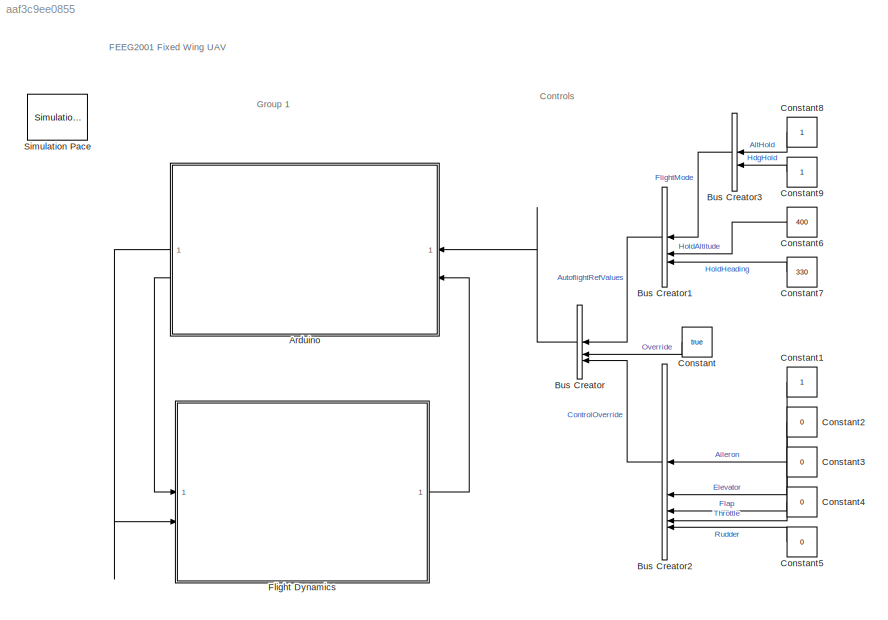
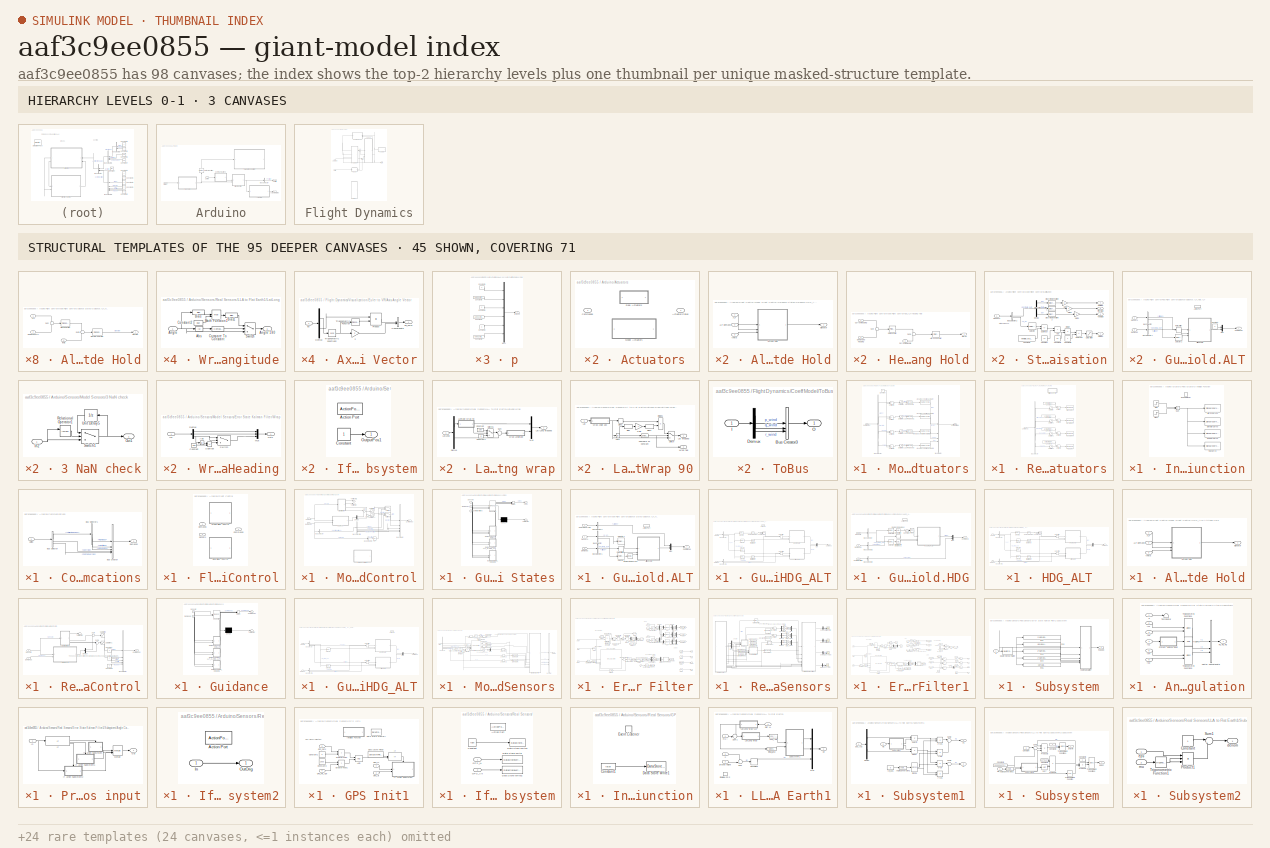
[diagram: thumbnail index - top-2 hierarchy levels (3 canvases) + 45 structural-template representatives of the remaining 95 canvases]
MODEL slx_aaf3c9ee0855
KIND model
CONFIG AbsTol = auto
CONFIG EnableMultiTasking = off
CONFIG FixedStep = auto
CONFIG MaxStep = 0.01
CONFIG MinStep = auto
CONFIG RelTol = 1e-4
CONFIG SampleTimeConstraint = Unconstrained
CONFIG SolverName = FixedStepAuto
CONFIG StartTime = 0
CONFIG StopTime = 300
BLOCK [SubSystem] Arduino
BLOCK [Outport] Arduino/ActuatorStates
  Port = 2
  VectorParamsAs1DForOutWhenUnconnected = off
BLOCK [SubSystem] Arduino/Actuators
  LabelModeActiveChoice = SimType == 0
  Variant = on
  VariantControlMode = label
BLOCK [Outport] Arduino/Actuators/ActuatorStates
  VectorParamsAs1DForOutWhenUnconnected = off
BLOCK [Inport] Arduino/Actuators/Commands
BLOCK [SubSystem] Arduino/Actuators/Model Actuators
  VariantControl = SimType == 0
BLOCK [Outport] Arduino/Actuators/Model Actuators/ActuatorStates
  VectorParamsAs1DForOutWhenUnconnected = off
BLOCK [BusCreator] Arduino/Actuators/Model Actuators/Bus Creator
  DisplayOption = bar
  InheritFromInputs = on
  Inputs = 4
  OutDataTypeStr = Bus: ActuatorStates
BLOCK [BusSelector] Arduino/Actuators/Model Actuators/Bus Selector
  OutputSignals = Aileron,Elevator,Rudder,Flap
BLOCK [DataTypeConversion] Arduino/Actuators/Model Actuators/Cast To Double
  OutDataTypeStr = double
  RndMeth = Floor
  SaturateOnIntegerOverflow = off
BLOCK [DataTypeConversion] Arduino/Actuators/Model Actuators/Cast To Double1
  OutDataTypeStr = double
  RndMeth = Floor
  SaturateOnIntegerOverflow = off
BLOCK [DataTypeConversion] Arduino/Actuators/Model Actuators/Cast To Double2
  OutDataTypeStr = double
  RndMeth = Floor
  SaturateOnIntegerOverflow = off
BLOCK [DataTypeConversion] Arduino/Actuators/Model Actuators/Cast To Double3
  OutDataTypeStr = double
  RndMeth = Floor
  SaturateOnIntegerOverflow = off
BLOCK [Inport] Arduino/Actuators/Model Actuators/Commands
BLOCK [Constant] Arduino/Actuators/Model Actuators/Constant
  Value = 0
BLOCK [Reference] Arduino/Actuators/Model Actuators/Linear Second-Order Actuator  REF=aerolibactuator/Linear Second-Order Actuator
  SourceBlock = aerolibactuator/Linear Second-Order Actuator
  SourceType = LinearSecondOrderActuator
BLOCK [Reference] Arduino/Actuators/Model Actuators/Linear Second-Order Actuator1  REF=aerolibactuator/Linear Second-Order Actuator
  SourceBlock = aerolibactuator/Linear Second-Order Actuator
  SourceType = LinearSecondOrderActuator
BLOCK [Reference] Arduino/Actuators/Model Actuators/Linear Second-Order Actuator2  REF=aerolibactuator/Linear Second-Order Actuator
  SourceBlock = aerolibactuator/Linear Second-Order Actuator
  SourceType = LinearSecondOrderActuator
BLOCK [Reference] Arduino/Actuators/Model Actuators/Linear Second-Order Actuator3  REF=aerolibactuator/Linear Second-Order Actuator
  SourceBlock = aerolibactuator/Linear Second-Order Actuator
  SourceType = LinearSecondOrderActuator
BLOCK [Saturate] Arduino/Actuators/Model Actuators/Saturation
  LowerLimit = deflectionLimits.aileron.min
  UpperLimit = deflectionLimits.aileron.max
BLOCK [Saturate] Arduino/Actuators/Model Actuators/Saturation1
  LowerLimit = deflectionLimits.elevator.min
  UpperLimit = deflectionLimits.elevator.max
BLOCK [Saturate] Arduino/Actuators/Model Actuators/Saturation2
  LowerLimit = deflectionLimits.rudder.min
  UpperLimit = deflectionLimits.rudder.max
BLOCK [Saturate] Arduino/Actuators/Model Actuators/Saturation3
  LowerLimit = deflectionLimits.flap.min
  UpperLimit = deflectionLimits.flap.max
BLOCK [Sum] Arduino/Actuators/Model Actuators/Subtract
  IconShape = rectangular
  Inputs = +-
BLOCK [Sum] Arduino/Actuators/Model Actuators/Subtract1
  IconShape = rectangular
  Inputs = +-
BLOCK [Sum] Arduino/Actuators/Model Actuators/Subtract2
  IconShape = rectangular
  Inputs = +-
BLOCK [Sum] Arduino/Actuators/Model Actuators/Subtract3
  IconShape = rectangular
  Inputs = +-
BLOCK [SubSystem] Arduino/Actuators/Real Actuators
  VariantControl = SimType == 1
BLOCK [Reference] Arduino/Actuators/Real Actuators/Aileron Servos  REF=arduinolib/Standard Servo Write
  SourceBlock = arduinolib/Standard Servo Write
  SourceType = Arduino Standard Servo Write
BLOCK [BusSelector] Arduino/Actuators/Real Actuators/Bus Selector
  OutputSignals = AileronCmd,ElevatorCmd,RudderCmd,FlapCmd
BLOCK [Inport] Arduino/Actuators/Real Actuators/Commands
BLOCK [Constant] Arduino/Actuators/Real Actuators/Constant
  Value = actuatorCentres.aileron.left
BLOCK [Constant] Arduino/Actuators/Real Actuators/Constant1
  Value = actuatorCentres.elevator.left
BLOCK [Constant] Arduino/Actuators/Real Actuators/Constant2
  Value = actuatorCentres.rudder
BLOCK [Constant] Arduino/Actuators/Real Actuators/Constant3
  Value = actuatorCentres.flap.left
BLOCK [Reference] Arduino/Actuators/Real Actuators/Elevator Servo  REF=arduinolib/Standard Servo Write
  SourceBlock = arduinolib/Standard Servo Write
  SourceType = Arduino Standard Servo Write
BLOCK [Reference] Arduino/Actuators/Real Actuators/Flap Servo  REF=arduinolib/Standard Servo Write
  SourceBlock = arduinolib/Standard Servo Write
  SourceType = Arduino Standard Servo Write
BLOCK [SubSystem] Arduino/Actuators/Real Actuators/Initialize Function
  TreatAsAtomicUnit = on
BLOCK [Reference] Arduino/Actuators/Real Actuators/Initialize Function/Aileron Servos  REF=arduinolib/Standard Servo Write
  SourceBlock = arduinolib/Standard Servo Write
  SourceType = Arduino Standard Servo Write
BLOCK [Reference] Arduino/Actuators/Real Actuators/Initialize Function/Elevator Servo  REF=arduinolib/Standard Servo Write
  SourceBlock = arduinolib/Standard Servo Write
  SourceType = Arduino Standard Servo Write
BLOCK [EventListener] Arduino/Actuators/Real Actuators/Initialize Function/Event Listener
  DisableCoverage = on
  EventName = reset
BLOCK [Reference] Arduino/Actuators/Real Actuators/Initialize Function/Flap Servo  REF=arduinolib/Standard Servo Write
  SourceBlock = arduinolib/Standard Servo Write
  SourceType = Arduino Standard Servo Write
BLOCK [Reference] Arduino/Actuators/Real Actuators/Initialize Function/Rudder Servo  REF=arduinolib/Standard Servo Write
  SourceBlock = arduinolib/Standard Servo Write
  SourceType = Arduino Standard Servo Write
BLOCK [Step] Arduino/Actuators/Real Actuators/Initialize Function/Step
  After = 180
  SampleTime = 0
BLOCK [Step] Arduino/Actuators/Real Actuators/Initialize Function/Step1
  After = 180
  SampleTime = 0
  Time = 6
BLOCK [Sum] Arduino/Actuators/Real Actuators/Initialize Function/Sum
  IconShape = rectangular
  Inputs = +-
BLOCK [Reference] Arduino/Actuators/Real Actuators/Rudder Servo  REF=arduinolib/Standard Servo Write
  SourceBlock = arduinolib/Standard Servo Write
  SourceType = Arduino Standard Servo Write
BLOCK [Saturate] Arduino/Actuators/Real Actuators/Saturation
  Commented = through
  LowerLimit = deflectionLimits.aileron.min
  UpperLimit = deflectionLimits.aileron.max
BLOCK [Saturate] Arduino/Actuators/Real Actuators/Saturation1
  Commented = through
  LowerLimit = deflectionLimits.elevator.min
  UpperLimit = deflectionLimits.elevator.max
BLOCK [Saturate] Arduino/Actuators/Real Actuators/Saturation2
  Commented = through
  LowerLimit = deflectionLimits.rudder.min
  UpperLimit = deflectionLimits.rudder.max
BLOCK [Saturate] Arduino/Actuators/Real Actuators/Saturation3
  Commented = through
  LowerLimit = deflectionLimits.flap.min
  UpperLimit = deflectionLimits.flap.max
BLOCK [Sum] Arduino/Actuators/Real Actuators/Subtract
  IconShape = rectangular
  Inputs = -+
BLOCK [Sum] Arduino/Actuators/Real Actuators/Subtract1
  IconShape = rectangular
  Inputs = -+
BLOCK [Sum] Arduino/Actuators/Real Actuators/Subtract2
  IconShape = rectangular
  Inputs = -+
BLOCK [Sum] Arduino/Actuators/Real Actuators/Subtract3
  IconShape = rectangular
  Inputs = -+
BLOCK [BusSelector] Arduino/Bus Selector
  OutputSignals = Throttle
BLOCK [SubSystem] Arduino/Communications
  NameLocation = top
BLOCK [BusCreator] Arduino/Communications/Bus Creator
  DisplayOption = bar
  InheritFromInputs = off
  Inputs = 5
  OutDataTypeStr = Bus: Demands
BLOCK [BusSelector] Arduino/Communications/Bus Selector
  OutputSignals = AutoflightRefValues,Override,ControlOverride
BLOCK [BusSelector] Arduino/Communications/Bus Selector1
  OutputSignals = FlightMode,HoldAltitude,HoldHeading
BLOCK [Outport] Arduino/Communications/Demands
  OutDataTypeStr = Bus: Demands
  VectorParamsAs1DForOutWhenUnconnected = off
BLOCK [Inport] Arduino/Communications/Uplink
  OutDataTypeStr = Bus: Uplink
BLOCK [SubSystem] Arduino/Flight Control
  LabelModeActiveChoice = SimType==0
  Variant = on
  VariantControl = Variant1
  VariantControlMode = label
BLOCK [Outport] Arduino/Flight Control/ Commands
  VectorParamsAs1DForOutWhenUnconnected = off
BLOCK [Inport] Arduino/Flight Control/Demands 
BLOCK [SubSystem] Arduino/Flight Control/Model Flight Control
  NameLocation = top
  VariantControl = SimType==0
BLOCK [BusCreator] Arduino/Flight Control/Model Flight Control/Bus Creator
  DisplayOption = bar
  InheritFromInputs = off
  Inputs = 5
  OutDataTypeStr = Bus: Commands
BLOCK [BusSelector] Arduino/Flight Control/Model Flight Control/Bus Selector
  OutputSignals = ControlOverrides
BLOCK [BusSelector] Arduino/Flight Control/Model Flight Control/Bus Selector2
  OutputSignals = Aileron,Elevator,Flap,Throttle,Rudder
BLOCK [BusSelector] Arduino/Flight Control/Model Flight Control/Bus Selector3
  OutputSignals = Override
BLOCK [Outport] Arduino/Flight Control/Model Flight Control/Commands
  VectorParamsAs1DForOutWhenUnconnected = off
BLOCK [Inport] Arduino/Flight Control/Model Flight Control/Demands
  OutDataTypeStr = Bus: Demands
BLOCK [Demux] Arduino/Flight Control/Model Flight Control/Demux
  Outputs = 2
BLOCK [SubSystem] Arduino/Flight Control/Model Flight Control/Guidance States
  Commented = on
  ErrorFcn = Stateflow.Translate.translate
  PermitHierarchicalResolution = ExplicitOnly
  SFBlockType = Chart
BLOCK [Demux] Arduino/Flight Control/Model Flight Control/Guidance States/ Demux 
  Outputs = 1
BLOCK [Merge] Arduino/Flight Control/Model Flight Control/Guidance States/ Merge 
  Inputs = 4
BLOCK [S-Function] Arduino/Flight Control/Model Flight Control/Guidance States/ SFunction 
  EnableBusSupport = off
  FunctionName = sf_sfun
  PortCounts = [3 2]
  SFcnIsStateOwnerBlock = off
  SFunctionDeploymentMode = off
  Tag = Stateflow S-Function 3
BLOCK [Terminator] Arduino/Flight Control/Model Flight Control/Guidance States/ Terminator 
BLOCK [Outport] Arduino/Flight Control/Model Flight Control/Guidance States/Cmds
  VectorParamsAs1DForOutWhenUnconnected = off
BLOCK [Inport] Arduino/Flight Control/Model Flight Control/Guidance States/ControlOverrides
  Port = 3
BLOCK [Inport] Arduino/Flight Control/Model Flight Control/Guidance States/Demands
  Port = 2
BLOCK [SubSystem] Arduino/Flight Control/Model Flight Control/Guidance States/Guidance.ALT_Hold.ALT
  PreDeleteFcn = Stateflow.SLINSF.SimulinkMan.removePreDeleteFcn
  UndoDeleteFcn = Stateflow.SLINSF.SimulinkMan.restorePreDeleteFcn
BLOCK [ActionPort] Arduino/Flight Control/Model Flight Control/Guidance States/Guidance.ALT_Hold.ALT/Action Port
  CopyFcn = Stateflow.SLINSF.SimulinkMan.removeBlockPreDeleteFcn
  PreDeleteFcn = Stateflow.SLINSF.SimulinkMan.unsafePredeleteFcn
BLOCK [SubSystem] Arduino/Flight Control/Model Flight Control/Guidance States/Guidance.ALT_Hold.ALT/Altitude Hold
BLOCK [Inport] Arduino/Flight Control/Model Flight Control/Guidance States/Guidance.ALT_Hold.ALT/Altitude Hold/ALT
BLOCK [Inport] Arduino/Flight Control/Model Flight Control/Guidance States/Guidance.ALT_Hold.ALT/Altitude Hold/Demanded ALT
  Port = 2
BLOCK [Outport] Arduino/Flight Control/Model Flight Control/Guidance States/Guidance.ALT_Hold.ALT/Altitude Hold/Elevator
  VectorParamsAs1DForOutWhenUnconnected = off
BLOCK [Reference] Arduino/Flight Control/Model Flight Control/Guidance States/Guidance.ALT_Hold.ALT/Altitude Hold/Elevator Controller  REF=slpidlib/PID Controller
  SourceBlock = slpidlib/PID Controller
  SourceType = PID 1dof
BLOCK [Reference] Arduino/Flight Control/Model Flight Control/Guidance States/Guidance.ALT_Hold.ALT/Altitude Hold/Pitch Controller  REF=slpidlib/PID Controller
  SourceBlock = slpidlib/PID Controller
  SourceType = PID 1dof
BLOCK [Sum] Arduino/Flight Control/Model Flight Control/Guidance States/Guidance.ALT_Hold.ALT/Altitude Hold/Sum
  Inputs = +-
BLOCK [Sum] Arduino/Flight Control/Model Flight Control/Guidance States/Guidance.ALT_Hold.ALT/Altitude Hold/Sum1
  Inputs = +-
BLOCK [Inport] Arduino/Flight Control/Model Flight Control/Guidance States/Guidance.ALT_Hold.ALT/Altitude Hold/theta
  Port = 3
BLOCK [BusSelector] Arduino/Flight Control/Model Flight Control/Guidance States/Guidance.ALT_Hold.ALT/Bus Selector
  OutputSignals = X_e,phi_theta_psi
BLOCK [BusSelector] Arduino/Flight Control/Model Flight Control/Guidance States/Guidance.ALT_Hold.ALT/Bus Selector1
  OutputSignals = Altitude
BLOCK [BusSelector] Arduino/Flight Control/Model Flight Control/Guidance States/Guidance.ALT_Hold.ALT/Bus Selector2
  OutputSignals = Aileron
BLOCK [Outport] Arduino/Flight Control/Model Flight Control/Guidance States/Guidance.ALT_Hold.ALT/Commands
  OutDataTypeStr = single
  PortDimensions = 2
  SampleTime = sensorSampleTime
  SignalType = real
  VarSizeSig = No
  VectorParamsAs1DForOutWhenUnconnected = off
BLOCK [Inport] Arduino/Flight Control/Model Flight Control/Guidance States/Guidance.ALT_Hold.ALT/Control Override
  OutDataTypeStr = Bus: ControlOverrides
  Port = 3
BLOCK [Inport] Arduino/Flight Control/Model Flight Control/Guidance States/Guidance.ALT_Hold.ALT/Demands
  OutDataTypeStr = Bus: Demands
  Port = 2
BLOCK [Mux] Arduino/Flight Control/Model Flight Control/Guidance States/Guidance.ALT_Hold.ALT/Mux
  DisplayOption = bar
  Inputs = 2
BLOCK [Reference] Arduino/Flight Control/Model Flight Control/Guidance States/Guidance.ALT_Hold.ALT/Radians to Degrees  REF=simulink_extras/Transformations/Radians
to Degrees
  SourceBlock = simulink_extras/Transformations/Radians\nto Degrees
  SourceType = RadiansToDegrees
BLOCK [RateLimiter] Arduino/Flight Control/Model Flight Control/Guidance States/Guidance.ALT_Hold.ALT/Rate Limiter
  SampleTimeMode = inherited
BLOCK [Selector] Arduino/Flight Control/Model Flight Control/Guidance States/Guidance.ALT_Hold.ALT/Selector1
  IndexMode = Zero-based
  IndexOptions = Index vector (dialog)
  Indices = [2]
  InputPortWidth = 3
  OutputSizes = 1
BLOCK [Selector] Arduino/Flight Control/Model Flight Control/Guidance States/Guidance.ALT_Hold.ALT/Selector2
  IndexMode = Zero-based
  IndexOptions = Index vector (dialog)
  Indices = [1]
  InputPortWidth = 3
  OutputSizes = 1
BLOCK [Inport] Arduino/Flight Control/Model Flight Control/Guidance States/Guidance.ALT_Hold.ALT/Sensors
  OutDataTypeStr = Bus: Sensors
BLOCK [SubSystem] Arduino/Flight Control/Model Flight Control/Guidance States/Guidance.HDG_ALT_Hold.HDG_ALT
  PreDeleteFcn = Stateflow.SLINSF.SimulinkMan.removePreDeleteFcn
  UndoDeleteFcn = Stateflow.SLINSF.SimulinkMan.restorePreDeleteFcn
BLOCK [ActionPort] Arduino/Flight Control/Model Flight Control/Guidance States/Guidance.HDG_ALT_Hold.HDG_ALT/Action Port
  CopyFcn = Stateflow.SLINSF.SimulinkMan.removeBlockPreDeleteFcn
  PreDeleteFcn = Stateflow.SLINSF.SimulinkMan.unsafePredeleteFcn
BLOCK [SubSystem] Arduino/Flight Control/Model Flight Control/Guidance States/Guidance.HDG_ALT_Hold.HDG_ALT/Altitude Hold
  PreDeleteFcn = Stateflow.SLINSF.SimulinkMan.removePreDeleteFcn
  UndoDeleteFcn = Stateflow.SLINSF.SimulinkMan.restorePreDeleteFcn
BLOCK [Inport] Arduino/Flight Control/Model Flight Control/Guidance States/Guidance.HDG_ALT_Hold.HDG_ALT/Altitude Hold/ALT
BLOCK [Inport] Arduino/Flight Control/Model Flight Control/Guidance States/Guidance.HDG_ALT_Hold.HDG_ALT/Altitude Hold/ALT Demand
  Port = 2
BLOCK [SubSystem] Arduino/Flight Control/Model Flight Control/Guidance States/Guidance.HDG_ALT_Hold.HDG_ALT/Altitude Hold/Altitude Hold
BLOCK [Outport] Arduino/Flight Control/Model Flight Control/Guidance States/Guidance.HDG_ALT_Hold.HDG_ALT/Altitude Hold/Altitude Hold/Elevator
  VectorParamsAs1DForOutWhenUnconnected = off
BLOCK [Reference] Arduino/Flight Control/Model Flight Control/Guidance States/Guidance.HDG_ALT_Hold.HDG_ALT/Altitude Hold/Altitude Hold/Elevator Controller  REF=slpidlib/PID Controller
  SourceBlock = slpidlib/PID Controller
  SourceType = PID 1dof
BLOCK [Inport] Arduino/Flight Control/Model Flight Control/Guidance States/Guidance.HDG_ALT_Hold.HDG_ALT/Altitude Hold/Altitude Hold/In1
BLOCK [Inport] Arduino/Flight Control/Model Flight Control/Guidance States/Guidance.HDG_ALT_Hold.HDG_ALT/Altitude Hold/Altitude Hold/In2
  Port = 2
BLOCK [Reference] Arduino/Flight Control/Model Flight Control/Guidance States/Guidance.HDG_ALT_Hold.HDG_ALT/Altitude Hold/Altitude Hold/Pitch Controller  REF=slpidlib/PID Controller
  SourceBlock = slpidlib/PID Controller
  SourceType = PID 1dof
BLOCK [Sum] Arduino/Flight Control/Model Flight Control/Guidance States/Guidance.HDG_ALT_Hold.HDG_ALT/Altitude Hold/Altitude Hold/Sum
  Inputs = +-
BLOCK [Sum] Arduino/Flight Control/Model Flight Control/Guidance States/Guidance.HDG_ALT_Hold.HDG_ALT/Altitude Hold/Altitude Hold/Sum1
  Inputs = +-
BLOCK [Inport] Arduino/Flight Control/Model Flight Control/Guidance States/Guidance.HDG_ALT_Hold.HDG_ALT/Altitude Hold/Altitude Hold/theta
  Port = 3
BLOCK [Outport] Arduino/Flight Control/Model Flight Control/Guidance States/Guidance.HDG_ALT_Hold.HDG_ALT/Altitude Hold/Elevator
  VectorParamsAs1DForOutWhenUnconnected = off
BLOCK [Inport] Arduino/Flight Control/Model Flight Control/Guidance States/Guidance.HDG_ALT_Hold.HDG_ALT/Altitude Hold/theta
  Port = 3
BLOCK [BusSelector] Arduino/Flight Control/Model Flight Control/Guidance States/Guidance.HDG_ALT_Hold.HDG_ALT/Bus Selector
  OutputSignals = phi_theta_psi,X_e
BLOCK [BusSelector] Arduino/Flight Control/Model Flight Control/Guidance States/Guidance.HDG_ALT_Hold.HDG_ALT/Bus Selector1
  OutputSignals = Heading,Altitude
BLOCK [Outport] Arduino/Flight Control/Model Flight Control/Guidance States/Guidance.HDG_ALT_Hold.HDG_ALT/Commands
  OutDataTypeStr = single
  PortDimensions = 2
  SampleTime = sensorSampleTime
  SignalType = real
  VarSizeSig = No
  VectorParamsAs1DForOutWhenUnconnected = off
BLOCK [Constant] Arduino/Flight Control/Model Flight Control/Guidance States/Guidance.HDG_ALT_Hold.HDG_ALT/Constant
  OutDataTypeStr = single
  Value = 360
BLOCK [Inport] Arduino/Flight Control/Model Flight Control/Guidance States/Guidance.HDG_ALT_Hold.HDG_ALT/Demands
  OutDataTypeStr = Bus: Demands
  Port = 2
BLOCK [SubSystem] Arduino/Flight Control/Model Flight Control/Guidance States/Guidance.HDG_ALT_Hold.HDG_ALT/Heading Hold
BLOCK [Outport] Arduino/Flight Control/Model Flight Control/Guidance States/Guidance.HDG_ALT_Hold.HDG_ALT/Heading Hold/Aileron
  VectorParamsAs1DForOutWhenUnconnected = off
BLOCK [Reference] Arduino/Flight Control/Model Flight Control/Guidance States/Guidance.HDG_ALT_Hold.HDG_ALT/Heading Hold/Aileron Controller  REF=slpidlib/PID Controller
  SourceBlock = slpidlib/PID Controller
  SourceType = PID 1dof
BLOCK [Inport] Arduino/Flight Control/Model Flight Control/Guidance States/Guidance.HDG_ALT_Hold.HDG_ALT/Heading Hold/Current Heading
BLOCK [Inport] Arduino/Flight Control/Model Flight Control/Guidance States/Guidance.HDG_ALT_Hold.HDG_ALT/Heading Hold/Current Roll Angle
  Port = 3
BLOCK [Inport] Arduino/Flight Control/Model Flight Control/Guidance States/Guidance.HDG_ALT_Hold.HDG_ALT/Heading Hold/Demanded Heading
  Port = 2
BLOCK [Reference] Arduino/Flight Control/Model Flight Control/Guidance States/Guidance.HDG_ALT_Hold.HDG_ALT/Heading Hold/Roll Controller  REF=slpidlib/PID Controller
  SourceBlock = slpidlib/PID Controller
  SourceType = PID 1dof
BLOCK [Sum] Arduino/Flight Control/Model Flight Control/Guidance States/Guidance.HDG_ALT_Hold.HDG_ALT/Heading Hold/Sum
  Inputs = -+
BLOCK [Sum] Arduino/Flight Control/Model Flight Control/Guidance States/Guidance.HDG_ALT_Hold.HDG_ALT/Heading Hold/Sum1
  Inputs = +-
BLOCK [Math] Arduino/Flight Control/Model Flight Control/Guidance States/Guidance.HDG_ALT_Hold.HDG_ALT/Mod
  Operator = mod
  SignedPower = on
BLOCK [Mux] Arduino/Flight Control/Model Flight Control/Guidance States/Guidance.HDG_ALT_Hold.HDG_ALT/Mux
  DisplayOption = bar
  Inputs = 2
BLOCK [Reference] Arduino/Flight Control/Model Flight Control/Guidance States/Guidance.HDG_ALT_Hold.HDG_ALT/Radians to Degrees  REF=simulink_extras/Transformations/Radians
to Degrees
  SourceBlock = simulink_extras/Transformations/Radians\nto Degrees
  SourceType = RadiansToDegrees
BLOCK [Reference] Arduino/Flight Control/Model Flight Control/Guidance States/Guidance.HDG_ALT_Hold.HDG_ALT/Radians to Degrees1  REF=simulink_extras/Transformations/Radians
to Degrees
  SourceBlock = simulink_extras/Transformations/Radians\nto Degrees
  SourceType = RadiansToDegrees
BLOCK [Reference] Arduino/Flight Control/Model Flight Control/Guidance States/Guidance.HDG_ALT_Hold.HDG_ALT/Radians to Degrees2  REF=simulink_extras/Transformations/Radians
to Degrees
  SourceBlock = simulink_extras/Transformations/Radians\nto Degrees
  SourceType = RadiansToDegrees
BLOCK [RateLimiter] Arduino/Flight Control/Model Flight Control/Guidance States/Guidance.HDG_ALT_Hold.HDG_ALT/Rate Limiter
  SampleTimeMode = inherited
BLOCK [RateLimiter] Arduino/Flight Control/Model Flight Control/Guidance States/Guidance.HDG_ALT_Hold.HDG_ALT/Rate Limiter1
  SampleTimeMode = inherited
BLOCK [Selector] Arduino/Flight Control/Model Flight Control/Guidance States/Guidance.HDG_ALT_Hold.HDG_ALT/Selector
  IndexMode = Zero-based
  IndexOptions = Index vector (dialog)
  Indices = [0]
  InputPortWidth = 3
  OutputSizes = 1
BLOCK [Selector] Arduino/Flight Control/Model Flight Control/Guidance States/Guidance.HDG_ALT_Hold.HDG_ALT/Selector1
  IndexMode = Zero-based
  IndexOptions = Index vector (dialog)
  Indices = [2]
  InputPortWidth = 3
  OutputSizes = 1
BLOCK [Selector] Arduino/Flight Control/Model Flight Control/Guidance States/Guidance.HDG_ALT_Hold.HDG_ALT/Selector2
  IndexMode = Zero-based
  IndexOptions = Index vector (dialog)
  Indices = [1]
  InputPortWidth = 3
  OutputSizes = 1
BLOCK [Selector] Arduino/Flight Control/Model Flight Control/Guidance States/Guidance.HDG_ALT_Hold.HDG_ALT/Selector3
  IndexMode = Zero-based
  IndexOptions = Index vector (dialog)
  Indices = [2]
  InputPortWidth = 3
  OutputSizes = 1
BLOCK [Inport] Arduino/Flight Control/Model Flight Control/Guidance States/Guidance.HDG_ALT_Hold.HDG_ALT/Sensors
  OutDataTypeStr = Bus: Sensors
BLOCK [SubSystem] Arduino/Flight Control/Model Flight Control/Guidance States/Guidance.HDG_Hold.HDG
  PreDeleteFcn = Stateflow.SLINSF.SimulinkMan.removePreDeleteFcn
  UndoDeleteFcn = Stateflow.SLINSF.SimulinkMan.restorePreDeleteFcn
BLOCK [ActionPort] Arduino/Flight Control/Model Flight Control/Guidance States/Guidance.HDG_Hold.HDG/Action Port
  CopyFcn = Stateflow.SLINSF.SimulinkMan.removeBlockPreDeleteFcn
  PreDeleteFcn = Stateflow.SLINSF.SimulinkMan.unsafePredeleteFcn
BLOCK [BusSelector] Arduino/Flight Control/Model Flight Control/Guidance States/Guidance.HDG_Hold.HDG/Bus Selector
  OutputSignals = phi_theta_psi
BLOCK [BusSelector] Arduino/Flight Control/Model Flight Control/Guidance States/Guidance.HDG_Hold.HDG/Bus Selector1
  OutputSignals = Heading
BLOCK [BusSelector] Arduino/Flight Control/Model Flight Control/Guidance States/Guidance.HDG_Hold.HDG/Bus Selector2
  OutputSignals = Elevator
BLOCK [Outport] Arduino/Flight Control/Model Flight Control/Guidance States/Guidance.HDG_Hold.HDG/Command
  OutDataTypeStr = single
  PortDimensions = 2
  SampleTime = sensorSampleTime
  SignalType = real
  VarSizeSig = No
  VectorParamsAs1DForOutWhenUnconnected = off
BLOCK [Constant] Arduino/Flight Control/Model Flight Control/Guidance States/Guidance.HDG_Hold.HDG/Constant
  OutDataTypeStr = single
  Value = 360
BLOCK [Inport] Arduino/Flight Control/Model Flight Control/Guidance States/Guidance.HDG_Hold.HDG/Control Override
  OutDataTypeStr = Bus: ControlOverrides
  Port = 3
BLOCK [Inport] Arduino/Flight Control/Model Flight Control/Guidance States/Guidance.HDG_Hold.HDG/Demands
  OutDataTypeStr = Bus: Demands
  Port = 2
BLOCK [SubSystem] Arduino/Flight Control/Model Flight Control/Guidance States/Guidance.HDG_Hold.HDG/Heading Hold
BLOCK [Outport] Arduino/Flight Control/Model Flight Control/Guidance States/Guidance.HDG_Hold.HDG/Heading Hold/Aileron Command
  VectorParamsAs1DForOutWhenUnconnected = off
BLOCK [Inport] Arduino/Flight Control/Model Flight Control/Guidance States/Guidance.HDG_Hold.HDG/Heading Hold/Current Heading
BLOCK [Inport] Arduino/Flight Control/Model Flight Control/Guidance States/Guidance.HDG_Hold.HDG/Heading Hold/Current Roll Angle
  Port = 3
BLOCK [Inport] Arduino/Flight Control/Model Flight Control/Guidance States/Guidance.HDG_Hold.HDG/Heading Hold/Demanded Heading
  Port = 2
BLOCK [Reference] Arduino/Flight Control/Model Flight Control/Guidance States/Guidance.HDG_Hold.HDG/Heading Hold/PID Controller  REF=slpidlib/PID Controller
  SourceBlock = slpidlib/PID Controller
  SourceType = PID 1dof
BLOCK [Reference] Arduino/Flight Control/Model Flight Control/Guidance States/Guidance.HDG_Hold.HDG/Heading Hold/Roll Controller  REF=slpidlib/PID Controller
  SourceBlock = slpidlib/PID Controller
  SourceType = PID 1dof
BLOCK [Sum] Arduino/Flight Control/Model Flight Control/Guidance States/Guidance.HDG_Hold.HDG/Heading Hold/Sum
  Inputs = -+
BLOCK [Sum] Arduino/Flight Control/Model Flight Control/Guidance States/Guidance.HDG_Hold.HDG/Heading Hold/Sum1
  Inputs = +-
BLOCK [Math] Arduino/Flight Control/Model Flight Control/Guidance States/Guidance.HDG_Hold.HDG/Mod
  Operator = mod
  OutputSignalType = real
  SignedPower = on
BLOCK [Mux] Arduino/Flight Control/Model Flight Control/Guidance States/Guidance.HDG_Hold.HDG/Mux
  DisplayOption = bar
  Inputs = 2
BLOCK [Reference] Arduino/Flight Control/Model Flight Control/Guidance States/Guidance.HDG_Hold.HDG/Radians to Degrees  REF=simulink_extras/Transformations/Radians
to Degrees
  SourceBlock = simulink_extras/Transformations/Radians\nto Degrees
  SourceType = RadiansToDegrees
BLOCK [Reference] Arduino/Flight Control/Model Flight Control/Guidance States/Guidance.HDG_Hold.HDG/Radians to Degrees1  REF=simulink_extras/Transformations/Radians
to Degrees
  SourceBlock = simulink_extras/Transformations/Radians\nto Degrees
  SourceType = RadiansToDegrees
BLOCK [RateLimiter] Arduino/Flight Control/Model Flight Control/Guidance States/Guidance.HDG_Hold.HDG/Rate Limiter
  SampleTimeMode = inherited
BLOCK [Selector] Arduino/Flight Control/Model Flight Control/Guidance States/Guidance.HDG_Hold.HDG/Selector
  IndexMode = Zero-based
  IndexOptions = Index vector (dialog)
  Indices = [0]
  InputPortWidth = 3
  OutputSizes = 1
BLOCK [Selector] Arduino/Flight Control/Model Flight Control/Guidance States/Guidance.HDG_Hold.HDG/Selector3
  IndexMode = Zero-based
  IndexOptions = Index vector (dialog)
  Indices = [2]
  InputPortWidth = 3
  OutputSizes = 1
BLOCK [Inport] Arduino/Flight Control/Model Flight Control/Guidance States/Guidance.HDG_Hold.HDG/Sensors
  OutDataTypeStr = Bus: Sensors
BLOCK [Inport] Arduino/Flight Control/Model Flight Control/Guidance States/Sensors
BLOCK [SubSystem] Arduino/Flight Control/Model Flight Control/HDG_ALT
BLOCK [SubSystem] Arduino/Flight Control/Model Flight Control/HDG_ALT/Altitude Hold
  PreDeleteFcn = Stateflow.SLINSF.SimulinkMan.removePreDeleteFcn
  UndoDeleteFcn = Stateflow.SLINSF.SimulinkMan.restorePreDeleteFcn
BLOCK [Inport] Arduino/Flight Control/Model Flight Control/HDG_ALT/Altitude Hold/ALT
BLOCK [Inport] Arduino/Flight Control/Model Flight Control/HDG_ALT/Altitude Hold/ALT Demand
  Port = 2
BLOCK [SubSystem] Arduino/Flight Control/Model Flight Control/HDG_ALT/Altitude Hold/Altitude Hold
BLOCK [Outport] Arduino/Flight Control/Model Flight Control/HDG_ALT/Altitude Hold/Altitude Hold/Elevator
  VectorParamsAs1DForOutWhenUnconnected = off
BLOCK [Reference] Arduino/Flight Control/Model Flight Control/HDG_ALT/Altitude Hold/Altitude Hold/Elevator Controller  REF=slpidlib/PID Controller
  SourceBlock = slpidlib/PID Controller
  SourceType = PID 1dof
BLOCK [Inport] Arduino/Flight Control/Model Flight Control/HDG_ALT/Altitude Hold/Altitude Hold/In1
BLOCK [Inport] Arduino/Flight Control/Model Flight Control/HDG_ALT/Altitude Hold/Altitude Hold/In2
  Port = 2
BLOCK [Reference] Arduino/Flight Control/Model Flight Control/HDG_ALT/Altitude Hold/Altitude Hold/Pitch Controller  REF=slpidlib/PID Controller
  SourceBlock = slpidlib/PID Controller
  SourceType = PID 1dof
BLOCK [Sum] Arduino/Flight Control/Model Flight Control/HDG_ALT/Altitude Hold/Altitude Hold/Sum
  Inputs = +-
BLOCK [Sum] Arduino/Flight Control/Model Flight Control/HDG_ALT/Altitude Hold/Altitude Hold/Sum1
  Inputs = +-
BLOCK [Inport] Arduino/Flight Control/Model Flight Control/HDG_ALT/Altitude Hold/Altitude Hold/theta
  Port = 3
BLOCK [Outport] Arduino/Flight Control/Model Flight Control/HDG_ALT/Altitude Hold/Elevator
  VectorParamsAs1DForOutWhenUnconnected = off
BLOCK [Inport] Arduino/Flight Control/Model Flight Control/HDG_ALT/Altitude Hold/theta
  Port = 3
BLOCK [BusSelector] Arduino/Flight Control/Model Flight Control/HDG_ALT/Bus Selector
  OutputSignals = phi_theta_psi,X_e
BLOCK [BusSelector] Arduino/Flight Control/Model Flight Control/HDG_ALT/Bus Selector1
  OutputSignals = Heading,Altitude
BLOCK [Outport] Arduino/Flight Control/Model Flight Control/HDG_ALT/Commands
  OutDataTypeStr = single
  PortDimensions = 2
  SampleTime = sensorSampleTime
  SignalType = real
  VarSizeSig = No
  VectorParamsAs1DForOutWhenUnconnected = off
BLOCK [Constant] Arduino/Flight Control/Model Flight Control/HDG_ALT/Constant
  OutDataTypeStr = single
  Value = 360
BLOCK [Inport] Arduino/Flight Control/Model Flight Control/HDG_ALT/Demands
  OutDataTypeStr = Bus: Demands
  Port = 2
BLOCK [SubSystem] Arduino/Flight Control/Model Flight Control/HDG_ALT/Heading Hold
BLOCK [Outport] Arduino/Flight Control/Model Flight Control/HDG_ALT/Heading Hold/Aileron
  VectorParamsAs1DForOutWhenUnconnected = off
BLOCK [Reference] Arduino/Flight Control/Model Flight Control/HDG_ALT/Heading Hold/Aileron Controller  REF=slpidlib/PID Controller
  SourceBlock = slpidlib/PID Controller
  SourceType = PID 1dof
BLOCK [Inport] Arduino/Flight Control/Model Flight Control/HDG_ALT/Heading Hold/Current Heading
BLOCK [Inport] Arduino/Flight Control/Model Flight Control/HDG_ALT/Heading Hold/Current Roll Angle
  Port = 3
BLOCK [Inport] Arduino/Flight Control/Model Flight Control/HDG_ALT/Heading Hold/Demanded Heading
  Port = 2
BLOCK [Reference] Arduino/Flight Control/Model Flight Control/HDG_ALT/Heading Hold/Roll Controller  REF=slpidlib/PID Controller
  SourceBlock = slpidlib/PID Controller
  SourceType = PID 1dof
BLOCK [Sum] Arduino/Flight Control/Model Flight Control/HDG_ALT/Heading Hold/Sum
  Inputs = -+
BLOCK [Sum] Arduino/Flight Control/Model Flight Control/HDG_ALT/Heading Hold/Sum1
  Inputs = +-
BLOCK [Math] Arduino/Flight Control/Model Flight Control/HDG_ALT/Mod
  Operator = mod
  SignedPower = on
BLOCK [Mux] Arduino/Flight Control/Model Flight Control/HDG_ALT/Mux
  DisplayOption = bar
  Inputs = 2
BLOCK [Reference] Arduino/Flight Control/Model Flight Control/HDG_ALT/Radians to Degrees  REF=simulink_extras/Transformations/Radians
to Degrees
  SourceBlock = simulink_extras/Transformations/Radians\nto Degrees
  SourceType = RadiansToDegrees
BLOCK [Reference] Arduino/Flight Control/Model Flight Control/HDG_ALT/Radians to Degrees1  REF=simulink_extras/Transformations/Radians
to Degrees
  SourceBlock = simulink_extras/Transformations/Radians\nto Degrees
  SourceType = RadiansToDegrees
BLOCK [Reference] Arduino/Flight Control/Model Flight Control/HDG_ALT/Radians to Degrees2  REF=simulink_extras/Transformations/Radians
to Degrees
  SourceBlock = simulink_extras/Transformations/Radians\nto Degrees
  SourceType = RadiansToDegrees
BLOCK [RateLimiter] Arduino/Flight Control/Model Flight Control/HDG_ALT/Rate Limiter
  SampleTimeMode = inherited
BLOCK [RateLimiter] Arduino/Flight Control/Model Flight Control/HDG_ALT/Rate Limiter1
  SampleTimeMode = inherited
BLOCK [Selector] Arduino/Flight Control/Model Flight Control/HDG_ALT/Selector
  IndexMode = Zero-based
  IndexOptions = Index vector (dialog)
  Indices = [0]
  InputPortWidth = 3
  OutputSizes = 1
BLOCK [Selector] Arduino/Flight Control/Model Flight Control/HDG_ALT/Selector1
  IndexMode = Zero-based
  IndexOptions = Index vector (dialog)
  Indices = [2]
  InputPortWidth = 3
  OutputSizes = 1
BLOCK [Selector] Arduino/Flight Control/Model Flight Control/HDG_ALT/Selector2
  IndexMode = Zero-based
  IndexOptions = Index vector (dialog)
  Indices = [1]
  InputPortWidth = 3
  OutputSizes = 1
BLOCK [Selector] Arduino/Flight Control/Model Flight Control/HDG_ALT/Selector3
  IndexMode = Zero-based
  IndexOptions = Index vector (dialog)
  Indices = [2]
  InputPortWidth = 3
  OutputSizes = 1
BLOCK [Inport] Arduino/Flight Control/Model Flight Control/HDG_ALT/Sensors
  OutDataTypeStr = Bus: Sensors
BLOCK [Logic] Arduino/Flight Control/Model Flight Control/NOT
  AllPortsSameDT = off
  IconShape = distinctive
  Operator = NOT
  OutDataTypeStr = boolean
BLOCK [Saturate] Arduino/Flight Control/Model Flight Control/Saturation
  LowerLimit = deflectionLimits.aileron.min
  UpperLimit = deflectionLimits.aileron.max
BLOCK [Saturate] Arduino/Flight Control/Model Flight Control/Saturation1
  LowerLimit = deflectionLimits.elevator.min
  UpperLimit = deflectionLimits.elevator.max
BLOCK [Inport] Arduino/Flight Control/Model Flight Control/Sensors
  OutDataTypeStr = Bus: Sensors
  Port = 2
BLOCK [SubSystem] Arduino/Flight Control/Model Flight Control/Stabilisation
BLOCK [Sum] Arduino/Flight Control/Model Flight Control/Stabilisation/Add
  IconShape = rectangular
BLOCK [BusSelector] Arduino/Flight Control/Model Flight Control/Stabilisation/Bus Selector2
  OutputSignals = phi_theta_psi,V_e
BLOCK [Constant] Arduino/Flight Control/Model Flight Control/Stabilisation/Constant
  OutDataTypeStr = single
  Value = 10
BLOCK [Constant] Arduino/Flight Control/Model Flight Control/Stabilisation/Constant1
  OutDataTypeStr = single
  Value = vehicle.stallSpeed
BLOCK [Constant] Arduino/Flight Control/Model Flight Control/Stabilisation/Constant2
  OutDataTypeStr = single
  Value = 20
BLOCK [Constant] Arduino/Flight Control/Model Flight Control/Stabilisation/Constant3
  OutDataTypeStr = single
BLOCK [Demux] Arduino/Flight Control/Model Flight Control/Stabilisation/Demux
  Outputs = 3
BLOCK [Reference] Arduino/Flight Control/Model Flight Control/Stabilisation/Discrete Derivative  REF=simulink/Discrete/Discrete Derivative
  SourceBlock = simulink/Discrete/Discrete Derivative
  SourceType = Discrete Derivative
BLOCK [Reference] Arduino/Flight Control/Model Flight Control/Stabilisation/Discrete Derivative1  REF=simulink/Discrete/Discrete Derivative
  SourceBlock = simulink/Discrete/Discrete Derivative
  SourceType = Discrete Derivative
BLOCK [Reference] Arduino/Flight Control/Model Flight Control/Stabilisation/Discrete Derivative2  REF=simulink/Discrete/Discrete Derivative
  SourceBlock = simulink/Discrete/Discrete Derivative
  SourceType = Discrete Derivative
BLOCK [Product] Arduino/Flight Control/Model Flight Control/Stabilisation/Divide
  Inputs = /*
BLOCK [Gain] Arduino/Flight Control/Model Flight Control/Stabilisation/Gain
  Gain = -1
BLOCK [Gain] Arduino/Flight Control/Model Flight Control/Stabilisation/Gain1
  Gain = -1
BLOCK [Gain] Arduino/Flight Control/Model Flight Control/Stabilisation/Gain2
  Gain = -1
BLOCK [Outport] Arduino/Flight Control/Model Flight Control/Stabilisation/Pitch Stab
  Port = 3
  VectorParamsAs1DForOutWhenUnconnected = off
BLOCK [Outport] Arduino/Flight Control/Model Flight Control/Stabilisation/Roll Stab
  Port = 4
  VectorParamsAs1DForOutWhenUnconnected = off
BLOCK [Saturate] Arduino/Flight Control/Model Flight Control/Stabilisation/Saturation
  LowerLimit = 0
  UpperLimit = 1
BLOCK [Selector] Arduino/Flight Control/Model Flight Control/Stabilisation/Selector
  IndexMode = Zero-based
  IndexOptions = Index vector (dialog)
  Indices = [0]
  InputPortWidth = 3
  OutputSizes = 1
BLOCK [Inport] Arduino/Flight Control/Model Flight Control/Stabilisation/Sensors
BLOCK [Outport] Arduino/Flight Control/Model Flight Control/Stabilisation/Stall Stab
  VectorParamsAs1DForOutWhenUnconnected = off
BLOCK [Sum] Arduino/Flight Control/Model Flight Control/Stabilisation/Subtract
  IconShape = rectangular
  Inputs = +-
BLOCK [Sum] Arduino/Flight Control/Model Flight Control/Stabilisation/Subtract1
  IconShape = rectangular
  Inputs = +-
BLOCK [Outport] Arduino/Flight Control/Model Flight Control/Stabilisation/Yaw Stab
  Port = 2
  VectorParamsAs1DForOutWhenUnconnected = off
BLOCK [Sum] Arduino/Flight Control/Model Flight Control/Sum
BLOCK [Sum] Arduino/Flight Control/Model Flight Control/Sum1
BLOCK [Switch] Arduino/Flight Control/Model Flight Control/Switch
  Criteria = u2 ~= 0
  InputSameDT = off
  SaturateOnIntegerOverflow = off
BLOCK [Switch] Arduino/Flight Control/Model Flight Control/Switch1
  Criteria = u2 ~= 0
  InputSameDT = off
  SaturateOnIntegerOverflow = off
BLOCK [Terminator] Arduino/Flight Control/Model Flight Control/Terminator
BLOCK [Terminator] Arduino/Flight Control/Model Flight Control/Terminator1
BLOCK [SubSystem] Arduino/Flight Control/Real Flight Control
  NameLocation = top
  VariantControl = SimType==1
BLOCK [BusCreator] Arduino/Flight Control/Real Flight Control/Bus Creator
  DisplayOption = bar
  InheritFromInputs = off
  Inputs = 5
  OutDataTypeStr = Bus: Commands
BLOCK [Outport] Arduino/Flight Control/Real Flight Control/Commands
  VectorParamsAs1DForOutWhenUnconnected = off
BLOCK [Constant] Arduino/Flight Control/Real Flight Control/Constant
  Value = 0
BLOCK [Constant] Arduino/Flight Control/Real Flight Control/Constant1
  Value = 0
BLOCK [Constant] Arduino/Flight Control/Real Flight Control/Constant2
  Value = 0
BLOCK [Inport] Arduino/Flight Control/Real Flight Control/Demands
  OutDataTypeStr = Bus: Demands
BLOCK [Demux] Arduino/Flight Control/Real Flight Control/Demux
  Outputs = 2
BLOCK [SubSystem] Arduino/Flight Control/Real Flight Control/Guidance
  ErrorFcn = Stateflow.Translate.translate
  PermitHierarchicalResolution = ExplicitOnly
  SFBlockType = Chart
  TreatAsAtomicUnit = on
BLOCK [Demux] Arduino/Flight Control/Real Flight Control/Guidance/ Demux 
  Outputs = 1
BLOCK [Merge] Arduino/Flight Control/Real Flight Control/Guidance/ Merge 
  Inputs = 4
BLOCK [S-Function] Arduino/Flight Control/Real Flight Control/Guidance/ SFunction 
  EnableBusSupport = off
  FunctionName = sf_sfun
  PortCounts = [2 2]
  SFcnIsStateOwnerBlock = off
  SFunctionDeploymentMode = off
  Tag = Stateflow S-Function 1
BLOCK [Terminator] Arduino/Flight Control/Real Flight Control/Guidance/ Terminator 
BLOCK [Outport] Arduino/Flight Control/Real Flight Control/Guidance/Commands
  VectorParamsAs1DForOutWhenUnconnected = off
BLOCK [Inport] Arduino/Flight Control/Real Flight Control/Guidance/Demands
  Port = 2
BLOCK [SubSystem] Arduino/Flight Control/Real Flight Control/Guidance/Guidance.ALT_Hold.ALT
  PreDeleteFcn = Stateflow.SLINSF.SimulinkMan.removePreDeleteFcn
  UndoDeleteFcn = Stateflow.SLINSF.SimulinkMan.restorePreDeleteFcn
BLOCK [ActionPort] Arduino/Flight Control/Real Flight Control/Guidance/Guidance.ALT_Hold.ALT/Action Port
  CopyFcn = Stateflow.SLINSF.SimulinkMan.removeBlockPreDeleteFcn
  PreDeleteFcn = Stateflow.SLINSF.SimulinkMan.unsafePredeleteFcn
BLOCK [SubSystem] Arduino/Flight Control/Real Flight Control/Guidance/Guidance.ALT_Hold.ALT/Altitude Hold
BLOCK [Inport] Arduino/Flight Control/Real Flight Control/Guidance/Guidance.ALT_Hold.ALT/Altitude Hold/ALT
BLOCK [Inport] Arduino/Flight Control/Real Flight Control/Guidance/Guidance.ALT_Hold.ALT/Altitude Hold/Demanded ALT
  Port = 2
BLOCK [Outport] Arduino/Flight Control/Real Flight Control/Guidance/Guidance.ALT_Hold.ALT/Altitude Hold/Elevator
  VectorParamsAs1DForOutWhenUnconnected = off
BLOCK [Reference] Arduino/Flight Control/Real Flight Control/Guidance/Guidance.ALT_Hold.ALT/Altitude Hold/Elevator Controller  REF=slpidlib/PID Controller
  SourceBlock = slpidlib/PID Controller
  SourceType = PID 1dof
BLOCK [Reference] Arduino/Flight Control/Real Flight Control/Guidance/Guidance.ALT_Hold.ALT/Altitude Hold/Pitch Controller  REF=slpidlib/PID Controller
  SourceBlock = slpidlib/PID Controller
  SourceType = PID 1dof
BLOCK [Sum] Arduino/Flight Control/Real Flight Control/Guidance/Guidance.ALT_Hold.ALT/Altitude Hold/Sum
  Inputs = +-
BLOCK [Sum] Arduino/Flight Control/Real Flight Control/Guidance/Guidance.ALT_Hold.ALT/Altitude Hold/Sum1
  Inputs = +-
BLOCK [Inport] Arduino/Flight Control/Real Flight Control/Guidance/Guidance.ALT_Hold.ALT/Altitude Hold/theta
  Port = 3
BLOCK [BusSelector] Arduino/Flight Control/Real Flight Control/Guidance/Guidance.ALT_Hold.ALT/Bus Selector
  OutputSignals = Altitude,phi_theta_psi
BLOCK [BusSelector] Arduino/Flight Control/Real Flight Control/Guidance/Guidance.ALT_Hold.ALT/Bus Selector1
  OutputSignals = Altitude
BLOCK [Outport] Arduino/Flight Control/Real Flight Control/Guidance/Guidance.ALT_Hold.ALT/Commands
  VectorParamsAs1DForOutWhenUnconnected = off
BLOCK [Constant] Arduino/Flight Control/Real Flight Control/Guidance/Guidance.ALT_Hold.ALT/Constant
  Value = 0
BLOCK [Inport] Arduino/Flight Control/Real Flight Control/Guidance/Guidance.ALT_Hold.ALT/Demands
  OutDataTypeStr = Bus: Demands
  Port = 2
BLOCK [Mux] Arduino/Flight Control/Real Flight Control/Guidance/Guidance.ALT_Hold.ALT/Mux
  DisplayOption = bar
  Inputs = 2
BLOCK [RateLimiter] Arduino/Flight Control/Real Flight Control/Guidance/Guidance.ALT_Hold.ALT/Rate Limiter
  SampleTimeMode = inherited
BLOCK [Selector] Arduino/Flight Control/Real Flight Control/Guidance/Guidance.ALT_Hold.ALT/Selector2
  IndexMode = Zero-based
  IndexOptions = Index vector (dialog)
  Indices = [1]
  InputPortWidth = 3
  OutputSizes = 1
BLOCK [Inport] Arduino/Flight Control/Real Flight Control/Guidance/Guidance.ALT_Hold.ALT/Sensors
  OutDataTypeStr = Bus: Sensors
BLOCK [SubSystem] Arduino/Flight Control/Real Flight Control/Guidance/Guidance.HDG_ALT_Hold.HDG_ALT
  PreDeleteFcn = Stateflow.SLINSF.SimulinkMan.removePreDeleteFcn
  UndoDeleteFcn = Stateflow.SLINSF.SimulinkMan.restorePreDeleteFcn
BLOCK [ActionPort] Arduino/Flight Control/Real Flight Control/Guidance/Guidance.HDG_ALT_Hold.HDG_ALT/Action Port
  CopyFcn = Stateflow.SLINSF.SimulinkMan.removeBlockPreDeleteFcn
  PreDeleteFcn = Stateflow.SLINSF.SimulinkMan.unsafePredeleteFcn
BLOCK [SubSystem] Arduino/Flight Control/Real Flight Control/Guidance/Guidance.HDG_ALT_Hold.HDG_ALT/Altitude Hold
  PreDeleteFcn = Stateflow.SLINSF.SimulinkMan.removePreDeleteFcn
  UndoDeleteFcn = Stateflow.SLINSF.SimulinkMan.restorePreDeleteFcn
BLOCK [Inport] Arduino/Flight Control/Real Flight Control/Guidance/Guidance.HDG_ALT_Hold.HDG_ALT/Altitude Hold/ALT
BLOCK [Inport] Arduino/Flight Control/Real Flight Control/Guidance/Guidance.HDG_ALT_Hold.HDG_ALT/Altitude Hold/ALT Demand
  Port = 2
BLOCK [SubSystem] Arduino/Flight Control/Real Flight Control/Guidance/Guidance.HDG_ALT_Hold.HDG_ALT/Altitude Hold/Altitude Hold
BLOCK [Outport] Arduino/Flight Control/Real Flight Control/Guidance/Guidance.HDG_ALT_Hold.HDG_ALT/Altitude Hold/Altitude Hold/Elevator
  VectorParamsAs1DForOutWhenUnconnected = off
BLOCK [Reference] Arduino/Flight Control/Real Flight Control/Guidance/Guidance.HDG_ALT_Hold.HDG_ALT/Altitude Hold/Altitude Hold/Elevator Controller  REF=slpidlib/PID Controller
  SourceBlock = slpidlib/PID Controller
  SourceType = PID 1dof
BLOCK [Inport] Arduino/Flight Control/Real Flight Control/Guidance/Guidance.HDG_ALT_Hold.HDG_ALT/Altitude Hold/Altitude Hold/In1
BLOCK [Inport] Arduino/Flight Control/Real Flight Control/Guidance/Guidance.HDG_ALT_Hold.HDG_ALT/Altitude Hold/Altitude Hold/In2
  Port = 2
BLOCK [Reference] Arduino/Flight Control/Real Flight Control/Guidance/Guidance.HDG_ALT_Hold.HDG_ALT/Altitude Hold/Altitude Hold/Pitch Controller  REF=slpidlib/PID Controller
  SourceBlock = slpidlib/PID Controller
  SourceType = PID 1dof
BLOCK [Sum] Arduino/Flight Control/Real Flight Control/Guidance/Guidance.HDG_ALT_Hold.HDG_ALT/Altitude Hold/Altitude Hold/Sum
  Inputs = +-
BLOCK [Sum] Arduino/Flight Control/Real Flight Control/Guidance/Guidance.HDG_ALT_Hold.HDG_ALT/Altitude Hold/Altitude Hold/Sum1
  Inputs = +-
BLOCK [Inport] Arduino/Flight Control/Real Flight Control/Guidance/Guidance.HDG_ALT_Hold.HDG_ALT/Altitude Hold/Altitude Hold/theta
  Port = 3
BLOCK [Outport] Arduino/Flight Control/Real Flight Control/Guidance/Guidance.HDG_ALT_Hold.HDG_ALT/Altitude Hold/Elevator
  VectorParamsAs1DForOutWhenUnconnected = off
BLOCK [Inport] Arduino/Flight Control/Real Flight Control/Guidance/Guidance.HDG_ALT_Hold.HDG_ALT/Altitude Hold/theta
  Port = 3
BLOCK [BusSelector] Arduino/Flight Control/Real Flight Control/Guidance/Guidance.HDG_ALT_Hold.HDG_ALT/Bus Selector
  OutputSignals = Heading,phi_theta_psi,Altitude
BLOCK [BusSelector] Arduino/Flight Control/Real Flight Control/Guidance/Guidance.HDG_ALT_Hold.HDG_ALT/Bus Selector1
  OutputSignals = Heading,Altitude
BLOCK [Outport] Arduino/Flight Control/Real Flight Control/Guidance/Guidance.HDG_ALT_Hold.HDG_ALT/Commands
  VectorParamsAs1DForOutWhenUnconnected = off
BLOCK [Inport] Arduino/Flight Control/Real Flight Control/Guidance/Guidance.HDG_ALT_Hold.HDG_ALT/Demands
  OutDataTypeStr = Bus: Demands
  Port = 2
BLOCK [SubSystem] Arduino/Flight Control/Real Flight Control/Guidance/Guidance.HDG_ALT_Hold.HDG_ALT/Heading Hold
BLOCK [Outport] Arduino/Flight Control/Real Flight Control/Guidance/Guidance.HDG_ALT_Hold.HDG_ALT/Heading Hold/Aileron
  VectorParamsAs1DForOutWhenUnconnected = off
BLOCK [Reference] Arduino/Flight Control/Real Flight Control/Guidance/Guidance.HDG_ALT_Hold.HDG_ALT/Heading Hold/Aileron Controller  REF=slpidlib/PID Controller
  SourceBlock = slpidlib/PID Controller
  SourceType = PID 1dof
BLOCK [Inport] Arduino/Flight Control/Real Flight Control/Guidance/Guidance.HDG_ALT_Hold.HDG_ALT/Heading Hold/Current Heading
BLOCK [Inport] Arduino/Flight Control/Real Flight Control/Guidance/Guidance.HDG_ALT_Hold.HDG_ALT/Heading Hold/Current Roll Angle
  Port = 3
BLOCK [Inport] Arduino/Flight Control/Real Flight Control/Guidance/Guidance.HDG_ALT_Hold.HDG_ALT/Heading Hold/Demanded Heading
  Port = 2
BLOCK [Reference] Arduino/Flight Control/Real Flight Control/Guidance/Guidance.HDG_ALT_Hold.HDG_ALT/Heading Hold/Roll Controller  REF=slpidlib/PID Controller
  SourceBlock = slpidlib/PID Controller
  SourceType = PID 1dof
BLOCK [Sum] Arduino/Flight Control/Real Flight Control/Guidance/Guidance.HDG_ALT_Hold.HDG_ALT/Heading Hold/Sum
  Inputs = -+
BLOCK [Sum] Arduino/Flight Control/Real Flight Control/Guidance/Guidance.HDG_ALT_Hold.HDG_ALT/Heading Hold/Sum1
  Inputs = +-
BLOCK [Mux] Arduino/Flight Control/Real Flight Control/Guidance/Guidance.HDG_ALT_Hold.HDG_ALT/Mux
  DisplayOption = bar
  Inputs = 2
BLOCK [RateLimiter] Arduino/Flight Control/Real Flight Control/Guidance/Guidance.HDG_ALT_Hold.HDG_ALT/Rate Limiter
  SampleTimeMode = inherited
BLOCK [RateLimiter] Arduino/Flight Control/Real Flight Control/Guidance/Guidance.HDG_ALT_Hold.HDG_ALT/Rate Limiter1
  SampleTimeMode = inherited
BLOCK [Selector] Arduino/Flight Control/Real Flight Control/Guidance/Guidance.HDG_ALT_Hold.HDG_ALT/Selector
  IndexMode = Zero-based
  IndexOptions = Index vector (dialog)
  Indices = [0]
  InputPortWidth = 3
  OutputSizes = 1
BLOCK [Selector] Arduino/Flight Control/Real Flight Control/Guidance/Guidance.HDG_ALT_Hold.HDG_ALT/Selector2
  IndexMode = Zero-based
  IndexOptions = Index vector (dialog)
  Indices = [1]
  InputPortWidth = 3
  OutputSizes = 1
BLOCK [Inport] Arduino/Flight Control/Real Flight Control/Guidance/Guidance.HDG_ALT_Hold.HDG_ALT/Sensors
  OutDataTypeStr = Bus: Sensors
BLOCK [SubSystem] Arduino/Flight Control/Real Flight Control/Guidance/Guidance.HDG_Hold.HDG
  PreDeleteFcn = Stateflow.SLINSF.SimulinkMan.removePreDeleteFcn
  UndoDeleteFcn = Stateflow.SLINSF.SimulinkMan.restorePreDeleteFcn
BLOCK [ActionPort] Arduino/Flight Control/Real Flight Control/Guidance/Guidance.HDG_Hold.HDG/Action Port
  CopyFcn = Stateflow.SLINSF.SimulinkMan.removeBlockPreDeleteFcn
  PreDeleteFcn = Stateflow.SLINSF.SimulinkMan.unsafePredeleteFcn
BLOCK [BusSelector] Arduino/Flight Control/Real Flight Control/Guidance/Guidance.HDG_Hold.HDG/Bus Selector
  OutputSignals = Heading,phi_theta_psi
BLOCK [BusSelector] Arduino/Flight Control/Real Flight Control/Guidance/Guidance.HDG_Hold.HDG/Bus Selector1
  OutputSignals = Heading
BLOCK [Outport] Arduino/Flight Control/Real Flight Control/Guidance/Guidance.HDG_Hold.HDG/Command
  VectorParamsAs1DForOutWhenUnconnected = off
BLOCK [Constant] Arduino/Flight Control/Real Flight Control/Guidance/Guidance.HDG_Hold.HDG/Constant
  Value = 0
BLOCK [Inport] Arduino/Flight Control/Real Flight Control/Guidance/Guidance.HDG_Hold.HDG/Demands
  OutDataTypeStr = Bus: Demands
  Port = 2
BLOCK [SubSystem] Arduino/Flight Control/Real Flight Control/Guidance/Guidance.HDG_Hold.HDG/Heading Hold
BLOCK [Outport] Arduino/Flight Control/Real Flight Control/Guidance/Guidance.HDG_Hold.HDG/Heading Hold/Aileron Command
  VectorParamsAs1DForOutWhenUnconnected = off
BLOCK [Reference] Arduino/Flight Control/Real Flight Control/Guidance/Guidance.HDG_Hold.HDG/Heading Hold/Aileron Controller  REF=slpidlib/PID Controller
  SourceBlock = slpidlib/PID Controller
  SourceType = PID 1dof
BLOCK [Inport] Arduino/Flight Control/Real Flight Control/Guidance/Guidance.HDG_Hold.HDG/Heading Hold/Current Heading
BLOCK [Inport] Arduino/Flight Control/Real Flight Control/Guidance/Guidance.HDG_Hold.HDG/Heading Hold/Current Roll Angle
  Port = 3
BLOCK [Inport] Arduino/Flight Control/Real Flight Control/Guidance/Guidance.HDG_Hold.HDG/Heading Hold/Demanded Heading
  Port = 2
BLOCK [Reference] Arduino/Flight Control/Real Flight Control/Guidance/Guidance.HDG_Hold.HDG/Heading Hold/Roll Controller  REF=slpidlib/PID Controller
  SourceBlock = slpidlib/PID Controller
  SourceType = PID 1dof
BLOCK [Sum] Arduino/Flight Control/Real Flight Control/Guidance/Guidance.HDG_Hold.HDG/Heading Hold/Sum
  Inputs = -+
BLOCK [Sum] Arduino/Flight Control/Real Flight Control/Guidance/Guidance.HDG_Hold.HDG/Heading Hold/Sum1
  Inputs = +-
BLOCK [Mux] Arduino/Flight Control/Real Flight Control/Guidance/Guidance.HDG_Hold.HDG/Mux
  DisplayOption = bar
  Inputs = 2
BLOCK [RateLimiter] Arduino/Flight Control/Real Flight Control/Guidance/Guidance.HDG_Hold.HDG/Rate Limiter
  SampleTimeMode = inherited
BLOCK [Selector] Arduino/Flight Control/Real Flight Control/Guidance/Guidance.HDG_Hold.HDG/Selector
  IndexMode = Zero-based
  IndexOptions = Index vector (dialog)
  Indices = [0]
  InputPortWidth = 3
  OutputSizes = 1
BLOCK [Inport] Arduino/Flight Control/Real Flight Control/Guidance/Guidance.HDG_Hold.HDG/Sensors
  OutDataTypeStr = Bus: Sensors
BLOCK [Inport] Arduino/Flight Control/Real Flight Control/Guidance/Sensors
BLOCK [Saturate] Arduino/Flight Control/Real Flight Control/Saturation
  LowerLimit = deflectionLimits.aileron.min
  UpperLimit = deflectionLimits.aileron.max
BLOCK [Saturate] Arduino/Flight Control/Real Flight Control/Saturation1
  LowerLimit = deflectionLimits.elevator.min
  UpperLimit = deflectionLimits.elevator.max
BLOCK [Inport] Arduino/Flight Control/Real Flight Control/Sensors
  OutDataTypeStr = Bus: Sensors
  Port = 2
BLOCK [SubSystem] Arduino/Flight Control/Real Flight Control/Stabilisation
BLOCK [Sum] Arduino/Flight Control/Real Flight Control/Stabilisation/Add
  IconShape = rectangular
BLOCK [BusSelector] Arduino/Flight Control/Real Flight Control/Stabilisation/Bus Selector2
  OutputSignals = phi_theta_psi,V_e
BLOCK [Constant] Arduino/Flight Control/Real Flight Control/Stabilisation/Constant
  OutDataTypeStr = single
  Value = 10
BLOCK [Constant] Arduino/Flight Control/Real Flight Control/Stabilisation/Constant1
  OutDataTypeStr = single
  Value = vehicle.stallSpeed
BLOCK [Constant] Arduino/Flight Control/Real Flight Control/Stabilisation/Constant2
  OutDataTypeStr = single
  Value = 20
BLOCK [Constant] Arduino/Flight Control/Real Flight Control/Stabilisation/Constant3
  OutDataTypeStr = single
BLOCK [Demux] Arduino/Flight Control/Real Flight Control/Stabilisation/Demux
  Outputs = 3
BLOCK [Reference] Arduino/Flight Control/Real Flight Control/Stabilisation/Discrete Derivative  REF=simulink/Discrete/Discrete Derivative
  SourceBlock = simulink/Discrete/Discrete Derivative
  SourceType = Discrete Derivative
BLOCK [Reference] Arduino/Flight Control/Real Flight Control/Stabilisation/Discrete Derivative1  REF=simulink/Discrete/Discrete Derivative
  SourceBlock = simulink/Discrete/Discrete Derivative
  SourceType = Discrete Derivative
BLOCK [Reference] Arduino/Flight Control/Real Flight Control/Stabilisation/Discrete Derivative2  REF=simulink/Discrete/Discrete Derivative
  SourceBlock = simulink/Discrete/Discrete Derivative
  SourceType = Discrete Derivative
BLOCK [Product] Arduino/Flight Control/Real Flight Control/Stabilisation/Divide
  Inputs = /*
BLOCK [Gain] Arduino/Flight Control/Real Flight Control/Stabilisation/Gain
  Gain = -1
BLOCK [Gain] Arduino/Flight Control/Real Flight Control/Stabilisation/Gain1
  Gain = -1
BLOCK [Gain] Arduino/Flight Control/Real Flight Control/Stabilisation/Gain2
  Gain = -1
BLOCK [Outport] Arduino/Flight Control/Real Flight Control/Stabilisation/Pitch Stab
  Port = 3
  VectorParamsAs1DForOutWhenUnconnected = off
BLOCK [Outport] Arduino/Flight Control/Real Flight Control/Stabilisation/Roll Stab
  Port = 2
  VectorParamsAs1DForOutWhenUnconnected = off
BLOCK [Saturate] Arduino/Flight Control/Real Flight Control/Stabilisation/Saturation
  LowerLimit = 0
  UpperLimit = 1
BLOCK [Selector] Arduino/Flight Control/Real Flight Control/Stabilisation/Selector
  IndexMode = Zero-based
  IndexOptions = Index vector (dialog)
  Indices = [0]
  InputPortWidth = 3
  OutputSizes = 1
BLOCK [Inport] Arduino/Flight Control/Real Flight Control/Stabilisation/Sensors
BLOCK [Outport] Arduino/Flight Control/Real Flight Control/Stabilisation/Stall Stab
  Port = 4
  VectorParamsAs1DForOutWhenUnconnected = off
BLOCK [Sum] Arduino/Flight Control/Real Flight Control/Stabilisation/Subtract
  IconShape = rectangular
  Inputs = +-
BLOCK [Sum] Arduino/Flight Control/Real Flight Control/Stabilisation/Subtract1
  IconShape = rectangular
  Inputs = +-
BLOCK [Outport] Arduino/Flight Control/Real Flight Control/Stabilisation/Yaw Stab
  VectorParamsAs1DForOutWhenUnconnected = off
BLOCK [Sum] Arduino/Flight Control/Real Flight Control/Sum
BLOCK [Sum] Arduino/Flight Control/Real Flight Control/Sum1
  Inputs = +++
BLOCK [Terminator] Arduino/Flight Control/Real Flight Control/Terminator
BLOCK [Inport] Arduino/Flight Control/Sensors 
  Port = 2
BLOCK [RateTransition] Arduino/Rate Transition
  NameLocation = right
  OutPortSampleTime = loggingSampleTime
BLOCK [SubSystem] Arduino/Sensors
  LabelModeActiveChoice = SimType==0
  Variant = on
  VariantControl = Variant1
  VariantControlMode = label
BLOCK [Outport] Arduino/Sensors/ Sensors
  OutDataTypeStr = Bus: Sensors
  VectorParamsAs1DForOutWhenUnconnected = off
BLOCK [SubSystem] Arduino/Sensors/Model Sensors
  VariantControl = SimType==0
BLOCK [Outport] Arduino/Sensors/Model Sensors/ Sensors
  VectorParamsAs1DForOutWhenUnconnected = off
BLOCK [SubSystem] Arduino/Sensors/Model Sensors/3 NaN check
  Commented = through
BLOCK [Inport] Arduino/Sensors/Model Sensors/3 NaN check/In2
BLOCK [Outport] Arduino/Sensors/Model Sensors/3 NaN check/Out1
  VectorParamsAs1DForOutWhenUnconnected = off
BLOCK [RelationalOperator] Arduino/Sensors/Model Sensors/3 NaN check/Relational Operator1
  InputSameDT = off
  Operator = isNaN
  OutDataTypeStr = boolean
  RndMeth = Simplest
BLOCK [Switch] Arduino/Sensors/Model Sensors/3 NaN check/Switch1
  Criteria = u2 ~= 0
  InputSameDT = off
  SaturateOnIntegerOverflow = off
BLOCK [UnitDelay] Arduino/Sensors/Model Sensors/3 NaN check/Unit Delay5
  HasFrameUpgradeWarning = on
  InitialCondition = [0; 0; 0]
  SampleTime = -1
BLOCK [Reference] Arduino/Sensors/Model Sensors/Band-Limited White Noise  REF=simulink/Sources/Band-Limited
White Noise
  SourceBlock = simulink/Sources/Band-Limited\nWhite Noise
  SourceType = Band-Limited White Noise.
BLOCK [BusCreator] Arduino/Sensors/Model Sensors/Bus Creator
  DisplayOption = bar
  InheritFromInputs = on
  Inputs = 4
BLOCK [BusSelector] Arduino/Sensors/Model Sensors/Bus Selector
  OutputSignals = X_e,A_be,pqr,omega_dot,phi_theta_psi,V_e
BLOCK [DataTypeConversion] Arduino/Sensors/Model Sensors/Cast To Single
  OutDataTypeStr = single
  RndMeth = Simplest
  SaturateOnIntegerOverflow = off
BLOCK [DataTypeConversion] Arduino/Sensors/Model Sensors/Cast To Single1
  OutDataTypeStr = single
  RndMeth = Floor
  SaturateOnIntegerOverflow = off
BLOCK [DataTypeConversion] Arduino/Sensors/Model Sensors/Cast To Single2
  OutDataTypeStr = single
  RndMeth = Floor
  SaturateOnIntegerOverflow = off
BLOCK [DataTypeConversion] Arduino/Sensors/Model Sensors/Cast To Single3
  OutDataTypeStr = single
  RndMeth = Floor
  SaturateOnIntegerOverflow = off
BLOCK [DataTypeConversion] Arduino/Sensors/Model Sensors/Cast To Single5
  OutDataTypeStr = single
  SaturateOnIntegerOverflow = off
BLOCK [Constant] Arduino/Sensors/Model Sensors/Constant
  Value = [0 0 0]
BLOCK [Constant] Arduino/Sensors/Model Sensors/Constant1
  Value = [0;0;9.81]
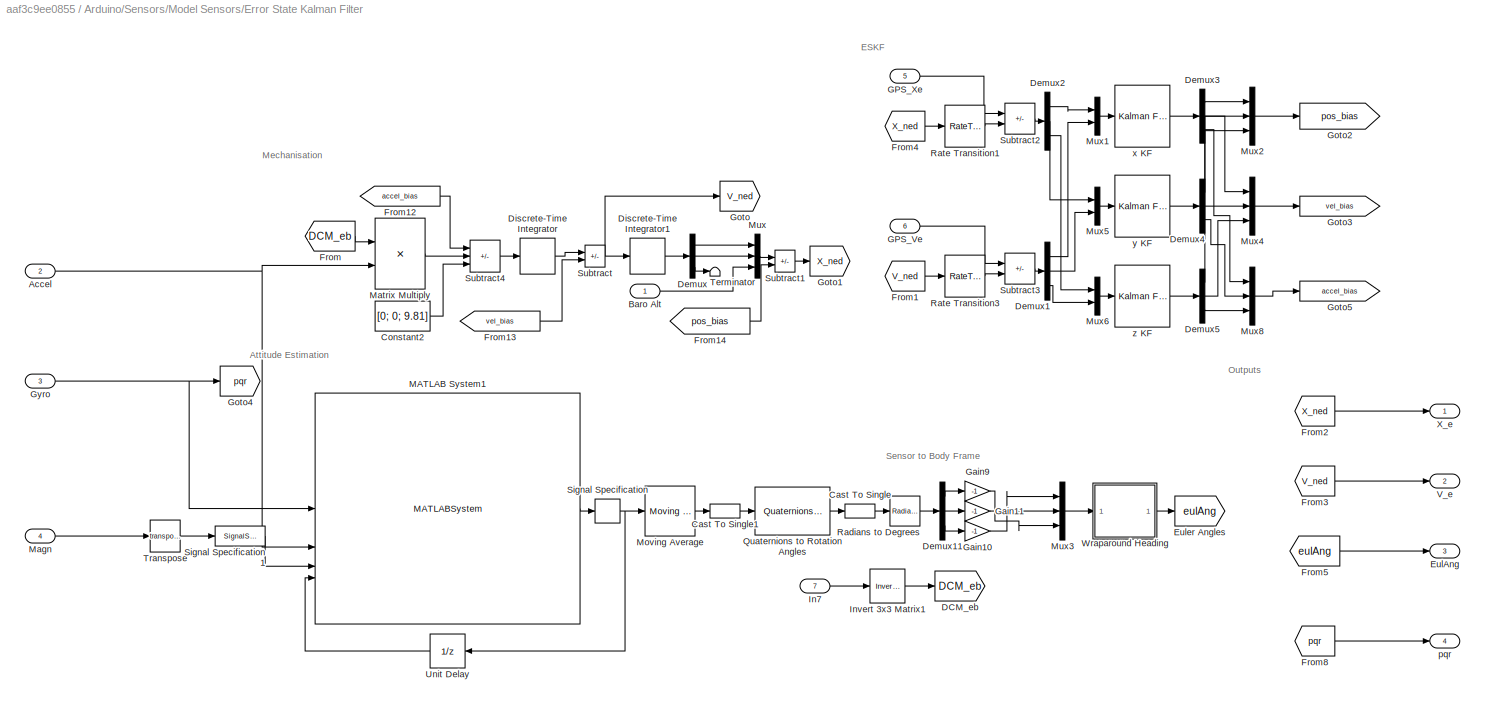
BLOCK [SubSystem] Arduino/Sensors/Model Sensors/Error State Kalman Filter
BLOCK [Inport] Arduino/Sensors/Model Sensors/Error State Kalman Filter/Accel
  Port = 2
BLOCK [Inport] Arduino/Sensors/Model Sensors/Error State Kalman Filter/Baro Alt
BLOCK [DataTypeConversion] Arduino/Sensors/Model Sensors/Error State Kalman Filter/Cast To Single
  OutDataTypeStr = single
  RndMeth = Simplest
  SaturateOnIntegerOverflow = off
BLOCK [DataTypeConversion] Arduino/Sensors/Model Sensors/Error State Kalman Filter/Cast To Single1
  OutDataTypeStr = double
  RndMeth = Simplest
  SaturateOnIntegerOverflow = off
BLOCK [Constant] Arduino/Sensors/Model Sensors/Error State Kalman Filter/Constant2
  OutDataTypeStr = single
  Value = [0; 0; 9.81]
  VectorParams1D = off
BLOCK [Goto] Arduino/Sensors/Model Sensors/Error State Kalman Filter/DCM_eb
  GotoTag = DCM_eb
BLOCK [Demux] Arduino/Sensors/Model Sensors/Error State Kalman Filter/Demux
  Outputs = 3
BLOCK [Demux] Arduino/Sensors/Model Sensors/Error State Kalman Filter/Demux1
  Outputs = 3
BLOCK [Demux] Arduino/Sensors/Model Sensors/Error State Kalman Filter/Demux11
  Outputs = 3
BLOCK [Demux] Arduino/Sensors/Model Sensors/Error State Kalman Filter/Demux2
  Outputs = 3
BLOCK [Demux] Arduino/Sensors/Model Sensors/Error State Kalman Filter/Demux3
  Outputs = 3
BLOCK [Demux] Arduino/Sensors/Model Sensors/Error State Kalman Filter/Demux4
  Outputs = 3
BLOCK [Demux] Arduino/Sensors/Model Sensors/Error State Kalman Filter/Demux5
  Outputs = 3
BLOCK [DiscreteIntegrator] Arduino/Sensors/Model Sensors/Error State Kalman Filter/Discrete-Time Integrator
  ICPrevOutput = DiscIntNeverNeededParam
  ICPrevScaledInput = DiscIntNeverNeededParam
  InitialConditionSetting = Auto
  SampleTime = -1
  gainval = 1
BLOCK [DiscreteIntegrator] Arduino/Sensors/Model Sensors/Error State Kalman Filter/Discrete-Time Integrator1
  ICPrevOutput = DiscIntNeverNeededParam
  ICPrevScaledInput = DiscIntNeverNeededParam
  InitialConditionSetting = Auto
  OutDataTypeStr = single
  SampleTime = -1
  gainval = 1
BLOCK [Outport] Arduino/Sensors/Model Sensors/Error State Kalman Filter/EulAng
  Port = 3
  VectorParamsAs1DForOutWhenUnconnected = off
BLOCK [Goto] Arduino/Sensors/Model Sensors/Error State Kalman Filter/Euler Angles
  GotoTag = eulAng
BLOCK [From] Arduino/Sensors/Model Sensors/Error State Kalman Filter/From
  GotoTag = DCM_eb
BLOCK [From] Arduino/Sensors/Model Sensors/Error State Kalman Filter/From1
  GotoTag = V_ned
BLOCK [From] Arduino/Sensors/Model Sensors/Error State Kalman Filter/From12
  GotoTag = accel_bias
BLOCK [From] Arduino/Sensors/Model Sensors/Error State Kalman Filter/From13
  GotoTag = vel_bias
BLOCK [From] Arduino/Sensors/Model Sensors/Error State Kalman Filter/From14
  GotoTag = pos_bias
BLOCK [From] Arduino/Sensors/Model Sensors/Error State Kalman Filter/From2
  GotoTag = X_ned
BLOCK [From] Arduino/Sensors/Model Sensors/Error State Kalman Filter/From3
  GotoTag = V_ned
BLOCK [From] Arduino/Sensors/Model Sensors/Error State Kalman Filter/From4
  GotoTag = X_ned
BLOCK [From] Arduino/Sensors/Model Sensors/Error State Kalman Filter/From5
  GotoTag = eulAng
BLOCK [From] Arduino/Sensors/Model Sensors/Error State Kalman Filter/From8
  GotoTag = pqr
BLOCK [Inport] Arduino/Sensors/Model Sensors/Error State Kalman Filter/GPS_Ve
  Port = 6
  VarSizeSig = No
BLOCK [Inport] Arduino/Sensors/Model Sensors/Error State Kalman Filter/GPS_Xe
  Port = 5
  VarSizeSig = No
BLOCK [Gain] Arduino/Sensors/Model Sensors/Error State Kalman Filter/Gain10
  Commented = through
  Gain = -1
BLOCK [Gain] Arduino/Sensors/Model Sensors/Error State Kalman Filter/Gain11
  Gain = -1
BLOCK [Gain] Arduino/Sensors/Model Sensors/Error State Kalman Filter/Gain9
  Gain = -1
BLOCK [Goto] Arduino/Sensors/Model Sensors/Error State Kalman Filter/Goto
  GotoTag = V_ned
BLOCK [Goto] Arduino/Sensors/Model Sensors/Error State Kalman Filter/Goto1
  GotoTag = X_ned
BLOCK [Goto] Arduino/Sensors/Model Sensors/Error State Kalman Filter/Goto2
  GotoTag = pos_bias
BLOCK [Goto] Arduino/Sensors/Model Sensors/Error State Kalman Filter/Goto3
  GotoTag = vel_bias
BLOCK [Goto] Arduino/Sensors/Model Sensors/Error State Kalman Filter/Goto4
  GotoTag = pqr
BLOCK [Goto] Arduino/Sensors/Model Sensors/Error State Kalman Filter/Goto5
  GotoTag = accel_bias
BLOCK [Inport] Arduino/Sensors/Model Sensors/Error State Kalman Filter/Gyro
  Port = 3
BLOCK [Inport] Arduino/Sensors/Model Sensors/Error State Kalman Filter/In7
  Port = 7
BLOCK [Reference] Arduino/Sensors/Model Sensors/Error State Kalman Filter/Invert 3x3 Matrix1  REF=aerolibutil/Invert 
3x3 Matrix
  SourceBlock = aerolibutil/Invert \n3x3 Matrix
  SourceType = Invert 3x3 Matrix
BLOCK [MATLABSystem] Arduino/Sensors/Model Sensors/Error State Kalman Filter/MATLAB System1
  Beta = 5
  MaskDisplay = disp('MadgwickAHRSFilter');\nport_label('input',1,'Gyroscope');\nport_label('input',2,'Accelerometer');\nport_label('input',3,'Magnetometer');\nport_label('input',4,'q');\nport_label('output',1,'quat');
  MaskType = MadgwickAHRSFilter
  SamplePeriod = sensorSampleTime
  SimulateUsing = Code generation
  System = MadgwickAHRSFilter
BLOCK [Inport] Arduino/Sensors/Model Sensors/Error State Kalman Filter/Magn
  Port = 4
BLOCK [Product] Arduino/Sensors/Model Sensors/Error State Kalman Filter/Matrix Multiply
  Multiplication = Matrix(*)
  OutDataTypeStr = single
  RndMeth = Simplest
BLOCK [Reference] Arduino/Sensors/Model Sensors/Error State Kalman Filter/Moving Average  REF=dspstat3/Moving
Average
  SourceBlock = dspstat3/Moving\nAverage
  SourceType = dsp.simulink.MovingAverage
BLOCK [Mux] Arduino/Sensors/Model Sensors/Error State Kalman Filter/Mux
  DisplayOption = bar
  Inputs = 3
BLOCK [Mux] Arduino/Sensors/Model Sensors/Error State Kalman Filter/Mux1
  DisplayOption = bar
  Inputs = 2
BLOCK [Mux] Arduino/Sensors/Model Sensors/Error State Kalman Filter/Mux2
  DisplayOption = bar
  Inputs = 3
BLOCK [Mux] Arduino/Sensors/Model Sensors/Error State Kalman Filter/Mux3
  DisplayOption = bar
  Inputs = 3
BLOCK [Mux] Arduino/Sensors/Model Sensors/Error State Kalman Filter/Mux4
  DisplayOption = bar
  Inputs = 3
BLOCK [Mux] Arduino/Sensors/Model Sensors/Error State Kalman Filter/Mux5
  DisplayOption = bar
  Inputs = 2
BLOCK [Mux] Arduino/Sensors/Model Sensors/Error State Kalman Filter/Mux6
  DisplayOption = bar
  Inputs = 2
BLOCK [Mux] Arduino/Sensors/Model Sensors/Error State Kalman Filter/Mux8
  DisplayOption = bar
  Inputs = 3
BLOCK [Reference] Arduino/Sensors/Model Sensors/Error State Kalman Filter/Quaternions to Rotation Angles  REF=sharedtransform/Quaternions to Rotation Angles
  AttributesFormatString = Rotation Order: %<rotationOrder>
  SourceBlock = sharedtransform/Quaternions to Rotation Angles
  SourceType = Quat2Ang
BLOCK [Reference] Arduino/Sensors/Model Sensors/Error State Kalman Filter/Radians to Degrees  REF=simulink_extras/Transformations/Radians
to Degrees
  SourceBlock = simulink_extras/Transformations/Radians\nto Degrees
  SourceType = RadiansToDegrees
BLOCK [RateTransition] Arduino/Sensors/Model Sensors/Error State Kalman Filter/Rate Transition1
  OutPortSampleTime = 1
BLOCK [RateTransition] Arduino/Sensors/Model Sensors/Error State Kalman Filter/Rate Transition3
  OutPortSampleTime = 1
BLOCK [SignalSpecification] Arduino/Sensors/Model Sensors/Error State Kalman Filter/Signal Specification
  Dimensions = [1 4]
  VarSizeSig = No
BLOCK [SignalSpecification] Arduino/Sensors/Model Sensors/Error State Kalman Filter/Signal Specification1
  Dimensions = [1 3]
  OutDataTypeStr = single
  VarSizeSig = No
BLOCK [Sum] Arduino/Sensors/Model Sensors/Error State Kalman Filter/Subtract
  IconShape = rectangular
  Inputs = +-
BLOCK [Sum] Arduino/Sensors/Model Sensors/Error State Kalman Filter/Subtract1
  IconShape = rectangular
  Inputs = +-
BLOCK [Sum] Arduino/Sensors/Model Sensors/Error State Kalman Filter/Subtract2
  AccumDataTypeStr = single
  IconShape = rectangular
  Inputs = -+
  OutDataTypeStr = single
  RndMeth = Simplest
BLOCK [Sum] Arduino/Sensors/Model Sensors/Error State Kalman Filter/Subtract3
  AccumDataTypeStr = single
  IconShape = rectangular
  Inputs = -+
  OutDataTypeStr = single
  RndMeth = Simplest
BLOCK [Sum] Arduino/Sensors/Model Sensors/Error State Kalman Filter/Subtract4
  AccumDataTypeStr = single
  IconShape = rectangular
  Inputs = -+-
BLOCK [Terminator] Arduino/Sensors/Model Sensors/Error State Kalman Filter/Terminator
BLOCK [Math] Arduino/Sensors/Model Sensors/Error State Kalman Filter/Transpose
  Operator = transpose
  SignedPower = on
BLOCK [UnitDelay] Arduino/Sensors/Model Sensors/Error State Kalman Filter/Unit Delay
  HasFrameUpgradeWarning = on
  InitialCondition = [1 0 0 0]
  SampleTime = sensorSampleTime
BLOCK [Outport] Arduino/Sensors/Model Sensors/Error State Kalman Filter/V_e
  Port = 2
  VectorParamsAs1DForOutWhenUnconnected = off
BLOCK [SubSystem] Arduino/Sensors/Model Sensors/Error State Kalman Filter/Wraparound Heading
BLOCK [Abs] Arduino/Sensors/Model Sensors/Error State Kalman Filter/Wraparound Heading/Abs
  SaturateOnIntegerOverflow = off
BLOCK [Constant] Arduino/Sensors/Model Sensors/Error State Kalman Filter/Wraparound Heading/Constant
  Value = 360
BLOCK [Demux] Arduino/Sensors/Model Sensors/Error State Kalman Filter/Wraparound Heading/Demux
  Outputs = 3
BLOCK [Inport] Arduino/Sensors/Model Sensors/Error State Kalman Filter/Wraparound Heading/In1
BLOCK [Mux] Arduino/Sensors/Model Sensors/Error State Kalman Filter/Wraparound Heading/Mux
  DisplayOption = bar
  Inputs = 3
BLOCK [Outport] Arduino/Sensors/Model Sensors/Error State Kalman Filter/Wraparound Heading/Out1
  VectorParamsAs1DForOutWhenUnconnected = off
BLOCK [Sum] Arduino/Sensors/Model Sensors/Error State Kalman Filter/Wraparound Heading/Subtract
  IconShape = rectangular
  Inputs = -+
BLOCK [Switch] Arduino/Sensors/Model Sensors/Error State Kalman Filter/Wraparound Heading/Switch
  Criteria = u2 > Threshold
  InputSameDT = off
  OutDataTypeStr = single
  SaturateOnIntegerOverflow = off
BLOCK [Outport] Arduino/Sensors/Model Sensors/Error State Kalman Filter/X_e
  VectorParamsAs1DForOutWhenUnconnected = off
BLOCK [Outport] Arduino/Sensors/Model Sensors/Error State Kalman Filter/pqr
  Port = 4
  VectorParamsAs1DForOutWhenUnconnected = off
BLOCK [Reference] Arduino/Sensors/Model Sensors/Error State Kalman Filter/x KF  REF=ctrlSharedLib/Kalman Filter
  SourceBlock = ctrlSharedLib/Kalman Filter
  SourceType = ctrlKalmanFilter
BLOCK [Reference] Arduino/Sensors/Model Sensors/Error State Kalman Filter/y KF  REF=ctrlSharedLib/Kalman Filter
  SourceBlock = ctrlSharedLib/Kalman Filter
  SourceType = ctrlKalmanFilter
BLOCK [Reference] Arduino/Sensors/Model Sensors/Error State Kalman Filter/z KF  REF=ctrlSharedLib/Kalman Filter
  SourceBlock = ctrlSharedLib/Kalman Filter
  SourceType = ctrlKalmanFilter
BLOCK [Product] Arduino/Sensors/Model Sensors/Matrix Multiply
  Multiplication = Matrix(*)
BLOCK [Mux] Arduino/Sensors/Model Sensors/Mux1
  DisplayOption = bar
  Inputs = 3
BLOCK [Constant] Arduino/Sensors/Model Sensors/NaN
  OutDataTypeStr = Inherit: Inherit via back propagation
  Value = NaN
BLOCK [Reference] Arduino/Sensors/Model Sensors/Rotation Angles to Direction Cosine Matrix  REF=sharedtransform/Rotation Angles to
Direction Cosine Matrix
  AttributesFormatString = Rotation Order: %<rotationOrder>
  SourceBlock = sharedtransform/Rotation Angles to\nDirection Cosine Matrix
  SourceType = Ang2DCM
BLOCK [Selector] Arduino/Sensors/Model Sensors/Selector
  IndexMode = Zero-based
  IndexOptions = Index vector (dialog)
  Indices = [2]
  InputPortWidth = 3
  OutputSizes = 1
BLOCK [Inport] Arduino/Sensors/Model Sensors/States
BLOCK [Sum] Arduino/Sensors/Model Sensors/Sum
  Inputs = |++
BLOCK [Reference] Arduino/Sensors/Model Sensors/Three-axis Inertial Measurement Unit  REF=aerolibnav/Three-axis Inertial
Measurement Unit
  SourceBlock = aerolibnav/Three-axis Inertial\nMeasurement Unit
  SourceType = Three-axis Inertial Measurement Unit
BLOCK [ZeroOrderHold] Arduino/Sensors/Model Sensors/Zero-Order Hold
  SampleTime = sensorSampleTime
BLOCK [ZeroOrderHold] Arduino/Sensors/Model Sensors/Zero-Order Hold1
  SampleTime = sensorSampleTime
BLOCK [ZeroOrderHold] Arduino/Sensors/Model Sensors/Zero-Order Hold2
  SampleTime = sensorSampleTime
BLOCK [ZeroOrderHold] Arduino/Sensors/Model Sensors/Zero-Order Hold3
  SampleTime = sensorSampleTime
BLOCK [ZeroOrderHold] Arduino/Sensors/Model Sensors/Zero-Order Hold4
BLOCK [ZeroOrderHold] Arduino/Sensors/Model Sensors/Zero-Order Hold5
BLOCK [SubSystem] Arduino/Sensors/Real Sensors
  VariantControl = SimType==1
BLOCK [SubSystem] Arduino/Sensors/Real Sensors/3 NaN check1
BLOCK [Inport] Arduino/Sensors/Real Sensors/3 NaN check1/In2
BLOCK [Outport] Arduino/Sensors/Real Sensors/3 NaN check1/Out1
  VectorParamsAs1DForOutWhenUnconnected = off
BLOCK [RelationalOperator] Arduino/Sensors/Real Sensors/3 NaN check1/Relational Operator1
  InputSameDT = off
  Operator = isNaN
  OutDataTypeStr = boolean
  RndMeth = Simplest
BLOCK [Switch] Arduino/Sensors/Real Sensors/3 NaN check1/Switch1
  Criteria = u2 ~= 0
  InputSameDT = off
  SaturateOnIntegerOverflow = off
BLOCK [UnitDelay] Arduino/Sensors/Real Sensors/3 NaN check1/Unit Delay5
  HasFrameUpgradeWarning = on
  InitialCondition = [0; 0; 0]
  SampleTime = -1
BLOCK [Scope] Arduino/Sensors/Real Sensors/Body Angles
  Floating = off
  NumInputPorts = 3
  ScopeSpecificationString = Simulink.scopes.TimeScopeBlockCfg('CurrentConfiguration', extmgr.ConfigurationSet(extmgr.Configuration('Core','General UI',true),extmgr.Configuration('Core','Source UI',true),extmgr.Configuration('Sources','WiredSimulink',true,'DataLoggingVariableName','ScopeData1'),extmgr.Configuration('Visuals','Time Domain',true,'SerializedDisplays',{struct('MinYLimReal','-60.39943','MaxYLimReal','406.57107','Y...<+1490ch>
BLOCK [Scope] Arduino/Sensors/Real Sensors/Body Rates
  Floating = off
  NumInputPorts = 3
  ScopeSpecificationString = Simulink.scopes.TimeScopeBlockCfg('CurrentConfiguration', extmgr.ConfigurationSet(extmgr.Configuration('Core','General UI',true),extmgr.Configuration('Core','Source UI',true),extmgr.Configuration('Sources','WiredSimulink',true,'DataLoggingVariableName','ScopeData2'),extmgr.Configuration('Visuals','Time Domain',true,'SerializedDisplays',{struct('MinYLimReal','-0.02334','MaxYLimReal','0.44704','YLab...<+1481ch>
BLOCK [DataTypeConversion] Arduino/Sensors/Real Sensors/Cast To Single1
  OutDataTypeStr = single
  RndMeth = Floor
  SaturateOnIntegerOverflow = off
BLOCK [Constant] Arduino/Sensors/Real Sensors/Constant
  Value = [0.8; 2.232e-1; 0.12]
  VectorParams1D = off
BLOCK [Constant] Arduino/Sensors/Real Sensors/Constant1
  Value = [0.0237; -0.4; -0.1]
  VectorParams1D = off
BLOCK [DataStoreMemory] Arduino/Sensors/Real Sensors/Data Store Memory
  DataStoreName = GPS_ref_height
  OutDataTypeStr = single
  ReadBeforeWriteMsg = warning
  ShowAdditionalParam = off
  SignalType = real
  WriteAfterReadMsg = warning
  WriteAfterWriteMsg = warning
BLOCK [DataStoreMemory] Arduino/Sensors/Real Sensors/Data Store Memory3
  DataStoreName = GPS_Init_LL
  InitialValue = [0 0]
  OutDataTypeStr = single
  ReadBeforeWriteMsg = warning
  ShowAdditionalParam = off
  WriteAfterReadMsg = warning
  WriteAfterWriteMsg = warning
BLOCK [DataStoreRead] Arduino/Sensors/Real Sensors/Data Store Read2
  DataStoreElements = GPS_ref_height
  DataStoreName = GPS_ref_height
  IndexOptions = Index vector (dialog)
  Indices = 1
  OutputSizes = 1
BLOCK [DataStoreRead] Arduino/Sensors/Real Sensors/Data Store Read3
  DataStoreName = GPS_Init_LL
  IndexOptions = Index vector (dialog)
  Indices = 1
  OutputSizes = 1
BLOCK [Demux] Arduino/Sensors/Real Sensors/Demux1
  Outputs = 3
BLOCK [Demux] Arduino/Sensors/Real Sensors/Demux2
  Outputs = 3
BLOCK [Demux] Arduino/Sensors/Real Sensors/Demux3
  Outputs = 3
BLOCK [Demux] Arduino/Sensors/Real Sensors/Demux5
  Outputs = 3
BLOCK [Demux] Arduino/Sensors/Real Sensors/Demux6
  Outputs = 3
BLOCK [Demux] Arduino/Sensors/Real Sensors/Demux7
  Outputs = 3
BLOCK [Demux] Arduino/Sensors/Real Sensors/Demux8
  Outputs = 3
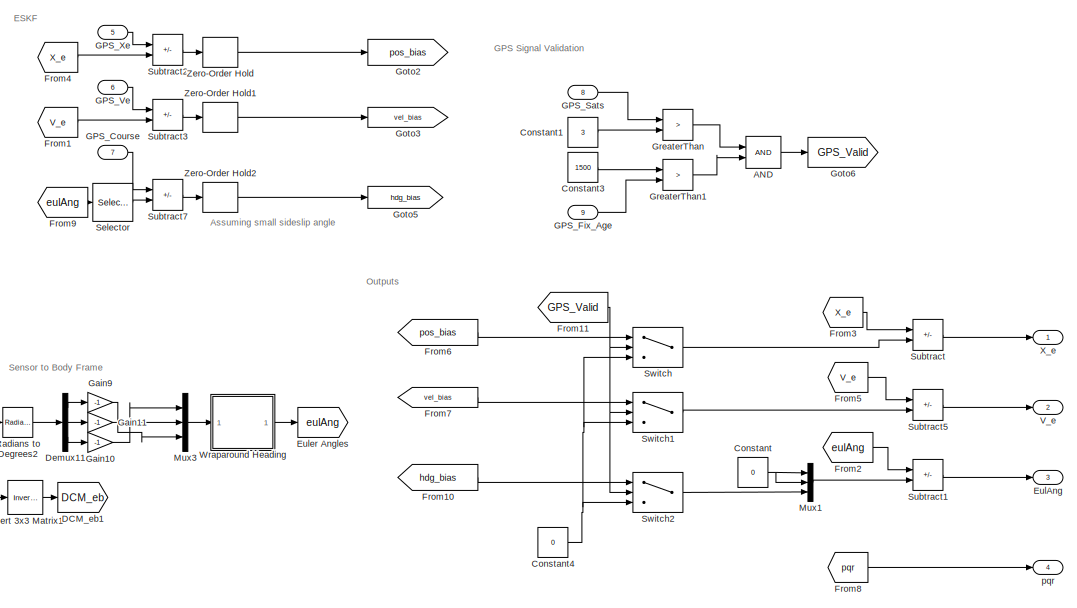
[diagram: Arduino/Sensors/Real Sensors/Error State Kalman Filter1 - part 1/2, right side, full height]
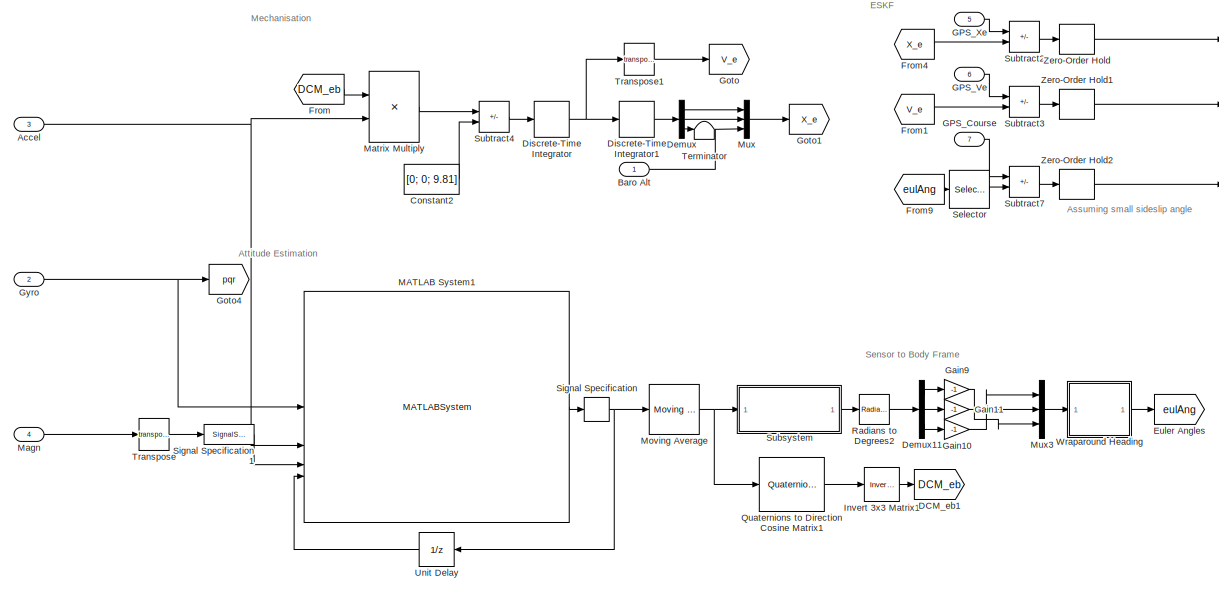
[diagram: Arduino/Sensors/Real Sensors/Error State Kalman Filter1 - part 2/2, left side, full height]
BLOCK [SubSystem] Arduino/Sensors/Real Sensors/Error State Kalman Filter1
BLOCK [Logic] Arduino/Sensors/Real Sensors/Error State Kalman Filter1/AND
  AllPortsSameDT = off
  IconShape = distinctive
  OutDataTypeStr = boolean
BLOCK [Inport] Arduino/Sensors/Real Sensors/Error State Kalman Filter1/Accel
  Port = 3
BLOCK [Inport] Arduino/Sensors/Real Sensors/Error State Kalman Filter1/Baro Alt
BLOCK [Constant] Arduino/Sensors/Real Sensors/Error State Kalman Filter1/Constant
  Value = 0
BLOCK [Constant] Arduino/Sensors/Real Sensors/Error State Kalman Filter1/Constant1
  Value = 3
BLOCK [Constant] Arduino/Sensors/Real Sensors/Error State Kalman Filter1/Constant2
  OutDataTypeStr = single
  Value = [0; 0; 9.81]
  VectorParams1D = off
BLOCK [Constant] Arduino/Sensors/Real Sensors/Error State Kalman Filter1/Constant3
  Value = 1500
BLOCK [Constant] Arduino/Sensors/Real Sensors/Error State Kalman Filter1/Constant4
  Value = 0
BLOCK [Goto] Arduino/Sensors/Real Sensors/Error State Kalman Filter1/DCM_eb1
  GotoTag = DCM_eb
BLOCK [Demux] Arduino/Sensors/Real Sensors/Error State Kalman Filter1/Demux
  Outputs = 3
BLOCK [Demux] Arduino/Sensors/Real Sensors/Error State Kalman Filter1/Demux11
  Outputs = 3
BLOCK [DiscreteIntegrator] Arduino/Sensors/Real Sensors/Error State Kalman Filter1/Discrete-Time Integrator
  ICPrevOutput = DiscIntNeverNeededParam
  ICPrevScaledInput = DiscIntNeverNeededParam
  InitialConditionSetting = Auto
  LimitOutput = on
  LowerSaturationLimit = -500
  RndMeth = Simplest
  SampleTime = -1
  UpperSaturationLimit = 500
BLOCK [DiscreteIntegrator] Arduino/Sensors/Real Sensors/Error State Kalman Filter1/Discrete-Time Integrator1
  ICPrevOutput = DiscIntNeverNeededParam
  ICPrevScaledInput = DiscIntNeverNeededParam
  InitialConditionSetting = Auto
  LimitOutput = on
  LowerSaturationLimit = -500
  RndMeth = Simplest
  SampleTime = -1
  UpperSaturationLimit = 500
BLOCK [Outport] Arduino/Sensors/Real Sensors/Error State Kalman Filter1/EulAng
  Port = 3
  VectorParamsAs1DForOutWhenUnconnected = off
BLOCK [Goto] Arduino/Sensors/Real Sensors/Error State Kalman Filter1/Euler Angles
  GotoTag = eulAng
BLOCK [From] Arduino/Sensors/Real Sensors/Error State Kalman Filter1/From
  GotoTag = DCM_eb
BLOCK [From] Arduino/Sensors/Real Sensors/Error State Kalman Filter1/From1
  GotoTag = V_e
BLOCK [From] Arduino/Sensors/Real Sensors/Error State Kalman Filter1/From10
  GotoTag = hdg_bias
BLOCK [From] Arduino/Sensors/Real Sensors/Error State Kalman Filter1/From11
  GotoTag = GPS_Valid
BLOCK [From] Arduino/Sensors/Real Sensors/Error State Kalman Filter1/From2
  GotoTag = eulAng
BLOCK [From] Arduino/Sensors/Real Sensors/Error State Kalman Filter1/From3
  GotoTag = X_e
BLOCK [From] Arduino/Sensors/Real Sensors/Error State Kalman Filter1/From4
  GotoTag = X_e
BLOCK [From] Arduino/Sensors/Real Sensors/Error State Kalman Filter1/From5
  GotoTag = V_e
BLOCK [From] Arduino/Sensors/Real Sensors/Error State Kalman Filter1/From6
  GotoTag = pos_bias
BLOCK [From] Arduino/Sensors/Real Sensors/Error State Kalman Filter1/From7
  GotoTag = vel_bias
BLOCK [From] Arduino/Sensors/Real Sensors/Error State Kalman Filter1/From8
  GotoTag = pqr
BLOCK [From] Arduino/Sensors/Real Sensors/Error State Kalman Filter1/From9
  GotoTag = eulAng
BLOCK [Inport] Arduino/Sensors/Real Sensors/Error State Kalman Filter1/GPS_Course
  OutDataTypeStr = single
  Port = 7
  VarSizeSig = No
BLOCK [Inport] Arduino/Sensors/Real Sensors/Error State Kalman Filter1/GPS_Fix_Age
  Port = 9
BLOCK [Inport] Arduino/Sensors/Real Sensors/Error State Kalman Filter1/GPS_Sats
  Port = 8
BLOCK [Inport] Arduino/Sensors/Real Sensors/Error State Kalman Filter1/GPS_Ve
  OutDataTypeStr = single
  Port = 6
  VarSizeSig = No
BLOCK [Inport] Arduino/Sensors/Real Sensors/Error State Kalman Filter1/GPS_Xe
  OutDataTypeStr = single
  Port = 5
  VarSizeSig = No
BLOCK [Gain] Arduino/Sensors/Real Sensors/Error State Kalman Filter1/Gain10
  Commented = through
  Gain = -1
BLOCK [Gain] Arduino/Sensors/Real Sensors/Error State Kalman Filter1/Gain11
  Gain = -1
BLOCK [Gain] Arduino/Sensors/Real Sensors/Error State Kalman Filter1/Gain9
  Gain = -1
BLOCK [Goto] Arduino/Sensors/Real Sensors/Error State Kalman Filter1/Goto
  GotoTag = V_e
BLOCK [Goto] Arduino/Sensors/Real Sensors/Error State Kalman Filter1/Goto1
  GotoTag = X_e
BLOCK [Goto] Arduino/Sensors/Real Sensors/Error State Kalman Filter1/Goto2
  GotoTag = pos_bias
BLOCK [Goto] Arduino/Sensors/Real Sensors/Error State Kalman Filter1/Goto3
  GotoTag = vel_bias
BLOCK [Goto] Arduino/Sensors/Real Sensors/Error State Kalman Filter1/Goto4
  GotoTag = pqr
BLOCK [Goto] Arduino/Sensors/Real Sensors/Error State Kalman Filter1/Goto5
  GotoTag = hdg_bias
BLOCK [Goto] Arduino/Sensors/Real Sensors/Error State Kalman Filter1/Goto6
  GotoTag = GPS_Valid
BLOCK [RelationalOperator] Arduino/Sensors/Real Sensors/Error State Kalman Filter1/GreaterThan
  InputSameDT = off
  Operator = >
  OutDataTypeStr = boolean
  RndMeth = Simplest
BLOCK [RelationalOperator] Arduino/Sensors/Real Sensors/Error State Kalman Filter1/GreaterThan1
  InputSameDT = off
  Operator = >
  OutDataTypeStr = boolean
  RndMeth = Simplest
BLOCK [Inport] Arduino/Sensors/Real Sensors/Error State Kalman Filter1/Gyro
  Port = 2
BLOCK [Reference] Arduino/Sensors/Real Sensors/Error State Kalman Filter1/Invert 3x3 Matrix1  REF=aerolibutil/Invert 
3x3 Matrix
  SourceBlock = aerolibutil/Invert \n3x3 Matrix
  SourceType = Invert 3x3 Matrix
BLOCK [MATLABSystem] Arduino/Sensors/Real Sensors/Error State Kalman Filter1/MATLAB System1
  Beta = 5
  MaskDisplay = disp('MadgwickAHRSFilter');\nport_label('input',1,'Gyroscope');\nport_label('input',2,'Accelerometer');\nport_label('input',3,'Magnetometer');\nport_label('input',4,'q');\nport_label('output',1,'quat');
  MaskType = MadgwickAHRSFilter
  SamplePeriod = sensorSampleTime
  SimulateUsing = Code generation
  System = MadgwickAHRSFilter
BLOCK [Inport] Arduino/Sensors/Real Sensors/Error State Kalman Filter1/Magn
  Port = 4
BLOCK [Product] Arduino/Sensors/Real Sensors/Error State Kalman Filter1/Matrix Multiply
  Multiplication = Matrix(*)
BLOCK [Reference] Arduino/Sensors/Real Sensors/Error State Kalman Filter1/Moving Average  REF=dspstat3/Moving
Average
  SourceBlock = dspstat3/Moving\nAverage
  SourceType = dsp.simulink.MovingAverage
BLOCK [Mux] Arduino/Sensors/Real Sensors/Error State Kalman Filter1/Mux
  DisplayOption = bar
  Inputs = 3
BLOCK [Mux] Arduino/Sensors/Real Sensors/Error State Kalman Filter1/Mux1
  DisplayOption = bar
  Inputs = 3
BLOCK [Mux] Arduino/Sensors/Real Sensors/Error State Kalman Filter1/Mux3
  DisplayOption = bar
  Inputs = 3
BLOCK [Reference] Arduino/Sensors/Real Sensors/Error State Kalman Filter1/Quaternions to Direction Cosine Matrix1  REF=sharedtransform/Quaternions to 
Direction Cosine Matrix
  SourceBlock = sharedtransform/Quaternions to \nDirection Cosine Matrix
  SourceType = Quaternion2DCM
BLOCK [Reference] Arduino/Sensors/Real Sensors/Error State Kalman Filter1/Radians to Degrees2  REF=simulink_extras/Transformations/Radians
to Degrees
  SourceBlock = simulink_extras/Transformations/Radians\nto Degrees
  SourceType = RadiansToDegrees
BLOCK [Selector] Arduino/Sensors/Real Sensors/Error State Kalman Filter1/Selector
  IndexMode = Zero-based
  IndexOptions = Index vector (dialog)
  Indices = [2]
  InputPortWidth = 3
  OutputSizes = 1
BLOCK [SignalSpecification] Arduino/Sensors/Real Sensors/Error State Kalman Filter1/Signal Specification
  Dimensions = [1 4]
  OutDataTypeStr = single
  VarSizeSig = No
BLOCK [SignalSpecification] Arduino/Sensors/Real Sensors/Error State Kalman Filter1/Signal Specification1
  Dimensions = [1 3]
  OutDataTypeStr = single
  VarSizeSig = No
BLOCK [SubSystem] Arduino/Sensors/Real Sensors/Error State Kalman Filter1/Subsystem
BLOCK [SubSystem] Arduino/Sensors/Real Sensors/Error State Kalman Filter1/Subsystem/Angle Calculation
BLOCK [Inport] Arduino/Sensors/Real Sensors/Error State Kalman Filter1/Subsystem/Angle Calculation/In4
  Port = 5
BLOCK [SubSystem] Arduino/Sensors/Real Sensors/Error State Kalman Filter1/Subsystem/Angle Calculation/Protect asincos input
BLOCK [If] Arduino/Sensors/Real Sensors/Error State Kalman Filter1/Subsystem/Angle Calculation/Protect asincos input/If
  ElseIfExpressions = u1 < -1
  IfExpression = u1 > 1
BLOCK [SubSystem] Arduino/Sensors/Real Sensors/Error State Kalman Filter1/Subsystem/Angle Calculation/Protect asincos input/If Action Subsystem
  TreatAsAtomicUnit = on
BLOCK [ActionPort] Arduino/Sensors/Real Sensors/Error State Kalman Filter1/Subsystem/Angle Calculation/Protect asincos input/If Action Subsystem/Action Port
  ActionPortLabel = if(u1 > 1)
BLOCK [Constant] Arduino/Sensors/Real Sensors/Error State Kalman Filter1/Subsystem/Angle Calculation/Protect asincos input/If Action Subsystem/Constant
  OutDataTypeStr = single
  SampleTime = -1
BLOCK [Outport] Arduino/Sensors/Real Sensors/Error State Kalman Filter1/Subsystem/Angle Calculation/Protect asincos input/If Action Subsystem/OutputPos1
  InitialOutput = 0
  VectorParamsAs1DForOutWhenUnconnected = off
BLOCK [SubSystem] Arduino/Sensors/Real Sensors/Error State Kalman Filter1/Subsystem/Angle Calculation/Protect asincos input/If Action Subsystem1
  TreatAsAtomicUnit = on
BLOCK [ActionPort] Arduino/Sensors/Real Sensors/Error State Kalman Filter1/Subsystem/Angle Calculation/Protect asincos input/If Action Subsystem1/Action Port
  ActionPortLabel = elseif(u1 < -1)
BLOCK [Constant] Arduino/Sensors/Real Sensors/Error State Kalman Filter1/Subsystem/Angle Calculation/Protect asincos input/If Action Subsystem1/Constant
  OutDataTypeStr = single
  SampleTime = -1
BLOCK [Outport] Arduino/Sensors/Real Sensors/Error State Kalman Filter1/Subsystem/Angle Calculation/Protect asincos input/If Action Subsystem1/OutputNeg1
  InitialOutput = 0
  VectorParamsAs1DForOutWhenUnconnected = off
BLOCK [SubSystem] Arduino/Sensors/Real Sensors/Error State Kalman Filter1/Subsystem/Angle Calculation/Protect asincos input/If Action Subsystem2
  TreatAsAtomicUnit = on
BLOCK [ActionPort] Arduino/Sensors/Real Sensors/Error State Kalman Filter1/Subsystem/Angle Calculation/Protect asincos input/If Action Subsystem2/Action Port
  ActionPortLabel = else
BLOCK [Inport] Arduino/Sensors/Real Sensors/Error State Kalman Filter1/Subsystem/Angle Calculation/Protect asincos input/If Action Subsystem2/In
BLOCK [Outport] Arduino/Sensors/Real Sensors/Error State Kalman Filter1/Subsystem/Angle Calculation/Protect asincos input/If Action Subsystem2/OutOrig
  InitialOutput = 0
  VectorParamsAs1DForOutWhenUnconnected = off
BLOCK [Inport] Arduino/Sensors/Real Sensors/Error State Kalman Filter1/Subsystem/Angle Calculation/Protect asincos input/In
BLOCK [Merge] Arduino/Sensors/Real Sensors/Error State Kalman Filter1/Subsystem/Angle Calculation/Protect asincos input/Merge
  Inputs = 3
BLOCK [Outport] Arduino/Sensors/Real Sensors/Error State Kalman Filter1/Subsystem/Angle Calculation/Protect asincos input/Out
  VectorParamsAs1DForOutWhenUnconnected = off
BLOCK [Outport] Arduino/Sensors/Real Sensors/Error State Kalman Filter1/Subsystem/Angle Calculation/R1,R2,R3
  VectorParamsAs1DForOutWhenUnconnected = off
BLOCK [Terminator] Arduino/Sensors/Real Sensors/Error State Kalman Filter1/Subsystem/Angle Calculation/Terminator
BLOCK [Trigonometry] Arduino/Sensors/Real Sensors/Error State Kalman Filter1/Subsystem/Angle Calculation/Trigonometric Function1
  Operator = atan2
BLOCK [Trigonometry] Arduino/Sensors/Real Sensors/Error State Kalman Filter1/Subsystem/Angle Calculation/Trigonometric Function3
  Operator = atan2
BLOCK [Concatenate] Arduino/Sensors/Real Sensors/Error State Kalman Filter1/Subsystem/Angle Calculation/Vector Concatenate
  NumInputs = 3
BLOCK [Inport] Arduino/Sensors/Real Sensors/Error State Kalman Filter1/Subsystem/Angle Calculation/q
BLOCK [Inport] Arduino/Sensors/Real Sensors/Error State Kalman Filter1/Subsystem/Angle Calculation/r11
  Port = 2
BLOCK [Inport] Arduino/Sensors/Real Sensors/Error State Kalman Filter1/Subsystem/Angle Calculation/r12
  Port = 3
BLOCK [Inport] Arduino/Sensors/Real Sensors/Error State Kalman Filter1/Subsystem/Angle Calculation/r21
  Port = 4
BLOCK [Inport] Arduino/Sensors/Real Sensors/Error State Kalman Filter1/Subsystem/Angle Calculation/r32
  Port = 6
BLOCK [Trigonometry] Arduino/Sensors/Real Sensors/Error State Kalman Filter1/Subsystem/Angle Calculation/trigFcn
  Operator = asin
BLOCK [Reference] Arduino/Sensors/Real Sensors/Error State Kalman Filter1/Subsystem/Quaternion Normalize  REF=sharedutil/Quaternion
Normalize
  SourceBlock = sharedutil/Quaternion\nNormalize
  SourceType = Quaternion Normalize
BLOCK [Outport] Arduino/Sensors/Real Sensors/Error State Kalman Filter1/Subsystem/R1,R2,R3
  Unit = rad
  VectorParamsAs1DForOutWhenUnconnected = off
BLOCK [Fcn] Arduino/Sensors/Real Sensors/Error State Kalman Filter1/Subsystem/fcn1
  Expr = 2*(u[2]*u[3] + u[1]*u[4])
BLOCK [Fcn] Arduino/Sensors/Real Sensors/Error State Kalman Filter1/Subsystem/fcn2
  Expr = u[1]*u[1] + u[2]*u[2] - u[3]*u[3] - u[4]*u[4]
BLOCK [Fcn] Arduino/Sensors/Real Sensors/Error State Kalman Filter1/Subsystem/fcn3
  Expr = -2*(u[2]*u[4] - u[1]*u[3])
BLOCK [Fcn] Arduino/Sensors/Real Sensors/Error State Kalman Filter1/Subsystem/fcn4
  Expr = 2*(u[3]*u[4] + u[1]*u[2])
BLOCK [Fcn] Arduino/Sensors/Real Sensors/Error State Kalman Filter1/Subsystem/fcn5
  Expr = u[1]*u[1] - u[2]*u[2] - u[3]*u[3] + u[4]*u[4]
BLOCK [Inport] Arduino/Sensors/Real Sensors/Error State Kalman Filter1/Subsystem/q
  Unit = 1
BLOCK [Sum] Arduino/Sensors/Real Sensors/Error State Kalman Filter1/Subtract
  IconShape = rectangular
  Inputs = +-
BLOCK [Sum] Arduino/Sensors/Real Sensors/Error State Kalman Filter1/Subtract1
  IconShape = rectangular
  Inputs = +-
BLOCK [Sum] Arduino/Sensors/Real Sensors/Error State Kalman Filter1/Subtract2
  AccumDataTypeStr = single
  IconShape = rectangular
  Inputs = -+
BLOCK [Sum] Arduino/Sensors/Real Sensors/Error State Kalman Filter1/Subtract3
  AccumDataTypeStr = single
  IconShape = rectangular
  Inputs = -+
BLOCK [Sum] Arduino/Sensors/Real Sensors/Error State Kalman Filter1/Subtract4
  AccumDataTypeStr = single
  IconShape = rectangular
  Inputs = +-
BLOCK [Sum] Arduino/Sensors/Real Sensors/Error State Kalman Filter1/Subtract5
  IconShape = rectangular
  Inputs = +-
BLOCK [Sum] Arduino/Sensors/Real Sensors/Error State Kalman Filter1/Subtract7
  AccumDataTypeStr = single
  IconShape = rectangular
  Inputs = -+
BLOCK [Switch] Arduino/Sensors/Real Sensors/Error State Kalman Filter1/Switch
  Criteria = u2 ~= 0
  InputSameDT = off
  SaturateOnIntegerOverflow = off
BLOCK [Switch] Arduino/Sensors/Real Sensors/Error State Kalman Filter1/Switch1
  Criteria = u2 ~= 0
  InputSameDT = off
  SaturateOnIntegerOverflow = off
BLOCK [Switch] Arduino/Sensors/Real Sensors/Error State Kalman Filter1/Switch2
  Criteria = u2 ~= 0
  InputSameDT = off
  SaturateOnIntegerOverflow = off
BLOCK [Terminator] Arduino/Sensors/Real Sensors/Error State Kalman Filter1/Terminator
BLOCK [Math] Arduino/Sensors/Real Sensors/Error State Kalman Filter1/Transpose
  Operator = transpose
  SignedPower = on
BLOCK [Math] Arduino/Sensors/Real Sensors/Error State Kalman Filter1/Transpose1
  Operator = transpose
  SignedPower = on
BLOCK [UnitDelay] Arduino/Sensors/Real Sensors/Error State Kalman Filter1/Unit Delay
  HasFrameUpgradeWarning = on
  InitialCondition = [1 0 0 0]
  SampleTime = sensorSampleTime
BLOCK [Outport] Arduino/Sensors/Real Sensors/Error State Kalman Filter1/V_e
  Port = 2
  VectorParamsAs1DForOutWhenUnconnected = off
BLOCK [SubSystem] Arduino/Sensors/Real Sensors/Error State Kalman Filter1/Wraparound Heading
BLOCK [Abs] Arduino/Sensors/Real Sensors/Error State Kalman Filter1/Wraparound Heading/Abs
  SaturateOnIntegerOverflow = off
BLOCK [Constant] Arduino/Sensors/Real Sensors/Error State Kalman Filter1/Wraparound Heading/Constant
  Value = 360
BLOCK [Demux] Arduino/Sensors/Real Sensors/Error State Kalman Filter1/Wraparound Heading/Demux
  Outputs = 3
BLOCK [Inport] Arduino/Sensors/Real Sensors/Error State Kalman Filter1/Wraparound Heading/In1
BLOCK [Mux] Arduino/Sensors/Real Sensors/Error State Kalman Filter1/Wraparound Heading/Mux
  DisplayOption = bar
  Inputs = 3
BLOCK [Outport] Arduino/Sensors/Real Sensors/Error State Kalman Filter1/Wraparound Heading/Out1
  VectorParamsAs1DForOutWhenUnconnected = off
BLOCK [Sum] Arduino/Sensors/Real Sensors/Error State Kalman Filter1/Wraparound Heading/Subtract
  IconShape = rectangular
  Inputs = -+
BLOCK [Switch] Arduino/Sensors/Real Sensors/Error State Kalman Filter1/Wraparound Heading/Switch
  Criteria = u2 > Threshold
  InputSameDT = off
  OutDataTypeStr = single
  SaturateOnIntegerOverflow = off
BLOCK [Outport] Arduino/Sensors/Real Sensors/Error State Kalman Filter1/X_e
  VectorParamsAs1DForOutWhenUnconnected = off
BLOCK [ZeroOrderHold] Arduino/Sensors/Real Sensors/Error State Kalman Filter1/Zero-Order Hold
BLOCK [ZeroOrderHold] Arduino/Sensors/Real Sensors/Error State Kalman Filter1/Zero-Order Hold1
BLOCK [ZeroOrderHold] Arduino/Sensors/Real Sensors/Error State Kalman Filter1/Zero-Order Hold2
BLOCK [Outport] Arduino/Sensors/Real Sensors/Error State Kalman Filter1/pqr
  Port = 4
  VectorParamsAs1DForOutWhenUnconnected = off
BLOCK [SubSystem] Arduino/Sensors/Real Sensors/GPS Init1
BLOCK [Logic] Arduino/Sensors/Real Sensors/GPS Init1/AND
  AllPortsSameDT = off
  IconShape = distinctive
  OutDataTypeStr = boolean
BLOCK [Constant] Arduino/Sensors/Real Sensors/GPS Init1/Constant1
  OutDataTypeStr = single
  Value = 3
BLOCK [Constant] Arduino/Sensors/Real Sensors/GPS Init1/Constant3
  OutDataTypeStr = single
  Value = 1500
BLOCK [DataStoreMemory] Arduino/Sensors/Real Sensors/GPS Init1/Data Store Memory
  DataStoreName = GPS_init
  InitialValue = true
  OutDataTypeStr = boolean
  ReadBeforeWriteMsg = warning
  ShowAdditionalParam = off
  WriteAfterReadMsg = warning
  WriteAfterWriteMsg = warning
BLOCK [DataStoreRead] Arduino/Sensors/Real Sensors/GPS Init1/Data Store Read
  DataStoreElements = GPS_init
  DataStoreName = GPS_init
  IndexOptions = Index vector (dialog)
  Indices = 1
  OutputSizes = 1
BLOCK [Inport] Arduino/Sensors/Real Sensors/GPS Init1/GPS_Alt
  Port = 2
BLOCK [Inport] Arduino/Sensors/Real Sensors/GPS Init1/GPS_Fix_Age
  Port = 4
BLOCK [Inport] Arduino/Sensors/Real Sensors/GPS Init1/GPS_LL
BLOCK [Inport] Arduino/Sensors/Real Sensors/GPS Init1/GPS_Sats
  Port = 3
BLOCK [RelationalOperator] Arduino/Sensors/Real Sensors/GPS Init1/GreaterThan
  InputSameDT = off
  Operator = >
  OutDataTypeStr = boolean
  RndMeth = Simplest
BLOCK [RelationalOperator] Arduino/Sensors/Real Sensors/GPS Init1/GreaterThan1
  InputSameDT = off
  Operator = >
  OutDataTypeStr = boolean
  RndMeth = Simplest
BLOCK [If] Arduino/Sensors/Real Sensors/GPS Init1/If
  IfExpression = (u1 ~= 0) & (u2 ~=2)
  NumInputs = 2
  ShowElse = off
BLOCK [SubSystem] Arduino/Sensors/Real Sensors/GPS Init1/If Action Subsystem
  TreatAsAtomicUnit = on
BLOCK [ActionPort] Arduino/Sensors/Real Sensors/GPS Init1/If Action Subsystem/Action Port
  ActionPortLabel = if((u1 ~= 0) & (u2 ~=2))
BLOCK [Constant] Arduino/Sensors/Real Sensors/GPS Init1/If Action Subsystem/Constant
  Value = false
BLOCK [DataStoreWrite] Arduino/Sensors/Real Sensors/GPS Init1/If Action Subsystem/Data Store Write
  DataStoreName = GPS_Init_LL
  IndexOptions = Index vector (dialog)
  Indices = 1
  OutputSizes = 1
BLOCK [DataStoreWrite] Arduino/Sensors/Real Sensors/GPS Init1/If Action Subsystem/Data Store Write1
  DataStoreName = GPS_init
  IndexOptions = Index vector (dialog)
  Indices = 1
  OutputSizes = 1
BLOCK [DataStoreWrite] Arduino/Sensors/Real Sensors/GPS Init1/If Action Subsystem/Data Store Write2
  DataStoreElements = GPS_ref_height
  DataStoreName = GPS_ref_height
  IndexOptions = Index vector (dialog)
  Indices = 1
  OutputSizes = 1
BLOCK [Inport] Arduino/Sensors/Real Sensors/GPS Init1/If Action Subsystem/GPS_Alt
  Port = 2
BLOCK [Inport] Arduino/Sensors/Real Sensors/GPS Init1/If Action Subsystem/GPS_LL
BLOCK [SubSystem] Arduino/Sensors/Real Sensors/GPS Init1/Initialize Function
  TreatAsAtomicUnit = on
BLOCK [Constant] Arduino/Sensors/Real Sensors/GPS Init1/Initialize Function/Constant1
  Value = false
BLOCK [DataStoreWrite] Arduino/Sensors/Real Sensors/GPS Init1/Initialize Function/Data Store Write1
  DataStoreName = GPS_init
  IndexOptions = Index vector (dialog)
  Indices = 1
  OutputSizes = 1
BLOCK [EventListener] Arduino/Sensors/Real Sensors/GPS Init1/Initialize Function/Event Listener
  DisableCoverage = on
  EventName = reset
BLOCK [Gain] Arduino/Sensors/Real Sensors/Gain
  Gain = -1
BLOCK [Gain] Arduino/Sensors/Real Sensors/Gain10
  Commented = through
  Gain = -1
BLOCK [Gain] Arduino/Sensors/Real Sensors/Gain11
  Commented = through
  Gain = -1
BLOCK [Gain] Arduino/Sensors/Real Sensors/Gain12
  Commented = through
  Gain = -1
BLOCK [Gain] Arduino/Sensors/Real Sensors/Gain13
  Commented = through
  Gain = -1
BLOCK [Gain] Arduino/Sensors/Real Sensors/Gain14
  Commented = through
  Gain = -1
  OutDataTypeStr = single
BLOCK [Gain] Arduino/Sensors/Real Sensors/Gain15
  Commented = through
  Gain = -1
  OutDataTypeStr = single
BLOCK [Gain] Arduino/Sensors/Real Sensors/Gain16
  Commented = through
  Gain = -1
BLOCK [Gain] Arduino/Sensors/Real Sensors/Gain17
  Commented = through
  Gain = -1
  OutDataTypeStr = single
BLOCK [Scope] Arduino/Sensors/Real Sensors/Inertial Position
  Floating = off
  NumInputPorts = 3
  ScopeSpecificationString = Simulink.scopes.TimeScopeBlockCfg('CurrentConfiguration', extmgr.ConfigurationSet(extmgr.Configuration('Core','General UI',true),extmgr.Configuration('Core','Source UI',true),extmgr.Configuration('Sources','WiredSimulink',true,'DataLoggingVariableName','ScopeData3'),extmgr.Configuration('Visuals','Time Domain',true,'SerializedDisplays',{struct('MinYLimReal','-0.00009','MaxYLimReal','0.00001','YLab...<+1484ch>
BLOCK [Scope] Arduino/Sensors/Real Sensors/Inertial Velocity
  Floating = off
  NumInputPorts = 3
  ScopeSpecificationString = Simulink.scopes.TimeScopeBlockCfg('CurrentConfiguration', extmgr.ConfigurationSet(extmgr.Configuration('Core','General UI',true),extmgr.Configuration('Core','Source UI',true),extmgr.Configuration('Sources','WiredSimulink',true,'DataLoggingVariableName','ScopeData4'),extmgr.Configuration('Visuals','Time Domain',true,'SerializedDisplays',{struct('MinYLimReal','-0.22007','MaxYLimReal','0.01943','YLab...<+1483ch>
BLOCK [SubSystem] Arduino/Sensors/Real Sensors/LLA to Flat Earth1
BLOCK [UnitConfiguration] Arduino/Sensors/Real Sensors/LLA to Flat Earth1/Disallow CGS
  AllowAllUnitSystems = off
  UnitSystemsStr = English,SI,SI (extended)
BLOCK [SubSystem] Arduino/Sensors/Real Sensors/LLA to Flat Earth1/LatLong wrap
  AncestorBlock = aerolibtransform2sys/LatLong wrap
BLOCK [SubSystem] Arduino/Sensors/Real Sensors/LLA to Flat Earth1/LatLong wrap LL0
  AncestorBlock = aerolibtransform2sys/LatLong wrap
BLOCK [Constant] Arduino/Sensors/Real Sensors/LLA to Flat Earth1/LatLong wrap LL0/Constant
  OutDataTypeStr = single
  Value = 180
BLOCK [Constant] Arduino/Sensors/Real Sensors/LLA to Flat Earth1/LatLong wrap LL0/Constant1
  OutDataTypeStr = single
  Value = 0
BLOCK [Demux] Arduino/Sensors/Real Sensors/LLA to Flat Earth1/LatLong wrap LL0/Demux
  Outputs = 2
BLOCK [Outport] Arduino/Sensors/Real Sensors/LLA to Flat Earth1/LatLong wrap LL0/Lat//Long wrapped
  VectorParamsAs1DForOutWhenUnconnected = off
BLOCK [Inport] Arduino/Sensors/Real Sensors/LLA to Flat Earth1/LatLong wrap LL0/LatLong
BLOCK [SubSystem] Arduino/Sensors/Real Sensors/LLA to Flat Earth1/LatLong wrap LL0/Latitude Wrap 90
  AncestorBlock = aerolibtransform2sys/Latitude Wrap 90
BLOCK [Abs] Arduino/Sensors/Real Sensors/LLA to Flat Earth1/LatLong wrap LL0/Latitude Wrap 90/Abs1
  SaturateOnIntegerOverflow = off
BLOCK [Bias] Arduino/Sensors/Real Sensors/LLA to Flat Earth1/LatLong wrap LL0/Latitude Wrap 90/Bias
  Bias = -90
  SaturateOnIntegerOverflow = off
BLOCK [Bias] Arduino/Sensors/Real Sensors/LLA to Flat Earth1/LatLong wrap LL0/Latitude Wrap 90/Bias1
  Bias = +90
  SaturateOnIntegerOverflow = off
BLOCK [Reference] Arduino/Sensors/Real Sensors/LLA to Flat Earth1/LatLong wrap LL0/Latitude Wrap 90/Compare To Constant  REF=simulink/Logic and Bit
Operations/Compare
To Constant
  SourceBlock = simulink/Logic and Bit\nOperations/Compare\nTo Constant
  SourceType = Compare To Constant
BLOCK [Product] Arduino/Sensors/Real Sensors/LLA to Flat Earth1/LatLong wrap LL0/Latitude Wrap 90/Divide1
  Inputs = **
BLOCK [Gain] Arduino/Sensors/Real Sensors/LLA to Flat Earth1/LatLong wrap LL0/Latitude Wrap 90/Gain
  Gain = -1
BLOCK [Inport] Arduino/Sensors/Real Sensors/LLA to Flat Earth1/LatLong wrap LL0/Latitude Wrap 90/Lat
BLOCK [Outport] Arduino/Sensors/Real Sensors/LLA to Flat Earth1/LatLong wrap LL0/Latitude Wrap 90/Lat wrapped
  VectorParamsAs1DForOutWhenUnconnected = off
BLOCK [Signum] Arduino/Sensors/Real Sensors/LLA to Flat Earth1/LatLong wrap LL0/Latitude Wrap 90/Sign1
BLOCK [Switch] Arduino/Sensors/Real Sensors/LLA to Flat Earth1/LatLong wrap LL0/Latitude Wrap 90/Switch
  Criteria = u2 ~= 0
  InputSameDT = off
  SaturateOnIntegerOverflow = off
BLOCK [SubSystem] Arduino/Sensors/Real Sensors/LLA to Flat Earth1/LatLong wrap LL0/Latitude Wrap 90/Wrap Angle 180
  AncestorBlock = aerolibtransform2sys/Wrap Angle 180
BLOCK [Abs] Arduino/Sensors/Real Sensors/LLA to Flat Earth1/LatLong wrap LL0/Latitude Wrap 90/Wrap Angle 180/Abs
  SaturateOnIntegerOverflow = off
BLOCK [Inport] Arduino/Sensors/Real Sensors/LLA to Flat Earth1/LatLong wrap LL0/Latitude Wrap 90/Wrap Angle 180/Angle
BLOCK [Outport] Arduino/Sensors/Real Sensors/LLA to Flat Earth1/LatLong wrap LL0/Latitude Wrap 90/Wrap Angle 180/Angle 180
  VectorParamsAs1DForOutWhenUnconnected = off
BLOCK [Bias] Arduino/Sensors/Real Sensors/LLA to Flat Earth1/LatLong wrap LL0/Latitude Wrap 90/Wrap Angle 180/Bias
  Bias = 180
  SaturateOnIntegerOverflow = off
BLOCK [Bias] Arduino/Sensors/Real Sensors/LLA to Flat Earth1/LatLong wrap LL0/Latitude Wrap 90/Wrap Angle 180/Bias1
  Bias = -180
  SaturateOnIntegerOverflow = off
BLOCK [Reference] Arduino/Sensors/Real Sensors/LLA to Flat Earth1/LatLong wrap LL0/Latitude Wrap 90/Wrap Angle 180/Compare To Constant  REF=simulink/Logic and Bit
Operations/Compare
To Constant
  SourceBlock = simulink/Logic and Bit\nOperations/Compare\nTo Constant
  SourceType = Compare To Constant
BLOCK [Constant] Arduino/Sensors/Real Sensors/LLA to Flat Earth1/LatLong wrap LL0/Latitude Wrap 90/Wrap Angle 180/Constant
  OutDataTypeStr = single
  Value = 360
BLOCK [Math] Arduino/Sensors/Real Sensors/LLA to Flat Earth1/LatLong wrap LL0/Latitude Wrap 90/Wrap Angle 180/Math Function1
  Operator = mod
  SignedPower = on
BLOCK [Switch] Arduino/Sensors/Real Sensors/LLA to Flat Earth1/LatLong wrap LL0/Latitude Wrap 90/Wrap Angle 180/Switch
  Criteria = u2 ~= 0
  InputSameDT = off
  SaturateOnIntegerOverflow = off
  Threshold = 180
BLOCK [Outport] Arduino/Sensors/Real Sensors/LLA to Flat Earth1/LatLong wrap LL0/Latitude Wrap 90/Wrap flag
  Port = 2
  VectorParamsAs1DForOutWhenUnconnected = off
BLOCK [Mux] Arduino/Sensors/Real Sensors/LLA to Flat Earth1/LatLong wrap LL0/Mux
  DisplayOption = bar
  Inputs = 2
BLOCK [Sum] Arduino/Sensors/Real Sensors/LLA to Flat Earth1/LatLong wrap LL0/Sum
  Inputs = |++
BLOCK [Switch] Arduino/Sensors/Real Sensors/LLA to Flat Earth1/LatLong wrap LL0/Switch1
  Criteria = u2 ~= 0
  InputSameDT = off
  SaturateOnIntegerOverflow = off
BLOCK [SubSystem] Arduino/Sensors/Real Sensors/LLA to Flat Earth1/LatLong wrap LL0/Wrap Longitude
  AncestorBlock = aerolibtransform2sys/Wrap Angle 180
BLOCK [Abs] Arduino/Sensors/Real Sensors/LLA to Flat Earth1/LatLong wrap LL0/Wrap Longitude/Abs
  SaturateOnIntegerOverflow = off
BLOCK [Inport] Arduino/Sensors/Real Sensors/LLA to Flat Earth1/LatLong wrap LL0/Wrap Longitude/Angle
BLOCK [Outport] Arduino/Sensors/Real Sensors/LLA to Flat Earth1/LatLong wrap LL0/Wrap Longitude/Angle 180
  VectorParamsAs1DForOutWhenUnconnected = off
BLOCK [Bias] Arduino/Sensors/Real Sensors/LLA to Flat Earth1/LatLong wrap LL0/Wrap Longitude/Bias
  Bias = 180
  SaturateOnIntegerOverflow = off
BLOCK [Bias] Arduino/Sensors/Real Sensors/LLA to Flat Earth1/LatLong wrap LL0/Wrap Longitude/Bias1
  Bias = -180
  SaturateOnIntegerOverflow = off
BLOCK [Reference] Arduino/Sensors/Real Sensors/LLA to Flat Earth1/LatLong wrap LL0/Wrap Longitude/Compare To Constant  REF=simulink/Logic and Bit
Operations/Compare
To Constant
  SourceBlock = simulink/Logic and Bit\nOperations/Compare\nTo Constant
  SourceType = Compare To Constant
BLOCK [Constant] Arduino/Sensors/Real Sensors/LLA to Flat Earth1/LatLong wrap LL0/Wrap Longitude/Constant2
  OutDataTypeStr = single
  Value = 360
BLOCK [Math] Arduino/Sensors/Real Sensors/LLA to Flat Earth1/LatLong wrap LL0/Wrap Longitude/Math Function1
  Operator = mod
  SignedPower = on
BLOCK [Switch] Arduino/Sensors/Real Sensors/LLA to Flat Earth1/LatLong wrap LL0/Wrap Longitude/Switch
  Criteria = u2 ~= 0
  InputSameDT = off
  SaturateOnIntegerOverflow = off
  Threshold = 180
BLOCK [Constant] Arduino/Sensors/Real Sensors/LLA to Flat Earth1/LatLong wrap/Constant
  OutDataTypeStr = single
  Value = 180
BLOCK [Constant] Arduino/Sensors/Real Sensors/LLA to Flat Earth1/LatLong wrap/Constant1
  OutDataTypeStr = single
  Value = 0
BLOCK [Demux] Arduino/Sensors/Real Sensors/LLA to Flat Earth1/LatLong wrap/Demux
  Outputs = 2
BLOCK [Outport] Arduino/Sensors/Real Sensors/LLA to Flat Earth1/LatLong wrap/Lat//Long wrapped
  OutDataTypeStr = single
  VectorParamsAs1DForOutWhenUnconnected = off
BLOCK [Inport] Arduino/Sensors/Real Sensors/LLA to Flat Earth1/LatLong wrap/LatLong
  OutDataTypeStr = single
BLOCK [SubSystem] Arduino/Sensors/Real Sensors/LLA to Flat Earth1/LatLong wrap/Latitude Wrap 90
  AncestorBlock = aerolibtransform2sys/Latitude Wrap 90
BLOCK [Abs] Arduino/Sensors/Real Sensors/LLA to Flat Earth1/LatLong wrap/Latitude Wrap 90/Abs1
  SaturateOnIntegerOverflow = off
BLOCK [Bias] Arduino/Sensors/Real Sensors/LLA to Flat Earth1/LatLong wrap/Latitude Wrap 90/Bias
  Bias = -90
  SaturateOnIntegerOverflow = off
BLOCK [Bias] Arduino/Sensors/Real Sensors/LLA to Flat Earth1/LatLong wrap/Latitude Wrap 90/Bias1
  Bias = +90
  SaturateOnIntegerOverflow = off
BLOCK [Reference] Arduino/Sensors/Real Sensors/LLA to Flat Earth1/LatLong wrap/Latitude Wrap 90/Compare To Constant  REF=simulink/Logic and Bit
Operations/Compare
To Constant
  SourceBlock = simulink/Logic and Bit\nOperations/Compare\nTo Constant
  SourceType = Compare To Constant
BLOCK [Product] Arduino/Sensors/Real Sensors/LLA to Flat Earth1/LatLong wrap/Latitude Wrap 90/Divide1
  Inputs = **
BLOCK [Gain] Arduino/Sensors/Real Sensors/LLA to Flat Earth1/LatLong wrap/Latitude Wrap 90/Gain
  Gain = -1
BLOCK [Inport] Arduino/Sensors/Real Sensors/LLA to Flat Earth1/LatLong wrap/Latitude Wrap 90/Lat
BLOCK [Outport] Arduino/Sensors/Real Sensors/LLA to Flat Earth1/LatLong wrap/Latitude Wrap 90/Lat wrapped
  VectorParamsAs1DForOutWhenUnconnected = off
BLOCK [Signum] Arduino/Sensors/Real Sensors/LLA to Flat Earth1/LatLong wrap/Latitude Wrap 90/Sign1
BLOCK [Switch] Arduino/Sensors/Real Sensors/LLA to Flat Earth1/LatLong wrap/Latitude Wrap 90/Switch
  Criteria = u2 ~= 0
  InputSameDT = off
  OutDataTypeStr = single
  SaturateOnIntegerOverflow = off
BLOCK [SubSystem] Arduino/Sensors/Real Sensors/LLA to Flat Earth1/LatLong wrap/Latitude Wrap 90/Wrap Angle 180
  AncestorBlock = aerolibtransform2sys/Wrap Angle 180
BLOCK [Abs] Arduino/Sensors/Real Sensors/LLA to Flat Earth1/LatLong wrap/Latitude Wrap 90/Wrap Angle 180/Abs
  SaturateOnIntegerOverflow = off
BLOCK [Inport] Arduino/Sensors/Real Sensors/LLA to Flat Earth1/LatLong wrap/Latitude Wrap 90/Wrap Angle 180/Angle
BLOCK [Outport] Arduino/Sensors/Real Sensors/LLA to Flat Earth1/LatLong wrap/Latitude Wrap 90/Wrap Angle 180/Angle 180
  VectorParamsAs1DForOutWhenUnconnected = off
BLOCK [Bias] Arduino/Sensors/Real Sensors/LLA to Flat Earth1/LatLong wrap/Latitude Wrap 90/Wrap Angle 180/Bias
  Bias = 180
  SaturateOnIntegerOverflow = off
BLOCK [Bias] Arduino/Sensors/Real Sensors/LLA to Flat Earth1/LatLong wrap/Latitude Wrap 90/Wrap Angle 180/Bias1
  Bias = -180
  SaturateOnIntegerOverflow = off
BLOCK [Reference] Arduino/Sensors/Real Sensors/LLA to Flat Earth1/LatLong wrap/Latitude Wrap 90/Wrap Angle 180/Compare To Constant  REF=simulink/Logic and Bit
Operations/Compare
To Constant
  SourceBlock = simulink/Logic and Bit\nOperations/Compare\nTo Constant
  SourceType = Compare To Constant
BLOCK [Constant] Arduino/Sensors/Real Sensors/LLA to Flat Earth1/LatLong wrap/Latitude Wrap 90/Wrap Angle 180/Constant2
  OutDataTypeStr = single
  Value = 360
BLOCK [Math] Arduino/Sensors/Real Sensors/LLA to Flat Earth1/LatLong wrap/Latitude Wrap 90/Wrap Angle 180/Math Function1
  Operator = mod
  SignedPower = on
BLOCK [Switch] Arduino/Sensors/Real Sensors/LLA to Flat Earth1/LatLong wrap/Latitude Wrap 90/Wrap Angle 180/Switch
  Criteria = u2 ~= 0
  InputSameDT = off
  SaturateOnIntegerOverflow = off
  Threshold = 180
BLOCK [Outport] Arduino/Sensors/Real Sensors/LLA to Flat Earth1/LatLong wrap/Latitude Wrap 90/Wrap flag
  Port = 2
  VectorParamsAs1DForOutWhenUnconnected = off
BLOCK [Mux] Arduino/Sensors/Real Sensors/LLA to Flat Earth1/LatLong wrap/Mux
  DisplayOption = bar
  Inputs = 2
BLOCK [Sum] Arduino/Sensors/Real Sensors/LLA to Flat Earth1/LatLong wrap/Sum
  Inputs = |++
BLOCK [Switch] Arduino/Sensors/Real Sensors/LLA to Flat Earth1/LatLong wrap/Switch1
  Criteria = u2 ~= 0
  InputSameDT = off
  OutDataTypeStr = single
  SaturateOnIntegerOverflow = off
BLOCK [SubSystem] Arduino/Sensors/Real Sensors/LLA to Flat Earth1/LatLong wrap/Wrap Longitude
  AncestorBlock = aerolibtransform2sys/Wrap Angle 180
BLOCK [Abs] Arduino/Sensors/Real Sensors/LLA to Flat Earth1/LatLong wrap/Wrap Longitude/Abs
  SaturateOnIntegerOverflow = off
BLOCK [Inport] Arduino/Sensors/Real Sensors/LLA to Flat Earth1/LatLong wrap/Wrap Longitude/Angle
BLOCK [Outport] Arduino/Sensors/Real Sensors/LLA to Flat Earth1/LatLong wrap/Wrap Longitude/Angle 180
  VectorParamsAs1DForOutWhenUnconnected = off
BLOCK [Bias] Arduino/Sensors/Real Sensors/LLA to Flat Earth1/LatLong wrap/Wrap Longitude/Bias
  Bias = 180
  SaturateOnIntegerOverflow = off
BLOCK [Bias] Arduino/Sensors/Real Sensors/LLA to Flat Earth1/LatLong wrap/Wrap Longitude/Bias1
  Bias = -180
  SaturateOnIntegerOverflow = off
BLOCK [Reference] Arduino/Sensors/Real Sensors/LLA to Flat Earth1/LatLong wrap/Wrap Longitude/Compare To Constant  REF=simulink/Logic and Bit
Operations/Compare
To Constant
  SourceBlock = simulink/Logic and Bit\nOperations/Compare\nTo Constant
  SourceType = Compare To Constant
BLOCK [Constant] Arduino/Sensors/Real Sensors/LLA to Flat Earth1/LatLong wrap/Wrap Longitude/Constant2
  OutDataTypeStr = single
  Value = 360
BLOCK [Math] Arduino/Sensors/Real Sensors/LLA to Flat Earth1/LatLong wrap/Wrap Longitude/Math Function1
  Operator = mod
  SignedPower = on
BLOCK [Switch] Arduino/Sensors/Real Sensors/LLA to Flat Earth1/LatLong wrap/Wrap Longitude/Switch
  Criteria = u2 ~= 0
  InputSameDT = off
  SaturateOnIntegerOverflow = off
  Threshold = 180
BLOCK [Mux] Arduino/Sensors/Real Sensors/LLA to Flat Earth1/Mux
  DisplayOption = bar
  Inputs = 3
BLOCK [Inport] Arduino/Sensors/Real Sensors/LLA to Flat Earth1/Ref LL
  Port = 4
BLOCK [SubSystem] Arduino/Sensors/Real Sensors/LLA to Flat Earth1/Subsystem1
BLOCK [Reference] Arduino/Sensors/Real Sensors/LLA to Flat Earth1/Subsystem1/Angle Conversion2  REF=aerolibtransform2/LLA to Flat Earth/Subsystem/Angle Conversion2
  SourceBlock = aerolibtransform2/LLA to Flat Earth/Subsystem/Angle Conversion2
  SourceType = SubSystem
BLOCK [Demux] Arduino/Sensors/Real Sensors/LLA to Flat Earth1/Subsystem1/Demux
  Outputs = 2
BLOCK [Outport] Arduino/Sensors/Real Sensors/LLA to Flat Earth1/Subsystem1/Px
  VectorParamsAs1DForOutWhenUnconnected = off
BLOCK [Outport] Arduino/Sensors/Real Sensors/LLA to Flat Earth1/Subsystem1/Py
  Port = 2
  VectorParamsAs1DForOutWhenUnconnected = off
BLOCK [Trigonometry] Arduino/Sensors/Real Sensors/LLA to Flat Earth1/Subsystem1/SinCos
  Operator = sincos
BLOCK [SubSystem] Arduino/Sensors/Real Sensors/LLA to Flat Earth1/Subsystem1/Subsystem
BLOCK [Reference] Arduino/Sensors/Real Sensors/LLA to Flat Earth1/Subsystem1/Subsystem/Angle Conversion2  REF=aerolibtransform2/LLA to Flat Earth/Subsystem/Find Radian//Distance/Angle Conversion2
  SourceBlock = aerolibtransform2/LLA to Flat Earth/Subsystem/Find Radian//Distance/Angle Conversion2
  SourceProductName = Aerospace Blockset
  SourceType = SubSystem
BLOCK [Constant] Arduino/Sensors/Real Sensors/LLA to Flat Earth1/Subsystem1/Subsystem/Constant
  OutDataTypeStr = single
BLOCK [Constant] Arduino/Sensors/Real Sensors/LLA to Flat Earth1/Subsystem1/Subsystem/Constant1
  OutDataTypeStr = single
  Value = 6378137
BLOCK [Constant] Arduino/Sensors/Real Sensors/LLA to Flat Earth1/Subsystem1/Subsystem/Constant2
  OutDataTypeStr = single
BLOCK [Constant] Arduino/Sensors/Real Sensors/LLA to Flat Earth1/Subsystem1/Subsystem/Constant3
  OutDataTypeStr = single
BLOCK [Constant] Arduino/Sensors/Real Sensors/LLA to Flat Earth1/Subsystem1/Subsystem/Constant4
  OutDataTypeStr = single
  Value = 0.00669437999
BLOCK [Product] Arduino/Sensors/Real Sensors/LLA to Flat Earth1/Subsystem1/Subsystem/Product1
  Inputs = */
  RndMeth = Zero
BLOCK [Product] Arduino/Sensors/Real Sensors/LLA to Flat Earth1/Subsystem1/Subsystem/Product3
  Inputs = **/
  OutDataTypeStr = single
  RndMeth = Zero
BLOCK [Product] Arduino/Sensors/Real Sensors/LLA to Flat Earth1/Subsystem1/Subsystem/Product4
  RndMeth = Zero
BLOCK [SubSystem] Arduino/Sensors/Real Sensors/LLA to Flat Earth1/Subsystem1/Subsystem/Subsystem2
BLOCK [Constant] Arduino/Sensors/Real Sensors/LLA to Flat Earth1/Subsystem1/Subsystem/Subsystem2/Constant
  OutDataTypeStr = single
BLOCK [Product] Arduino/Sensors/Real Sensors/LLA to Flat Earth1/Subsystem1/Subsystem/Subsystem2/Product1
  Inputs = 3
  OutDataTypeStr = single
  RndMeth = Zero
BLOCK [Sum] Arduino/Sensors/Real Sensors/LLA to Flat Earth1/Subsystem1/Subsystem/Subsystem2/Sum1
  Inputs = |+-
BLOCK [Trigonometry] Arduino/Sensors/Real Sensors/LLA to Flat Earth1/Subsystem1/Subsystem/Subsystem2/Trigonometric Function1
BLOCK [Outport] Arduino/Sensors/Real Sensors/LLA to Flat Earth1/Subsystem1/Subsystem/Subsystem2/denom
  VectorParamsAs1DForOutWhenUnconnected = off
BLOCK [Inport] Arduino/Sensors/Real Sensors/LLA to Flat Earth1/Subsystem1/Subsystem/Subsystem2/eps
BLOCK [Inport] Arduino/Sensors/Real Sensors/LLA to Flat Earth1/Subsystem1/Subsystem/Subsystem2/mu
  Port = 2
BLOCK [Sum] Arduino/Sensors/Real Sensors/LLA to Flat Earth1/Subsystem1/Subsystem/Sum1
  Inputs = |+-
BLOCK [Trigonometry] Arduino/Sensors/Real Sensors/LLA to Flat Earth1/Subsystem1/Subsystem/Trigonometric Function
  Operator = cos
BLOCK [Trigonometry] Arduino/Sensors/Real Sensors/LLA to Flat Earth1/Subsystem1/Subsystem/Trigonometric Function1
  Operator = atan2
BLOCK [Trigonometry] Arduino/Sensors/Real Sensors/LLA to Flat Earth1/Subsystem1/Subsystem/Trigonometric Function2
  Operator = atan2
BLOCK [Outport] Arduino/Sensors/Real Sensors/LLA to Flat Earth1/Subsystem1/Subsystem/dEast
  Port = 2
  VectorParamsAs1DForOutWhenUnconnected = off
BLOCK [Outport] Arduino/Sensors/Real Sensors/LLA to Flat Earth1/Subsystem1/Subsystem/dNorth
  VectorParamsAs1DForOutWhenUnconnected = off
BLOCK [Inport] Arduino/Sensors/Real Sensors/LLA to Flat Earth1/Subsystem1/Subsystem/mu
BLOCK [Sqrt] Arduino/Sensors/Real Sensors/LLA to Flat Earth1/Subsystem1/Subsystem/sqrt
  AlgorithmType = Newton-Raphson
BLOCK [Sum] Arduino/Sensors/Real Sensors/LLA to Flat Earth1/Subsystem1/Sum2
  Inputs = |++
BLOCK [Sum] Arduino/Sensors/Real Sensors/LLA to Flat Earth1/Subsystem1/Sum3
  Inputs = |-+
BLOCK [Product] Arduino/Sensors/Real Sensors/LLA to Flat Earth1/Subsystem1/dEast
  Inputs = /*
  RndMeth = Zero
BLOCK [Product] Arduino/Sensors/Real Sensors/LLA to Flat Earth1/Subsystem1/dNorth
  Inputs = */
  RndMeth = Zero
BLOCK [Inport] Arduino/Sensors/Real Sensors/LLA to Flat Earth1/Subsystem1/mu
  Port = 2
BLOCK [Inport] Arduino/Sensors/Real Sensors/LLA to Flat Earth1/Subsystem1/pos_rad
BLOCK [Constant] Arduino/Sensors/Real Sensors/LLA to Flat Earth1/Subsystem1/ref_pos
  OutDataTypeStr = single
  Value = 0
BLOCK [Product] Arduino/Sensors/Real Sensors/LLA to Flat Earth1/Subsystem1/x*cos
  RndMeth = Zero
BLOCK [Product] Arduino/Sensors/Real Sensors/LLA to Flat Earth1/Subsystem1/x*sin
  RndMeth = Zero
BLOCK [Product] Arduino/Sensors/Real Sensors/LLA to Flat Earth1/Subsystem1/y*cos
  RndMeth = Zero
BLOCK [Product] Arduino/Sensors/Real Sensors/LLA to Flat Earth1/Subsystem1/y*sin
  RndMeth = Zero
BLOCK [Sum] Arduino/Sensors/Real Sensors/LLA to Flat Earth1/Sum
  Inputs = ++|
BLOCK [Sum] Arduino/Sensors/Real Sensors/LLA to Flat Earth1/Sum1
  Inputs = -+|
BLOCK [Outport] Arduino/Sensors/Real Sensors/LLA to Flat Earth1/Xe
  Unit = m
  VectorParamsAs1DForOutWhenUnconnected = off
BLOCK [UnaryMinus] Arduino/Sensors/Real Sensors/LLA to Flat Earth1/Ze2height
BLOCK [Inport] Arduino/Sensors/Real Sensors/LLA to Flat Earth1/ground height
  Port = 3
  Unit = m
BLOCK [Inport] Arduino/Sensors/Real Sensors/LLA to Flat Earth1/h
  Port = 2
  Unit = m
BLOCK [Selector] Arduino/Sensors/Real Sensors/LLA to Flat Earth1/initial_latg
  IndexMode = Zero-based
  IndexOptions = Index vector (dialog)
  Indices = [1]
  InputPortWidth = 2
  OutputSizes = 1
BLOCK [Inport] Arduino/Sensors/Real Sensors/LLA to Flat Earth1/mu l
  Unit = deg
BLOCK [Reference] Arduino/Sensors/Real Sensors/LLA to Flat Earth1/pos_rad  REF=aerolibtransform2/LLA to Flat Earth/pos_rad
  SourceBlock = aerolibtransform2/LLA to Flat Earth/pos_rad
  SourceType = SubSystem
BLOCK [Mux] Arduino/Sensors/Real Sensors/Mux
  DisplayOption = bar
  Inputs = 3
BLOCK [Mux] Arduino/Sensors/Real Sensors/Mux5
  DisplayOption = bar
  Inputs = 3
BLOCK [Mux] Arduino/Sensors/Real Sensors/Mux6
  DisplayOption = bar
  Inputs = 3
BLOCK [Mux] Arduino/Sensors/Real Sensors/Mux7
  DisplayOption = bar
  Inputs = 2
BLOCK [RateTransition] Arduino/Sensors/Real Sensors/Rate Transition
BLOCK [SubSystem] Arduino/Sensors/Real Sensors/Real Sensors
  VariantControl = SimType==1
BLOCK [Outport] Arduino/Sensors/Real Sensors/Real Sensors/Baro_Alt
  VectorParamsAs1DForOutWhenUnconnected = off
BLOCK [Outport] Arduino/Sensors/Real Sensors/Real Sensors/GPS_Alt
  Port = 7
  VectorParamsAs1DForOutWhenUnconnected = off
BLOCK [Outport] Arduino/Sensors/Real Sensors/Real Sensors/GPS_Course
  Port = 9
  VectorParamsAs1DForOutWhenUnconnected = off
BLOCK [Outport] Arduino/Sensors/Real Sensors/Real Sensors/GPS_Fix_Age
  Port = 11
  VectorParamsAs1DForOutWhenUnconnected = off
BLOCK [Outport] Arduino/Sensors/Real Sensors/Real Sensors/GPS_Lat
  Port = 5
  VectorParamsAs1DForOutWhenUnconnected = off
BLOCK [Outport] Arduino/Sensors/Real Sensors/Real Sensors/GPS_Lon
  Port = 6
  VectorParamsAs1DForOutWhenUnconnected = off
BLOCK [Outport] Arduino/Sensors/Real Sensors/Real Sensors/GPS_Sats
  Port = 10
  VectorParamsAs1DForOutWhenUnconnected = off
BLOCK [Outport] Arduino/Sensors/Real Sensors/Real Sensors/GPS_Speed
  Port = 8
  VectorParamsAs1DForOutWhenUnconnected = off
BLOCK [Outport] Arduino/Sensors/Real Sensors/Real Sensors/LinAccel
  Port = 3
  VectorParamsAs1DForOutWhenUnconnected = off
BLOCK [MATLABSystem] Arduino/Sensors/Real Sensors/Real Sensors/MATLAB System
  MaskDisplay = disp('BMP085');\nport_label('output',1,'press');\nport_label('output',2,'temp');\nport_label('output',3,'alt');
  MaskType = BMP085
  Reference_Pressure = 101200
  SimulateUsing = Code generation
  System = BMP085
BLOCK [MATLABSystem] Arduino/Sensors/Real Sensors/Real Sensors/MATLAB System1
  MaskDisplay = disp('L3GD20');\nport_label('output',1,'rot');
  MaskType = L3GD20
  SimulateUsing = Code generation
  System = L3GD20
BLOCK [MATLABSystem] Arduino/Sensors/Real Sensors/Real Sensors/MATLAB System2
  MaskDisplay = disp('LSM303');\nport_label('output',1,'accel');\nport_label('output',2,'mag');
  MaskType = LSM303
  SimulateUsing = Code generation
  System = LSM303
BLOCK [MATLABSystem] Arduino/Sensors/Real Sensors/Real Sensors/MATLAB System3
  MaskDisplay = disp('TinyGPS');\nport_label('output',1,'lat');\nport_label('output',2,'lon');\nport_label('output',3,'speed');\nport_label('output',4,'course');\nport_label('output',5,'alt');\nport_label('output',6,'sats');\nport_label('output',7,'age');
  MaskType = TinyGPS
  SimulateUsing = Code generation
  System = TinyGPS
BLOCK [Outport] Arduino/Sensors/Real Sensors/Real Sensors/Mag
  Port = 4
  VectorParamsAs1DForOutWhenUnconnected = off
BLOCK [Outport] Arduino/Sensors/Real Sensors/Real Sensors/RotVel
  Port = 2
  VectorParamsAs1DForOutWhenUnconnected = off
BLOCK [Terminator] Arduino/Sensors/Real Sensors/Real Sensors/Terminator
BLOCK [Terminator] Arduino/Sensors/Real Sensors/Real Sensors/Terminator1
BLOCK [Sum] Arduino/Sensors/Real Sensors/Subtract
  IconShape = rectangular
  Inputs = +-
  OutDataTypeStr = single
BLOCK [Sum] Arduino/Sensors/Real Sensors/Subtract1
  IconShape = rectangular
  Inputs = +-
  OutDataTypeStr = single
BLOCK [Inport] Arduino/Sensors/States
BLOCK [Inport] Arduino/States
  Port = 2
BLOCK [SubSystem] Arduino/Telemetry and Errors
  LabelModeActiveChoice = SecArd == 0
  Variant = on
  VariantControl = Variant1
  VariantControlMode = label
BLOCK [SubSystem] Arduino/Telemetry and Errors/SD_Logging
  VariantControl = SecArd == 1
BLOCK [BusSelector] Arduino/Telemetry and Errors/SD_Logging/Bus Selector
  OutputSignals = X_e,V_e,phi_theta_psi,pqr
BLOCK [Demux] Arduino/Telemetry and Errors/SD_Logging/Demux
  Outputs = 3
BLOCK [Demux] Arduino/Telemetry and Errors/SD_Logging/Demux1
  Outputs = 3
BLOCK [Demux] Arduino/Telemetry and Errors/SD_Logging/Demux2
  Outputs = 3
BLOCK [Demux] Arduino/Telemetry and Errors/SD_Logging/Demux3
  Outputs = 3
BLOCK [MATLABSystem] Arduino/Telemetry and Errors/SD_Logging/MATLAB System
  MaskDisplay = disp('SDLogger');\nport_label('input',1,'data');
  MaskType = SDLogger
  SimulateUsing = Code generation
  System = SDLogger
BLOCK [Inport] Arduino/Telemetry and Errors/SD_Logging/Sensors 
BLOCK [Concatenate] Arduino/Telemetry and Errors/SD_Logging/Vector Concatenate
  NumInputs = 12
BLOCK [Inport] Arduino/Telemetry and Errors/Sensors 
  OutDataTypeStr = Bus: Sensors
  SampleTime = loggingSampleTime
BLOCK [SubSystem] Arduino/Telemetry and Errors/Simulink Logging
  VariantControl = SecArd == 0
BLOCK [BusSelector] Arduino/Telemetry and Errors/Simulink Logging/Bus Selector
  OutputSignals = X_e,V_e,phi_theta_psi,pqr
BLOCK [Demux] Arduino/Telemetry and Errors/Simulink Logging/Demux
  Outputs = 3
BLOCK [Demux] Arduino/Telemetry and Errors/Simulink Logging/Demux1
  Outputs = 3
BLOCK [Demux] Arduino/Telemetry and Errors/Simulink Logging/Demux2
  Outputs = 3
BLOCK [Demux] Arduino/Telemetry and Errors/Simulink Logging/Demux3
  Outputs = 3
BLOCK [Scope] Arduino/Telemetry and Errors/Simulink Logging/Scope
  Floating = off
  NumInputPorts = 3
  ScopeSpecificationString = Simulink.scopes.TimeScopeBlockCfg('CurrentConfiguration', extmgr.ConfigurationSet(extmgr.Configuration('Core','General UI',true),extmgr.Configuration('Core','Source UI',true),extmgr.Configuration('Sources','WiredSimulink',true,'DataLoggingVariableName','ScopeData1'),extmgr.Configuration('Visuals','Time Domain',true),extmgr.Configuration('Tools','Plot Navigation',true),extmgr.Configuration('Tools',...<+40ch>
BLOCK [Scope] Arduino/Telemetry and Errors/Simulink Logging/Scope1
  Floating = off
  NumInputPorts = 3
  ScopeSpecificationString = Simulink.scopes.TimeScopeBlockCfg('CurrentConfiguration', extmgr.ConfigurationSet(extmgr.Configuration('Core','General UI',true),extmgr.Configuration('Core','Source UI',true),extmgr.Configuration('Sources','WiredSimulink',true,'DataLoggingVariableName','ScopeData2'),extmgr.Configuration('Visuals','Time Domain',true),extmgr.Configuration('Tools','Plot Navigation',true),extmgr.Configuration('Tools',...<+40ch>
BLOCK [Scope] Arduino/Telemetry and Errors/Simulink Logging/Scope2
  Floating = off
  NumInputPorts = 3
  ScopeSpecificationString = Simulink.scopes.TimeScopeBlockCfg('CurrentConfiguration', extmgr.ConfigurationSet(extmgr.Configuration('Core','General UI',true),extmgr.Configuration('Core','Source UI',true),extmgr.Configuration('Sources','WiredSimulink',true,'DataLoggingVariableName','ScopeData3'),extmgr.Configuration('Visuals','Time Domain',true),extmgr.Configuration('Tools','Plot Navigation',true),extmgr.Configuration('Tools',...<+40ch>
BLOCK [Scope] Arduino/Telemetry and Errors/Simulink Logging/Scope3
  Floating = off
  NumInputPorts = 3
  ScopeSpecificationString = Simulink.scopes.TimeScopeBlockCfg('CurrentConfiguration', extmgr.ConfigurationSet(extmgr.Configuration('Core','General UI',true),extmgr.Configuration('Core','Source UI',true),extmgr.Configuration('Sources','WiredSimulink',true,'DataLoggingVariableName','ScopeData4'),extmgr.Configuration('Visuals','Time Domain',true),extmgr.Configuration('Tools','Plot Navigation',true),extmgr.Configuration('Tools',...<+40ch>
BLOCK [Inport] Arduino/Telemetry and Errors/Simulink Logging/Sensors 
  OutDataTypeStr = Bus: Sensors
BLOCK [Outport] Arduino/Throttle
  VectorParamsAs1DForOutWhenUnconnected = off
BLOCK [Inport] Arduino/Uplink
BLOCK [BusCreator] Bus Creator
  DisplayOption = bar
  InheritFromInputs = on
  Inputs = 3
  OutDataTypeStr = Bus: Uplink
BLOCK [BusCreator] Bus Creator1
  DisplayOption = bar
  InheritFromInputs = on
  Inputs = 3
  OutDataTypeStr = Bus: AutoflightDemandedValues
BLOCK [BusCreator] Bus Creator2
  DisplayOption = bar
  InheritFromInputs = on
  Inputs = 5
  OutDataTypeStr = Bus: ControlOverrides
BLOCK [BusCreator] Bus Creator3
  DisplayOption = bar
  InheritFromInputs = on
  Inputs = 2
BLOCK [Constant] Constant
  OutDataTypeStr = boolean
  Value = true
BLOCK [Constant] Constant1
  OutDataTypeStr = single
BLOCK [Constant] Constant2
  OutDataTypeStr = single
  Value = 0
BLOCK [Constant] Constant3
  OutDataTypeStr = single
  Value = 0
BLOCK [Constant] Constant4
  OutDataTypeStr = single
  Value = 0
BLOCK [Constant] Constant5
  OutDataTypeStr = single
  Value = 0
BLOCK [Constant] Constant6
  OutDataTypeStr = single
  Value = 400
BLOCK [Constant] Constant7
  OutDataTypeStr = single
  Value = 330
BLOCK [Constant] Constant8
  OutDataTypeStr = single
BLOCK [Constant] Constant9
  OutDataTypeStr = single
BLOCK [SubSystem] Flight Dynamics
BLOCK [SubSystem] Flight Dynamics/6DOF EOM
  VariantControl = eom3DOF
BLOCK [Reference] Flight Dynamics/6DOF EOM/6DOF (Euler Angles)  REF=shared6dof/6DOF (Euler Angles)
  SourceBlock = shared6dof/6DOF (Euler Angles)
  SourceType = 6DOF EoM (Body Axis)
BLOCK [Inport] Flight Dynamics/6DOF EOM/Bus Element In
BLOCK [Outport] Flight Dynamics/6DOF EOM/Bus Element Out
  Port = 2
  VectorParamsAs1DForOutWhenUnconnected = off
BLOCK [Outport] Flight Dynamics/6DOF EOM/Bus Element Out1
  Port = 2
  VectorParamsAs1DForOutWhenUnconnected = off
BLOCK [Outport] Flight Dynamics/6DOF EOM/Bus Element Out15
  Port = 2
  VectorParamsAs1DForOutWhenUnconnected = off
BLOCK [Outport] Flight Dynamics/6DOF EOM/Bus Element Out16
  Port = 2
  VectorParamsAs1DForOutWhenUnconnected = off
BLOCK [Outport] Flight Dynamics/6DOF EOM/Bus Element Out17
  Port = 2
  VectorParamsAs1DForOutWhenUnconnected = off
BLOCK [Outport] Flight Dynamics/6DOF EOM/Bus Element Out2
  Port = 2
  VectorParamsAs1DForOutWhenUnconnected = off
BLOCK [Outport] Flight Dynamics/6DOF EOM/Bus Element Out3
  Port = 2
  VectorParamsAs1DForOutWhenUnconnected = off
BLOCK [DataTypeConversion] Flight Dynamics/6DOF EOM/Cast To Double
  OutDataTypeStr = double
  RndMeth = Floor
  SaturateOnIntegerOverflow = off
BLOCK [Outport] Flight Dynamics/6DOF EOM/DCMbe
  VectorParamsAs1DForOutWhenUnconnected = off
BLOCK [Inport] Flight Dynamics/6DOF EOM/Forces
  Port = 2
BLOCK [Gain] Flight Dynamics/6DOF EOM/Gain
  Gain = vehicle.mass
BLOCK [Inport] Flight Dynamics/6DOF EOM/Moments
  Port = 3
BLOCK [Product] Flight Dynamics/6DOF EOM/Product
  Multiplication = Matrix(*)
BLOCK [Sum] Flight Dynamics/6DOF EOM/Sum2
  InputSameDT = on
  Inputs = ++|
  OutDataTypeStr = Inherit: Same as first input
  SaturateOnIntegerOverflow = on
BLOCK [Terminator] Flight Dynamics/6DOF EOM/Terminator1
BLOCK [Inport] Flight Dynamics/ActuatorStates
BLOCK [SubSystem] Flight Dynamics/Coeff Model
  Commented = on
  VariantControl = AeroModel==2
BLOCK [SubSystem] Flight Dynamics/Coeff Model/Actuator Aerodynamic Coefficients
BLOCK [SubSystem] Flight Dynamics/Coeff Model/Actuator Aerodynamic Coefficients/Aileron
BLOCK [Inport] Flight Dynamics/Coeff Model/Actuator Aerodynamic Coefficients/Aileron/Actuator
BLOCK [Inport] Flight Dynamics/Coeff Model/Actuator Aerodynamic Coefficients/Aileron/Alpha
  Port = 2
BLOCK [Constant] Flight Dynamics/Coeff Model/Actuator Aerodynamic Coefficients/Aileron/Constant1
  Value = 0
BLOCK [Constant] Flight Dynamics/Coeff Model/Actuator Aerodynamic Coefficients/Aileron/Constant2
  Value = 0
BLOCK [Constant] Flight Dynamics/Coeff Model/Actuator Aerodynamic Coefficients/Aileron/Constant3
  Value = 0
BLOCK [Constant] Flight Dynamics/Coeff Model/Actuator Aerodynamic Coefficients/Aileron/Constant4
  Value = aeroCoeff.Cy_da
BLOCK [Constant] Flight Dynamics/Coeff Model/Actuator Aerodynamic Coefficients/Aileron/Constant5
  Value = aeroCoeff.Cl_da_alpha
BLOCK [Constant] Flight Dynamics/Coeff Model/Actuator Aerodynamic Coefficients/Aileron/Constant6
  Value = aeroCoeff.Cn_da
BLOCK [Constant] Flight Dynamics/Coeff Model/Actuator Aerodynamic Coefficients/Aileron/Constant7
  Value = aeroCoeff.Cl_da
BLOCK [Mux] Flight Dynamics/Coeff Model/Actuator Aerodynamic Coefficients/Aileron/Mux1
  Inputs = 6
BLOCK [Product] Flight Dynamics/Coeff Model/Actuator Aerodynamic Coefficients/Aileron/Product1
  InputSameDT = on
  OutDataTypeStr = Inherit: Same as first input
  SaturateOnIntegerOverflow = on
BLOCK [Product] Flight Dynamics/Coeff Model/Actuator Aerodynamic Coefficients/Aileron/Product2
  InputSameDT = on
  OutDataTypeStr = Inherit: Same as first input
  SaturateOnIntegerOverflow = on
BLOCK [Product] Flight Dynamics/Coeff Model/Actuator Aerodynamic Coefficients/Aileron/Product3
  InputSameDT = on
  OutDataTypeStr = Inherit: Same as first input
  SaturateOnIntegerOverflow = on
BLOCK [Product] Flight Dynamics/Coeff Model/Actuator Aerodynamic Coefficients/Aileron/Product4
  InputSameDT = on
  OutDataTypeStr = Inherit: Same as first input
  SaturateOnIntegerOverflow = on
BLOCK [Product] Flight Dynamics/Coeff Model/Actuator Aerodynamic Coefficients/Aileron/Product5
  InputSameDT = on
  OutDataTypeStr = Inherit: Same as first input
  SaturateOnIntegerOverflow = on
BLOCK [Sum] Flight Dynamics/Coeff Model/Actuator Aerodynamic Coefficients/Aileron/Sum1
  Inputs = |++
BLOCK [Outport] Flight Dynamics/Coeff Model/Actuator Aerodynamic Coefficients/Aileron/delCoeff
  VectorParamsAs1DForOutWhenUnconnected = off
BLOCK [Inport] Flight Dynamics/Coeff Model/Actuator Aerodynamic Coefficients/Alpha
  Port = 2
BLOCK [Inport] Flight Dynamics/Coeff Model/Actuator Aerodynamic Coefficients/Beta
  Port = 3
BLOCK [Inport] Flight Dynamics/Coeff Model/Actuator Aerodynamic Coefficients/Bus Element In1
BLOCK [Inport] Flight Dynamics/Coeff Model/Actuator Aerodynamic Coefficients/Bus Element In13
BLOCK [Inport] Flight Dynamics/Coeff Model/Actuator Aerodynamic Coefficients/Bus Element In2
BLOCK [Outport] Flight Dynamics/Coeff Model/Actuator Aerodynamic Coefficients/Coeff
  InitialOutput = 0
  VectorParamsAs1DForOutWhenUnconnected = off
BLOCK [Constant] Flight Dynamics/Coeff Model/Actuator Aerodynamic Coefficients/Constant
  Value = 0
BLOCK [SubSystem] Flight Dynamics/Coeff Model/Actuator Aerodynamic Coefficients/Elevator
BLOCK [Inport] Flight Dynamics/Coeff Model/Actuator Aerodynamic Coefficients/Elevator/Actuator
BLOCK [Inport] Flight Dynamics/Coeff Model/Actuator Aerodynamic Coefficients/Elevator/Beta
  Port = 2
BLOCK [Constant] Flight Dynamics/Coeff Model/Actuator Aerodynamic Coefficients/Elevator/Constant1
  Value = 0
BLOCK [Constant] Flight Dynamics/Coeff Model/Actuator Aerodynamic Coefficients/Elevator/Constant2
  Value = 0
BLOCK [Constant] Flight Dynamics/Coeff Model/Actuator Aerodynamic Coefficients/Elevator/Constant4
  Value = 0
BLOCK [Constant] Flight Dynamics/Coeff Model/Actuator Aerodynamic Coefficients/Elevator/Constant5
  Value = aeroCoeff.Cz_de_beta
BLOCK [Constant] Flight Dynamics/Coeff Model/Actuator Aerodynamic Coefficients/Elevator/Constant6
  Value = aeroCoeff.Cm_de
BLOCK [Constant] Flight Dynamics/Coeff Model/Actuator Aerodynamic Coefficients/Elevator/Constant7
  Value = aeroCoeff.Cz_de
BLOCK [Constant] Flight Dynamics/Coeff Model/Actuator Aerodynamic Coefficients/Elevator/Constant8
  Value = 0
BLOCK [Mux] Flight Dynamics/Coeff Model/Actuator Aerodynamic Coefficients/Elevator/Mux1
  Inputs = 6
BLOCK [Product] Flight Dynamics/Coeff Model/Actuator Aerodynamic Coefficients/Elevator/Product1
  InputSameDT = on
  OutDataTypeStr = Inherit: Same as first input
  SaturateOnIntegerOverflow = on
BLOCK [Product] Flight Dynamics/Coeff Model/Actuator Aerodynamic Coefficients/Elevator/Product2
  InputSameDT = on
  OutDataTypeStr = Inherit: Same as first input
  SaturateOnIntegerOverflow = on
BLOCK [Product] Flight Dynamics/Coeff Model/Actuator Aerodynamic Coefficients/Elevator/Product3
  InputSameDT = on
  OutDataTypeStr = Inherit: Same as first input
  SaturateOnIntegerOverflow = on
BLOCK [Product] Flight Dynamics/Coeff Model/Actuator Aerodynamic Coefficients/Elevator/Product4
  InputSameDT = on
  Inputs = 3
  OutDataTypeStr = Inherit: Same as first input
  SaturateOnIntegerOverflow = on
BLOCK [Sum] Flight Dynamics/Coeff Model/Actuator Aerodynamic Coefficients/Elevator/Sum
  Inputs = |++
BLOCK [Outport] Flight Dynamics/Coeff Model/Actuator Aerodynamic Coefficients/Elevator/delCoeff
  VectorParamsAs1DForOutWhenUnconnected = off
BLOCK [SubSystem] Flight Dynamics/Coeff Model/Actuator Aerodynamic Coefficients/Flap
BLOCK [Inport] Flight Dynamics/Coeff Model/Actuator Aerodynamic Coefficients/Flap/Actuator
BLOCK [Inport] Flight Dynamics/Coeff Model/Actuator Aerodynamic Coefficients/Flap/Alpha
  Port = 2
BLOCK [Constant] Flight Dynamics/Coeff Model/Actuator Aerodynamic Coefficients/Flap/Constant1
  Value = aeroCoeff.Cz_df_alpha
BLOCK [Constant] Flight Dynamics/Coeff Model/Actuator Aerodynamic Coefficients/Flap/Constant2
  Value = aeroCoeff.Cz_df
BLOCK [Constant] Flight Dynamics/Coeff Model/Actuator Aerodynamic Coefficients/Flap/Constant3
  Value = 0
BLOCK [Constant] Flight Dynamics/Coeff Model/Actuator Aerodynamic Coefficients/Flap/Constant5
  Value = aeroCoeff.Cx_df_alpha
BLOCK [Constant] Flight Dynamics/Coeff Model/Actuator Aerodynamic Coefficients/Flap/Constant6
  Value = aeroCoeff.Cm_df
BLOCK [Constant] Flight Dynamics/Coeff Model/Actuator Aerodynamic Coefficients/Flap/Constant7
  Value = aeroCoeff.Cx_df
BLOCK [Constant] Flight Dynamics/Coeff Model/Actuator Aerodynamic Coefficients/Flap/Constant8
  Value = 0
BLOCK [Constant] Flight Dynamics/Coeff Model/Actuator Aerodynamic Coefficients/Flap/Constant9
  Value = 0
BLOCK [Mux] Flight Dynamics/Coeff Model/Actuator Aerodynamic Coefficients/Flap/Mux1
  Inputs = 6
BLOCK [Product] Flight Dynamics/Coeff Model/Actuator Aerodynamic Coefficients/Flap/Product1
  InputSameDT = on
  OutDataTypeStr = Inherit: Same as first input
  SaturateOnIntegerOverflow = on
BLOCK [Product] Flight Dynamics/Coeff Model/Actuator Aerodynamic Coefficients/Flap/Product2
  InputSameDT = on
  OutDataTypeStr = Inherit: Same as first input
  SaturateOnIntegerOverflow = on
BLOCK [Product] Flight Dynamics/Coeff Model/Actuator Aerodynamic Coefficients/Flap/Product3
  InputSameDT = on
  OutDataTypeStr = Inherit: Same as first input
  SaturateOnIntegerOverflow = on
BLOCK [Product] Flight Dynamics/Coeff Model/Actuator Aerodynamic Coefficients/Flap/Product4
  InputSameDT = on
  OutDataTypeStr = Inherit: Same as first input
  SaturateOnIntegerOverflow = on
BLOCK [Product] Flight Dynamics/Coeff Model/Actuator Aerodynamic Coefficients/Flap/Product5
  InputSameDT = on
  OutDataTypeStr = Inherit: Same as first input
  SaturateOnIntegerOverflow = on
BLOCK [Product] Flight Dynamics/Coeff Model/Actuator Aerodynamic Coefficients/Flap/Product6
  InputSameDT = on
  OutDataTypeStr = Inherit: Same as first input
  SaturateOnIntegerOverflow = on
BLOCK [Product] Flight Dynamics/Coeff Model/Actuator Aerodynamic Coefficients/Flap/Product7
  InputSameDT = on
  OutDataTypeStr = Inherit: Same as first input
  SaturateOnIntegerOverflow = on
BLOCK [Sum] Flight Dynamics/Coeff Model/Actuator Aerodynamic Coefficients/Flap/Sum2
  Inputs = ++|
BLOCK [Sum] Flight Dynamics/Coeff Model/Actuator Aerodynamic Coefficients/Flap/Sum3
  Inputs = |++
BLOCK [Outport] Flight Dynamics/Coeff Model/Actuator Aerodynamic Coefficients/Flap/delCoeff
  VectorParamsAs1DForOutWhenUnconnected = off
BLOCK [SubSystem] Flight Dynamics/Coeff Model/Actuator Aerodynamic Coefficients/Rudder
BLOCK [Inport] Flight Dynamics/Coeff Model/Actuator Aerodynamic Coefficients/Rudder/Actuator
BLOCK [Inport] Flight Dynamics/Coeff Model/Actuator Aerodynamic Coefficients/Rudder/Alpha
  Port = 2
BLOCK [Constant] Flight Dynamics/Coeff Model/Actuator Aerodynamic Coefficients/Rudder/Constant1
  Value = aeroCoeff.Cx_dr
BLOCK [Constant] Flight Dynamics/Coeff Model/Actuator Aerodynamic Coefficients/Rudder/Constant2
  Value = 0
BLOCK [Constant] Flight Dynamics/Coeff Model/Actuator Aerodynamic Coefficients/Rudder/Constant3
  Value = 0
BLOCK [Constant] Flight Dynamics/Coeff Model/Actuator Aerodynamic Coefficients/Rudder/Constant4
  Value = aeroCoeff.Cl_dr
BLOCK [Constant] Flight Dynamics/Coeff Model/Actuator Aerodynamic Coefficients/Rudder/Constant5
  Value = aeroCoeff.Cy_dr_alpha
BLOCK [Constant] Flight Dynamics/Coeff Model/Actuator Aerodynamic Coefficients/Rudder/Constant6
  Value = aeroCoeff.Cn_dr
BLOCK [Constant] Flight Dynamics/Coeff Model/Actuator Aerodynamic Coefficients/Rudder/Constant7
  Value = aeroCoeff.Cy_dr
BLOCK [Mux] Flight Dynamics/Coeff Model/Actuator Aerodynamic Coefficients/Rudder/Mux1
  Inputs = 6
BLOCK [Product] Flight Dynamics/Coeff Model/Actuator Aerodynamic Coefficients/Rudder/Product1
  InputSameDT = on
  OutDataTypeStr = Inherit: Same as first input
  SaturateOnIntegerOverflow = on
BLOCK [Product] Flight Dynamics/Coeff Model/Actuator Aerodynamic Coefficients/Rudder/Product2
  InputSameDT = on
  OutDataTypeStr = Inherit: Same as first input
  SaturateOnIntegerOverflow = on
BLOCK [Product] Flight Dynamics/Coeff Model/Actuator Aerodynamic Coefficients/Rudder/Product3
  InputSameDT = on
  OutDataTypeStr = Inherit: Same as first input
  SaturateOnIntegerOverflow = on
BLOCK [Product] Flight Dynamics/Coeff Model/Actuator Aerodynamic Coefficients/Rudder/Product4
  InputSameDT = on
  OutDataTypeStr = Inherit: Same as first input
  SaturateOnIntegerOverflow = on
BLOCK [Product] Flight Dynamics/Coeff Model/Actuator Aerodynamic Coefficients/Rudder/Product5
  InputSameDT = on
  OutDataTypeStr = Inherit: Same as first input
  SaturateOnIntegerOverflow = on
BLOCK [Product] Flight Dynamics/Coeff Model/Actuator Aerodynamic Coefficients/Rudder/Product6
  InputSameDT = on
  OutDataTypeStr = Inherit: Same as first input
  SaturateOnIntegerOverflow = on
BLOCK [Sum] Flight Dynamics/Coeff Model/Actuator Aerodynamic Coefficients/Rudder/Sum1
  Inputs = |++
BLOCK [Outport] Flight Dynamics/Coeff Model/Actuator Aerodynamic Coefficients/Rudder/delCoeff
  VectorParamsAs1DForOutWhenUnconnected = off
BLOCK [Sum] Flight Dynamics/Coeff Model/Actuator Aerodynamic Coefficients/Sum
  IconShape = rectangular
  InputSameDT = on
  Inputs = 4
  OutDataTypeStr = Inherit: Same as first input
  SaturateOnIntegerOverflow = on
BLOCK [Inport] Flight Dynamics/Coeff Model/ActuatorStates
  OutDataTypeStr = Bus: ActuatorStates
  Port = 3
BLOCK [SubSystem] Flight Dynamics/Coeff Model/Aerodynamic Coefficients
BLOCK [Inport] Flight Dynamics/Coeff Model/Aerodynamic Coefficients/Alpha
BLOCK [Inport] Flight Dynamics/Coeff Model/Aerodynamic Coefficients/Beta
  Port = 2
BLOCK [SubSystem] Flight Dynamics/Coeff Model/Aerodynamic Coefficients/Body Rate Damping
BLOCK [Inport] Flight Dynamics/Coeff Model/Aerodynamic Coefficients/Body Rate Damping/Bus Element In
  Port = 2
BLOCK [Inport] Flight Dynamics/Coeff Model/Aerodynamic Coefficients/Body Rate Damping/Bus Element In1
  Port = 2
BLOCK [Inport] Flight Dynamics/Coeff Model/Aerodynamic Coefficients/Body Rate Damping/Bus Element In2
  Port = 2
BLOCK [Outport] Flight Dynamics/Coeff Model/Aerodynamic Coefficients/Body Rate Damping/Coeff
  InitialOutput = 0
  VectorParamsAs1DForOutWhenUnconnected = off
BLOCK [Product] Flight Dynamics/Coeff Model/Aerodynamic Coefficients/Body Rate Damping/Product
  InputSameDT = on
  OutDataTypeStr = Inherit: Same as first input
  SaturateOnIntegerOverflow = on
BLOCK [Product] Flight Dynamics/Coeff Model/Aerodynamic Coefficients/Body Rate Damping/Product1
  InputSameDT = on
  OutDataTypeStr = Inherit: Same as first input
  SaturateOnIntegerOverflow = on
BLOCK [Product] Flight Dynamics/Coeff Model/Aerodynamic Coefficients/Body Rate Damping/Product2
  InputSameDT = on
  OutDataTypeStr = Inherit: Same as first input
  SaturateOnIntegerOverflow = on
BLOCK [Product] Flight Dynamics/Coeff Model/Aerodynamic Coefficients/Body Rate Damping/Product3
  InputSameDT = on
  Inputs = */
  OutDataTypeStr = Inherit: Same as first input
  SaturateOnIntegerOverflow = on
BLOCK [Gain] Flight Dynamics/Coeff Model/Aerodynamic Coefficients/Body Rate Damping/Reference Length
  Gain = vehicle.chord
  OutDataTypeStr = Inherit: Same as input
  ParamDataTypeStr = Inherit: Same as input
  SaturateOnIntegerOverflow = on
BLOCK [Gain] Flight Dynamics/Coeff Model/Aerodynamic Coefficients/Body Rate Damping/Reference Span
  Gain = vehicle.wingspan/2
  OutDataTypeStr = Inherit: Same as input
  ParamDataTypeStr = Inherit: Same as input
  SaturateOnIntegerOverflow = on
BLOCK [Gain] Flight Dynamics/Coeff Model/Aerodynamic Coefficients/Body Rate Damping/Reference Span 
  Gain = vehicle.wingspan/2
  OutDataTypeStr = Inherit: Same as input
  ParamDataTypeStr = Inherit: Same as input
  SaturateOnIntegerOverflow = on
BLOCK [Sum] Flight Dynamics/Coeff Model/Aerodynamic Coefficients/Body Rate Damping/Sum1
  InputSameDT = on
  Inputs = +++
  OutDataTypeStr = Inherit: Same as first input
  SaturateOnIntegerOverflow = on
BLOCK [Inport] Flight Dynamics/Coeff Model/Aerodynamic Coefficients/Body Rate Damping/V
  Unit = m/s
BLOCK [SubSystem] Flight Dynamics/Coeff Model/Aerodynamic Coefficients/Body Rate Damping/p
BLOCK [Constant] Flight Dynamics/Coeff Model/Aerodynamic Coefficients/Body Rate Damping/p/Constant1
  Value = 0
BLOCK [Constant] Flight Dynamics/Coeff Model/Aerodynamic Coefficients/Body Rate Damping/p/Constant2
  Value = 0
BLOCK [Constant] Flight Dynamics/Coeff Model/Aerodynamic Coefficients/Body Rate Damping/p/Constant3
  Value = 0
BLOCK [Constant] Flight Dynamics/Coeff Model/Aerodynamic Coefficients/Body Rate Damping/p/Constant4
  Value = aeroCoeff.Cl_p
BLOCK [Constant] Flight Dynamics/Coeff Model/Aerodynamic Coefficients/Body Rate Damping/p/Constant5
  Value = aeroCoeff.Cn_p
BLOCK [Constant] Flight Dynamics/Coeff Model/Aerodynamic Coefficients/Body Rate Damping/p/Constant8
  Value = aeroCoeff.Cy_p
BLOCK [Mux] Flight Dynamics/Coeff Model/Aerodynamic Coefficients/Body Rate Damping/p/Mux1
  Inputs = 6
BLOCK [Outport] Flight Dynamics/Coeff Model/Aerodynamic Coefficients/Body Rate Damping/p/delCoeff
  VectorParamsAs1DForOutWhenUnconnected = off
BLOCK [SubSystem] Flight Dynamics/Coeff Model/Aerodynamic Coefficients/Body Rate Damping/q
BLOCK [Constant] Flight Dynamics/Coeff Model/Aerodynamic Coefficients/Body Rate Damping/q/Constant1
  Value = 0
BLOCK [Constant] Flight Dynamics/Coeff Model/Aerodynamic Coefficients/Body Rate Damping/q/Constant2
  Value = 0
BLOCK [Constant] Flight Dynamics/Coeff Model/Aerodynamic Coefficients/Body Rate Damping/q/Constant3
  Value = aeroCoeff.Cn_q
BLOCK [Constant] Flight Dynamics/Coeff Model/Aerodynamic Coefficients/Body Rate Damping/q/Constant4
  Value = aeroCoeff.Cz_q
BLOCK [Constant] Flight Dynamics/Coeff Model/Aerodynamic Coefficients/Body Rate Damping/q/Constant5
  Value = aeroCoeff.Cm_q
BLOCK [Constant] Flight Dynamics/Coeff Model/Aerodynamic Coefficients/Body Rate Damping/q/Constant8
  Value = aeroCoeff.Cx_q
BLOCK [Mux] Flight Dynamics/Coeff Model/Aerodynamic Coefficients/Body Rate Damping/q/Mux1
  Inputs = 6
BLOCK [Outport] Flight Dynamics/Coeff Model/Aerodynamic Coefficients/Body Rate Damping/q/delCoeff
  VectorParamsAs1DForOutWhenUnconnected = off
BLOCK [SubSystem] Flight Dynamics/Coeff Model/Aerodynamic Coefficients/Body Rate Damping/r
BLOCK [Constant] Flight Dynamics/Coeff Model/Aerodynamic Coefficients/Body Rate Damping/r/Constant1
  Value = 0
BLOCK [Constant] Flight Dynamics/Coeff Model/Aerodynamic Coefficients/Body Rate Damping/r/Constant2
  Value = 0
BLOCK [Constant] Flight Dynamics/Coeff Model/Aerodynamic Coefficients/Body Rate Damping/r/Constant3
  Value = aeroCoeff.Cm_r
BLOCK [Constant] Flight Dynamics/Coeff Model/Aerodynamic Coefficients/Body Rate Damping/r/Constant4
  Value = aeroCoeff.Cl_r
BLOCK [Constant] Flight Dynamics/Coeff Model/Aerodynamic Coefficients/Body Rate Damping/r/Constant5
  Value = aeroCoeff.Cn_r
BLOCK [Constant] Flight Dynamics/Coeff Model/Aerodynamic Coefficients/Body Rate Damping/r/Constant6
  Value = aeroCoeff.Cy_r
BLOCK [Mux] Flight Dynamics/Coeff Model/Aerodynamic Coefficients/Body Rate Damping/r/Mux1
  Inputs = 6
BLOCK [Outport] Flight Dynamics/Coeff Model/Aerodynamic Coefficients/Body Rate Damping/r/delCoeff
  VectorParamsAs1DForOutWhenUnconnected = off
BLOCK [Outport] Flight Dynamics/Coeff Model/Aerodynamic Coefficients/Coeff
  VectorParamsAs1DForOutWhenUnconnected = off
BLOCK [SubSystem] Flight Dynamics/Coeff Model/Aerodynamic Coefficients/Datum Coefficients
BLOCK [Inport] Flight Dynamics/Coeff Model/Aerodynamic Coefficients/Datum Coefficients/Alpha
BLOCK [Inport] Flight Dynamics/Coeff Model/Aerodynamic Coefficients/Datum Coefficients/Beta
  Port = 2
BLOCK [Outport] Flight Dynamics/Coeff Model/Aerodynamic Coefficients/Datum Coefficients/Coeff
  InitialOutput = 0
  VectorParamsAs1DForOutWhenUnconnected = off
BLOCK [Constant] Flight Dynamics/Coeff Model/Aerodynamic Coefficients/Datum Coefficients/Constant
  Value = [aeroCoeff.Cx0; aeroCoeff.Cy0; aeroCoeff.Cz0; aeroCoeff.Cl0; aeroCoeff.Cm0; aeroCoeff.Cn0]
BLOCK [Constant] Flight Dynamics/Coeff Model/Aerodynamic Coefficients/Datum Coefficients/Constant10
  Value = aeroCoeff.Cx_alpha3
BLOCK [Constant] Flight Dynamics/Coeff Model/Aerodynamic Coefficients/Datum Coefficients/Constant11
  Value = aeroCoeff.Cx_alpha2
BLOCK [Constant] Flight Dynamics/Coeff Model/Aerodynamic Coefficients/Datum Coefficients/Constant12
  Value = aeroCoeff.Cz_alpha
BLOCK [Constant] Flight Dynamics/Coeff Model/Aerodynamic Coefficients/Datum Coefficients/Constant13
  Value = aeroCoeff.Cl_beta
BLOCK [Constant] Flight Dynamics/Coeff Model/Aerodynamic Coefficients/Datum Coefficients/Constant14
  Value = aeroCoeff.Cz_alpha3
BLOCK [Constant] Flight Dynamics/Coeff Model/Aerodynamic Coefficients/Datum Coefficients/Constant15
  Value = aeroCoeff.Cm_alpha
BLOCK [Constant] Flight Dynamics/Coeff Model/Aerodynamic Coefficients/Datum Coefficients/Constant16
  Value = aeroCoeff.Cm_alpha2
BLOCK [Constant] Flight Dynamics/Coeff Model/Aerodynamic Coefficients/Datum Coefficients/Constant17
  Value = aeroCoeff.Cm_beta2
BLOCK [Constant] Flight Dynamics/Coeff Model/Aerodynamic Coefficients/Datum Coefficients/Constant18
  Value = aeroCoeff.Cn_beta
BLOCK [Constant] Flight Dynamics/Coeff Model/Aerodynamic Coefficients/Datum Coefficients/Constant19
  Value = aeroCoeff.Cn_beta3
BLOCK [Constant] Flight Dynamics/Coeff Model/Aerodynamic Coefficients/Datum Coefficients/Constant8
  Value = aeroCoeff.Cy_beta
BLOCK [Constant] Flight Dynamics/Coeff Model/Aerodynamic Coefficients/Datum Coefficients/Constant9
  Value = aeroCoeff.Cx_alpha
BLOCK [From] Flight Dynamics/Coeff Model/Aerodynamic Coefficients/Datum Coefficients/From
  GotoTag = alpha3
BLOCK [From] Flight Dynamics/Coeff Model/Aerodynamic Coefficients/Datum Coefficients/From1
  GotoTag = alpha2
BLOCK [From] Flight Dynamics/Coeff Model/Aerodynamic Coefficients/Datum Coefficients/From10
  GotoTag = beta
BLOCK [From] Flight Dynamics/Coeff Model/Aerodynamic Coefficients/Datum Coefficients/From11
  GotoTag = beta3
BLOCK [From] Flight Dynamics/Coeff Model/Aerodynamic Coefficients/Datum Coefficients/From2
  GotoTag = alpha
BLOCK [From] Flight Dynamics/Coeff Model/Aerodynamic Coefficients/Datum Coefficients/From3
  GotoTag = alpha3
BLOCK [From] Flight Dynamics/Coeff Model/Aerodynamic Coefficients/Datum Coefficients/From4
  GotoTag = alpha
BLOCK [From] Flight Dynamics/Coeff Model/Aerodynamic Coefficients/Datum Coefficients/From5
  GotoTag = alpha
BLOCK [From] Flight Dynamics/Coeff Model/Aerodynamic Coefficients/Datum Coefficients/From6
  GotoTag = alpha2
BLOCK [From] Flight Dynamics/Coeff Model/Aerodynamic Coefficients/Datum Coefficients/From7
  GotoTag = beta
BLOCK [From] Flight Dynamics/Coeff Model/Aerodynamic Coefficients/Datum Coefficients/From8
  GotoTag = beta
BLOCK [From] Flight Dynamics/Coeff Model/Aerodynamic Coefficients/Datum Coefficients/From9
  GotoTag = beta2
BLOCK [Goto] Flight Dynamics/Coeff Model/Aerodynamic Coefficients/Datum Coefficients/Goto
  GotoTag = alpha
BLOCK [Goto] Flight Dynamics/Coeff Model/Aerodynamic Coefficients/Datum Coefficients/Goto1
  GotoTag = alpha2
BLOCK [Goto] Flight Dynamics/Coeff Model/Aerodynamic Coefficients/Datum Coefficients/Goto2
  GotoTag = alpha3
BLOCK [Goto] Flight Dynamics/Coeff Model/Aerodynamic Coefficients/Datum Coefficients/Goto3
  GotoTag = beta
BLOCK [Goto] Flight Dynamics/Coeff Model/Aerodynamic Coefficients/Datum Coefficients/Goto4
  GotoTag = beta2
BLOCK [Goto] Flight Dynamics/Coeff Model/Aerodynamic Coefficients/Datum Coefficients/Goto5
  GotoTag = beta3
BLOCK [Mux] Flight Dynamics/Coeff Model/Aerodynamic Coefficients/Datum Coefficients/Mux1
  Inputs = 6
BLOCK [Product] Flight Dynamics/Coeff Model/Aerodynamic Coefficients/Datum Coefficients/Product10
  InputSameDT = on
  OutDataTypeStr = Inherit: Same as first input
  SaturateOnIntegerOverflow = on
BLOCK [Product] Flight Dynamics/Coeff Model/Aerodynamic Coefficients/Datum Coefficients/Product11
  InputSameDT = on
  OutDataTypeStr = Inherit: Same as first input
  SaturateOnIntegerOverflow = on
BLOCK [Product] Flight Dynamics/Coeff Model/Aerodynamic Coefficients/Datum Coefficients/Product12
  InputSameDT = on
  OutDataTypeStr = Inherit: Same as first input
  SaturateOnIntegerOverflow = on
BLOCK [Product] Flight Dynamics/Coeff Model/Aerodynamic Coefficients/Datum Coefficients/Product13
  InputSameDT = on
  OutDataTypeStr = Inherit: Same as first input
  SaturateOnIntegerOverflow = on
BLOCK [Product] Flight Dynamics/Coeff Model/Aerodynamic Coefficients/Datum Coefficients/Product14
  InputSameDT = on
  OutDataTypeStr = Inherit: Same as first input
  SaturateOnIntegerOverflow = on
BLOCK [Product] Flight Dynamics/Coeff Model/Aerodynamic Coefficients/Datum Coefficients/Product15
  InputSameDT = on
  OutDataTypeStr = Inherit: Same as first input
  SaturateOnIntegerOverflow = on
BLOCK [Product] Flight Dynamics/Coeff Model/Aerodynamic Coefficients/Datum Coefficients/Product16
  InputSameDT = on
  OutDataTypeStr = Inherit: Same as first input
  SaturateOnIntegerOverflow = on
BLOCK [Product] Flight Dynamics/Coeff Model/Aerodynamic Coefficients/Datum Coefficients/Product17
  InputSameDT = on
  OutDataTypeStr = Inherit: Same as first input
  SaturateOnIntegerOverflow = on
BLOCK [Product] Flight Dynamics/Coeff Model/Aerodynamic Coefficients/Datum Coefficients/Product18
  InputSameDT = on
  OutDataTypeStr = Inherit: Same as first input
  SaturateOnIntegerOverflow = on
BLOCK [Product] Flight Dynamics/Coeff Model/Aerodynamic Coefficients/Datum Coefficients/Product19
  InputSameDT = on
  OutDataTypeStr = Inherit: Same as first input
  SaturateOnIntegerOverflow = on
BLOCK [Product] Flight Dynamics/Coeff Model/Aerodynamic Coefficients/Datum Coefficients/Product20
  InputSameDT = on
  OutDataTypeStr = Inherit: Same as first input
  SaturateOnIntegerOverflow = on
BLOCK [Product] Flight Dynamics/Coeff Model/Aerodynamic Coefficients/Datum Coefficients/Product5
  InputSameDT = on
  OutDataTypeStr = Inherit: Same as first input
  SaturateOnIntegerOverflow = on
BLOCK [Product] Flight Dynamics/Coeff Model/Aerodynamic Coefficients/Datum Coefficients/Product6
  InputSameDT = on
  OutDataTypeStr = Inherit: Same as first input
  SaturateOnIntegerOverflow = on
BLOCK [Product] Flight Dynamics/Coeff Model/Aerodynamic Coefficients/Datum Coefficients/Product7
  InputSameDT = on
  OutDataTypeStr = Inherit: Same as first input
  SaturateOnIntegerOverflow = on
BLOCK [Product] Flight Dynamics/Coeff Model/Aerodynamic Coefficients/Datum Coefficients/Product8
  InputSameDT = on
  OutDataTypeStr = Inherit: Same as first input
  SaturateOnIntegerOverflow = on
BLOCK [Product] Flight Dynamics/Coeff Model/Aerodynamic Coefficients/Datum Coefficients/Product9
  InputSameDT = on
  OutDataTypeStr = Inherit: Same as first input
  SaturateOnIntegerOverflow = on
BLOCK [Sum] Flight Dynamics/Coeff Model/Aerodynamic Coefficients/Datum Coefficients/Sum
  Inputs = ++|
BLOCK [Sum] Flight Dynamics/Coeff Model/Aerodynamic Coefficients/Datum Coefficients/Sum1
  IconShape = rectangular
  Inputs = +++
  SaturateOnIntegerOverflow = on
BLOCK [Sum] Flight Dynamics/Coeff Model/Aerodynamic Coefficients/Datum Coefficients/Sum2
  IconShape = rectangular
  Inputs = 2
  SaturateOnIntegerOverflow = on
BLOCK [Sum] Flight Dynamics/Coeff Model/Aerodynamic Coefficients/Datum Coefficients/Sum3
  IconShape = rectangular
  Inputs = +++
  SaturateOnIntegerOverflow = on
BLOCK [Sum] Flight Dynamics/Coeff Model/Aerodynamic Coefficients/Datum Coefficients/Sum4
  IconShape = rectangular
  Inputs = 2
  SaturateOnIntegerOverflow = on
BLOCK [Sum] Flight Dynamics/Coeff Model/Aerodynamic Coefficients/Sum
  Inputs = |++
BLOCK [Inport] Flight Dynamics/Coeff Model/Aerodynamic Coefficients/V
  Port = 3
BLOCK [Inport] Flight Dynamics/Coeff Model/Aerodynamic Coefficients/pqr
  Port = 4
  Unit = m/s
BLOCK [Reference] Flight Dynamics/Coeff Model/Aerodynamic Forces and Moments  REF=aerolibadyn/Aerodynamic
Forces and Moments 
  SourceBlock = aerolibadyn/Aerodynamic\nForces and Moments
  SourceType = Aerodynamic Forces and Moments
BLOCK [Inport] Flight Dynamics/Coeff Model/Bus Element In13
BLOCK [Inport] Flight Dynamics/Coeff Model/Bus Element In14
BLOCK [Inport] Flight Dynamics/Coeff Model/Bus Element In15
BLOCK [Inport] Flight Dynamics/Coeff Model/Bus Element In2
  Port = 2
BLOCK [Inport] Flight Dynamics/Coeff Model/Bus Element In3
  Port = 2
BLOCK [Inport] Flight Dynamics/Coeff Model/Bus Element In4
  Port = 2
BLOCK [Inport] Flight Dynamics/Coeff Model/Bus Element In5
  Port = 2
BLOCK [Constant] Flight Dynamics/Coeff Model/Constant1
  Value = vehicle.CG
BLOCK [Constant] Flight Dynamics/Coeff Model/Constant2
  Value = vehicle.CP
BLOCK [Reference] Flight Dynamics/Coeff Model/Dynamic Pressure  REF=aerolibasang/Dynamic Pressure
  SourceBlock = aerolibasang/Dynamic Pressure
  SourceType = Dynamic Pressure
BLOCK [Outport] Flight Dynamics/Coeff Model/F
  Unit = N
  VectorParamsAs1DForOutWhenUnconnected = off
BLOCK [Reference] Flight Dynamics/Coeff Model/Incidence, Sideslip, & Airspeed  REF=aerolibasang/Incidence, Sideslip,
& Airspeed
  NameLocation = top
  SourceBlock = aerolibasang/Incidence, Sideslip,\n& Airspeed
  SourceType = Incidence,Sideslip,&Airspeed
BLOCK [Outport] Flight Dynamics/Coeff Model/M
  Port = 2
  Unit = N*m
  VectorParamsAs1DForOutWhenUnconnected = off
BLOCK [Mux] Flight Dynamics/Coeff Model/Mux1
  DisplayOption = bar
  Inputs = 3
BLOCK [Sum] Flight Dynamics/Coeff Model/Sum1
  InputSameDT = on
  Inputs = -+|
  OutDataTypeStr = Inherit: Same as first input
  SaturateOnIntegerOverflow = on
BLOCK [Sum] Flight Dynamics/Coeff Model/Sum2
  Inputs = ++|
BLOCK [Sum] Flight Dynamics/Coeff Model/Sum3
  InputSameDT = on
  Inputs = |++
  OutDataTypeStr = Inherit: Same as first input
  SaturateOnIntegerOverflow = on
BLOCK [SubSystem] Flight Dynamics/Coeff Model/ToBus
BLOCK [BusCreator] Flight Dynamics/Coeff Model/ToBus/Bus Creator3
  DisplayOption = bar
  InheritFromInputs = on
  Inputs = 3
BLOCK [Demux] Flight Dynamics/Coeff Model/ToBus/Demux
  Outputs = 3
BLOCK [Inport] Flight Dynamics/Coeff Model/ToBus/I
BLOCK [Outport] Flight Dynamics/Coeff Model/ToBus/O
  VectorParamsAs1DForOutWhenUnconnected = off
BLOCK [SubSystem] Flight Dynamics/DATCOM Model
  MinAlgLoopOccurrences = on
  TreatAsAtomicUnit = on
  VariantControl = AeroModel==1
BLOCK [Inport] Flight Dynamics/DATCOM Model/ActuatorStates
  OutDataTypeStr = Bus: ActuatorStates
  Port = 3
BLOCK [SubSystem] Flight Dynamics/DATCOM Model/Aero Coeffs
BLOCK [PreLookup] Flight Dynamics/DATCOM Model/Aero Coeffs/(alpha)
  BeginIndexSearchUsingPreviousIndexResult = on
  BreakpointsData = datcom1{3}.alpha
  ExtrapMethod = Linear
  FractionDataTypeStr = double
  IndexDataTypeStr = int32
  InputPortMap = u0
BLOCK [PreLookup] Flight Dynamics/DATCOM Model/Aero Coeffs/(delta)
  BeginIndexSearchUsingPreviousIndexResult = on
  BreakpointsData = datcom1{3}.delta
  ExtrapMethod = Linear
  FractionDataTypeStr = double
  IndexDataTypeStr = int32
  InputPortMap = u0
BLOCK [PreLookup] Flight Dynamics/DATCOM Model/Aero Coeffs/(delta)1
  BeginIndexSearchUsingPreviousIndexResult = on
  BreakpointsData = datcom1{2}.deltal
  ExtrapMethod = Linear
  FractionDataTypeStr = double
  IndexDataTypeStr = int32
  InputPortMap = u0
  NameLocation = top
BLOCK [Inport] Flight Dynamics/DATCOM Model/Aero Coeffs/Actuators
  Port = 2
BLOCK [SubSystem] Flight Dynamics/DATCOM Model/Aero Coeffs/Aileron
BLOCK [Inport] Flight Dynamics/DATCOM Model/Aero Coeffs/Aileron/Bus
  NameLocation = top
BLOCK [BusSelector] Flight Dynamics/DATCOM Model/Aero Coeffs/Aileron/Bus Selector2
  OutputSignals = idxa,fa,idxda,fda
BLOCK [BusSelector] Flight Dynamics/DATCOM Model/Aero Coeffs/Aileron/Bus Selector3
  OutputSignals = idxda,fda
BLOCK [Constant] Flight Dynamics/DATCOM Model/Aero Coeffs/Aileron/Constant1
  Value = 0
BLOCK [Interpolation_n-D] Flight Dynamics/DATCOM Model/Aero Coeffs/Aileron/DCL_Roll
  InputPortMap = u0,u1
  NumberOfTableDimensions = 1
  RemoveProtectionIndex = on
  Table = datcom1{2}.clroll
BLOCK [Interpolation_n-D] Flight Dynamics/DATCOM Model/Aero Coeffs/Aileron/DCN_Asym
  InputPortMap = u0,u1,u2,u3
  RemoveProtectionIndex = on
  Table = permute(datcom1{2}.cn_asy,[1 2])
BLOCK [Mux] Flight Dynamics/DATCOM Model/Aero Coeffs/Aileron/Mux1
  Inputs = 6
BLOCK [Outport] Flight Dynamics/DATCOM Model/Aero Coeffs/Aileron/delCoeff
  VectorParamsAs1DForOutWhenUnconnected = off
BLOCK [Inport] Flight Dynamics/DATCOM Model/Aero Coeffs/Alpha
BLOCK [BusCreator] Flight Dynamics/DATCOM Model/Aero Coeffs/Bus Creator
  DisplayOption = bar
  InheritFromInputs = on
  Inputs = 10
BLOCK [BusSelector] Flight Dynamics/DATCOM Model/Aero Coeffs/Bus Selector
  OutputSignals = idxa,fa
BLOCK [BusSelector] Flight Dynamics/DATCOM Model/Aero Coeffs/Bus Selector5
  OutputSignals = Elevator,Aileron,Rudder
BLOCK [Outport] Flight Dynamics/DATCOM Model/Aero Coeffs/CG
  Port = 2
  PortDimensions = 3
  VectorParamsAs1DForOutWhenUnconnected = off
BLOCK [Outport] Flight Dynamics/DATCOM Model/Aero Coeffs/CP
  Port = 3
  PortDimensions = 3
  VectorParamsAs1DForOutWhenUnconnected = off
BLOCK [Outport] Flight Dynamics/DATCOM Model/Aero Coeffs/Coeff
  VectorParamsAs1DForOutWhenUnconnected = off
BLOCK [Constant] Flight Dynamics/DATCOM Model/Aero Coeffs/Constant
  Value = 0
BLOCK [Constant] Flight Dynamics/DATCOM Model/Aero Coeffs/Constant1
  Value = 0.04
BLOCK [Constant] Flight Dynamics/DATCOM Model/Aero Coeffs/Constant2
  Value = 0
BLOCK [Constant] Flight Dynamics/DATCOM Model/Aero Coeffs/Constant3
  Value = 100
BLOCK [SubSystem] Flight Dynamics/DATCOM Model/Aero Coeffs/Elevator
BLOCK [Inport] Flight Dynamics/DATCOM Model/Aero Coeffs/Elevator/Bus
  NameLocation = top
BLOCK [BusSelector] Flight Dynamics/DATCOM Model/Aero Coeffs/Elevator/Bus Selector2
  OutputSignals = idxa,fa,idxde,fde
BLOCK [BusSelector] Flight Dynamics/DATCOM Model/Aero Coeffs/Elevator/Bus Selector3
  OutputSignals = idxde,fde
BLOCK [BusSelector] Flight Dynamics/DATCOM Model/Aero Coeffs/Elevator/Bus Selector5
  OutputSignals = idxde,fde
BLOCK [Constant] Flight Dynamics/DATCOM Model/Aero Coeffs/Elevator/Constant1
  Value = 0
BLOCK [Interpolation_n-D] Flight Dynamics/DATCOM Model/Aero Coeffs/Elevator/DCDI
  InputPortMap = u0,u1,u2,u3
  RemoveProtectionIndex = on
  Table = permute(datcom1{3}.dcdi_sym,[1 2])
BLOCK [Interpolation_n-D] Flight Dynamics/DATCOM Model/Aero Coeffs/Elevator/DCL
  InputPortMap = u0,u1
  NumberOfTableDimensions = 1
  RemoveProtectionIndex = on
  Table = datcom1{3}.dcl_sym
BLOCK [Interpolation_n-D] Flight Dynamics/DATCOM Model/Aero Coeffs/Elevator/DCm
  InputPortMap = u0,u1
  NumberOfTableDimensions = 1
  RemoveProtectionIndex = on
  Table = datcom1{3}.dcm_sym
BLOCK [Mux] Flight Dynamics/DATCOM Model/Aero Coeffs/Elevator/Mux1
  Inputs = 6
BLOCK [Outport] Flight Dynamics/DATCOM Model/Aero Coeffs/Elevator/delCoeff
  VectorParamsAs1DForOutWhenUnconnected = off
BLOCK [From] Flight Dynamics/DATCOM Model/Aero Coeffs/From
  GotoTag = Rudder
BLOCK [Gain] Flight Dynamics/DATCOM Model/Aero Coeffs/Gain
  Gain = vehicle.cbar
BLOCK [Goto] Flight Dynamics/DATCOM Model/Aero Coeffs/Goto
  GotoTag = Rudder
BLOCK [Ground] Flight Dynamics/DATCOM Model/Aero Coeffs/Ground
BLOCK [Mux] Flight Dynamics/DATCOM Model/Aero Coeffs/Mux3
  DisplayOption = bar
  Inputs = 3
BLOCK [SubSystem] Flight Dynamics/DATCOM Model/Aero Coeffs/Rudder
BLOCK [Inport] Flight Dynamics/DATCOM Model/Aero Coeffs/Rudder/Bus
BLOCK [Gain] Flight Dynamics/DATCOM Model/Aero Coeffs/Rudder/Cndr
  Gain = -.0698
BLOCK [Constant] Flight Dynamics/DATCOM Model/Aero Coeffs/Rudder/Constant1
  Value = 0
BLOCK [Inport] Flight Dynamics/DATCOM Model/Aero Coeffs/Rudder/Input
  Port = 2
BLOCK [Mux] Flight Dynamics/DATCOM Model/Aero Coeffs/Rudder/Mux1
  Inputs = 6
BLOCK [Terminator] Flight Dynamics/DATCOM Model/Aero Coeffs/Rudder/Terminator
BLOCK [Outport] Flight Dynamics/DATCOM Model/Aero Coeffs/Rudder/delCoeff
  VectorParamsAs1DForOutWhenUnconnected = off
BLOCK [Sum] Flight Dynamics/DATCOM Model/Aero Coeffs/Sum
  IconShape = rectangular
  InputSameDT = on
  Inputs = 3
  OutDataTypeStr = Inherit: Same as first input
  SaturateOnIntegerOverflow = on
BLOCK [Interpolation_n-D] Flight Dynamics/DATCOM Model/Aero Coeffs/Xcp
  DiagnosticForOutOfRangeInput = Warning
  InputPortMap = u0,u1
  NumberOfTableDimensions = 1
  OutDataTypeStr = double
  Table = datcom1{1}.xcp
BLOCK [Reference] Flight Dynamics/DATCOM Model/Aero Coeffs/alpha_rad1  REF=aerolibconvert2/Angle Conversion
  NameLocation = top
  SourceBlock = aerolibconvert2/Angle Conversion
  SourceType = Angle Conversion
BLOCK [Constant] Flight Dynamics/DATCOM Model/Aero Coeffs/zero1
  Value = 0
BLOCK [Reference] Flight Dynamics/DATCOM Model/Aerodynamic Forces and Moments   REF=aerolibadyn/Aerodynamic
Forces and Moments 
  SourceBlock = aerolibadyn/Aerodynamic\nForces and Moments
  SourceType = Aerodynamic Forces and Moments
BLOCK [Inport] Flight Dynamics/DATCOM Model/Bus Element In1
  Port = 2
BLOCK [Inport] Flight Dynamics/DATCOM Model/Bus Element In13
BLOCK [Inport] Flight Dynamics/DATCOM Model/Bus Element In14
BLOCK [Inport] Flight Dynamics/DATCOM Model/Bus Element In15
BLOCK [Inport] Flight Dynamics/DATCOM Model/Bus Element In2
  Port = 2
BLOCK [Inport] Flight Dynamics/DATCOM Model/Bus Element In6
BLOCK [Derivative] Flight Dynamics/DATCOM Model/Derivative
  CoefficientInTFapproximation = 1
BLOCK [Reference] Flight Dynamics/DATCOM Model/Digital DATCOM Forces and Moments  REF=aerolibadyn/Digital DATCOM
Forces and Moments
  SourceBlock = aerolibadyn/Digital DATCOM\nForces and Moments
  SourceType = Digital DATCOM Forces and Moments
BLOCK [Reference] Flight Dynamics/DATCOM Model/Dynamic Pressure  REF=aerolibasang/Dynamic Pressure
  SourceBlock = aerolibasang/Dynamic Pressure
  SourceType = Dynamic Pressure
BLOCK [Outport] Flight Dynamics/DATCOM Model/F
  Unit = N
  VectorParamsAs1DForOutWhenUnconnected = off
BLOCK [Inport] Flight Dynamics/DATCOM Model/In Bus Element
  Port = 2
BLOCK [Reference] Flight Dynamics/DATCOM Model/Incidence, Sideslip, & Airspeed  REF=aerolibasang/Incidence, Sideslip,
& Airspeed
  SourceBlock = aerolibasang/Incidence, Sideslip,\n& Airspeed
  SourceType = Incidence,Sideslip,&Airspeed
BLOCK [Outport] Flight Dynamics/DATCOM Model/M
  Port = 2
  Unit = N*m
  VectorParamsAs1DForOutWhenUnconnected = off
BLOCK [Product] Flight Dynamics/DATCOM Model/Mach
  Inputs = */
BLOCK [Selector] Flight Dynamics/DATCOM Model/Selector
  IndexMode = Zero-based
  IndexOptions = Index vector (dialog)
  Indices = [2]
  InputPortWidth = 3
  OutputSizes = 1
BLOCK [Sum] Flight Dynamics/DATCOM Model/Sum
  Inputs = |++
BLOCK [Sum] Flight Dynamics/DATCOM Model/Sum1
  InputSameDT = on
  Inputs = -+|
  OutDataTypeStr = Inherit: Same as first input
  SaturateOnIntegerOverflow = on
BLOCK [Sum] Flight Dynamics/DATCOM Model/Sum2
  Inputs = |++
BLOCK [Sum] Flight Dynamics/DATCOM Model/Sum3
  InputSameDT = on
  Inputs = |++
  OutDataTypeStr = Inherit: Same as first input
  SaturateOnIntegerOverflow = on
BLOCK [SubSystem] Flight Dynamics/DATCOM Model/ToBus
BLOCK [BusCreator] Flight Dynamics/DATCOM Model/ToBus/Bus Creator3
  DisplayOption = bar
  InheritFromInputs = on
  Inputs = 3
BLOCK [Demux] Flight Dynamics/DATCOM Model/ToBus/Demux
  Outputs = 3
BLOCK [Inport] Flight Dynamics/DATCOM Model/ToBus/I
BLOCK [Outport] Flight Dynamics/DATCOM Model/ToBus/O
  VectorParamsAs1DForOutWhenUnconnected = off
BLOCK [SubSystem] Flight Dynamics/Environment
BLOCK [BusCreator] Flight Dynamics/Environment/Bus Creator
  DisplayOption = bar
  InheritFromInputs = on
  Inputs = 5
BLOCK [BusSelector] Flight Dynamics/Environment/Bus Selector
  OutputSignals = X_e,V_e
BLOCK [Inport] Flight Dynamics/Environment/DCMbe
  Port = 2
BLOCK [Reference] Flight Dynamics/Environment/Dryden Wind Turbulence Model (Discrete (-q +r))  REF=aerolibwind2/Dryden Wind Turbulence Model 
(Continuous (+q -r))
  SourceBlock = aerolibwind2/Dryden Wind Turbulence Model \n(Continuous (+q -r))
  SourceType = Wind Turbulence Model
BLOCK [Outport] Flight Dynamics/Environment/Env
  VectorParamsAs1DForOutWhenUnconnected = off
BLOCK [Reference] Flight Dynamics/Environment/Lapse Rate Model  REF=aerolibatmos2/ISA Atmosphere Model
  SourceBlock = aerolibatmos2/ISA Atmosphere Model
  SourceType = International Standard Atmosphere Model
BLOCK [Selector] Flight Dynamics/Environment/Selector
  IndexMode = Zero-based
  IndexOptions = Index vector (dialog)
  Indices = [0]
  InputPortWidth = 3
  OutputSizes = 1
BLOCK [Selector] Flight Dynamics/Environment/Selector1
  IndexMode = Zero-based
  IndexOptions = Index vector (dialog)
  Indices = [0]
  InputPortWidth = 3
  OutputSizes = 1
BLOCK [Inport] Flight Dynamics/Environment/States
BLOCK [Terminator] Flight Dynamics/Environment/Terminator
BLOCK [Terminator] Flight Dynamics/Environment/Terminator1
BLOCK [Constant] Flight Dynamics/Environment/g
  Value = [0 0 9.80665]
BLOCK [SubSystem] Flight Dynamics/Propulsion
  RTWSystemCode = Inline
BLOCK [DataTypeConversion] Flight Dynamics/Propulsion/Cast To Double
  OutDataTypeStr = double
  RndMeth = Floor
  SaturateOnIntegerOverflow = off
BLOCK [Outport] Flight Dynamics/Propulsion/F
  Unit = N
  VectorParamsAs1DForOutWhenUnconnected = off
BLOCK [Outport] Flight Dynamics/Propulsion/M
  Port = 2
  Unit = N*m
  VectorParamsAs1DForOutWhenUnconnected = off
BLOCK [Mux] Flight Dynamics/Propulsion/Mux
  DisplayOption = bar
  Inputs = [1 2]
BLOCK [Product] Flight Dynamics/Propulsion/Product
BLOCK [Lookup_n-D] Flight Dynamics/Propulsion/ThrustX
  BeginIndexSearchUsingPreviousIndexResult = on
  BreakpointsForDimension1 = (1/6)*(3+([-3:3]))
  ExtrapMethod = Clip
  IndexSearchMethod = Linear search
  InputPortMap = u0
  InputSameDT = off
  InternalRulePriority = Speed
  LookupTableObject = ''
  NumberOfTableDimensions = 1
  Table = vehicle.thrust*(1+tanh([-3:3]))
BLOCK [Constant] Flight Dynamics/Propulsion/ThrustYZ
  SampleTime = -1
  Value = [0 0]'
BLOCK [Constant] Flight Dynamics/Propulsion/Thrust_M1
  SampleTime = -1
  Value = [0 -0.06 0]
  VectorParams1D = off
BLOCK [Concatenate] Flight Dynamics/Propulsion/Vector Concatenate
  NameLocation = left
BLOCK [Inport] Flight Dynamics/Propulsion/cmd
  OutDataTypeStr = single
BLOCK [Outport] Flight Dynamics/States
  OutDataTypeStr = Bus: States
  VectorParamsAs1DForOutWhenUnconnected = off
BLOCK [Sum] Flight Dynamics/Sum1
  InputSameDT = on
  Inputs = |++
  OutDataTypeStr = Inherit: Same as first input
  SaturateOnIntegerOverflow = on
BLOCK [Sum] Flight Dynamics/Sum2
  InputSameDT = on
  Inputs = |++
  OutDataTypeStr = Inherit: Same as first input
  SaturateOnIntegerOverflow = on
BLOCK [Inport] Flight Dynamics/Throttle
  Port = 2
BLOCK [SubSystem] Flight Dynamics/Visualization
BLOCK [SubSystem] Flight Dynamics/Visualization/Axes to VR Axes
  Commented = on
BLOCK [Concatenate] Flight Dynamics/Visualization/Axes to VR Axes/Concatenate
  NumInputs = 3
BLOCK [Demux] Flight Dynamics/Visualization/Axes to VR Axes/Demux
  DisplayOption = none
  Outputs = 3
BLOCK [Inport] Flight Dynamics/Visualization/Axes to VR Axes/Xe
BLOCK [Outport] Flight Dynamics/Visualization/Axes to VR Axes/Xe VR
  VectorParamsAs1DForOutWhenUnconnected = off
BLOCK [Gain] Flight Dynamics/Visualization/Axes to VR Axes/rad-->deg
  Gain = -1
  NameLocation = top
  OutDataTypeStr = Inherit: Same as input
  ParamDataTypeStr = Inherit: Same as input
  SaturateOnIntegerOverflow = on
BLOCK [Gain] Flight Dynamics/Visualization/Axes to VR Axes/rad-->deg1
  Gain = -1
  NameLocation = top
  OutDataTypeStr = Inherit: Same as input
  ParamDataTypeStr = Inherit: Same as input
  SaturateOnIntegerOverflow = on
BLOCK [BusCreator] Flight Dynamics/Visualization/Bus Creator
  DisplayOption = bar
  InheritFromInputs = on
  Inputs = 4
BLOCK [Inport] Flight Dynamics/Visualization/Bus Element In3
BLOCK [Inport] Flight Dynamics/Visualization/Bus Element In9
BLOCK [Constant] Flight Dynamics/Visualization/Constant
  Value = 0
BLOCK [Constant] Flight Dynamics/Visualization/Constant1
  Value = -1
BLOCK [Demux] Flight Dynamics/Visualization/Demux
  Outputs = 2
BLOCK [SubSystem] Flight Dynamics/Visualization/Euler to VR
  Commented = on
BLOCK [Outport] Flight Dynamics/Visualization/Euler to VR/Axis Angle
  VectorParamsAs1DForOutWhenUnconnected = off
BLOCK [SubSystem] Flight Dynamics/Visualization/Euler to VR/Axis Angle Vector
BLOCK [Gain] Flight Dynamics/Visualization/Euler to VR/Axis Angle Vector/2
  Gain = 2
  OutDataTypeStr = Inherit: Same as input
  ParamDataTypeStr = Inherit: Same as input
  SaturateOnIntegerOverflow = on
BLOCK [Concatenate] Flight Dynamics/Visualization/Euler to VR/Axis Angle Vector/Concatenate
BLOCK [Demux] Flight Dynamics/Visualization/Euler to VR/Axis Angle Vector/Demux
  DisplayOption = none
  Outputs = [1 3 ]
BLOCK [Product] Flight Dynamics/Visualization/Euler to VR/Axis Angle Vector/Product
  InputSameDT = on
  Inputs = */
  OutDataTypeStr = Inherit: Same as first input
  SaturateOnIntegerOverflow = on
BLOCK [Trigonometry] Flight Dynamics/Visualization/Euler to VR/Axis Angle Vector/Trigonometric Function
BLOCK [Trigonometry] Flight Dynamics/Visualization/Euler to VR/Axis Angle Vector/Trigonometric Function2
  Operator = acos
BLOCK [Inport] Flight Dynamics/Visualization/Euler to VR/Axis Angle Vector/e0
BLOCK [Outport] Flight Dynamics/Visualization/Euler to VR/Axis Angle Vector/e0_norm
  VectorParamsAs1DForOutWhenUnconnected = off
BLOCK [Demux] Flight Dynamics/Visualization/Euler to VR/Demux
  DisplayOption = none
  Outputs = 3
BLOCK [Inport] Flight Dynamics/Visualization/Euler to VR/Euler Angles
BLOCK [Mux] Flight Dynamics/Visualization/Euler to VR/Mux
  DisplayOption = bar
  Inputs = 2
BLOCK [Mux] Flight Dynamics/Visualization/Euler to VR/Mux1
  DisplayOption = bar
  Inputs = 2
BLOCK [Mux] Flight Dynamics/Visualization/Euler to VR/Mux2
  DisplayOption = bar
  Inputs = 2
BLOCK [Reference] Flight Dynamics/Visualization/Euler to VR/Quaternion Multiplication (Pitch & Yaw)  REF=aerolibutil/Quaternion
Multiplication
  SourceBlock = aerolibutil/Quaternion\nMultiplication
  SourceType = Quaternion Multiplication
BLOCK [Reference] Flight Dynamics/Visualization/Euler to VR/Quaternion Multiplication (Roll)  REF=aerolibutil/Quaternion
Multiplication
  SourceBlock = aerolibutil/Quaternion\nMultiplication
  SourceType = Quaternion Multiplication
BLOCK [SubSystem] Flight Dynamics/Visualization/Euler to VR/Quaternion Normalization
BLOCK [Gain] Flight Dynamics/Visualization/Euler to VR/Quaternion Normalization/1//2
  Gain = 1/2
  OutDataTypeStr = Inherit: Same as input
  ParamDataTypeStr = Inherit: Same as input
  SaturateOnIntegerOverflow = on
BLOCK [Concatenate] Flight Dynamics/Visualization/Euler to VR/Quaternion Normalization/Concatenate
BLOCK [Demux] Flight Dynamics/Visualization/Euler to VR/Quaternion Normalization/Demux
  DisplayOption = none
  Outputs = [1 3]
BLOCK [Product] Flight Dynamics/Visualization/Euler to VR/Quaternion Normalization/Product
  InputSameDT = on
  OutDataTypeStr = Inherit: Same as first input
  SaturateOnIntegerOverflow = on
BLOCK [Trigonometry] Flight Dynamics/Visualization/Euler to VR/Quaternion Normalization/Trigonometric Function
BLOCK [Trigonometry] Flight Dynamics/Visualization/Euler to VR/Quaternion Normalization/Trigonometric Function1
  Operator = cos
BLOCK [Inport] Flight Dynamics/Visualization/Euler to VR/Quaternion Normalization/e0
BLOCK [Outport] Flight Dynamics/Visualization/Euler to VR/Quaternion Normalization/e0_norm
  VectorParamsAs1DForOutWhenUnconnected = off
BLOCK [SubSystem] Flight Dynamics/Visualization/Euler to VR/Quaternion Normalization1
BLOCK [Gain] Flight Dynamics/Visualization/Euler to VR/Quaternion Normalization1/1//2
  Gain = 1/2
  OutDataTypeStr = Inherit: Same as input
  ParamDataTypeStr = Inherit: Same as input
  SaturateOnIntegerOverflow = on
BLOCK [Concatenate] Flight Dynamics/Visualization/Euler to VR/Quaternion Normalization1/Concatenate
BLOCK [Demux] Flight Dynamics/Visualization/Euler to VR/Quaternion Normalization1/Demux
  DisplayOption = none
  Outputs = [1 3]
BLOCK [Product] Flight Dynamics/Visualization/Euler to VR/Quaternion Normalization1/Product
  InputSameDT = on
  OutDataTypeStr = Inherit: Same as first input
  SaturateOnIntegerOverflow = on
BLOCK [Trigonometry] Flight Dynamics/Visualization/Euler to VR/Quaternion Normalization1/Trigonometric Function
BLOCK [Trigonometry] Flight Dynamics/Visualization/Euler to VR/Quaternion Normalization1/Trigonometric Function1
  Operator = cos
BLOCK [Inport] Flight Dynamics/Visualization/Euler to VR/Quaternion Normalization1/e0
BLOCK [Outport] Flight Dynamics/Visualization/Euler to VR/Quaternion Normalization1/e0_norm
  VectorParamsAs1DForOutWhenUnconnected = off
BLOCK [SubSystem] Flight Dynamics/Visualization/Euler to VR/Quaternion Normalization2
BLOCK [Gain] Flight Dynamics/Visualization/Euler to VR/Quaternion Normalization2/1//2
  Gain = 1/2
  OutDataTypeStr = Inherit: Same as input
  ParamDataTypeStr = Inherit: Same as input
  SaturateOnIntegerOverflow = on
BLOCK [Concatenate] Flight Dynamics/Visualization/Euler to VR/Quaternion Normalization2/Concatenate
BLOCK [Demux] Flight Dynamics/Visualization/Euler to VR/Quaternion Normalization2/Demux
  DisplayOption = none
  Outputs = [1 3]
BLOCK [Product] Flight Dynamics/Visualization/Euler to VR/Quaternion Normalization2/Product
  InputSameDT = on
  OutDataTypeStr = Inherit: Same as first input
  SaturateOnIntegerOverflow = on
BLOCK [Trigonometry] Flight Dynamics/Visualization/Euler to VR/Quaternion Normalization2/Trigonometric Function
BLOCK [Trigonometry] Flight Dynamics/Visualization/Euler to VR/Quaternion Normalization2/Trigonometric Function1
  Operator = cos
BLOCK [Inport] Flight Dynamics/Visualization/Euler to VR/Quaternion Normalization2/e0
BLOCK [Outport] Flight Dynamics/Visualization/Euler to VR/Quaternion Normalization2/e0_norm
  VectorParamsAs1DForOutWhenUnconnected = off
BLOCK [Constant] Flight Dynamics/Visualization/Euler to VR/Vr Pitch Axes
  NameLocation = top
  Value = [0 0 1]
BLOCK [Constant] Flight Dynamics/Visualization/Euler to VR/Vr Roll Axes
  NameLocation = top
  Value = [1 0 0]
BLOCK [Constant] Flight Dynamics/Visualization/Euler to VR/Vr Yaw Axes
  Value = [0 -1 0]
BLOCK [Reference] Flight Dynamics/Visualization/Flat Earth to LLA  REF=aerolibtransform2/Flat Earth to LLA
  SourceBlock = aerolibtransform2/Flat Earth to LLA
  SourceType = Flat Earth to LLA
BLOCK [Reference] Flight Dynamics/Visualization/FlightGear Preconfigured 6DoF Animation  REF=aerolibfltsims/FlightGear
Preconfigured
6DoF Animation
  SourceBlock = aerolibfltsims/FlightGear\nPreconfigured\n6DoF Animation
  SourceType = FlightGearQuick6DoFAnimation
BLOCK [Reference] Flight Dynamics/Visualization/Generate Run Script  REF=aerolibfltsims/Generate
Run Script
  SourceBlock = aerolibfltsims/Generate\nRun Script
  SourceType = Generate FlightGear Run Script
BLOCK [Inport] Flight Dynamics/Visualization/In Bus Element
BLOCK [Inport] Flight Dynamics/Visualization/In Bus Element1
BLOCK [Reference] Flight Dynamics/Visualization/Incidence, Sideslip, & Airspeed  REF=aerolibasang/Incidence, Sideslip,
& Airspeed
  SourceBlock = aerolibasang/Incidence, Sideslip,\n& Airspeed
  SourceType = Incidence,Sideslip,&Airspeed
BLOCK [Mux] Flight Dynamics/Visualization/Mux5
  DisplayOption = bar
  Inputs = 2
BLOCK [Product] Flight Dynamics/Visualization/Product
BLOCK [Reference] Flight Dynamics/Visualization/Radians to Degrees  REF=simulink_extras/Transformations/Radians
to Degrees
  SourceBlock = simulink_extras/Transformations/Radians\nto Degrees
  SourceType = RadiansToDegrees
BLOCK [Reference] Flight Dynamics/Visualization/Radians to Degrees1  REF=simulink_extras/Transformations/Radians
to Degrees
  SourceBlock = simulink_extras/Transformations/Radians\nto Degrees
  SourceType = RadiansToDegrees
BLOCK [Reference] Flight Dynamics/Visualization/Radians to Degrees2  REF=simulink_extras/Transformations/Radians
to Degrees
  SourceBlock = simulink_extras/Transformations/Radians\nto Degrees
  SourceType = RadiansToDegrees
BLOCK [Reference] Flight Dynamics/Visualization/Radians to Degrees3  REF=simulink_extras/Transformations/Radians
to Degrees
  SourceBlock = simulink_extras/Transformations/Radians\nto Degrees
  SourceType = RadiansToDegrees
BLOCK [Scope] Flight Dynamics/Visualization/State Body Angles
  Floating = off
  NumInputPorts = 1
  ScopeSpecificationString = Simulink.scopes.TimeScopeBlockCfg('CurrentConfiguration', extmgr.ConfigurationSet(extmgr.Configuration('Core','General UI',true),extmgr.Configuration('Core','Source UI',true),extmgr.Configuration('Sources','WiredSimulink',true,'DataLoggingVariableName','ScopeData4'),extmgr.Configuration('Visuals','Time Domain',true,'SerializedDisplays',{struct('MinYLimReal','-224.90302','MaxYLimReal','224.88789','...<+1812ch>
BLOCK [Scope] Flight Dynamics/Visualization/State Body Rates
  Floating = off
  NumInputPorts = 1
  ScopeSpecificationString = Simulink.scopes.TimeScopeBlockCfg('CurrentConfiguration', extmgr.ConfigurationSet(extmgr.Configuration('Core','General UI',true),extmgr.Configuration('Core','Source UI',true),extmgr.Configuration('Sources','WiredSimulink',true,'DataLoggingVariableName','ScopeData5'),extmgr.Configuration('Visuals','Time Domain',true,'SerializedDisplays',{struct('MinYLimReal','-384.29455','MaxYLimReal','214.80218','...<+1767ch>
BLOCK [Scope] Flight Dynamics/Visualization/State Body Velocity
  Floating = off
  NumInputPorts = 1
  ScopeSpecificationString = Simulink.scopes.TimeScopeBlockCfg('CurrentConfiguration', extmgr.ConfigurationSet(extmgr.Configuration('Core','General UI',true),extmgr.Configuration('Core','Source UI',true),extmgr.Configuration('Sources','WiredSimulink',true,'DataLoggingVariableName','ScopeData3'),extmgr.Configuration('Visuals','Time Domain',true,'SerializedDisplays',{struct('MinYLimReal','-1.00000','MaxYLimReal','1.00000','YLab...<+1640ch>
BLOCK [Scope] Flight Dynamics/Visualization/State Incident Angles
  Floating = off
  NumInputPorts = 1
  ScopeSpecificationString = Simulink.scopes.TimeScopeBlockCfg('CurrentConfiguration', extmgr.ConfigurationSet(extmgr.Configuration('Core','General UI',true),extmgr.Configuration('Core','Source UI',true),extmgr.Configuration('Sources','WiredSimulink',true,'DataLoggingVariableName','ScopeData2'),extmgr.Configuration('Visuals','Time Domain',true,'SerializedDisplays',{struct('MinYLimReal','-6.06777','MaxYLimReal','12.5502','YLab...<+1689ch>
BLOCK [Scope] Flight Dynamics/Visualization/State Position
  Floating = off
  NumInputPorts = 1
  ScopeSpecificationString = Simulink.scopes.TimeScopeBlockCfg('CurrentConfiguration', extmgr.ConfigurationSet(extmgr.Configuration('Core','General UI',true),extmgr.Configuration('Core','Source UI',true),extmgr.Configuration('Sources','WiredSimulink',true,'DataLoggingVariableName','ScopeData1'),extmgr.Configuration('Visuals','Time Domain',true,'SerializedDisplays',{struct('MinYLimReal','-6.25','MaxYLimReal','56.25','YLabelRea...<+1638ch>
BLOCK [Terminator] Flight Dynamics/Visualization/Terminator
BLOCK [Reference] Flight Dynamics/Visualization/VR Sink  REF=vrlib/VR Sink
  Commented = on
  InstantiateOnLoad = on
  SourceBlock = vrlib/VR Sink
  SourceType = Virtual Reality Sink
BLOCK [Reference] Simulation Pace  REF=aerolibanimutils/Simulation Pace
  AttributesFormatString = %<SleepMode>\n%<SimulationPace> sec/sec
  Commented = on
  SourceBlock = aerolibanimutils/Simulation Pace
  SourceType = Simulation Pace
ANNOTATION (root): Group 1
ANNOTATION (root): FEEG2001 Fixed Wing UAV
ANNOTATION (root): Controls
ANNOTATION Arduino/Flight Control/Model Flight Control/Stabilisation: Stall Avoidance
ANNOTATION Arduino/Flight Control/Real Flight Control: These controls are overriden in hardware and untouchable by the flight computer as per spec
ANNOTATION Arduino/Flight Control/Real Flight Control/Stabilisation: Stall Avoidance
ANNOTATION Arduino/Sensors/Model Sensors: Align Sensor axes into Sensor Frame
ANNOTATION Arduino/Sensors/Model Sensors: Run AHRS in IMU only mode
ANNOTATION Arduino/Sensors/Model Sensors: Sensor Bias Offset
ANNOTATION Arduino/Sensors/Model Sensors/Error State Kalman Filter: Attitude Estimation
ANNOTATION Arduino/Sensors/Model Sensors/Error State Kalman Filter: ESKF
ANNOTATION Arduino/Sensors/Model Sensors/Error State Kalman Filter: Mechanisation
ANNOTATION Arduino/Sensors/Model Sensors/Error State Kalman Filter: Outputs
ANNOTATION Arduino/Sensors/Model Sensors/Error State Kalman Filter: Sensor to Body Frame
ANNOTATION Arduino/Sensors/Real Sensors: Align Sensor axes into Sensor Frame
ANNOTATION Arduino/Sensors/Real Sensors: GPS Init
ANNOTATION Arduino/Sensors/Real Sensors: Sensor Bias Offset
ANNOTATION Arduino/Sensors/Real Sensors/Error State Kalman Filter1: Assuming small sideslip angle
ANNOTATION Arduino/Sensors/Real Sensors/Error State Kalman Filter1: Attitude Estimation
ANNOTATION Arduino/Sensors/Real Sensors/Error State Kalman Filter1: ESKF
ANNOTATION Arduino/Sensors/Real Sensors/Error State Kalman Filter1: GPS Signal Validation
ANNOTATION Arduino/Sensors/Real Sensors/Error State Kalman Filter1: Mechanisation
ANNOTATION Arduino/Sensors/Real Sensors/Error State Kalman Filter1: Outputs
ANNOTATION Arduino/Sensors/Real Sensors/Error State Kalman Filter1: Sensor to Body Frame
ANNOTATION Arduino/Sensors/Real Sensors/GPS Init1: GPS Signal Validation
ANNOTATION Flight Dynamics/DATCOM Model/Aero Coeffs: Aerodynamic model has been linearised around these values of Mach Number and altitude (ft) respectively
ANNOTATION Flight Dynamics/DATCOM Model/Aero Coeffs/Rudder: Digital DATCOM does not support any rudder related derivatives
LINE Arduino/Actuators/Model Actuators/Bus Creator:1 -> Arduino/Actuators/Model Actuators/ActuatorStates:1
LINE Arduino/Actuators/Model Actuators/Bus Selector:1 -> Arduino/Actuators/Model Actuators/Subtract1:1
LINE Arduino/Actuators/Model Actuators/Bus Selector:2 -> Arduino/Actuators/Model Actuators/Subtract:1
LINE Arduino/Actuators/Model Actuators/Bus Selector:3 -> Arduino/Actuators/Model Actuators/Subtract2:1
LINE Arduino/Actuators/Model Actuators/Bus Selector:4 -> Arduino/Actuators/Model Actuators/Subtract3:1
LINE Arduino/Actuators/Model Actuators/Cast To Double1:1 -> Arduino/Actuators/Model Actuators/Linear Second-Order Actuator1:1
LINE Arduino/Actuators/Model Actuators/Cast To Double2:1 -> Arduino/Actuators/Model Actuators/Linear Second-Order Actuator2:1
LINE Arduino/Actuators/Model Actuators/Cast To Double3:1 -> Arduino/Actuators/Model Actuators/Linear Second-Order Actuator3:1
LINE Arduino/Actuators/Model Actuators/Cast To Double:1 -> Arduino/Actuators/Model Actuators/Linear Second-Order Actuator:1
LINE Arduino/Actuators/Model Actuators/Commands:1 -> Arduino/Actuators/Model Actuators/Bus Selector:1
NET Arduino/Actuators/Model Actuators/Constant:1 -> Arduino/Actuators/Model Actuators/Subtract1:2, Arduino/Actuators/Model Actuators/Subtract2:2, Arduino/Actuators/Model Actuators/Subtract3:2, Arduino/Actuators/Model Actuators/Subtract:2
LINE Arduino/Actuators/Model Actuators/Linear Second-Order Actuator1:1 -> Arduino/Actuators/Model Actuators/Bus Creator:2
LINE Arduino/Actuators/Model Actuators/Linear Second-Order Actuator2:1 -> Arduino/Actuators/Model Actuators/Bus Creator:3
LINE Arduino/Actuators/Model Actuators/Linear Second-Order Actuator3:1 -> Arduino/Actuators/Model Actuators/Bus Creator:4
LINE Arduino/Actuators/Model Actuators/Linear Second-Order Actuator:1 -> Arduino/Actuators/Model Actuators/Bus Creator:1
LINE Arduino/Actuators/Model Actuators/Saturation1:1 -> Arduino/Actuators/Model Actuators/Cast To Double1:1
LINE Arduino/Actuators/Model Actuators/Saturation2:1 -> Arduino/Actuators/Model Actuators/Cast To Double2:1
LINE Arduino/Actuators/Model Actuators/Saturation3:1 -> Arduino/Actuators/Model Actuators/Cast To Double3:1
LINE Arduino/Actuators/Model Actuators/Saturation:1 -> Arduino/Actuators/Model Actuators/Cast To Double:1
LINE Arduino/Actuators/Model Actuators/Subtract1:1 -> Arduino/Actuators/Model Actuators/Saturation:1
LINE Arduino/Actuators/Model Actuators/Subtract2:1 -> Arduino/Actuators/Model Actuators/Saturation2:1
LINE Arduino/Actuators/Model Actuators/Subtract3:1 -> Arduino/Actuators/Model Actuators/Saturation3:1
LINE Arduino/Actuators/Model Actuators/Subtract:1 -> Arduino/Actuators/Model Actuators/Saturation1:1
LINE Arduino/Actuators/Real Actuators/Bus Selector:1 -> Arduino/Actuators/Real Actuators/Saturation:1
LINE Arduino/Actuators/Real Actuators/Bus Selector:2 -> Arduino/Actuators/Real Actuators/Saturation1:1
LINE Arduino/Actuators/Real Actuators/Bus Selector:3 -> Arduino/Actuators/Real Actuators/Saturation2:1
LINE Arduino/Actuators/Real Actuators/Bus Selector:4 -> Arduino/Actuators/Real Actuators/Saturation3:1
LINE Arduino/Actuators/Real Actuators/Commands:1 -> Arduino/Actuators/Real Actuators/Bus Selector:1
LINE Arduino/Actuators/Real Actuators/Constant1:1 -> Arduino/Actuators/Real Actuators/Subtract1:1
LINE Arduino/Actuators/Real Actuators/Constant2:1 -> Arduino/Actuators/Real Actuators/Subtract2:1
LINE Arduino/Actuators/Real Actuators/Constant3:1 -> Arduino/Actuators/Real Actuators/Subtract3:1
LINE Arduino/Actuators/Real Actuators/Constant:1 -> Arduino/Actuators/Real Actuators/Subtract:1
LINE Arduino/Actuators/Real Actuators/Initialize Function/Step1:1 -> Arduino/Actuators/Real Actuators/Initialize Function/Sum:2
LINE Arduino/Actuators/Real Actuators/Initialize Function/Step:1 -> Arduino/Actuators/Real Actuators/Initialize Function/Sum:1
NET Arduino/Actuators/Real Actuators/Initialize Function/Sum:1 -> Arduino/Actuators/Real Actuators/Initialize Function/Aileron Servos:1, Arduino/Actuators/Real Actuators/Initialize Function/Elevator Servo:1, Arduino/Actuators/Real Actuators/Initialize Function/Flap Servo:1, Arduino/Actuators/Real Actuators/Initialize Function/Rudder Servo:1
LINE Arduino/Actuators/Real Actuators/Saturation1:1 -> Arduino/Actuators/Real Actuators/Subtract1:2
LINE Arduino/Actuators/Real Actuators/Saturation2:1 -> Arduino/Actuators/Real Actuators/Subtract2:2
LINE Arduino/Actuators/Real Actuators/Saturation3:1 -> Arduino/Actuators/Real Actuators/Subtract3:2
LINE Arduino/Actuators/Real Actuators/Saturation:1 -> Arduino/Actuators/Real Actuators/Subtract:2
LINE Arduino/Actuators/Real Actuators/Subtract1:1 -> Arduino/Actuators/Real Actuators/Elevator Servo:1
LINE Arduino/Actuators/Real Actuators/Subtract2:1 -> Arduino/Actuators/Real Actuators/Rudder Servo:1
LINE Arduino/Actuators/Real Actuators/Subtract3:1 -> Arduino/Actuators/Real Actuators/Flap Servo:1
LINE Arduino/Actuators/Real Actuators/Subtract:1 -> Arduino/Actuators/Real Actuators/Aileron Servos:1
LINE Arduino/Actuators:1 -> Arduino/ActuatorStates:1
LINE Arduino/Bus Selector:1 -> Arduino/Throttle:1
LINE Arduino/Communications/Bus Creator:1 -> Arduino/Communications/Demands:1
LINE Arduino/Communications/Bus Selector1:1 -> Arduino/Communications/Bus Creator:1
LINE Arduino/Communications/Bus Selector1:2 -> Arduino/Communications/Bus Creator:2
LINE Arduino/Communications/Bus Selector1:3 -> Arduino/Communications/Bus Creator:3
LINE Arduino/Communications/Bus Selector:1 -> Arduino/Communications/Bus Selector1:1
LINE Arduino/Communications/Bus Selector:2 -> Arduino/Communications/Bus Creator:4
LINE Arduino/Communications/Bus Selector:3 -> Arduino/Communications/Bus Creator:5
LINE Arduino/Communications/Uplink:1 -> Arduino/Communications/Bus Selector:1
LINE Arduino/Communications:1 -> Arduino/Flight Control:1
LINE Arduino/Flight Control/Model Flight Control/Bus Creator:1 -> Arduino/Flight Control/Model Flight Control/Commands:1
LINE Arduino/Flight Control/Model Flight Control/Bus Selector2:1 -> Arduino/Flight Control/Model Flight Control/Switch:3
LINE Arduino/Flight Control/Model Flight Control/Bus Selector2:2 -> Arduino/Flight Control/Model Flight Control/Switch1:3
LINE Arduino/Flight Control/Model Flight Control/Bus Selector2:3 -> Arduino/Flight Control/Model Flight Control/Bus Creator:3
LINE Arduino/Flight Control/Model Flight Control/Bus Selector2:4 -> Arduino/Flight Control/Model Flight Control/Bus Creator:4
LINE Arduino/Flight Control/Model Flight Control/Bus Selector2:5 -> Arduino/Flight Control/Model Flight Control/Bus Creator:5
LINE Arduino/Flight Control/Model Flight Control/Bus Selector3:1 -> Arduino/Flight Control/Model Flight Control/NOT:1
LINE Arduino/Flight Control/Model Flight Control/Bus Selector:1 -> Arduino/Flight Control/Model Flight Control/Bus Selector2:1
NET Arduino/Flight Control/Model Flight Control/Demands:1 -> Arduino/Flight Control/Model Flight Control/Bus Selector3:1, Arduino/Flight Control/Model Flight Control/Bus Selector:1, Arduino/Flight Control/Model Flight Control/HDG_ALT:2
LINE Arduino/Flight Control/Model Flight Control/Demux:1 -> Arduino/Flight Control/Model Flight Control/Sum:2
LINE Arduino/Flight Control/Model Flight Control/Demux:2 -> Arduino/Flight Control/Model Flight Control/Sum1:2
LINE Arduino/Flight Control/Model Flight Control/HDG_ALT/Altitude Hold/ALT Demand:1 -> Arduino/Flight Control/Model Flight Control/HDG_ALT/Altitude Hold/Altitude Hold:2
LINE Arduino/Flight Control/Model Flight Control/HDG_ALT/Altitude Hold/ALT:1 -> Arduino/Flight Control/Model Flight Control/HDG_ALT/Altitude Hold/Altitude Hold:1
LINE Arduino/Flight Control/Model Flight Control/HDG_ALT/Altitude Hold/Altitude Hold/Elevator Controller:1 -> Arduino/Flight Control/Model Flight Control/HDG_ALT/Altitude Hold/Altitude Hold/Elevator:1
LINE Arduino/Flight Control/Model Flight Control/HDG_ALT/Altitude Hold/Altitude Hold/In1:1 -> Arduino/Flight Control/Model Flight Control/HDG_ALT/Altitude Hold/Altitude Hold/Sum:1
LINE Arduino/Flight Control/Model Flight Control/HDG_ALT/Altitude Hold/Altitude Hold/In2:1 -> Arduino/Flight Control/Model Flight Control/HDG_ALT/Altitude Hold/Altitude Hold/Sum:2
LINE Arduino/Flight Control/Model Flight Control/HDG_ALT/Altitude Hold/Altitude Hold/Pitch Controller:1 -> Arduino/Flight Control/Model Flight Control/HDG_ALT/Altitude Hold/Altitude Hold/Sum1:1
LINE Arduino/Flight Control/Model Flight Control/HDG_ALT/Altitude Hold/Altitude Hold/Sum1:1 -> Arduino/Flight Control/Model Flight Control/HDG_ALT/Altitude Hold/Altitude Hold/Elevator Controller:1
LINE Arduino/Flight Control/Model Flight Control/HDG_ALT/Altitude Hold/Altitude Hold/Sum:1 -> Arduino/Flight Control/Model Flight Control/HDG_ALT/Altitude Hold/Altitude Hold/Pitch Controller:1
LINE Arduino/Flight Control/Model Flight Control/HDG_ALT/Altitude Hold/Altitude Hold/theta:1 -> Arduino/Flight Control/Model Flight Control/HDG_ALT/Altitude Hold/Altitude Hold/Sum1:2
LINE Arduino/Flight Control/Model Flight Control/HDG_ALT/Altitude Hold/Altitude Hold:1 -> Arduino/Flight Control/Model Flight Control/HDG_ALT/Altitude Hold/Elevator:1
LINE Arduino/Flight Control/Model Flight Control/HDG_ALT/Altitude Hold/theta:1 -> Arduino/Flight Control/Model Flight Control/HDG_ALT/Altitude Hold/Altitude Hold:3
LINE Arduino/Flight Control/Model Flight Control/HDG_ALT/Altitude Hold:1 -> Arduino/Flight Control/Model Flight Control/HDG_ALT/Mux:2
LINE Arduino/Flight Control/Model Flight Control/HDG_ALT/Bus Selector1:1 -> Arduino/Flight Control/Model Flight Control/HDG_ALT/Rate Limiter:1
LINE Arduino/Flight Control/Model Flight Control/HDG_ALT/Bus Selector1:2 -> Arduino/Flight Control/Model Flight Control/HDG_ALT/Rate Limiter1:1
NET Arduino/Flight Control/Model Flight Control/HDG_ALT/Bus Selector:1 -> Arduino/Flight Control/Model Flight Control/HDG_ALT/Selector2:1, Arduino/Flight Control/Model Flight Control/HDG_ALT/Selector3:1, Arduino/Flight Control/Model Flight Control/HDG_ALT/Selector:1
LINE Arduino/Flight Control/Model Flight Control/HDG_ALT/Bus Selector:2 -> Arduino/Flight Control/Model Flight Control/HDG_ALT/Selector1:1
LINE Arduino/Flight Control/Model Flight Control/HDG_ALT/Constant:1 -> Arduino/Flight Control/Model Flight Control/HDG_ALT/Mod:2
LINE Arduino/Flight Control/Model Flight Control/HDG_ALT/Demands:1 -> Arduino/Flight Control/Model Flight Control/HDG_ALT/Bus Selector1:1
LINE Arduino/Flight Control/Model Flight Control/HDG_ALT/Heading Hold/Aileron Controller:1 -> Arduino/Flight Control/Model Flight Control/HDG_ALT/Heading Hold/Aileron:1
LINE Arduino/Flight Control/Model Flight Control/HDG_ALT/Heading Hold/Current Heading:1 -> Arduino/Flight Control/Model Flight Control/HDG_ALT/Heading Hold/Sum:1
LINE Arduino/Flight Control/Model Flight Control/HDG_ALT/Heading Hold/Current Roll Angle:1 -> Arduino/Flight Control/Model Flight Control/HDG_ALT/Heading Hold/Sum1:2
LINE Arduino/Flight Control/Model Flight Control/HDG_ALT/Heading Hold/Demanded Heading:1 -> Arduino/Flight Control/Model Flight Control/HDG_ALT/Heading Hold/Sum:2
LINE Arduino/Flight Control/Model Flight Control/HDG_ALT/Heading Hold/Roll Controller:1 -> Arduino/Flight Control/Model Flight Control/HDG_ALT/Heading Hold/Sum1:1
LINE Arduino/Flight Control/Model Flight Control/HDG_ALT/Heading Hold/Sum1:1 -> Arduino/Flight Control/Model Flight Control/HDG_ALT/Heading Hold/Aileron Controller:1
LINE Arduino/Flight Control/Model Flight Control/HDG_ALT/Heading Hold/Sum:1 -> Arduino/Flight Control/Model Flight Control/HDG_ALT/Heading Hold/Roll Controller:1
LINE Arduino/Flight Control/Model Flight Control/HDG_ALT/Heading Hold:1 -> Arduino/Flight Control/Model Flight Control/HDG_ALT/Mux:1
LINE Arduino/Flight Control/Model Flight Control/HDG_ALT/Mod:1 -> Arduino/Flight Control/Model Flight Control/HDG_ALT/Heading Hold:1
LINE Arduino/Flight Control/Model Flight Control/HDG_ALT/Mux:1 -> Arduino/Flight Control/Model Flight Control/HDG_ALT/Commands:1
LINE Arduino/Flight Control/Model Flight Control/HDG_ALT/Radians to Degrees1:1 -> Arduino/Flight Control/Model Flight Control/HDG_ALT/Heading Hold:3
LINE Arduino/Flight Control/Model Flight Control/HDG_ALT/Radians to Degrees2:1 -> Arduino/Flight Control/Model Flight Control/HDG_ALT/Altitude Hold:3
LINE Arduino/Flight Control/Model Flight Control/HDG_ALT/Radians to Degrees:1 -> Arduino/Flight Control/Model Flight Control/HDG_ALT/Mod:1
LINE Arduino/Flight Control/Model Flight Control/HDG_ALT/Rate Limiter1:1 -> Arduino/Flight Control/Model Flight Control/HDG_ALT/Altitude Hold:2
LINE Arduino/Flight Control/Model Flight Control/HDG_ALT/Rate Limiter:1 -> Arduino/Flight Control/Model Flight Control/HDG_ALT/Heading Hold:2
LINE Arduino/Flight Control/Model Flight Control/HDG_ALT/Selector1:1 -> Arduino/Flight Control/Model Flight Control/HDG_ALT/Altitude Hold:1
LINE Arduino/Flight Control/Model Flight Control/HDG_ALT/Selector2:1 -> Arduino/Flight Control/Model Flight Control/HDG_ALT/Radians to Degrees2:1
LINE Arduino/Flight Control/Model Flight Control/HDG_ALT/Selector3:1 -> Arduino/Flight Control/Model Flight Control/HDG_ALT/Radians to Degrees:1
LINE Arduino/Flight Control/Model Flight Control/HDG_ALT/Selector:1 -> Arduino/Flight Control/Model Flight Control/HDG_ALT/Radians to Degrees1:1
LINE Arduino/Flight Control/Model Flight Control/HDG_ALT/Sensors:1 -> Arduino/Flight Control/Model Flight Control/HDG_ALT/Bus Selector:1
LINE Arduino/Flight Control/Model Flight Control/HDG_ALT:1 -> Arduino/Flight Control/Model Flight Control/Demux:1
NET Arduino/Flight Control/Model Flight Control/NOT:1 -> Arduino/Flight Control/Model Flight Control/Switch1:2, Arduino/Flight Control/Model Flight Control/Switch:2
LINE Arduino/Flight Control/Model Flight Control/Saturation1:1 -> Arduino/Flight Control/Model Flight Control/Switch1:1
LINE Arduino/Flight Control/Model Flight Control/Saturation:1 -> Arduino/Flight Control/Model Flight Control/Switch:1
NET Arduino/Flight Control/Model Flight Control/Sensors:1 -> Arduino/Flight Control/Model Flight Control/HDG_ALT:1, Arduino/Flight Control/Model Flight Control/Stabilisation:1
LINE Arduino/Flight Control/Model Flight Control/Stabilisation/Add:1 -> Arduino/Flight Control/Model Flight Control/Stabilisation/Divide:1
LINE Arduino/Flight Control/Model Flight Control/Stabilisation/Bus Selector2:1 -> Arduino/Flight Control/Model Flight Control/Stabilisation/Demux:1
LINE Arduino/Flight Control/Model Flight Control/Stabilisation/Bus Selector2:2 -> Arduino/Flight Control/Model Flight Control/Stabilisation/Selector:1
LINE Arduino/Flight Control/Model Flight Control/Stabilisation/Constant1:1 -> Arduino/Flight Control/Model Flight Control/Stabilisation/Subtract:2
LINE Arduino/Flight Control/Model Flight Control/Stabilisation/Constant2:1 -> Arduino/Flight Control/Model Flight Control/Stabilisation/Divide:2
LINE Arduino/Flight Control/Model Flight Control/Stabilisation/Constant3:1 -> Arduino/Flight Control/Model Flight Control/Stabilisation/Subtract1:2
LINE Arduino/Flight Control/Model Flight Control/Stabilisation/Constant:1 -> Arduino/Flight Control/Model Flight Control/Stabilisation/Add:2
LINE Arduino/Flight Control/Model Flight Control/Stabilisation/Demux:1 -> Arduino/Flight Control/Model Flight Control/Stabilisation/Discrete Derivative:1
LINE Arduino/Flight Control/Model Flight Control/Stabilisation/Demux:2 -> Arduino/Flight Control/Model Flight Control/Stabilisation/Discrete Derivative1:1
LINE Arduino/Flight Control/Model Flight Control/Stabilisation/Demux:3 -> Arduino/Flight Control/Model Flight Control/Stabilisation/Discrete Derivative2:1
LINE Arduino/Flight Control/Model Flight Control/Stabilisation/Discrete Derivative1:1 -> Arduino/Flight Control/Model Flight Control/Stabilisation/Gain1:1
LINE Arduino/Flight Control/Model Flight Control/Stabilisation/Discrete Derivative2:1 -> Arduino/Flight Control/Model Flight Control/Stabilisation/Gain2:1
LINE Arduino/Flight Control/Model Flight Control/Stabilisation/Discrete Derivative:1 -> Arduino/Flight Control/Model Flight Control/Stabilisation/Gain:1
LINE Arduino/Flight Control/Model Flight Control/Stabilisation/Divide:1 -> Arduino/Flight Control/Model Flight Control/Stabilisation/Subtract1:1
LINE Arduino/Flight Control/Model Flight Control/Stabilisation/Gain1:1 -> Arduino/Flight Control/Model Flight Control/Stabilisation/Pitch Stab:1
LINE Arduino/Flight Control/Model Flight Control/Stabilisation/Gain2:1 -> Arduino/Flight Control/Model Flight Control/Stabilisation/Yaw Stab:1
LINE Arduino/Flight Control/Model Flight Control/Stabilisation/Gain:1 -> Arduino/Flight Control/Model Flight Control/Stabilisation/Roll Stab:1
LINE Arduino/Flight Control/Model Flight Control/Stabilisation/Saturation:1 -> Arduino/Flight Control/Model Flight Control/Stabilisation/Stall Stab:1
LINE Arduino/Flight Control/Model Flight Control/Stabilisation/Selector:1 -> Arduino/Flight Control/Model Flight Control/Stabilisation/Subtract:1
LINE Arduino/Flight Control/Model Flight Control/Stabilisation/Sensors:1 -> Arduino/Flight Control/Model Flight Control/Stabilisation/Bus Selector2:1
LINE Arduino/Flight Control/Model Flight Control/Stabilisation/Subtract1:1 -> Arduino/Flight Control/Model Flight Control/Stabilisation/Saturation:1
LINE Arduino/Flight Control/Model Flight Control/Stabilisation/Subtract:1 -> Arduino/Flight Control/Model Flight Control/Stabilisation/Add:1
LINE Arduino/Flight Control/Model Flight Control/Stabilisation:1 -> Arduino/Flight Control/Model Flight Control/Terminator1:1
LINE Arduino/Flight Control/Model Flight Control/Stabilisation:2 -> Arduino/Flight Control/Model Flight Control/Terminator:1
LINE Arduino/Flight Control/Model Flight Control/Stabilisation:3 -> Arduino/Flight Control/Model Flight Control/Sum1:1
LINE Arduino/Flight Control/Model Flight Control/Stabilisation:4 -> Arduino/Flight Control/Model Flight Control/Sum:1
LINE Arduino/Flight Control/Model Flight Control/Sum1:1 -> Arduino/Flight Control/Model Flight Control/Saturation1:1
LINE Arduino/Flight Control/Model Flight Control/Sum:1 -> Arduino/Flight Control/Model Flight Control/Saturation:1
LINE Arduino/Flight Control/Model Flight Control/Switch1:1 -> Arduino/Flight Control/Model Flight Control/Bus Creator:2
LINE Arduino/Flight Control/Model Flight Control/Switch:1 -> Arduino/Flight Control/Model Flight Control/Bus Creator:1
LINE Arduino/Flight Control/Real Flight Control/Bus Creator:1 -> Arduino/Flight Control/Real Flight Control/Commands:1
LINE Arduino/Flight Control/Real Flight Control/Constant1:1 -> Arduino/Flight Control/Real Flight Control/Bus Creator:4
LINE Arduino/Flight Control/Real Flight Control/Constant2:1 -> Arduino/Flight Control/Real Flight Control/Bus Creator:5
LINE Arduino/Flight Control/Real Flight Control/Constant:1 -> Arduino/Flight Control/Real Flight Control/Bus Creator:3
LINE Arduino/Flight Control/Real Flight Control/Demands:1 -> Arduino/Flight Control/Real Flight Control/Guidance:2
LINE Arduino/Flight Control/Real Flight Control/Demux:1 -> Arduino/Flight Control/Real Flight Control/Sum:2
LINE Arduino/Flight Control/Real Flight Control/Demux:2 -> Arduino/Flight Control/Real Flight Control/Sum1:3
LINE Arduino/Flight Control/Real Flight Control/Guidance:1 -> Arduino/Flight Control/Real Flight Control/Demux:1
LINE Arduino/Flight Control/Real Flight Control/Saturation1:1 -> Arduino/Flight Control/Real Flight Control/Bus Creator:2
LINE Arduino/Flight Control/Real Flight Control/Saturation:1 -> Arduino/Flight Control/Real Flight Control/Bus Creator:1
NET Arduino/Flight Control/Real Flight Control/Sensors:1 -> Arduino/Flight Control/Real Flight Control/Guidance:1, Arduino/Flight Control/Real Flight Control/Stabilisation:1
LINE Arduino/Flight Control/Real Flight Control/Stabilisation/Add:1 -> Arduino/Flight Control/Real Flight Control/Stabilisation/Divide:1
LINE Arduino/Flight Control/Real Flight Control/Stabilisation/Bus Selector2:1 -> Arduino/Flight Control/Real Flight Control/Stabilisation/Demux:1
LINE Arduino/Flight Control/Real Flight Control/Stabilisation/Bus Selector2:2 -> Arduino/Flight Control/Real Flight Control/Stabilisation/Selector:1
LINE Arduino/Flight Control/Real Flight Control/Stabilisation/Constant1:1 -> Arduino/Flight Control/Real Flight Control/Stabilisation/Subtract:2
LINE Arduino/Flight Control/Real Flight Control/Stabilisation/Constant2:1 -> Arduino/Flight Control/Real Flight Control/Stabilisation/Divide:2
LINE Arduino/Flight Control/Real Flight Control/Stabilisation/Constant3:1 -> Arduino/Flight Control/Real Flight Control/Stabilisation/Subtract1:2
LINE Arduino/Flight Control/Real Flight Control/Stabilisation/Constant:1 -> Arduino/Flight Control/Real Flight Control/Stabilisation/Add:2
LINE Arduino/Flight Control/Real Flight Control/Stabilisation/Demux:1 -> Arduino/Flight Control/Real Flight Control/Stabilisation/Discrete Derivative:1
LINE Arduino/Flight Control/Real Flight Control/Stabilisation/Demux:2 -> Arduino/Flight Control/Real Flight Control/Stabilisation/Discrete Derivative1:1
LINE Arduino/Flight Control/Real Flight Control/Stabilisation/Demux:3 -> Arduino/Flight Control/Real Flight Control/Stabilisation/Discrete Derivative2:1
LINE Arduino/Flight Control/Real Flight Control/Stabilisation/Discrete Derivative1:1 -> Arduino/Flight Control/Real Flight Control/Stabilisation/Gain1:1
LINE Arduino/Flight Control/Real Flight Control/Stabilisation/Discrete Derivative2:1 -> Arduino/Flight Control/Real Flight Control/Stabilisation/Gain2:1
LINE Arduino/Flight Control/Real Flight Control/Stabilisation/Discrete Derivative:1 -> Arduino/Flight Control/Real Flight Control/Stabilisation/Gain:1
LINE Arduino/Flight Control/Real Flight Control/Stabilisation/Divide:1 -> Arduino/Flight Control/Real Flight Control/Stabilisation/Subtract1:1
LINE Arduino/Flight Control/Real Flight Control/Stabilisation/Gain1:1 -> Arduino/Flight Control/Real Flight Control/Stabilisation/Pitch Stab:1
LINE Arduino/Flight Control/Real Flight Control/Stabilisation/Gain2:1 -> Arduino/Flight Control/Real Flight Control/Stabilisation/Yaw Stab:1
LINE Arduino/Flight Control/Real Flight Control/Stabilisation/Gain:1 -> Arduino/Flight Control/Real Flight Control/Stabilisation/Roll Stab:1
LINE Arduino/Flight Control/Real Flight Control/Stabilisation/Saturation:1 -> Arduino/Flight Control/Real Flight Control/Stabilisation/Stall Stab:1
LINE Arduino/Flight Control/Real Flight Control/Stabilisation/Selector:1 -> Arduino/Flight Control/Real Flight Control/Stabilisation/Subtract:1
LINE Arduino/Flight Control/Real Flight Control/Stabilisation/Sensors:1 -> Arduino/Flight Control/Real Flight Control/Stabilisation/Bus Selector2:1
LINE Arduino/Flight Control/Real Flight Control/Stabilisation/Subtract1:1 -> Arduino/Flight Control/Real Flight Control/Stabilisation/Saturation:1
LINE Arduino/Flight Control/Real Flight Control/Stabilisation/Subtract:1 -> Arduino/Flight Control/Real Flight Control/Stabilisation/Add:1
LINE Arduino/Flight Control/Real Flight Control/Stabilisation:1 -> Arduino/Flight Control/Real Flight Control/Terminator:1
LINE Arduino/Flight Control/Real Flight Control/Stabilisation:2 -> Arduino/Flight Control/Real Flight Control/Sum:1
LINE Arduino/Flight Control/Real Flight Control/Stabilisation:3 -> Arduino/Flight Control/Real Flight Control/Sum1:1
LINE Arduino/Flight Control/Real Flight Control/Stabilisation:4 -> Arduino/Flight Control/Real Flight Control/Sum1:2
LINE Arduino/Flight Control/Real Flight Control/Sum1:1 -> Arduino/Flight Control/Real Flight Control/Saturation1:1
LINE Arduino/Flight Control/Real Flight Control/Sum:1 -> Arduino/Flight Control/Real Flight Control/Saturation:1
NET Arduino/Flight Control:1 -> Arduino/Actuators:1, Arduino/Bus Selector:1
LINE Arduino/Rate Transition:1 -> Arduino/Telemetry and Errors:1
NET Arduino/Sensors/Model Sensors/3 NaN check/In2:1 -> Arduino/Sensors/Model Sensors/3 NaN check/Relational Operator1:1, Arduino/Sensors/Model Sensors/3 NaN check/Switch1:3
LINE Arduino/Sensors/Model Sensors/3 NaN check/Relational Operator1:1 -> Arduino/Sensors/Model Sensors/3 NaN check/Switch1:2
NET Arduino/Sensors/Model Sensors/3 NaN check/Switch1:1 -> Arduino/Sensors/Model Sensors/3 NaN check/Out1:1, Arduino/Sensors/Model Sensors/3 NaN check/Unit Delay5:1
LINE Arduino/Sensors/Model Sensors/3 NaN check/Unit Delay5:1 -> Arduino/Sensors/Model Sensors/3 NaN check/Switch1:1
LINE Arduino/Sensors/Model Sensors/3 NaN check:1 -> Arduino/Sensors/Model Sensors/Error State Kalman Filter:4
LINE Arduino/Sensors/Model Sensors/Band-Limited White Noise:1 -> Arduino/Sensors/Model Sensors/Sum:2
LINE Arduino/Sensors/Model Sensors/Bus Creator:1 -> Arduino/Sensors/Model Sensors/ Sensors:1
NET Arduino/Sensors/Model Sensors/Bus Selector:1 -> Arduino/Sensors/Model Sensors/Zero-Order Hold2:1, Arduino/Sensors/Model Sensors/Zero-Order Hold4:1
LINE Arduino/Sensors/Model Sensors/Bus Selector:2 -> Arduino/Sensors/Model Sensors/Three-axis Inertial Measurement Unit:1
LINE Arduino/Sensors/Model Sensors/Bus Selector:3 -> Arduino/Sensors/Model Sensors/Three-axis Inertial Measurement Unit:2
LINE Arduino/Sensors/Model Sensors/Bus Selector:4 -> Arduino/Sensors/Model Sensors/Three-axis Inertial Measurement Unit:3
LINE Arduino/Sensors/Model Sensors/Bus Selector:5 -> Arduino/Sensors/Model Sensors/Rotation Angles to Direction Cosine Matrix:1
LINE Arduino/Sensors/Model Sensors/Bus Selector:6 -> Arduino/Sensors/Model Sensors/Zero-Order Hold5:1
LINE Arduino/Sensors/Model Sensors/Cast To Single1:1 -> Arduino/Sensors/Model Sensors/Error State Kalman Filter:1
LINE Arduino/Sensors/Model Sensors/Cast To Single2:1 -> Arduino/Sensors/Model Sensors/Error State Kalman Filter:3
LINE Arduino/Sensors/Model Sensors/Cast To Single3:1 -> Arduino/Sensors/Model Sensors/Error State Kalman Filter:2
LINE Arduino/Sensors/Model Sensors/Cast To Single5:1 -> Arduino/Sensors/Model Sensors/Error State Kalman Filter:6
LINE Arduino/Sensors/Model Sensors/Cast To Single:1 -> Arduino/Sensors/Model Sensors/Error State Kalman Filter:5
LINE Arduino/Sensors/Model Sensors/Constant1:1 -> Arduino/Sensors/Model Sensors/Matrix Multiply:2
LINE Arduino/Sensors/Model Sensors/Constant:1 -> Arduino/Sensors/Model Sensors/Three-axis Inertial Measurement Unit:4
NET Arduino/Sensors/Model Sensors/Error State Kalman Filter/Accel:1 -> Arduino/Sensors/Model Sensors/Error State Kalman Filter/MATLAB System1:2, Arduino/Sensors/Model Sensors/Error State Kalman Filter/Matrix Multiply:2
LINE Arduino/Sensors/Model Sensors/Error State Kalman Filter/Baro Alt:1 -> Arduino/Sensors/Model Sensors/Error State Kalman Filter/Mux:3
LINE Arduino/Sensors/Model Sensors/Error State Kalman Filter/Cast To Single1:1 -> Arduino/Sensors/Model Sensors/Error State Kalman Filter/Quaternions to Rotation Angles:1
LINE Arduino/Sensors/Model Sensors/Error State Kalman Filter/Cast To Single:1 -> Arduino/Sensors/Model Sensors/Error State Kalman Filter/Radians to Degrees:1
LINE Arduino/Sensors/Model Sensors/Error State Kalman Filter/Constant2:1 -> Arduino/Sensors/Model Sensors/Error State Kalman Filter/Subtract4:3
LINE Arduino/Sensors/Model Sensors/Error State Kalman Filter/Demux11:1 -> Arduino/Sensors/Model Sensors/Error State Kalman Filter/Gain9:1
LINE Arduino/Sensors/Model Sensors/Error State Kalman Filter/Demux11:2 -> Arduino/Sensors/Model Sensors/Error State Kalman Filter/Gain11:1
LINE Arduino/Sensors/Model Sensors/Error State Kalman Filter/Demux11:3 -> Arduino/Sensors/Model Sensors/Error State Kalman Filter/Gain10:1
LINE Arduino/Sensors/Model Sensors/Error State Kalman Filter/Demux1:1 -> Arduino/Sensors/Model Sensors/Error State Kalman Filter/Mux1:2
LINE Arduino/Sensors/Model Sensors/Error State Kalman Filter/Demux1:2 -> Arduino/Sensors/Model Sensors/Error State Kalman Filter/Mux5:2
LINE Arduino/Sensors/Model Sensors/Error State Kalman Filter/Demux1:3 -> Arduino/Sensors/Model Sensors/Error State Kalman Filter/Mux6:2
LINE Arduino/Sensors/Model Sensors/Error State Kalman Filter/Demux2:1 -> Arduino/Sensors/Model Sensors/Error State Kalman Filter/Mux1:1
LINE Arduino/Sensors/Model Sensors/Error State Kalman Filter/Demux2:2 -> Arduino/Sensors/Model Sensors/Error State Kalman Filter/Mux5:1
LINE Arduino/Sensors/Model Sensors/Error State Kalman Filter/Demux2:3 -> Arduino/Sensors/Model Sensors/Error State Kalman Filter/Mux6:1
LINE Arduino/Sensors/Model Sensors/Error State Kalman Filter/Demux3:1 -> Arduino/Sensors/Model Sensors/Error State Kalman Filter/Mux2:1
LINE Arduino/Sensors/Model Sensors/Error State Kalman Filter/Demux3:2 -> Arduino/Sensors/Model Sensors/Error State Kalman Filter/Mux4:1
LINE Arduino/Sensors/Model Sensors/Error State Kalman Filter/Demux3:3 -> Arduino/Sensors/Model Sensors/Error State Kalman Filter/Mux8:1
LINE Arduino/Sensors/Model Sensors/Error State Kalman Filter/Demux4:1 -> Arduino/Sensors/Model Sensors/Error State Kalman Filter/Mux2:2
LINE Arduino/Sensors/Model Sensors/Error State Kalman Filter/Demux4:2 -> Arduino/Sensors/Model Sensors/Error State Kalman Filter/Mux4:2
LINE Arduino/Sensors/Model Sensors/Error State Kalman Filter/Demux4:3 -> Arduino/Sensors/Model Sensors/Error State Kalman Filter/Mux8:2
LINE Arduino/Sensors/Model Sensors/Error State Kalman Filter/Demux5:1 -> Arduino/Sensors/Model Sensors/Error State Kalman Filter/Mux2:3
LINE Arduino/Sensors/Model Sensors/Error State Kalman Filter/Demux5:2 -> Arduino/Sensors/Model Sensors/Error State Kalman Filter/Mux4:3
LINE Arduino/Sensors/Model Sensors/Error State Kalman Filter/Demux5:3 -> Arduino/Sensors/Model Sensors/Error State Kalman Filter/Mux8:3
LINE Arduino/Sensors/Model Sensors/Error State Kalman Filter/Demux:1 -> Arduino/Sensors/Model Sensors/Error State Kalman Filter/Mux:1
LINE Arduino/Sensors/Model Sensors/Error State Kalman Filter/Demux:2 -> Arduino/Sensors/Model Sensors/Error State Kalman Filter/Mux:2
LINE Arduino/Sensors/Model Sensors/Error State Kalman Filter/Demux:3 -> Arduino/Sensors/Model Sensors/Error State Kalman Filter/Terminator:1
LINE Arduino/Sensors/Model Sensors/Error State Kalman Filter/Discrete-Time Integrator1:1 -> Arduino/Sensors/Model Sensors/Error State Kalman Filter/Demux:1
LINE Arduino/Sensors/Model Sensors/Error State Kalman Filter/Discrete-Time Integrator:1 -> Arduino/Sensors/Model Sensors/Error State Kalman Filter/Subtract:1
LINE Arduino/Sensors/Model Sensors/Error State Kalman Filter/From12:1 -> Arduino/Sensors/Model Sensors/Error State Kalman Filter/Subtract4:1
LINE Arduino/Sensors/Model Sensors/Error State Kalman Filter/From13:1 -> Arduino/Sensors/Model Sensors/Error State Kalman Filter/Subtract:2
LINE Arduino/Sensors/Model Sensors/Error State Kalman Filter/From14:1 -> Arduino/Sensors/Model Sensors/Error State Kalman Filter/Subtract1:2
LINE Arduino/Sensors/Model Sensors/Error State Kalman Filter/From1:1 -> Arduino/Sensors/Model Sensors/Error State Kalman Filter/Rate Transition3:1
LINE Arduino/Sensors/Model Sensors/Error State Kalman Filter/From2:1 -> Arduino/Sensors/Model Sensors/Error State Kalman Filter/X_e:1
LINE Arduino/Sensors/Model Sensors/Error State Kalman Filter/From3:1 -> Arduino/Sensors/Model Sensors/Error State Kalman Filter/V_e:1
LINE Arduino/Sensors/Model Sensors/Error State Kalman Filter/From4:1 -> Arduino/Sensors/Model Sensors/Error State Kalman Filter/Rate Transition1:1
LINE Arduino/Sensors/Model Sensors/Error State Kalman Filter/From5:1 -> Arduino/Sensors/Model Sensors/Error State Kalman Filter/EulAng:1
LINE Arduino/Sensors/Model Sensors/Error State Kalman Filter/From8:1 -> Arduino/Sensors/Model Sensors/Error State Kalman Filter/pqr:1
LINE Arduino/Sensors/Model Sensors/Error State Kalman Filter/From:1 -> Arduino/Sensors/Model Sensors/Error State Kalman Filter/Matrix Multiply:1
LINE Arduino/Sensors/Model Sensors/Error State Kalman Filter/GPS_Ve:1 -> Arduino/Sensors/Model Sensors/Error State Kalman Filter/Subtract3:1
LINE Arduino/Sensors/Model Sensors/Error State Kalman Filter/GPS_Xe:1 -> Arduino/Sensors/Model Sensors/Error State Kalman Filter/Subtract2:1
LINE Arduino/Sensors/Model Sensors/Error State Kalman Filter/Gain10:1 -> Arduino/Sensors/Model Sensors/Error State Kalman Filter/Mux3:1
LINE Arduino/Sensors/Model Sensors/Error State Kalman Filter/Gain11:1 -> Arduino/Sensors/Model Sensors/Error State Kalman Filter/Mux3:2
LINE Arduino/Sensors/Model Sensors/Error State Kalman Filter/Gain9:1 -> Arduino/Sensors/Model Sensors/Error State Kalman Filter/Mux3:3
NET Arduino/Sensors/Model Sensors/Error State Kalman Filter/Gyro:1 -> Arduino/Sensors/Model Sensors/Error State Kalman Filter/Goto4:1, Arduino/Sensors/Model Sensors/Error State Kalman Filter/MATLAB System1:1
LINE Arduino/Sensors/Model Sensors/Error State Kalman Filter/In7:1 -> Arduino/Sensors/Model Sensors/Error State Kalman Filter/Invert 3x3 Matrix1:1
LINE Arduino/Sensors/Model Sensors/Error State Kalman Filter/Invert 3x3 Matrix1:1 -> Arduino/Sensors/Model Sensors/Error State Kalman Filter/DCM_eb:1
LINE Arduino/Sensors/Model Sensors/Error State Kalman Filter/MATLAB System1:1 -> Arduino/Sensors/Model Sensors/Error State Kalman Filter/Signal Specification:1
LINE Arduino/Sensors/Model Sensors/Error State Kalman Filter/Magn:1 -> Arduino/Sensors/Model Sensors/Error State Kalman Filter/Transpose:1
LINE Arduino/Sensors/Model Sensors/Error State Kalman Filter/Matrix Multiply:1 -> Arduino/Sensors/Model Sensors/Error State Kalman Filter/Subtract4:2
LINE Arduino/Sensors/Model Sensors/Error State Kalman Filter/Moving Average:1 -> Arduino/Sensors/Model Sensors/Error State Kalman Filter/Cast To Single1:1
LINE Arduino/Sensors/Model Sensors/Error State Kalman Filter/Mux1:1 -> Arduino/Sensors/Model Sensors/Error State Kalman Filter/x KF:1
LINE Arduino/Sensors/Model Sensors/Error State Kalman Filter/Mux2:1 -> Arduino/Sensors/Model Sensors/Error State Kalman Filter/Goto2:1
LINE Arduino/Sensors/Model Sensors/Error State Kalman Filter/Mux3:1 -> Arduino/Sensors/Model Sensors/Error State Kalman Filter/Wraparound Heading:1
LINE Arduino/Sensors/Model Sensors/Error State Kalman Filter/Mux4:1 -> Arduino/Sensors/Model Sensors/Error State Kalman Filter/Goto3:1
LINE Arduino/Sensors/Model Sensors/Error State Kalman Filter/Mux5:1 -> Arduino/Sensors/Model Sensors/Error State Kalman Filter/y KF:1
LINE Arduino/Sensors/Model Sensors/Error State Kalman Filter/Mux6:1 -> Arduino/Sensors/Model Sensors/Error State Kalman Filter/z KF:1
LINE Arduino/Sensors/Model Sensors/Error State Kalman Filter/Mux8:1 -> Arduino/Sensors/Model Sensors/Error State Kalman Filter/Goto5:1
LINE Arduino/Sensors/Model Sensors/Error State Kalman Filter/Mux:1 -> Arduino/Sensors/Model Sensors/Error State Kalman Filter/Subtract1:1
LINE Arduino/Sensors/Model Sensors/Error State Kalman Filter/Quaternions to Rotation Angles:1 -> Arduino/Sensors/Model Sensors/Error State Kalman Filter/Cast To Single:1
LINE Arduino/Sensors/Model Sensors/Error State Kalman Filter/Radians to Degrees:1 -> Arduino/Sensors/Model Sensors/Error State Kalman Filter/Demux11:1
LINE Arduino/Sensors/Model Sensors/Error State Kalman Filter/Rate Transition1:1 -> Arduino/Sensors/Model Sensors/Error State Kalman Filter/Subtract2:2
LINE Arduino/Sensors/Model Sensors/Error State Kalman Filter/Rate Transition3:1 -> Arduino/Sensors/Model Sensors/Error State Kalman Filter/Subtract3:2
LINE Arduino/Sensors/Model Sensors/Error State Kalman Filter/Signal Specification1:1 -> Arduino/Sensors/Model Sensors/Error State Kalman Filter/MATLAB System1:3
NET Arduino/Sensors/Model Sensors/Error State Kalman Filter/Signal Specification:1 -> Arduino/Sensors/Model Sensors/Error State Kalman Filter/Moving Average:1, Arduino/Sensors/Model Sensors/Error State Kalman Filter/Unit Delay:1
LINE Arduino/Sensors/Model Sensors/Error State Kalman Filter/Subtract1:1 -> Arduino/Sensors/Model Sensors/Error State Kalman Filter/Goto1:1
LINE Arduino/Sensors/Model Sensors/Error State Kalman Filter/Subtract2:1 -> Arduino/Sensors/Model Sensors/Error State Kalman Filter/Demux2:1
LINE Arduino/Sensors/Model Sensors/Error State Kalman Filter/Subtract3:1 -> Arduino/Sensors/Model Sensors/Error State Kalman Filter/Demux1:1
LINE Arduino/Sensors/Model Sensors/Error State Kalman Filter/Subtract4:1 -> Arduino/Sensors/Model Sensors/Error State Kalman Filter/Discrete-Time Integrator:1
NET Arduino/Sensors/Model Sensors/Error State Kalman Filter/Subtract:1 -> Arduino/Sensors/Model Sensors/Error State Kalman Filter/Discrete-Time Integrator1:1, Arduino/Sensors/Model Sensors/Error State Kalman Filter/Goto:1
LINE Arduino/Sensors/Model Sensors/Error State Kalman Filter/Transpose:1 -> Arduino/Sensors/Model Sensors/Error State Kalman Filter/Signal Specification1:1
LINE Arduino/Sensors/Model Sensors/Error State Kalman Filter/Unit Delay:1 -> Arduino/Sensors/Model Sensors/Error State Kalman Filter/MATLAB System1:4
LINE Arduino/Sensors/Model Sensors/Error State Kalman Filter/Wraparound Heading/Abs:1 -> Arduino/Sensors/Model Sensors/Error State Kalman Filter/Wraparound Heading/Subtract:1
LINE Arduino/Sensors/Model Sensors/Error State Kalman Filter/Wraparound Heading/Constant:1 -> Arduino/Sensors/Model Sensors/Error State Kalman Filter/Wraparound Heading/Subtract:2
LINE Arduino/Sensors/Model Sensors/Error State Kalman Filter/Wraparound Heading/Demux:1 -> Arduino/Sensors/Model Sensors/Error State Kalman Filter/Wraparound Heading/Mux:1
LINE Arduino/Sensors/Model Sensors/Error State Kalman Filter/Wraparound Heading/Demux:2 -> Arduino/Sensors/Model Sensors/Error State Kalman Filter/Wraparound Heading/Mux:2
NET Arduino/Sensors/Model Sensors/Error State Kalman Filter/Wraparound Heading/Demux:3 -> Arduino/Sensors/Model Sensors/Error State Kalman Filter/Wraparound Heading/Abs:1, Arduino/Sensors/Model Sensors/Error State Kalman Filter/Wraparound Heading/Switch:1, Arduino/Sensors/Model Sensors/Error State Kalman Filter/Wraparound Heading/Switch:2
LINE Arduino/Sensors/Model Sensors/Error State Kalman Filter/Wraparound Heading/In1:1 -> Arduino/Sensors/Model Sensors/Error State Kalman Filter/Wraparound Heading/Demux:1
LINE Arduino/Sensors/Model Sensors/Error State Kalman Filter/Wraparound Heading/Mux:1 -> Arduino/Sensors/Model Sensors/Error State Kalman Filter/Wraparound Heading/Out1:1
LINE Arduino/Sensors/Model Sensors/Error State Kalman Filter/Wraparound Heading/Subtract:1 -> Arduino/Sensors/Model Sensors/Error State Kalman Filter/Wraparound Heading/Switch:3
LINE Arduino/Sensors/Model Sensors/Error State Kalman Filter/Wraparound Heading/Switch:1 -> Arduino/Sensors/Model Sensors/Error State Kalman Filter/Wraparound Heading/Mux:3
LINE Arduino/Sensors/Model Sensors/Error State Kalman Filter/Wraparound Heading:1 -> Arduino/Sensors/Model Sensors/Error State Kalman Filter/Euler Angles:1
LINE Arduino/Sensors/Model Sensors/Error State Kalman Filter/x KF:1 -> Arduino/Sensors/Model Sensors/Error State Kalman Filter/Demux3:1
LINE Arduino/Sensors/Model Sensors/Error State Kalman Filter/y KF:1 -> Arduino/Sensors/Model Sensors/Error State Kalman Filter/Demux4:1
LINE Arduino/Sensors/Model Sensors/Error State Kalman Filter/z KF:1 -> Arduino/Sensors/Model Sensors/Error State Kalman Filter/Demux5:1
LINE Arduino/Sensors/Model Sensors/Error State Kalman Filter:1 -> Arduino/Sensors/Model Sensors/Bus Creator:1
LINE Arduino/Sensors/Model Sensors/Error State Kalman Filter:2 -> Arduino/Sensors/Model Sensors/Bus Creator:2
LINE Arduino/Sensors/Model Sensors/Error State Kalman Filter:3 -> Arduino/Sensors/Model Sensors/Bus Creator:3
LINE Arduino/Sensors/Model Sensors/Error State Kalman Filter:4 -> Arduino/Sensors/Model Sensors/Bus Creator:4
LINE Arduino/Sensors/Model Sensors/Matrix Multiply:1 -> Arduino/Sensors/Model Sensors/Three-axis Inertial Measurement Unit:5
LINE Arduino/Sensors/Model Sensors/Mux1:1 -> Arduino/Sensors/Model Sensors/3 NaN check:1
NET Arduino/Sensors/Model Sensors/NaN:1 -> Arduino/Sensors/Model Sensors/Mux1:1, Arduino/Sensors/Model Sensors/Mux1:2, Arduino/Sensors/Model Sensors/Mux1:3
NET Arduino/Sensors/Model Sensors/Rotation Angles to Direction Cosine Matrix:1 -> Arduino/Sensors/Model Sensors/Error State Kalman Filter:7, Arduino/Sensors/Model Sensors/Matrix Multiply:1
LINE Arduino/Sensors/Model Sensors/Selector:1 -> Arduino/Sensors/Model Sensors/Sum:1
LINE Arduino/Sensors/Model Sensors/States:1 -> Arduino/Sensors/Model Sensors/Bus Selector:1
LINE Arduino/Sensors/Model Sensors/Sum:1 -> Arduino/Sensors/Model Sensors/Zero-Order Hold3:1
LINE Arduino/Sensors/Model Sensors/Three-axis Inertial Measurement Unit:1 -> Arduino/Sensors/Model Sensors/Zero-Order Hold1:1
LINE Arduino/Sensors/Model Sensors/Three-axis Inertial Measurement Unit:2 -> Arduino/Sensors/Model Sensors/Zero-Order Hold:1
LINE Arduino/Sensors/Model Sensors/Zero-Order Hold1:1 -> Arduino/Sensors/Model Sensors/Cast To Single3:1
LINE Arduino/Sensors/Model Sensors/Zero-Order Hold2:1 -> Arduino/Sensors/Model Sensors/Selector:1
LINE Arduino/Sensors/Model Sensors/Zero-Order Hold3:1 -> Arduino/Sensors/Model Sensors/Cast To Single1:1
LINE Arduino/Sensors/Model Sensors/Zero-Order Hold4:1 -> Arduino/Sensors/Model Sensors/Cast To Single:1
LINE Arduino/Sensors/Model Sensors/Zero-Order Hold5:1 -> Arduino/Sensors/Model Sensors/Cast To Single5:1
LINE Arduino/Sensors/Model Sensors/Zero-Order Hold:1 -> Arduino/Sensors/Model Sensors/Cast To Single2:1
NET Arduino/Sensors/Real Sensors/3 NaN check1/In2:1 -> Arduino/Sensors/Real Sensors/3 NaN check1/Relational Operator1:1, Arduino/Sensors/Real Sensors/3 NaN check1/Switch1:3
LINE Arduino/Sensors/Real Sensors/3 NaN check1/Relational Operator1:1 -> Arduino/Sensors/Real Sensors/3 NaN check1/Switch1:2
NET Arduino/Sensors/Real Sensors/3 NaN check1/Switch1:1 -> Arduino/Sensors/Real Sensors/3 NaN check1/Out1:1, Arduino/Sensors/Real Sensors/3 NaN check1/Unit Delay5:1
LINE Arduino/Sensors/Real Sensors/3 NaN check1/Unit Delay5:1 -> Arduino/Sensors/Real Sensors/3 NaN check1/Switch1:1
LINE Arduino/Sensors/Real Sensors/3 NaN check1:1 -> Arduino/Sensors/Real Sensors/Demux2:1
LINE Arduino/Sensors/Real Sensors/Cast To Single1:1 -> Arduino/Sensors/Real Sensors/Error State Kalman Filter1:5
LINE Arduino/Sensors/Real Sensors/Constant1:1 -> Arduino/Sensors/Real Sensors/Subtract1:2
LINE Arduino/Sensors/Real Sensors/Constant:1 -> Arduino/Sensors/Real Sensors/Subtract:2
LINE Arduino/Sensors/Real Sensors/Data Store Read2:1 -> Arduino/Sensors/Real Sensors/LLA to Flat Earth1:3
LINE Arduino/Sensors/Real Sensors/Data Store Read3:1 -> Arduino/Sensors/Real Sensors/LLA to Flat Earth1:4
LINE Arduino/Sensors/Real Sensors/Demux1:1 -> Arduino/Sensors/Real Sensors/Body Rates:1
LINE Arduino/Sensors/Real Sensors/Demux1:2 -> Arduino/Sensors/Real Sensors/Body Rates:2
LINE Arduino/Sensors/Real Sensors/Demux1:3 -> Arduino/Sensors/Real Sensors/Body Rates:3
LINE Arduino/Sensors/Real Sensors/Demux2:1 -> Arduino/Sensors/Real Sensors/Gain17:1
LINE Arduino/Sensors/Real Sensors/Demux2:2 -> Arduino/Sensors/Real Sensors/Gain14:1
LINE Arduino/Sensors/Real Sensors/Demux2:3 -> Arduino/Sensors/Real Sensors/Gain15:1
LINE Arduino/Sensors/Real Sensors/Demux3:1 -> Arduino/Sensors/Real Sensors/Inertial Velocity:1
LINE Arduino/Sensors/Real Sensors/Demux3:2 -> Arduino/Sensors/Real Sensors/Inertial Velocity:2
LINE Arduino/Sensors/Real Sensors/Demux3:3 -> Arduino/Sensors/Real Sensors/Inertial Velocity:3
LINE Arduino/Sensors/Real Sensors/Demux5:1 -> Arduino/Sensors/Real Sensors/Inertial Position:1
LINE Arduino/Sensors/Real Sensors/Demux5:2 -> Arduino/Sensors/Real Sensors/Inertial Position:2
LINE Arduino/Sensors/Real Sensors/Demux5:3 -> Arduino/Sensors/Real Sensors/Inertial Position:3
LINE Arduino/Sensors/Real Sensors/Demux6:1 -> Arduino/Sensors/Real Sensors/Body Angles:1
LINE Arduino/Sensors/Real Sensors/Demux6:2 -> Arduino/Sensors/Real Sensors/Body Angles:2
LINE Arduino/Sensors/Real Sensors/Demux6:3 -> Arduino/Sensors/Real Sensors/Body Angles:3
LINE Arduino/Sensors/Real Sensors/Demux7:1 -> Arduino/Sensors/Real Sensors/Gain:1
LINE Arduino/Sensors/Real Sensors/Demux7:2 -> Arduino/Sensors/Real Sensors/Gain11:1
LINE Arduino/Sensors/Real Sensors/Demux7:3 -> Arduino/Sensors/Real Sensors/Gain10:1
LINE Arduino/Sensors/Real Sensors/Demux8:1 -> Arduino/Sensors/Real Sensors/Gain16:1
LINE Arduino/Sensors/Real Sensors/Demux8:2 -> Arduino/Sensors/Real Sensors/Gain12:1
LINE Arduino/Sensors/Real Sensors/Demux8:3 -> Arduino/Sensors/Real Sensors/Gain13:1
LINE Arduino/Sensors/Real Sensors/Error State Kalman Filter1/AND:1 -> Arduino/Sensors/Real Sensors/Error State Kalman Filter1/Goto6:1
NET Arduino/Sensors/Real Sensors/Error State Kalman Filter1/Accel:1 -> Arduino/Sensors/Real Sensors/Error State Kalman Filter1/MATLAB System1:2, Arduino/Sensors/Real Sensors/Error State Kalman Filter1/Matrix Multiply:2
LINE Arduino/Sensors/Real Sensors/Error State Kalman Filter1/Baro Alt:1 -> Arduino/Sensors/Real Sensors/Error State Kalman Filter1/Mux:3
LINE Arduino/Sensors/Real Sensors/Error State Kalman Filter1/Constant1:1 -> Arduino/Sensors/Real Sensors/Error State Kalman Filter1/GreaterThan:2
LINE Arduino/Sensors/Real Sensors/Error State Kalman Filter1/Constant2:1 -> Arduino/Sensors/Real Sensors/Error State Kalman Filter1/Subtract4:2
LINE Arduino/Sensors/Real Sensors/Error State Kalman Filter1/Constant3:1 -> Arduino/Sensors/Real Sensors/Error State Kalman Filter1/GreaterThan1:1
NET Arduino/Sensors/Real Sensors/Error State Kalman Filter1/Constant4:1 -> Arduino/Sensors/Real Sensors/Error State Kalman Filter1/Switch1:3, Arduino/Sensors/Real Sensors/Error State Kalman Filter1/Switch2:3, Arduino/Sensors/Real Sensors/Error State Kalman Filter1/Switch:3
NET Arduino/Sensors/Real Sensors/Error State Kalman Filter1/Constant:1 -> Arduino/Sensors/Real Sensors/Error State Kalman Filter1/Mux1:1, Arduino/Sensors/Real Sensors/Error State Kalman Filter1/Mux1:2
LINE Arduino/Sensors/Real Sensors/Error State Kalman Filter1/Demux11:1 -> Arduino/Sensors/Real Sensors/Error State Kalman Filter1/Gain9:1
LINE Arduino/Sensors/Real Sensors/Error State Kalman Filter1/Demux11:2 -> Arduino/Sensors/Real Sensors/Error State Kalman Filter1/Gain11:1
LINE Arduino/Sensors/Real Sensors/Error State Kalman Filter1/Demux11:3 -> Arduino/Sensors/Real Sensors/Error State Kalman Filter1/Gain10:1
LINE Arduino/Sensors/Real Sensors/Error State Kalman Filter1/Demux:1 -> Arduino/Sensors/Real Sensors/Error State Kalman Filter1/Mux:1
LINE Arduino/Sensors/Real Sensors/Error State Kalman Filter1/Demux:2 -> Arduino/Sensors/Real Sensors/Error State Kalman Filter1/Mux:2
LINE Arduino/Sensors/Real Sensors/Error State Kalman Filter1/Demux:3 -> Arduino/Sensors/Real Sensors/Error State Kalman Filter1/Terminator:1
LINE Arduino/Sensors/Real Sensors/Error State Kalman Filter1/Discrete-Time Integrator1:1 -> Arduino/Sensors/Real Sensors/Error State Kalman Filter1/Demux:1
NET Arduino/Sensors/Real Sensors/Error State Kalman Filter1/Discrete-Time Integrator:1 -> Arduino/Sensors/Real Sensors/Error State Kalman Filter1/Discrete-Time Integrator1:1, Arduino/Sensors/Real Sensors/Error State Kalman Filter1/Transpose1:1
LINE Arduino/Sensors/Real Sensors/Error State Kalman Filter1/From10:1 -> Arduino/Sensors/Real Sensors/Error State Kalman Filter1/Switch2:1
NET Arduino/Sensors/Real Sensors/Error State Kalman Filter1/From11:1 -> Arduino/Sensors/Real Sensors/Error State Kalman Filter1/Switch1:2, Arduino/Sensors/Real Sensors/Error State Kalman Filter1/Switch2:2, Arduino/Sensors/Real Sensors/Error State Kalman Filter1/Switch:2
LINE Arduino/Sensors/Real Sensors/Error State Kalman Filter1/From1:1 -> Arduino/Sensors/Real Sensors/Error State Kalman Filter1/Subtract3:2
LINE Arduino/Sensors/Real Sensors/Error State Kalman Filter1/From2:1 -> Arduino/Sensors/Real Sensors/Error State Kalman Filter1/Subtract1:1
LINE Arduino/Sensors/Real Sensors/Error State Kalman Filter1/From3:1 -> Arduino/Sensors/Real Sensors/Error State Kalman Filter1/Subtract:1
LINE Arduino/Sensors/Real Sensors/Error State Kalman Filter1/From4:1 -> Arduino/Sensors/Real Sensors/Error State Kalman Filter1/Subtract2:2
LINE Arduino/Sensors/Real Sensors/Error State Kalman Filter1/From5:1 -> Arduino/Sensors/Real Sensors/Error State Kalman Filter1/Subtract5:1
LINE Arduino/Sensors/Real Sensors/Error State Kalman Filter1/From6:1 -> Arduino/Sensors/Real Sensors/Error State Kalman Filter1/Switch:1
LINE Arduino/Sensors/Real Sensors/Error State Kalman Filter1/From7:1 -> Arduino/Sensors/Real Sensors/Error State Kalman Filter1/Switch1:1
LINE Arduino/Sensors/Real Sensors/Error State Kalman Filter1/From8:1 -> Arduino/Sensors/Real Sensors/Error State Kalman Filter1/pqr:1
LINE Arduino/Sensors/Real Sensors/Error State Kalman Filter1/From9:1 -> Arduino/Sensors/Real Sensors/Error State Kalman Filter1/Selector:1
LINE Arduino/Sensors/Real Sensors/Error State Kalman Filter1/From:1 -> Arduino/Sensors/Real Sensors/Error State Kalman Filter1/Matrix Multiply:1
LINE Arduino/Sensors/Real Sensors/Error State Kalman Filter1/GPS_Course:1 -> Arduino/Sensors/Real Sensors/Error State Kalman Filter1/Subtract7:1
LINE Arduino/Sensors/Real Sensors/Error State Kalman Filter1/GPS_Fix_Age:1 -> Arduino/Sensors/Real Sensors/Error State Kalman Filter1/GreaterThan1:2
LINE Arduino/Sensors/Real Sensors/Error State Kalman Filter1/GPS_Sats:1 -> Arduino/Sensors/Real Sensors/Error State Kalman Filter1/GreaterThan:1
LINE Arduino/Sensors/Real Sensors/Error State Kalman Filter1/GPS_Ve:1 -> Arduino/Sensors/Real Sensors/Error State Kalman Filter1/Subtract3:1
LINE Arduino/Sensors/Real Sensors/Error State Kalman Filter1/GPS_Xe:1 -> Arduino/Sensors/Real Sensors/Error State Kalman Filter1/Subtract2:1
LINE Arduino/Sensors/Real Sensors/Error State Kalman Filter1/Gain10:1 -> Arduino/Sensors/Real Sensors/Error State Kalman Filter1/Mux3:1
LINE Arduino/Sensors/Real Sensors/Error State Kalman Filter1/Gain11:1 -> Arduino/Sensors/Real Sensors/Error State Kalman Filter1/Mux3:2
LINE Arduino/Sensors/Real Sensors/Error State Kalman Filter1/Gain9:1 -> Arduino/Sensors/Real Sensors/Error State Kalman Filter1/Mux3:3
LINE Arduino/Sensors/Real Sensors/Error State Kalman Filter1/GreaterThan1:1 -> Arduino/Sensors/Real Sensors/Error State Kalman Filter1/AND:2
LINE Arduino/Sensors/Real Sensors/Error State Kalman Filter1/GreaterThan:1 -> Arduino/Sensors/Real Sensors/Error State Kalman Filter1/AND:1
NET Arduino/Sensors/Real Sensors/Error State Kalman Filter1/Gyro:1 -> Arduino/Sensors/Real Sensors/Error State Kalman Filter1/Goto4:1, Arduino/Sensors/Real Sensors/Error State Kalman Filter1/MATLAB System1:1
LINE Arduino/Sensors/Real Sensors/Error State Kalman Filter1/Invert 3x3 Matrix1:1 -> Arduino/Sensors/Real Sensors/Error State Kalman Filter1/DCM_eb1:1
LINE Arduino/Sensors/Real Sensors/Error State Kalman Filter1/MATLAB System1:1 -> Arduino/Sensors/Real Sensors/Error State Kalman Filter1/Signal Specification:1
LINE Arduino/Sensors/Real Sensors/Error State Kalman Filter1/Magn:1 -> Arduino/Sensors/Real Sensors/Error State Kalman Filter1/Transpose:1
LINE Arduino/Sensors/Real Sensors/Error State Kalman Filter1/Matrix Multiply:1 -> Arduino/Sensors/Real Sensors/Error State Kalman Filter1/Subtract4:1
NET Arduino/Sensors/Real Sensors/Error State Kalman Filter1/Moving Average:1 -> Arduino/Sensors/Real Sensors/Error State Kalman Filter1/Quaternions to Direction Cosine Matrix1:1, Arduino/Sensors/Real Sensors/Error State Kalman Filter1/Subsystem:1
LINE Arduino/Sensors/Real Sensors/Error State Kalman Filter1/Mux1:1 -> Arduino/Sensors/Real Sensors/Error State Kalman Filter1/Subtract1:2
LINE Arduino/Sensors/Real Sensors/Error State Kalman Filter1/Mux3:1 -> Arduino/Sensors/Real Sensors/Error State Kalman Filter1/Wraparound Heading:1
LINE Arduino/Sensors/Real Sensors/Error State Kalman Filter1/Mux:1 -> Arduino/Sensors/Real Sensors/Error State Kalman Filter1/Goto1:1
LINE Arduino/Sensors/Real Sensors/Error State Kalman Filter1/Quaternions to Direction Cosine Matrix1:1 -> Arduino/Sensors/Real Sensors/Error State Kalman Filter1/Invert 3x3 Matrix1:1
LINE Arduino/Sensors/Real Sensors/Error State Kalman Filter1/Radians to Degrees2:1 -> Arduino/Sensors/Real Sensors/Error State Kalman Filter1/Demux11:1
LINE Arduino/Sensors/Real Sensors/Error State Kalman Filter1/Selector:1 -> Arduino/Sensors/Real Sensors/Error State Kalman Filter1/Subtract7:2
LINE Arduino/Sensors/Real Sensors/Error State Kalman Filter1/Signal Specification1:1 -> Arduino/Sensors/Real Sensors/Error State Kalman Filter1/MATLAB System1:3
NET Arduino/Sensors/Real Sensors/Error State Kalman Filter1/Signal Specification:1 -> Arduino/Sensors/Real Sensors/Error State Kalman Filter1/Moving Average:1, Arduino/Sensors/Real Sensors/Error State Kalman Filter1/Unit Delay:1
LINE Arduino/Sensors/Real Sensors/Error State Kalman Filter1/Subsystem/Angle Calculation:1 -> Arduino/Sensors/Real Sensors/Error State Kalman Filter1/Subsystem/R1,R2,R3:1
NET Arduino/Sensors/Real Sensors/Error State Kalman Filter1/Subsystem/Quaternion Normalize:1 -> Arduino/Sensors/Real Sensors/Error State Kalman Filter1/Subsystem/fcn1:1, Arduino/Sensors/Real Sensors/Error State Kalman Filter1/Subsystem/fcn2:1, Arduino/Sensors/Real Sensors/Error State Kalman Filter1/Subsystem/fcn3:1, Arduino/Sensors/Real Sensors/Error State Kalman Filter1/Subsystem/fcn4:1, Arduino/Sensors/Real Sensors/Error State Kalman Filter1/Subsystem/fcn5:1
LINE Arduino/Sensors/Real Sensors/Error State Kalman Filter1/Subsystem/fcn1:1 -> Arduino/Sensors/Real Sensors/Error State Kalman Filter1/Subsystem/Angle Calculation:2
LINE Arduino/Sensors/Real Sensors/Error State Kalman Filter1/Subsystem/fcn2:1 -> Arduino/Sensors/Real Sensors/Error State Kalman Filter1/Subsystem/Angle Calculation:3
LINE Arduino/Sensors/Real Sensors/Error State Kalman Filter1/Subsystem/fcn3:1 -> Arduino/Sensors/Real Sensors/Error State Kalman Filter1/Subsystem/Angle Calculation:4
LINE Arduino/Sensors/Real Sensors/Error State Kalman Filter1/Subsystem/fcn4:1 -> Arduino/Sensors/Real Sensors/Error State Kalman Filter1/Subsystem/Angle Calculation:5
LINE Arduino/Sensors/Real Sensors/Error State Kalman Filter1/Subsystem/fcn5:1 -> Arduino/Sensors/Real Sensors/Error State Kalman Filter1/Subsystem/Angle Calculation:6
NET Arduino/Sensors/Real Sensors/Error State Kalman Filter1/Subsystem/q:1 -> Arduino/Sensors/Real Sensors/Error State Kalman Filter1/Subsystem/Angle Calculation:1, Arduino/Sensors/Real Sensors/Error State Kalman Filter1/Subsystem/Quaternion Normalize:1
LINE Arduino/Sensors/Real Sensors/Error State Kalman Filter1/Subsystem:1 -> Arduino/Sensors/Real Sensors/Error State Kalman Filter1/Radians to Degrees2:1
LINE Arduino/Sensors/Real Sensors/Error State Kalman Filter1/Subtract1:1 -> Arduino/Sensors/Real Sensors/Error State Kalman Filter1/EulAng:1
LINE Arduino/Sensors/Real Sensors/Error State Kalman Filter1/Subtract2:1 -> Arduino/Sensors/Real Sensors/Error State Kalman Filter1/Zero-Order Hold:1
LINE Arduino/Sensors/Real Sensors/Error State Kalman Filter1/Subtract3:1 -> Arduino/Sensors/Real Sensors/Error State Kalman Filter1/Zero-Order Hold1:1
LINE Arduino/Sensors/Real Sensors/Error State Kalman Filter1/Subtract4:1 -> Arduino/Sensors/Real Sensors/Error State Kalman Filter1/Discrete-Time Integrator:1
LINE Arduino/Sensors/Real Sensors/Error State Kalman Filter1/Subtract5:1 -> Arduino/Sensors/Real Sensors/Error State Kalman Filter1/V_e:1
LINE Arduino/Sensors/Real Sensors/Error State Kalman Filter1/Subtract7:1 -> Arduino/Sensors/Real Sensors/Error State Kalman Filter1/Zero-Order Hold2:1
LINE Arduino/Sensors/Real Sensors/Error State Kalman Filter1/Subtract:1 -> Arduino/Sensors/Real Sensors/Error State Kalman Filter1/X_e:1
LINE Arduino/Sensors/Real Sensors/Error State Kalman Filter1/Switch1:1 -> Arduino/Sensors/Real Sensors/Error State Kalman Filter1/Subtract5:2
LINE Arduino/Sensors/Real Sensors/Error State Kalman Filter1/Switch2:1 -> Arduino/Sensors/Real Sensors/Error State Kalman Filter1/Mux1:3
LINE Arduino/Sensors/Real Sensors/Error State Kalman Filter1/Switch:1 -> Arduino/Sensors/Real Sensors/Error State Kalman Filter1/Subtract:2
LINE Arduino/Sensors/Real Sensors/Error State Kalman Filter1/Transpose1:1 -> Arduino/Sensors/Real Sensors/Error State Kalman Filter1/Goto:1
LINE Arduino/Sensors/Real Sensors/Error State Kalman Filter1/Transpose:1 -> Arduino/Sensors/Real Sensors/Error State Kalman Filter1/Signal Specification1:1
LINE Arduino/Sensors/Real Sensors/Error State Kalman Filter1/Unit Delay:1 -> Arduino/Sensors/Real Sensors/Error State Kalman Filter1/MATLAB System1:4
LINE Arduino/Sensors/Real Sensors/Error State Kalman Filter1/Wraparound Heading/Abs:1 -> Arduino/Sensors/Real Sensors/Error State Kalman Filter1/Wraparound Heading/Subtract:1
LINE Arduino/Sensors/Real Sensors/Error State Kalman Filter1/Wraparound Heading/Constant:1 -> Arduino/Sensors/Real Sensors/Error State Kalman Filter1/Wraparound Heading/Subtract:2
LINE Arduino/Sensors/Real Sensors/Error State Kalman Filter1/Wraparound Heading/Demux:1 -> Arduino/Sensors/Real Sensors/Error State Kalman Filter1/Wraparound Heading/Mux:1
LINE Arduino/Sensors/Real Sensors/Error State Kalman Filter1/Wraparound Heading/Demux:2 -> Arduino/Sensors/Real Sensors/Error State Kalman Filter1/Wraparound Heading/Mux:2
NET Arduino/Sensors/Real Sensors/Error State Kalman Filter1/Wraparound Heading/Demux:3 -> Arduino/Sensors/Real Sensors/Error State Kalman Filter1/Wraparound Heading/Abs:1, Arduino/Sensors/Real Sensors/Error State Kalman Filter1/Wraparound Heading/Switch:1, Arduino/Sensors/Real Sensors/Error State Kalman Filter1/Wraparound Heading/Switch:2
LINE Arduino/Sensors/Real Sensors/Error State Kalman Filter1/Wraparound Heading/In1:1 -> Arduino/Sensors/Real Sensors/Error State Kalman Filter1/Wraparound Heading/Demux:1
LINE Arduino/Sensors/Real Sensors/Error State Kalman Filter1/Wraparound Heading/Mux:1 -> Arduino/Sensors/Real Sensors/Error State Kalman Filter1/Wraparound Heading/Out1:1
LINE Arduino/Sensors/Real Sensors/Error State Kalman Filter1/Wraparound Heading/Subtract:1 -> Arduino/Sensors/Real Sensors/Error State Kalman Filter1/Wraparound Heading/Switch:3
LINE Arduino/Sensors/Real Sensors/Error State Kalman Filter1/Wraparound Heading/Switch:1 -> Arduino/Sensors/Real Sensors/Error State Kalman Filter1/Wraparound Heading/Mux:3
LINE Arduino/Sensors/Real Sensors/Error State Kalman Filter1/Wraparound Heading:1 -> Arduino/Sensors/Real Sensors/Error State Kalman Filter1/Euler Angles:1
LINE Arduino/Sensors/Real Sensors/Error State Kalman Filter1/Zero-Order Hold1:1 -> Arduino/Sensors/Real Sensors/Error State Kalman Filter1/Goto3:1
LINE Arduino/Sensors/Real Sensors/Error State Kalman Filter1/Zero-Order Hold2:1 -> Arduino/Sensors/Real Sensors/Error State Kalman Filter1/Goto5:1
LINE Arduino/Sensors/Real Sensors/Error State Kalman Filter1/Zero-Order Hold:1 -> Arduino/Sensors/Real Sensors/Error State Kalman Filter1/Goto2:1
LINE Arduino/Sensors/Real Sensors/Error State Kalman Filter1:1 -> Arduino/Sensors/Real Sensors/Demux5:1
LINE Arduino/Sensors/Real Sensors/Error State Kalman Filter1:2 -> Arduino/Sensors/Real Sensors/Demux3:1
LINE Arduino/Sensors/Real Sensors/Error State Kalman Filter1:3 -> Arduino/Sensors/Real Sensors/Demux6:1
LINE Arduino/Sensors/Real Sensors/Error State Kalman Filter1:4 -> Arduino/Sensors/Real Sensors/Demux1:1
LINE Arduino/Sensors/Real Sensors/GPS Init1/AND:1 -> Arduino/Sensors/Real Sensors/GPS Init1/If:2
LINE Arduino/Sensors/Real Sensors/GPS Init1/Constant1:1 -> Arduino/Sensors/Real Sensors/GPS Init1/GreaterThan:2
LINE Arduino/Sensors/Real Sensors/GPS Init1/Constant3:1 -> Arduino/Sensors/Real Sensors/GPS Init1/GreaterThan1:1
LINE Arduino/Sensors/Real Sensors/GPS Init1/Data Store Read:1 -> Arduino/Sensors/Real Sensors/GPS Init1/If:1
LINE Arduino/Sensors/Real Sensors/GPS Init1/GPS_Alt:1 -> Arduino/Sensors/Real Sensors/GPS Init1/If Action Subsystem:2
LINE Arduino/Sensors/Real Sensors/GPS Init1/GPS_Fix_Age:1 -> Arduino/Sensors/Real Sensors/GPS Init1/GreaterThan1:2
LINE Arduino/Sensors/Real Sensors/GPS Init1/GPS_LL:1 -> Arduino/Sensors/Real Sensors/GPS Init1/If Action Subsystem:1
LINE Arduino/Sensors/Real Sensors/GPS Init1/GPS_Sats:1 -> Arduino/Sensors/Real Sensors/GPS Init1/GreaterThan:1
LINE Arduino/Sensors/Real Sensors/GPS Init1/GreaterThan1:1 -> Arduino/Sensors/Real Sensors/GPS Init1/AND:2
LINE Arduino/Sensors/Real Sensors/GPS Init1/GreaterThan:1 -> Arduino/Sensors/Real Sensors/GPS Init1/AND:1
LINE Arduino/Sensors/Real Sensors/GPS Init1/If Action Subsystem/Constant:1 -> Arduino/Sensors/Real Sensors/GPS Init1/If Action Subsystem/Data Store Write1:1
LINE Arduino/Sensors/Real Sensors/GPS Init1/If Action Subsystem/GPS_Alt:1 -> Arduino/Sensors/Real Sensors/GPS Init1/If Action Subsystem/Data Store Write2:1
LINE Arduino/Sensors/Real Sensors/GPS Init1/If Action Subsystem/GPS_LL:1 -> Arduino/Sensors/Real Sensors/GPS Init1/If Action Subsystem/Data Store Write:1
LINE Arduino/Sensors/Real Sensors/GPS Init1/If:1 -> Arduino/Sensors/Real Sensors/GPS Init1/If Action Subsystem:ifaction
LINE Arduino/Sensors/Real Sensors/GPS Init1/Initialize Function/Constant1:1 -> Arduino/Sensors/Real Sensors/GPS Init1/Initialize Function/Data Store Write1:1
LINE Arduino/Sensors/Real Sensors/Gain10:1 -> Arduino/Sensors/Real Sensors/Mux:3
LINE Arduino/Sensors/Real Sensors/Gain11:1 -> Arduino/Sensors/Real Sensors/Mux:1
LINE Arduino/Sensors/Real Sensors/Gain12:1 -> Arduino/Sensors/Real Sensors/Mux5:2
LINE Arduino/Sensors/Real Sensors/Gain13:1 -> Arduino/Sensors/Real Sensors/Mux5:3
LINE Arduino/Sensors/Real Sensors/Gain14:1 -> Arduino/Sensors/Real Sensors/Mux6:2
LINE Arduino/Sensors/Real Sensors/Gain15:1 -> Arduino/Sensors/Real Sensors/Mux6:3
LINE Arduino/Sensors/Real Sensors/Gain16:1 -> Arduino/Sensors/Real Sensors/Mux5:1
LINE Arduino/Sensors/Real Sensors/Gain17:1 -> Arduino/Sensors/Real Sensors/Mux6:1
LINE Arduino/Sensors/Real Sensors/Gain:1 -> Arduino/Sensors/Real Sensors/Mux:2
NET Arduino/Sensors/Real Sensors/LLA to Flat Earth1/LatLong wrap LL0:1 -> Arduino/Sensors/Real Sensors/LLA to Flat Earth1/Sum1:1, Arduino/Sensors/Real Sensors/LLA to Flat Earth1/initial_latg:1
LINE Arduino/Sensors/Real Sensors/LLA to Flat Earth1/LatLong wrap:1 -> Arduino/Sensors/Real Sensors/LLA to Flat Earth1/pos_rad:1
LINE Arduino/Sensors/Real Sensors/LLA to Flat Earth1/Mux:1 -> Arduino/Sensors/Real Sensors/LLA to Flat Earth1/Xe:1
LINE Arduino/Sensors/Real Sensors/LLA to Flat Earth1/Ref LL:1 -> Arduino/Sensors/Real Sensors/LLA to Flat Earth1/LatLong wrap LL0:1
LINE Arduino/Sensors/Real Sensors/LLA to Flat Earth1/Subsystem1/Angle Conversion2:1 -> Arduino/Sensors/Real Sensors/LLA to Flat Earth1/Subsystem1/SinCos:1
LINE Arduino/Sensors/Real Sensors/LLA to Flat Earth1/Subsystem1/Demux:1 -> Arduino/Sensors/Real Sensors/LLA to Flat Earth1/Subsystem1/dNorth:1
LINE Arduino/Sensors/Real Sensors/LLA to Flat Earth1/Subsystem1/Demux:2 -> Arduino/Sensors/Real Sensors/LLA to Flat Earth1/Subsystem1/dEast:2
NET Arduino/Sensors/Real Sensors/LLA to Flat Earth1/Subsystem1/SinCos:1 -> Arduino/Sensors/Real Sensors/LLA to Flat Earth1/Subsystem1/x*sin:2, Arduino/Sensors/Real Sensors/LLA to Flat Earth1/Subsystem1/y*sin:2
NET Arduino/Sensors/Real Sensors/LLA to Flat Earth1/Subsystem1/SinCos:2 -> Arduino/Sensors/Real Sensors/LLA to Flat Earth1/Subsystem1/x*cos:2, Arduino/Sensors/Real Sensors/LLA to Flat Earth1/Subsystem1/y*cos:2
NET Arduino/Sensors/Real Sensors/LLA to Flat Earth1/Subsystem1/Subsystem/Angle Conversion2:1 -> Arduino/Sensors/Real Sensors/LLA to Flat Earth1/Subsystem1/Subsystem/Subsystem2:2, Arduino/Sensors/Real Sensors/LLA to Flat Earth1/Subsystem1/Subsystem/Trigonometric Function:1
LINE Arduino/Sensors/Real Sensors/LLA to Flat Earth1/Subsystem1/Subsystem/Constant1:1 -> Arduino/Sensors/Real Sensors/LLA to Flat Earth1/Subsystem1/Subsystem/Product1:1
LINE Arduino/Sensors/Real Sensors/LLA to Flat Earth1/Subsystem1/Subsystem/Constant2:1 -> Arduino/Sensors/Real Sensors/LLA to Flat Earth1/Subsystem1/Subsystem/Trigonometric Function1:1
LINE Arduino/Sensors/Real Sensors/LLA to Flat Earth1/Subsystem1/Subsystem/Constant3:1 -> Arduino/Sensors/Real Sensors/LLA to Flat Earth1/Subsystem1/Subsystem/Trigonometric Function2:1
NET Arduino/Sensors/Real Sensors/LLA to Flat Earth1/Subsystem1/Subsystem/Constant4:1 -> Arduino/Sensors/Real Sensors/LLA to Flat Earth1/Subsystem1/Subsystem/Subsystem2:1, Arduino/Sensors/Real Sensors/LLA to Flat Earth1/Subsystem1/Subsystem/Sum1:2
LINE Arduino/Sensors/Real Sensors/LLA to Flat Earth1/Subsystem1/Subsystem/Constant:1 -> Arduino/Sensors/Real Sensors/LLA to Flat Earth1/Subsystem1/Subsystem/Sum1:1
NET Arduino/Sensors/Real Sensors/LLA to Flat Earth1/Subsystem1/Subsystem/Product1:1 -> Arduino/Sensors/Real Sensors/LLA to Flat Earth1/Subsystem1/Subsystem/Product3:1, Arduino/Sensors/Real Sensors/LLA to Flat Earth1/Subsystem1/Subsystem/Product4:1
LINE Arduino/Sensors/Real Sensors/LLA to Flat Earth1/Subsystem1/Subsystem/Product3:1 -> Arduino/Sensors/Real Sensors/LLA to Flat Earth1/Subsystem1/Subsystem/Trigonometric Function1:2
LINE Arduino/Sensors/Real Sensors/LLA to Flat Earth1/Subsystem1/Subsystem/Product4:1 -> Arduino/Sensors/Real Sensors/LLA to Flat Earth1/Subsystem1/Subsystem/Trigonometric Function2:2
LINE Arduino/Sensors/Real Sensors/LLA to Flat Earth1/Subsystem1/Subsystem/Subsystem2/Constant:1 -> Arduino/Sensors/Real Sensors/LLA to Flat Earth1/Subsystem1/Subsystem/Subsystem2/Sum1:1
LINE Arduino/Sensors/Real Sensors/LLA to Flat Earth1/Subsystem1/Subsystem/Subsystem2/Product1:1 -> Arduino/Sensors/Real Sensors/LLA to Flat Earth1/Subsystem1/Subsystem/Subsystem2/Sum1:2
LINE Arduino/Sensors/Real Sensors/LLA to Flat Earth1/Subsystem1/Subsystem/Subsystem2/Sum1:1 -> Arduino/Sensors/Real Sensors/LLA to Flat Earth1/Subsystem1/Subsystem/Subsystem2/denom:1
NET Arduino/Sensors/Real Sensors/LLA to Flat Earth1/Subsystem1/Subsystem/Subsystem2/Trigonometric Function1:1 -> Arduino/Sensors/Real Sensors/LLA to Flat Earth1/Subsystem1/Subsystem/Subsystem2/Product1:2, Arduino/Sensors/Real Sensors/LLA to Flat Earth1/Subsystem1/Subsystem/Subsystem2/Product1:3
LINE Arduino/Sensors/Real Sensors/LLA to Flat Earth1/Subsystem1/Subsystem/Subsystem2/eps:1 -> Arduino/Sensors/Real Sensors/LLA to Flat Earth1/Subsystem1/Subsystem/Subsystem2/Product1:1
LINE Arduino/Sensors/Real Sensors/LLA to Flat Earth1/Subsystem1/Subsystem/Subsystem2/mu:1 -> Arduino/Sensors/Real Sensors/LLA to Flat Earth1/Subsystem1/Subsystem/Subsystem2/Trigonometric Function1:1
NET Arduino/Sensors/Real Sensors/LLA to Flat Earth1/Subsystem1/Subsystem/Subsystem2:1 -> Arduino/Sensors/Real Sensors/LLA to Flat Earth1/Subsystem1/Subsystem/Product3:3, Arduino/Sensors/Real Sensors/LLA to Flat Earth1/Subsystem1/Subsystem/sqrt:1
LINE Arduino/Sensors/Real Sensors/LLA to Flat Earth1/Subsystem1/Subsystem/Sum1:1 -> Arduino/Sensors/Real Sensors/LLA to Flat Earth1/Subsystem1/Subsystem/Product3:2
LINE Arduino/Sensors/Real Sensors/LLA to Flat Earth1/Subsystem1/Subsystem/Trigonometric Function1:1 -> Arduino/Sensors/Real Sensors/LLA to Flat Earth1/Subsystem1/Subsystem/dNorth:1
LINE Arduino/Sensors/Real Sensors/LLA to Flat Earth1/Subsystem1/Subsystem/Trigonometric Function2:1 -> Arduino/Sensors/Real Sensors/LLA to Flat Earth1/Subsystem1/Subsystem/dEast:1
LINE Arduino/Sensors/Real Sensors/LLA to Flat Earth1/Subsystem1/Subsystem/Trigonometric Function:1 -> Arduino/Sensors/Real Sensors/LLA to Flat Earth1/Subsystem1/Subsystem/Product4:2
LINE Arduino/Sensors/Real Sensors/LLA to Flat Earth1/Subsystem1/Subsystem/mu:1 -> Arduino/Sensors/Real Sensors/LLA to Flat Earth1/Subsystem1/Subsystem/Angle Conversion2:1
LINE Arduino/Sensors/Real Sensors/LLA to Flat Earth1/Subsystem1/Subsystem/sqrt:1 -> Arduino/Sensors/Real Sensors/LLA to Flat Earth1/Subsystem1/Subsystem/Product1:2
LINE Arduino/Sensors/Real Sensors/LLA to Flat Earth1/Subsystem1/Subsystem:1 -> Arduino/Sensors/Real Sensors/LLA to Flat Earth1/Subsystem1/dNorth:2
LINE Arduino/Sensors/Real Sensors/LLA to Flat Earth1/Subsystem1/Subsystem:2 -> Arduino/Sensors/Real Sensors/LLA to Flat Earth1/Subsystem1/dEast:1
LINE Arduino/Sensors/Real Sensors/LLA to Flat Earth1/Subsystem1/Sum2:1 -> Arduino/Sensors/Real Sensors/LLA to Flat Earth1/Subsystem1/Px:1
LINE Arduino/Sensors/Real Sensors/LLA to Flat Earth1/Subsystem1/Sum3:1 -> Arduino/Sensors/Real Sensors/LLA to Flat Earth1/Subsystem1/Py:1
NET Arduino/Sensors/Real Sensors/LLA to Flat Earth1/Subsystem1/dEast:1 -> Arduino/Sensors/Real Sensors/LLA to Flat Earth1/Subsystem1/y*cos:1, Arduino/Sensors/Real Sensors/LLA to Flat Earth1/Subsystem1/y*sin:1
NET Arduino/Sensors/Real Sensors/LLA to Flat Earth1/Subsystem1/dNorth:1 -> Arduino/Sensors/Real Sensors/LLA to Flat Earth1/Subsystem1/x*cos:1, Arduino/Sensors/Real Sensors/LLA to Flat Earth1/Subsystem1/x*sin:1
LINE Arduino/Sensors/Real Sensors/LLA to Flat Earth1/Subsystem1/mu:1 -> Arduino/Sensors/Real Sensors/LLA to Flat Earth1/Subsystem1/Subsystem:1
LINE Arduino/Sensors/Real Sensors/LLA to Flat Earth1/Subsystem1/pos_rad:1 -> Arduino/Sensors/Real Sensors/LLA to Flat Earth1/Subsystem1/Demux:1
LINE Arduino/Sensors/Real Sensors/LLA to Flat Earth1/Subsystem1/ref_pos:1 -> Arduino/Sensors/Real Sensors/LLA to Flat Earth1/Subsystem1/Angle Conversion2:1
LINE Arduino/Sensors/Real Sensors/LLA to Flat Earth1/Subsystem1/x*cos:1 -> Arduino/Sensors/Real Sensors/LLA to Flat Earth1/Subsystem1/Sum2:1
LINE Arduino/Sensors/Real Sensors/LLA to Flat Earth1/Subsystem1/x*sin:1 -> Arduino/Sensors/Real Sensors/LLA to Flat Earth1/Subsystem1/Sum3:1
LINE Arduino/Sensors/Real Sensors/LLA to Flat Earth1/Subsystem1/y*cos:1 -> Arduino/Sensors/Real Sensors/LLA to Flat Earth1/Subsystem1/Sum3:2
LINE Arduino/Sensors/Real Sensors/LLA to Flat Earth1/Subsystem1/y*sin:1 -> Arduino/Sensors/Real Sensors/LLA to Flat Earth1/Subsystem1/Sum2:2
LINE Arduino/Sensors/Real Sensors/LLA to Flat Earth1/Subsystem1:1 -> Arduino/Sensors/Real Sensors/LLA to Flat Earth1/Mux:1
LINE Arduino/Sensors/Real Sensors/LLA to Flat Earth1/Subsystem1:2 -> Arduino/Sensors/Real Sensors/LLA to Flat Earth1/Mux:2
LINE Arduino/Sensors/Real Sensors/LLA to Flat Earth1/Sum1:1 -> Arduino/Sensors/Real Sensors/LLA to Flat Earth1/LatLong wrap:1
LINE Arduino/Sensors/Real Sensors/LLA to Flat Earth1/Sum:1 -> Arduino/Sensors/Real Sensors/LLA to Flat Earth1/Ze2height:1
LINE Arduino/Sensors/Real Sensors/LLA to Flat Earth1/Ze2height:1 -> Arduino/Sensors/Real Sensors/LLA to Flat Earth1/Mux:3
LINE Arduino/Sensors/Real Sensors/LLA to Flat Earth1/ground height:1 -> Arduino/Sensors/Real Sensors/LLA to Flat Earth1/Sum:2
LINE Arduino/Sensors/Real Sensors/LLA to Flat Earth1/h:1 -> Arduino/Sensors/Real Sensors/LLA to Flat Earth1/Sum:1
LINE Arduino/Sensors/Real Sensors/LLA to Flat Earth1/initial_latg:1 -> Arduino/Sensors/Real Sensors/LLA to Flat Earth1/Subsystem1:2
LINE Arduino/Sensors/Real Sensors/LLA to Flat Earth1/mu l:1 -> Arduino/Sensors/Real Sensors/LLA to Flat Earth1/Sum1:2
LINE Arduino/Sensors/Real Sensors/LLA to Flat Earth1/pos_rad:1 -> Arduino/Sensors/Real Sensors/LLA to Flat Earth1/Subsystem1:1
LINE Arduino/Sensors/Real Sensors/LLA to Flat Earth1:1 -> Arduino/Sensors/Real Sensors/Cast To Single1:1
LINE Arduino/Sensors/Real Sensors/Mux5:1 -> Arduino/Sensors/Real Sensors/Error State Kalman Filter1:3
LINE Arduino/Sensors/Real Sensors/Mux6:1 -> Arduino/Sensors/Real Sensors/Error State Kalman Filter1:4
NET Arduino/Sensors/Real Sensors/Mux7:1 -> Arduino/Sensors/Real Sensors/GPS Init1:1, Arduino/Sensors/Real Sensors/LLA to Flat Earth1:1
LINE Arduino/Sensors/Real Sensors/Mux:1 -> Arduino/Sensors/Real Sensors/Error State Kalman Filter1:2
LINE Arduino/Sensors/Real Sensors/Rate Transition:1 -> Arduino/Sensors/Real Sensors/Error State Kalman Filter1:1
LINE Arduino/Sensors/Real Sensors/Real Sensors/MATLAB System1:1 -> Arduino/Sensors/Real Sensors/Real Sensors/RotVel:1
LINE Arduino/Sensors/Real Sensors/Real Sensors/MATLAB System2:1 -> Arduino/Sensors/Real Sensors/Real Sensors/LinAccel:1
LINE Arduino/Sensors/Real Sensors/Real Sensors/MATLAB System2:2 -> Arduino/Sensors/Real Sensors/Real Sensors/Mag:1
LINE Arduino/Sensors/Real Sensors/Real Sensors/MATLAB System3:1 -> Arduino/Sensors/Real Sensors/Real Sensors/GPS_Lat:1
LINE Arduino/Sensors/Real Sensors/Real Sensors/MATLAB System3:2 -> Arduino/Sensors/Real Sensors/Real Sensors/GPS_Lon:1
LINE Arduino/Sensors/Real Sensors/Real Sensors/MATLAB System3:3 -> Arduino/Sensors/Real Sensors/Real Sensors/GPS_Speed:1
LINE Arduino/Sensors/Real Sensors/Real Sensors/MATLAB System3:4 -> Arduino/Sensors/Real Sensors/Real Sensors/GPS_Course:1
LINE Arduino/Sensors/Real Sensors/Real Sensors/MATLAB System3:5 -> Arduino/Sensors/Real Sensors/Real Sensors/GPS_Alt:1
LINE Arduino/Sensors/Real Sensors/Real Sensors/MATLAB System3:6 -> Arduino/Sensors/Real Sensors/Real Sensors/GPS_Sats:1
LINE Arduino/Sensors/Real Sensors/Real Sensors/MATLAB System3:7 -> Arduino/Sensors/Real Sensors/Real Sensors/GPS_Fix_Age:1
LINE Arduino/Sensors/Real Sensors/Real Sensors/MATLAB System:1 -> Arduino/Sensors/Real Sensors/Real Sensors/Terminator:1
LINE Arduino/Sensors/Real Sensors/Real Sensors/MATLAB System:2 -> Arduino/Sensors/Real Sensors/Real Sensors/Terminator1:1
LINE Arduino/Sensors/Real Sensors/Real Sensors/MATLAB System:3 -> Arduino/Sensors/Real Sensors/Real Sensors/Baro_Alt:1
LINE Arduino/Sensors/Real Sensors/Real Sensors:1 -> Arduino/Sensors/Real Sensors/Rate Transition:1
NET Arduino/Sensors/Real Sensors/Real Sensors:10 -> Arduino/Sensors/Real Sensors/Error State Kalman Filter1:8, Arduino/Sensors/Real Sensors/GPS Init1:3
NET Arduino/Sensors/Real Sensors/Real Sensors:11 -> Arduino/Sensors/Real Sensors/Error State Kalman Filter1:9, Arduino/Sensors/Real Sensors/GPS Init1:4
LINE Arduino/Sensors/Real Sensors/Real Sensors:2 -> Arduino/Sensors/Real Sensors/Subtract1:1
LINE Arduino/Sensors/Real Sensors/Real Sensors:3 -> Arduino/Sensors/Real Sensors/Subtract:1
LINE Arduino/Sensors/Real Sensors/Real Sensors:4 -> Arduino/Sensors/Real Sensors/3 NaN check1:1
LINE Arduino/Sensors/Real Sensors/Real Sensors:5 -> Arduino/Sensors/Real Sensors/Mux7:1
LINE Arduino/Sensors/Real Sensors/Real Sensors:6 -> Arduino/Sensors/Real Sensors/Mux7:2
NET Arduino/Sensors/Real Sensors/Real Sensors:7 -> Arduino/Sensors/Real Sensors/GPS Init1:2, Arduino/Sensors/Real Sensors/LLA to Flat Earth1:2
LINE Arduino/Sensors/Real Sensors/Real Sensors:8 -> Arduino/Sensors/Real Sensors/Error State Kalman Filter1:6
LINE Arduino/Sensors/Real Sensors/Real Sensors:9 -> Arduino/Sensors/Real Sensors/Error State Kalman Filter1:7
LINE Arduino/Sensors/Real Sensors/Subtract1:1 -> Arduino/Sensors/Real Sensors/Demux7:1
LINE Arduino/Sensors/Real Sensors/Subtract:1 -> Arduino/Sensors/Real Sensors/Demux8:1
NET Arduino/Sensors:1 -> Arduino/Flight Control:2, Arduino/Rate Transition:1
LINE Arduino/States:1 -> Arduino/Sensors:1
LINE Arduino/Telemetry and Errors/SD_Logging/Bus Selector:1 -> Arduino/Telemetry and Errors/SD_Logging/Demux:1
LINE Arduino/Telemetry and Errors/SD_Logging/Bus Selector:2 -> Arduino/Telemetry and Errors/SD_Logging/Demux3:1
LINE Arduino/Telemetry and Errors/SD_Logging/Bus Selector:3 -> Arduino/Telemetry and Errors/SD_Logging/Demux1:1
LINE Arduino/Telemetry and Errors/SD_Logging/Bus Selector:4 -> Arduino/Telemetry and Errors/SD_Logging/Demux2:1
LINE Arduino/Telemetry and Errors/SD_Logging/Demux1:1 -> Arduino/Telemetry and Errors/SD_Logging/Vector Concatenate:7
LINE Arduino/Telemetry and Errors/SD_Logging/Demux1:2 -> Arduino/Telemetry and Errors/SD_Logging/Vector Concatenate:8
LINE Arduino/Telemetry and Errors/SD_Logging/Demux1:3 -> Arduino/Telemetry and Errors/SD_Logging/Vector Concatenate:9
LINE Arduino/Telemetry and Errors/SD_Logging/Demux2:1 -> Arduino/Telemetry and Errors/SD_Logging/Vector Concatenate:10
LINE Arduino/Telemetry and Errors/SD_Logging/Demux2:2 -> Arduino/Telemetry and Errors/SD_Logging/Vector Concatenate:11
LINE Arduino/Telemetry and Errors/SD_Logging/Demux2:3 -> Arduino/Telemetry and Errors/SD_Logging/Vector Concatenate:12
LINE Arduino/Telemetry and Errors/SD_Logging/Demux3:1 -> Arduino/Telemetry and Errors/SD_Logging/Vector Concatenate:4
LINE Arduino/Telemetry and Errors/SD_Logging/Demux3:2 -> Arduino/Telemetry and Errors/SD_Logging/Vector Concatenate:5
LINE Arduino/Telemetry and Errors/SD_Logging/Demux3:3 -> Arduino/Telemetry and Errors/SD_Logging/Vector Concatenate:6
LINE Arduino/Telemetry and Errors/SD_Logging/Demux:1 -> Arduino/Telemetry and Errors/SD_Logging/Vector Concatenate:1
LINE Arduino/Telemetry and Errors/SD_Logging/Demux:2 -> Arduino/Telemetry and Errors/SD_Logging/Vector Concatenate:2
LINE Arduino/Telemetry and Errors/SD_Logging/Demux:3 -> Arduino/Telemetry and Errors/SD_Logging/Vector Concatenate:3
LINE Arduino/Telemetry and Errors/SD_Logging/Sensors :1 -> Arduino/Telemetry and Errors/SD_Logging/Bus Selector:1
LINE Arduino/Telemetry and Errors/SD_Logging/Vector Concatenate:1 -> Arduino/Telemetry and Errors/SD_Logging/MATLAB System:1
LINE Arduino/Telemetry and Errors/Simulink Logging/Bus Selector:1 -> Arduino/Telemetry and Errors/Simulink Logging/Demux:1
LINE Arduino/Telemetry and Errors/Simulink Logging/Bus Selector:2 -> Arduino/Telemetry and Errors/Simulink Logging/Demux1:1
LINE Arduino/Telemetry and Errors/Simulink Logging/Bus Selector:3 -> Arduino/Telemetry and Errors/Simulink Logging/Demux2:1
LINE Arduino/Telemetry and Errors/Simulink Logging/Bus Selector:4 -> Arduino/Telemetry and Errors/Simulink Logging/Demux3:1
LINE Arduino/Telemetry and Errors/Simulink Logging/Demux1:1 -> Arduino/Telemetry and Errors/Simulink Logging/Scope1:1
LINE Arduino/Telemetry and Errors/Simulink Logging/Demux1:2 -> Arduino/Telemetry and Errors/Simulink Logging/Scope1:2
LINE Arduino/Telemetry and Errors/Simulink Logging/Demux1:3 -> Arduino/Telemetry and Errors/Simulink Logging/Scope1:3
LINE Arduino/Telemetry and Errors/Simulink Logging/Demux2:1 -> Arduino/Telemetry and Errors/Simulink Logging/Scope2:1
LINE Arduino/Telemetry and Errors/Simulink Logging/Demux2:2 -> Arduino/Telemetry and Errors/Simulink Logging/Scope2:2
LINE Arduino/Telemetry and Errors/Simulink Logging/Demux2:3 -> Arduino/Telemetry and Errors/Simulink Logging/Scope2:3
LINE Arduino/Telemetry and Errors/Simulink Logging/Demux3:1 -> Arduino/Telemetry and Errors/Simulink Logging/Scope3:1
LINE Arduino/Telemetry and Errors/Simulink Logging/Demux3:2 -> Arduino/Telemetry and Errors/Simulink Logging/Scope3:2
LINE Arduino/Telemetry and Errors/Simulink Logging/Demux3:3 -> Arduino/Telemetry and Errors/Simulink Logging/Scope3:3
LINE Arduino/Telemetry and Errors/Simulink Logging/Demux:1 -> Arduino/Telemetry and Errors/Simulink Logging/Scope:1
LINE Arduino/Telemetry and Errors/Simulink Logging/Demux:2 -> Arduino/Telemetry and Errors/Simulink Logging/Scope:2
LINE Arduino/Telemetry and Errors/Simulink Logging/Demux:3 -> Arduino/Telemetry and Errors/Simulink Logging/Scope:3
LINE Arduino/Telemetry and Errors/Simulink Logging/Sensors :1 -> Arduino/Telemetry and Errors/Simulink Logging/Bus Selector:1
LINE Arduino/Uplink:1 -> Arduino/Communications:1
LINE Arduino:1 -> Flight Dynamics:2
LINE Arduino:2 -> Flight Dynamics:1
LINE Bus Creator1:1 -> Bus Creator:1
LINE Bus Creator2:1 -> Bus Creator:3
LINE Bus Creator3:1 -> Bus Creator1:1
LINE Bus Creator:1 -> Arduino:1
LINE Constant1:1 -> Bus Creator2:1
LINE Constant2:1 -> Bus Creator2:2
LINE Constant3:1 -> Bus Creator2:3
LINE Constant4:1 -> Bus Creator2:4
LINE Constant5:1 -> Bus Creator2:5
LINE Constant6:1 -> Bus Creator1:2
LINE Constant7:1 -> Bus Creator1:3
LINE Constant8:1 -> Bus Creator3:1
LINE Constant9:1 -> Bus Creator3:2
LINE Constant:1 -> Bus Creator:2
LINE Flight Dynamics/6DOF EOM/6DOF (Euler Angles):1 -> Flight Dynamics/6DOF EOM/Cast To Double:1
LINE Flight Dynamics/6DOF EOM/6DOF (Euler Angles):2 -> Flight Dynamics/6DOF EOM/Bus Element Out15:1
LINE Flight Dynamics/6DOF EOM/6DOF (Euler Angles):3 -> Flight Dynamics/6DOF EOM/Bus Element Out:1
NET Flight Dynamics/6DOF EOM/6DOF (Euler Angles):4 -> Flight Dynamics/6DOF EOM/DCMbe:1, Flight Dynamics/6DOF EOM/Product:1
LINE Flight Dynamics/6DOF EOM/6DOF (Euler Angles):5 -> Flight Dynamics/6DOF EOM/Bus Element Out16:1
LINE Flight Dynamics/6DOF EOM/6DOF (Euler Angles):6 -> Flight Dynamics/6DOF EOM/Bus Element Out1:1
LINE Flight Dynamics/6DOF EOM/6DOF (Euler Angles):7 -> Flight Dynamics/6DOF EOM/Bus Element Out2:1
LINE Flight Dynamics/6DOF EOM/6DOF (Euler Angles):8 -> Flight Dynamics/6DOF EOM/Terminator1:1
LINE Flight Dynamics/6DOF EOM/6DOF (Euler Angles):9 -> Flight Dynamics/6DOF EOM/Bus Element Out17:1
LINE Flight Dynamics/6DOF EOM/Bus Element In:1 -> Flight Dynamics/6DOF EOM/Gain:1
LINE Flight Dynamics/6DOF EOM/Cast To Double:1 -> Flight Dynamics/6DOF EOM/Bus Element Out3:1
LINE Flight Dynamics/6DOF EOM/Forces:1 -> Flight Dynamics/6DOF EOM/Sum2:2
LINE Flight Dynamics/6DOF EOM/Gain:1 -> Flight Dynamics/6DOF EOM/Product:2
LINE Flight Dynamics/6DOF EOM/Moments:1 -> Flight Dynamics/6DOF EOM/6DOF (Euler Angles):2
LINE Flight Dynamics/6DOF EOM/Product:1 -> Flight Dynamics/6DOF EOM/Sum2:1
LINE Flight Dynamics/6DOF EOM/Sum2:1 -> Flight Dynamics/6DOF EOM/6DOF (Euler Angles):1
LINE Flight Dynamics/6DOF EOM:1 -> Flight Dynamics/Environment:2
NET Flight Dynamics/6DOF EOM:2 -> Flight Dynamics/DATCOM Model:2, Flight Dynamics/Environment:1, Flight Dynamics/States:1, Flight Dynamics/Visualization:1
LINE Flight Dynamics/ActuatorStates:1 -> Flight Dynamics/DATCOM Model:3
NET Flight Dynamics/Coeff Model/Actuator Aerodynamic Coefficients/Aileron/Actuator:1 -> Flight Dynamics/Coeff Model/Actuator Aerodynamic Coefficients/Aileron/Product2:1, Flight Dynamics/Coeff Model/Actuator Aerodynamic Coefficients/Aileron/Product3:1, Flight Dynamics/Coeff Model/Actuator Aerodynamic Coefficients/Aileron/Product4:2, Flight Dynamics/Coeff Model/Actuator Aerodynamic Coefficients/Aileron/Product5:2
LINE Flight Dynamics/Coeff Model/Actuator Aerodynamic Coefficients/Aileron/Alpha:1 -> Flight Dynamics/Coeff Model/Actuator Aerodynamic Coefficients/Aileron/Product4:1
LINE Flight Dynamics/Coeff Model/Actuator Aerodynamic Coefficients/Aileron/Constant1:1 -> Flight Dynamics/Coeff Model/Actuator Aerodynamic Coefficients/Aileron/Mux1:1
LINE Flight Dynamics/Coeff Model/Actuator Aerodynamic Coefficients/Aileron/Constant2:1 -> Flight Dynamics/Coeff Model/Actuator Aerodynamic Coefficients/Aileron/Mux1:3
LINE Flight Dynamics/Coeff Model/Actuator Aerodynamic Coefficients/Aileron/Constant3:1 -> Flight Dynamics/Coeff Model/Actuator Aerodynamic Coefficients/Aileron/Mux1:5
LINE Flight Dynamics/Coeff Model/Actuator Aerodynamic Coefficients/Aileron/Constant4:1 -> Flight Dynamics/Coeff Model/Actuator Aerodynamic Coefficients/Aileron/Product2:2
LINE Flight Dynamics/Coeff Model/Actuator Aerodynamic Coefficients/Aileron/Constant5:1 -> Flight Dynamics/Coeff Model/Actuator Aerodynamic Coefficients/Aileron/Product1:2
LINE Flight Dynamics/Coeff Model/Actuator Aerodynamic Coefficients/Aileron/Constant6:1 -> Flight Dynamics/Coeff Model/Actuator Aerodynamic Coefficients/Aileron/Product3:2
LINE Flight Dynamics/Coeff Model/Actuator Aerodynamic Coefficients/Aileron/Constant7:1 -> Flight Dynamics/Coeff Model/Actuator Aerodynamic Coefficients/Aileron/Product5:1
LINE Flight Dynamics/Coeff Model/Actuator Aerodynamic Coefficients/Aileron/Mux1:1 -> Flight Dynamics/Coeff Model/Actuator Aerodynamic Coefficients/Aileron/delCoeff:1
LINE Flight Dynamics/Coeff Model/Actuator Aerodynamic Coefficients/Aileron/Product1:1 -> Flight Dynamics/Coeff Model/Actuator Aerodynamic Coefficients/Aileron/Sum1:1
LINE Flight Dynamics/Coeff Model/Actuator Aerodynamic Coefficients/Aileron/Product2:1 -> Flight Dynamics/Coeff Model/Actuator Aerodynamic Coefficients/Aileron/Mux1:2
LINE Flight Dynamics/Coeff Model/Actuator Aerodynamic Coefficients/Aileron/Product3:1 -> Flight Dynamics/Coeff Model/Actuator Aerodynamic Coefficients/Aileron/Mux1:6
LINE Flight Dynamics/Coeff Model/Actuator Aerodynamic Coefficients/Aileron/Product4:1 -> Flight Dynamics/Coeff Model/Actuator Aerodynamic Coefficients/Aileron/Product1:1
LINE Flight Dynamics/Coeff Model/Actuator Aerodynamic Coefficients/Aileron/Product5:1 -> Flight Dynamics/Coeff Model/Actuator Aerodynamic Coefficients/Aileron/Sum1:2
LINE Flight Dynamics/Coeff Model/Actuator Aerodynamic Coefficients/Aileron/Sum1:1 -> Flight Dynamics/Coeff Model/Actuator Aerodynamic Coefficients/Aileron/Mux1:4
LINE Flight Dynamics/Coeff Model/Actuator Aerodynamic Coefficients/Aileron:1 -> Flight Dynamics/Coeff Model/Actuator Aerodynamic Coefficients/Sum:2
NET Flight Dynamics/Coeff Model/Actuator Aerodynamic Coefficients/Alpha:1 -> Flight Dynamics/Coeff Model/Actuator Aerodynamic Coefficients/Aileron:2, Flight Dynamics/Coeff Model/Actuator Aerodynamic Coefficients/Flap:2, Flight Dynamics/Coeff Model/Actuator Aerodynamic Coefficients/Rudder:2
LINE Flight Dynamics/Coeff Model/Actuator Aerodynamic Coefficients/Beta:1 -> Flight Dynamics/Coeff Model/Actuator Aerodynamic Coefficients/Elevator:2
LINE Flight Dynamics/Coeff Model/Actuator Aerodynamic Coefficients/Bus Element In13:1 -> Flight Dynamics/Coeff Model/Actuator Aerodynamic Coefficients/Elevator:1
LINE Flight Dynamics/Coeff Model/Actuator Aerodynamic Coefficients/Bus Element In1:1 -> Flight Dynamics/Coeff Model/Actuator Aerodynamic Coefficients/Aileron:1
LINE Flight Dynamics/Coeff Model/Actuator Aerodynamic Coefficients/Bus Element In2:1 -> Flight Dynamics/Coeff Model/Actuator Aerodynamic Coefficients/Rudder:1
LINE Flight Dynamics/Coeff Model/Actuator Aerodynamic Coefficients/Constant:1 -> Flight Dynamics/Coeff Model/Actuator Aerodynamic Coefficients/Flap:1
NET Flight Dynamics/Coeff Model/Actuator Aerodynamic Coefficients/Elevator/Actuator:1 -> Flight Dynamics/Coeff Model/Actuator Aerodynamic Coefficients/Elevator/Product2:2, Flight Dynamics/Coeff Model/Actuator Aerodynamic Coefficients/Elevator/Product3:1, Flight Dynamics/Coeff Model/Actuator Aerodynamic Coefficients/Elevator/Product4:3
NET Flight Dynamics/Coeff Model/Actuator Aerodynamic Coefficients/Elevator/Beta:1 -> Flight Dynamics/Coeff Model/Actuator Aerodynamic Coefficients/Elevator/Product4:1, Flight Dynamics/Coeff Model/Actuator Aerodynamic Coefficients/Elevator/Product4:2
LINE Flight Dynamics/Coeff Model/Actuator Aerodynamic Coefficients/Elevator/Constant1:1 -> Flight Dynamics/Coeff Model/Actuator Aerodynamic Coefficients/Elevator/Mux1:1
LINE Flight Dynamics/Coeff Model/Actuator Aerodynamic Coefficients/Elevator/Constant2:1 -> Flight Dynamics/Coeff Model/Actuator Aerodynamic Coefficients/Elevator/Mux1:6
LINE Flight Dynamics/Coeff Model/Actuator Aerodynamic Coefficients/Elevator/Constant4:1 -> Flight Dynamics/Coeff Model/Actuator Aerodynamic Coefficients/Elevator/Mux1:2
LINE Flight Dynamics/Coeff Model/Actuator Aerodynamic Coefficients/Elevator/Constant5:1 -> Flight Dynamics/Coeff Model/Actuator Aerodynamic Coefficients/Elevator/Product1:2
LINE Flight Dynamics/Coeff Model/Actuator Aerodynamic Coefficients/Elevator/Constant6:1 -> Flight Dynamics/Coeff Model/Actuator Aerodynamic Coefficients/Elevator/Product3:2
LINE Flight Dynamics/Coeff Model/Actuator Aerodynamic Coefficients/Elevator/Constant7:1 -> Flight Dynamics/Coeff Model/Actuator Aerodynamic Coefficients/Elevator/Product2:1
LINE Flight Dynamics/Coeff Model/Actuator Aerodynamic Coefficients/Elevator/Constant8:1 -> Flight Dynamics/Coeff Model/Actuator Aerodynamic Coefficients/Elevator/Mux1:4
LINE Flight Dynamics/Coeff Model/Actuator Aerodynamic Coefficients/Elevator/Mux1:1 -> Flight Dynamics/Coeff Model/Actuator Aerodynamic Coefficients/Elevator/delCoeff:1
LINE Flight Dynamics/Coeff Model/Actuator Aerodynamic Coefficients/Elevator/Product1:1 -> Flight Dynamics/Coeff Model/Actuator Aerodynamic Coefficients/Elevator/Sum:1
LINE Flight Dynamics/Coeff Model/Actuator Aerodynamic Coefficients/Elevator/Product2:1 -> Flight Dynamics/Coeff Model/Actuator Aerodynamic Coefficients/Elevator/Sum:2
LINE Flight Dynamics/Coeff Model/Actuator Aerodynamic Coefficients/Elevator/Product3:1 -> Flight Dynamics/Coeff Model/Actuator Aerodynamic Coefficients/Elevator/Mux1:5
LINE Flight Dynamics/Coeff Model/Actuator Aerodynamic Coefficients/Elevator/Product4:1 -> Flight Dynamics/Coeff Model/Actuator Aerodynamic Coefficients/Elevator/Product1:1
LINE Flight Dynamics/Coeff Model/Actuator Aerodynamic Coefficients/Elevator/Sum:1 -> Flight Dynamics/Coeff Model/Actuator Aerodynamic Coefficients/Elevator/Mux1:3
LINE Flight Dynamics/Coeff Model/Actuator Aerodynamic Coefficients/Elevator:1 -> Flight Dynamics/Coeff Model/Actuator Aerodynamic Coefficients/Sum:1
NET Flight Dynamics/Coeff Model/Actuator Aerodynamic Coefficients/Flap/Actuator:1 -> Flight Dynamics/Coeff Model/Actuator Aerodynamic Coefficients/Flap/Product3:1, Flight Dynamics/Coeff Model/Actuator Aerodynamic Coefficients/Flap/Product4:1, Flight Dynamics/Coeff Model/Actuator Aerodynamic Coefficients/Flap/Product5:2, Flight Dynamics/Coeff Model/Actuator Aerodynamic Coefficients/Flap/Product6:2, Flight Dynamics/Coeff Model/Actuator Aerodynamic Coefficients/Flap/Product7:2
NET Flight Dynamics/Coeff Model/Actuator Aerodynamic Coefficients/Flap/Alpha:1 -> Flight Dynamics/Coeff Model/Actuator Aerodynamic Coefficients/Flap/Product4:2, Flight Dynamics/Coeff Model/Actuator Aerodynamic Coefficients/Flap/Product5:1
LINE Flight Dynamics/Coeff Model/Actuator Aerodynamic Coefficients/Flap/Constant1:1 -> Flight Dynamics/Coeff Model/Actuator Aerodynamic Coefficients/Flap/Product2:2
LINE Flight Dynamics/Coeff Model/Actuator Aerodynamic Coefficients/Flap/Constant2:1 -> Flight Dynamics/Coeff Model/Actuator Aerodynamic Coefficients/Flap/Product7:1
LINE Flight Dynamics/Coeff Model/Actuator Aerodynamic Coefficients/Flap/Constant3:1 -> Flight Dynamics/Coeff Model/Actuator Aerodynamic Coefficients/Flap/Mux1:6
LINE Flight Dynamics/Coeff Model/Actuator Aerodynamic Coefficients/Flap/Constant5:1 -> Flight Dynamics/Coeff Model/Actuator Aerodynamic Coefficients/Flap/Product1:2
LINE Flight Dynamics/Coeff Model/Actuator Aerodynamic Coefficients/Flap/Constant6:1 -> Flight Dynamics/Coeff Model/Actuator Aerodynamic Coefficients/Flap/Product3:2
LINE Flight Dynamics/Coeff Model/Actuator Aerodynamic Coefficients/Flap/Constant7:1 -> Flight Dynamics/Coeff Model/Actuator Aerodynamic Coefficients/Flap/Product6:1
LINE Flight Dynamics/Coeff Model/Actuator Aerodynamic Coefficients/Flap/Constant8:1 -> Flight Dynamics/Coeff Model/Actuator Aerodynamic Coefficients/Flap/Mux1:4
LINE Flight Dynamics/Coeff Model/Actuator Aerodynamic Coefficients/Flap/Constant9:1 -> Flight Dynamics/Coeff Model/Actuator Aerodynamic Coefficients/Flap/Mux1:2
LINE Flight Dynamics/Coeff Model/Actuator Aerodynamic Coefficients/Flap/Mux1:1 -> Flight Dynamics/Coeff Model/Actuator Aerodynamic Coefficients/Flap/delCoeff:1
LINE Flight Dynamics/Coeff Model/Actuator Aerodynamic Coefficients/Flap/Product1:1 -> Flight Dynamics/Coeff Model/Actuator Aerodynamic Coefficients/Flap/Sum2:2
LINE Flight Dynamics/Coeff Model/Actuator Aerodynamic Coefficients/Flap/Product2:1 -> Flight Dynamics/Coeff Model/Actuator Aerodynamic Coefficients/Flap/Sum3:1
LINE Flight Dynamics/Coeff Model/Actuator Aerodynamic Coefficients/Flap/Product3:1 -> Flight Dynamics/Coeff Model/Actuator Aerodynamic Coefficients/Flap/Mux1:5
LINE Flight Dynamics/Coeff Model/Actuator Aerodynamic Coefficients/Flap/Product4:1 -> Flight Dynamics/Coeff Model/Actuator Aerodynamic Coefficients/Flap/Product1:1
LINE Flight Dynamics/Coeff Model/Actuator Aerodynamic Coefficients/Flap/Product5:1 -> Flight Dynamics/Coeff Model/Actuator Aerodynamic Coefficients/Flap/Product2:1
LINE Flight Dynamics/Coeff Model/Actuator Aerodynamic Coefficients/Flap/Product6:1 -> Flight Dynamics/Coeff Model/Actuator Aerodynamic Coefficients/Flap/Sum2:1
LINE Flight Dynamics/Coeff Model/Actuator Aerodynamic Coefficients/Flap/Product7:1 -> Flight Dynamics/Coeff Model/Actuator Aerodynamic Coefficients/Flap/Sum3:2
LINE Flight Dynamics/Coeff Model/Actuator Aerodynamic Coefficients/Flap/Sum2:1 -> Flight Dynamics/Coeff Model/Actuator Aerodynamic Coefficients/Flap/Mux1:1
LINE Flight Dynamics/Coeff Model/Actuator Aerodynamic Coefficients/Flap/Sum3:1 -> Flight Dynamics/Coeff Model/Actuator Aerodynamic Coefficients/Flap/Mux1:3
LINE Flight Dynamics/Coeff Model/Actuator Aerodynamic Coefficients/Flap:1 -> Flight Dynamics/Coeff Model/Actuator Aerodynamic Coefficients/Sum:4
NET Flight Dynamics/Coeff Model/Actuator Aerodynamic Coefficients/Rudder/Actuator:1 -> Flight Dynamics/Coeff Model/Actuator Aerodynamic Coefficients/Rudder/Product2:1, Flight Dynamics/Coeff Model/Actuator Aerodynamic Coefficients/Rudder/Product3:1, Flight Dynamics/Coeff Model/Actuator Aerodynamic Coefficients/Rudder/Product4:2, Flight Dynamics/Coeff Model/Actuator Aerodynamic Coefficients/Rudder/Product5:1, Flight Dynamics/Coeff Model/Actuator Aerodynamic Coefficients/Rudder/Product6:2
LINE Flight Dynamics/Coeff Model/Actuator Aerodynamic Coefficients/Rudder/Alpha:1 -> Flight Dynamics/Coeff Model/Actuator Aerodynamic Coefficients/Rudder/Product4:1
LINE Flight Dynamics/Coeff Model/Actuator Aerodynamic Coefficients/Rudder/Constant1:1 -> Flight Dynamics/Coeff Model/Actuator Aerodynamic Coefficients/Rudder/Product5:2
LINE Flight Dynamics/Coeff Model/Actuator Aerodynamic Coefficients/Rudder/Constant2:1 -> Flight Dynamics/Coeff Model/Actuator Aerodynamic Coefficients/Rudder/Mux1:3
LINE Flight Dynamics/Coeff Model/Actuator Aerodynamic Coefficients/Rudder/Constant3:1 -> Flight Dynamics/Coeff Model/Actuator Aerodynamic Coefficients/Rudder/Mux1:5
LINE Flight Dynamics/Coeff Model/Actuator Aerodynamic Coefficients/Rudder/Constant4:1 -> Flight Dynamics/Coeff Model/Actuator Aerodynamic Coefficients/Rudder/Product2:2
LINE Flight Dynamics/Coeff Model/Actuator Aerodynamic Coefficients/Rudder/Constant5:1 -> Flight Dynamics/Coeff Model/Actuator Aerodynamic Coefficients/Rudder/Product1:2
LINE Flight Dynamics/Coeff Model/Actuator Aerodynamic Coefficients/Rudder/Constant6:1 -> Flight Dynamics/Coeff Model/Actuator Aerodynamic Coefficients/Rudder/Product3:2
LINE Flight Dynamics/Coeff Model/Actuator Aerodynamic Coefficients/Rudder/Constant7:1 -> Flight Dynamics/Coeff Model/Actuator Aerodynamic Coefficients/Rudder/Product6:1
LINE Flight Dynamics/Coeff Model/Actuator Aerodynamic Coefficients/Rudder/Mux1:1 -> Flight Dynamics/Coeff Model/Actuator Aerodynamic Coefficients/Rudder/delCoeff:1
LINE Flight Dynamics/Coeff Model/Actuator Aerodynamic Coefficients/Rudder/Product1:1 -> Flight Dynamics/Coeff Model/Actuator Aerodynamic Coefficients/Rudder/Sum1:1
LINE Flight Dynamics/Coeff Model/Actuator Aerodynamic Coefficients/Rudder/Product2:1 -> Flight Dynamics/Coeff Model/Actuator Aerodynamic Coefficients/Rudder/Mux1:4
LINE Flight Dynamics/Coeff Model/Actuator Aerodynamic Coefficients/Rudder/Product3:1 -> Flight Dynamics/Coeff Model/Actuator Aerodynamic Coefficients/Rudder/Mux1:6
LINE Flight Dynamics/Coeff Model/Actuator Aerodynamic Coefficients/Rudder/Product4:1 -> Flight Dynamics/Coeff Model/Actuator Aerodynamic Coefficients/Rudder/Product1:1
LINE Flight Dynamics/Coeff Model/Actuator Aerodynamic Coefficients/Rudder/Product5:1 -> Flight Dynamics/Coeff Model/Actuator Aerodynamic Coefficients/Rudder/Mux1:1
LINE Flight Dynamics/Coeff Model/Actuator Aerodynamic Coefficients/Rudder/Product6:1 -> Flight Dynamics/Coeff Model/Actuator Aerodynamic Coefficients/Rudder/Sum1:2
LINE Flight Dynamics/Coeff Model/Actuator Aerodynamic Coefficients/Rudder/Sum1:1 -> Flight Dynamics/Coeff Model/Actuator Aerodynamic Coefficients/Rudder/Mux1:2
LINE Flight Dynamics/Coeff Model/Actuator Aerodynamic Coefficients/Rudder:1 -> Flight Dynamics/Coeff Model/Actuator Aerodynamic Coefficients/Sum:3
LINE Flight Dynamics/Coeff Model/Actuator Aerodynamic Coefficients/Sum:1 -> Flight Dynamics/Coeff Model/Actuator Aerodynamic Coefficients/Coeff:1
LINE Flight Dynamics/Coeff Model/Actuator Aerodynamic Coefficients:1 -> Flight Dynamics/Coeff Model/Sum2:1
LINE Flight Dynamics/Coeff Model/ActuatorStates:1 -> Flight Dynamics/Coeff Model/Actuator Aerodynamic Coefficients:1
LINE Flight Dynamics/Coeff Model/Aerodynamic Coefficients/Alpha:1 -> Flight Dynamics/Coeff Model/Aerodynamic Coefficients/Datum Coefficients:1
LINE Flight Dynamics/Coeff Model/Aerodynamic Coefficients/Beta:1 -> Flight Dynamics/Coeff Model/Aerodynamic Coefficients/Datum Coefficients:2
LINE Flight Dynamics/Coeff Model/Aerodynamic Coefficients/Body Rate Damping/Bus Element In1:1 -> Flight Dynamics/Coeff Model/Aerodynamic Coefficients/Body Rate Damping/Product1:2
LINE Flight Dynamics/Coeff Model/Aerodynamic Coefficients/Body Rate Damping/Bus Element In2:1 -> Flight Dynamics/Coeff Model/Aerodynamic Coefficients/Body Rate Damping/Product2:2
LINE Flight Dynamics/Coeff Model/Aerodynamic Coefficients/Body Rate Damping/Bus Element In:1 -> Flight Dynamics/Coeff Model/Aerodynamic Coefficients/Body Rate Damping/Product:2
LINE Flight Dynamics/Coeff Model/Aerodynamic Coefficients/Body Rate Damping/Product1:1 -> Flight Dynamics/Coeff Model/Aerodynamic Coefficients/Body Rate Damping/Reference Length:1
LINE Flight Dynamics/Coeff Model/Aerodynamic Coefficients/Body Rate Damping/Product2:1 -> Flight Dynamics/Coeff Model/Aerodynamic Coefficients/Body Rate Damping/Reference Span :1
LINE Flight Dynamics/Coeff Model/Aerodynamic Coefficients/Body Rate Damping/Product3:1 -> Flight Dynamics/Coeff Model/Aerodynamic Coefficients/Body Rate Damping/Coeff:1
LINE Flight Dynamics/Coeff Model/Aerodynamic Coefficients/Body Rate Damping/Product:1 -> Flight Dynamics/Coeff Model/Aerodynamic Coefficients/Body Rate Damping/Reference Span:1
LINE Flight Dynamics/Coeff Model/Aerodynamic Coefficients/Body Rate Damping/Reference Length:1 -> Flight Dynamics/Coeff Model/Aerodynamic Coefficients/Body Rate Damping/Sum1:2
LINE Flight Dynamics/Coeff Model/Aerodynamic Coefficients/Body Rate Damping/Reference Span :1 -> Flight Dynamics/Coeff Model/Aerodynamic Coefficients/Body Rate Damping/Sum1:3
LINE Flight Dynamics/Coeff Model/Aerodynamic Coefficients/Body Rate Damping/Reference Span:1 -> Flight Dynamics/Coeff Model/Aerodynamic Coefficients/Body Rate Damping/Sum1:1
LINE Flight Dynamics/Coeff Model/Aerodynamic Coefficients/Body Rate Damping/Sum1:1 -> Flight Dynamics/Coeff Model/Aerodynamic Coefficients/Body Rate Damping/Product3:1
LINE Flight Dynamics/Coeff Model/Aerodynamic Coefficients/Body Rate Damping/V:1 -> Flight Dynamics/Coeff Model/Aerodynamic Coefficients/Body Rate Damping/Product3:2
LINE Flight Dynamics/Coeff Model/Aerodynamic Coefficients/Body Rate Damping/p/Constant1:1 -> Flight Dynamics/Coeff Model/Aerodynamic Coefficients/Body Rate Damping/p/Mux1:1
LINE Flight Dynamics/Coeff Model/Aerodynamic Coefficients/Body Rate Damping/p/Constant2:1 -> Flight Dynamics/Coeff Model/Aerodynamic Coefficients/Body Rate Damping/p/Mux1:3
LINE Flight Dynamics/Coeff Model/Aerodynamic Coefficients/Body Rate Damping/p/Constant3:1 -> Flight Dynamics/Coeff Model/Aerodynamic Coefficients/Body Rate Damping/p/Mux1:5
LINE Flight Dynamics/Coeff Model/Aerodynamic Coefficients/Body Rate Damping/p/Constant4:1 -> Flight Dynamics/Coeff Model/Aerodynamic Coefficients/Body Rate Damping/p/Mux1:4
LINE Flight Dynamics/Coeff Model/Aerodynamic Coefficients/Body Rate Damping/p/Constant5:1 -> Flight Dynamics/Coeff Model/Aerodynamic Coefficients/Body Rate Damping/p/Mux1:6
LINE Flight Dynamics/Coeff Model/Aerodynamic Coefficients/Body Rate Damping/p/Constant8:1 -> Flight Dynamics/Coeff Model/Aerodynamic Coefficients/Body Rate Damping/p/Mux1:2
LINE Flight Dynamics/Coeff Model/Aerodynamic Coefficients/Body Rate Damping/p/Mux1:1 -> Flight Dynamics/Coeff Model/Aerodynamic Coefficients/Body Rate Damping/p/delCoeff:1
LINE Flight Dynamics/Coeff Model/Aerodynamic Coefficients/Body Rate Damping/p:1 -> Flight Dynamics/Coeff Model/Aerodynamic Coefficients/Body Rate Damping/Product:1
LINE Flight Dynamics/Coeff Model/Aerodynamic Coefficients/Body Rate Damping/q/Constant1:1 -> Flight Dynamics/Coeff Model/Aerodynamic Coefficients/Body Rate Damping/q/Mux1:2
LINE Flight Dynamics/Coeff Model/Aerodynamic Coefficients/Body Rate Damping/q/Constant2:1 -> Flight Dynamics/Coeff Model/Aerodynamic Coefficients/Body Rate Damping/q/Mux1:4
LINE Flight Dynamics/Coeff Model/Aerodynamic Coefficients/Body Rate Damping/q/Constant3:1 -> Flight Dynamics/Coeff Model/Aerodynamic Coefficients/Body Rate Damping/q/Mux1:6
LINE Flight Dynamics/Coeff Model/Aerodynamic Coefficients/Body Rate Damping/q/Constant4:1 -> Flight Dynamics/Coeff Model/Aerodynamic Coefficients/Body Rate Damping/q/Mux1:3
LINE Flight Dynamics/Coeff Model/Aerodynamic Coefficients/Body Rate Damping/q/Constant5:1 -> Flight Dynamics/Coeff Model/Aerodynamic Coefficients/Body Rate Damping/q/Mux1:5
LINE Flight Dynamics/Coeff Model/Aerodynamic Coefficients/Body Rate Damping/q/Constant8:1 -> Flight Dynamics/Coeff Model/Aerodynamic Coefficients/Body Rate Damping/q/Mux1:1
LINE Flight Dynamics/Coeff Model/Aerodynamic Coefficients/Body Rate Damping/q/Mux1:1 -> Flight Dynamics/Coeff Model/Aerodynamic Coefficients/Body Rate Damping/q/delCoeff:1
LINE Flight Dynamics/Coeff Model/Aerodynamic Coefficients/Body Rate Damping/q:1 -> Flight Dynamics/Coeff Model/Aerodynamic Coefficients/Body Rate Damping/Product1:1
LINE Flight Dynamics/Coeff Model/Aerodynamic Coefficients/Body Rate Damping/r/Constant1:1 -> Flight Dynamics/Coeff Model/Aerodynamic Coefficients/Body Rate Damping/r/Mux1:1
LINE Flight Dynamics/Coeff Model/Aerodynamic Coefficients/Body Rate Damping/r/Constant2:1 -> Flight Dynamics/Coeff Model/Aerodynamic Coefficients/Body Rate Damping/r/Mux1:3
LINE Flight Dynamics/Coeff Model/Aerodynamic Coefficients/Body Rate Damping/r/Constant3:1 -> Flight Dynamics/Coeff Model/Aerodynamic Coefficients/Body Rate Damping/r/Mux1:5
LINE Flight Dynamics/Coeff Model/Aerodynamic Coefficients/Body Rate Damping/r/Constant4:1 -> Flight Dynamics/Coeff Model/Aerodynamic Coefficients/Body Rate Damping/r/Mux1:4
LINE Flight Dynamics/Coeff Model/Aerodynamic Coefficients/Body Rate Damping/r/Constant5:1 -> Flight Dynamics/Coeff Model/Aerodynamic Coefficients/Body Rate Damping/r/Mux1:6
LINE Flight Dynamics/Coeff Model/Aerodynamic Coefficients/Body Rate Damping/r/Constant6:1 -> Flight Dynamics/Coeff Model/Aerodynamic Coefficients/Body Rate Damping/r/Mux1:2
LINE Flight Dynamics/Coeff Model/Aerodynamic Coefficients/Body Rate Damping/r/Mux1:1 -> Flight Dynamics/Coeff Model/Aerodynamic Coefficients/Body Rate Damping/r/delCoeff:1
LINE Flight Dynamics/Coeff Model/Aerodynamic Coefficients/Body Rate Damping/r:1 -> Flight Dynamics/Coeff Model/Aerodynamic Coefficients/Body Rate Damping/Product2:1
LINE Flight Dynamics/Coeff Model/Aerodynamic Coefficients/Body Rate Damping:1 -> Flight Dynamics/Coeff Model/Aerodynamic Coefficients/Sum:2
NET Flight Dynamics/Coeff Model/Aerodynamic Coefficients/Datum Coefficients/Alpha:1 -> Flight Dynamics/Coeff Model/Aerodynamic Coefficients/Datum Coefficients/Goto:1, Flight Dynamics/Coeff Model/Aerodynamic Coefficients/Datum Coefficients/Product18:1, Flight Dynamics/Coeff Model/Aerodynamic Coefficients/Datum Coefficients/Product18:2, Flight Dynamics/Coeff Model/Aerodynamic Coefficients/Datum Coefficients/Product19:2
NET Flight Dynamics/Coeff Model/Aerodynamic Coefficients/Datum Coefficients/Beta:1 -> Flight Dynamics/Coeff Model/Aerodynamic Coefficients/Datum Coefficients/Goto3:1, Flight Dynamics/Coeff Model/Aerodynamic Coefficients/Datum Coefficients/Product12:2, Flight Dynamics/Coeff Model/Aerodynamic Coefficients/Datum Coefficients/Product9:1, Flight Dynamics/Coeff Model/Aerodynamic Coefficients/Datum Coefficients/Product9:2
LINE Flight Dynamics/Coeff Model/Aerodynamic Coefficients/Datum Coefficients/Constant10:1 -> Flight Dynamics/Coeff Model/Aerodynamic Coefficients/Datum Coefficients/Product7:1
LINE Flight Dynamics/Coeff Model/Aerodynamic Coefficients/Datum Coefficients/Constant11:1 -> Flight Dynamics/Coeff Model/Aerodynamic Coefficients/Datum Coefficients/Product10:1
LINE Flight Dynamics/Coeff Model/Aerodynamic Coefficients/Datum Coefficients/Constant12:1 -> Flight Dynamics/Coeff Model/Aerodynamic Coefficients/Datum Coefficients/Product11:2
LINE Flight Dynamics/Coeff Model/Aerodynamic Coefficients/Datum Coefficients/Constant13:1 -> Flight Dynamics/Coeff Model/Aerodynamic Coefficients/Datum Coefficients/Product13:2
LINE Flight Dynamics/Coeff Model/Aerodynamic Coefficients/Datum Coefficients/Constant14:1 -> Flight Dynamics/Coeff Model/Aerodynamic Coefficients/Datum Coefficients/Product14:2
LINE Flight Dynamics/Coeff Model/Aerodynamic Coefficients/Datum Coefficients/Constant15:1 -> Flight Dynamics/Coeff Model/Aerodynamic Coefficients/Datum Coefficients/Product15:2
LINE Flight Dynamics/Coeff Model/Aerodynamic Coefficients/Datum Coefficients/Constant16:1 -> Flight Dynamics/Coeff Model/Aerodynamic Coefficients/Datum Coefficients/Product17:2
LINE Flight Dynamics/Coeff Model/Aerodynamic Coefficients/Datum Coefficients/Constant17:1 -> Flight Dynamics/Coeff Model/Aerodynamic Coefficients/Datum Coefficients/Product8:2
LINE Flight Dynamics/Coeff Model/Aerodynamic Coefficients/Datum Coefficients/Constant18:1 -> Flight Dynamics/Coeff Model/Aerodynamic Coefficients/Datum Coefficients/Product16:2
LINE Flight Dynamics/Coeff Model/Aerodynamic Coefficients/Datum Coefficients/Constant19:1 -> Flight Dynamics/Coeff Model/Aerodynamic Coefficients/Datum Coefficients/Product20:2
LINE Flight Dynamics/Coeff Model/Aerodynamic Coefficients/Datum Coefficients/Constant8:1 -> Flight Dynamics/Coeff Model/Aerodynamic Coefficients/Datum Coefficients/Product5:2
LINE Flight Dynamics/Coeff Model/Aerodynamic Coefficients/Datum Coefficients/Constant9:1 -> Flight Dynamics/Coeff Model/Aerodynamic Coefficients/Datum Coefficients/Product6:1
LINE Flight Dynamics/Coeff Model/Aerodynamic Coefficients/Datum Coefficients/Constant:1 -> Flight Dynamics/Coeff Model/Aerodynamic Coefficients/Datum Coefficients/Sum:1
LINE Flight Dynamics/Coeff Model/Aerodynamic Coefficients/Datum Coefficients/From10:1 -> Flight Dynamics/Coeff Model/Aerodynamic Coefficients/Datum Coefficients/Product16:1
LINE Flight Dynamics/Coeff Model/Aerodynamic Coefficients/Datum Coefficients/From11:1 -> Flight Dynamics/Coeff Model/Aerodynamic Coefficients/Datum Coefficients/Product20:1
LINE Flight Dynamics/Coeff Model/Aerodynamic Coefficients/Datum Coefficients/From1:1 -> Flight Dynamics/Coeff Model/Aerodynamic Coefficients/Datum Coefficients/Product10:2
LINE Flight Dynamics/Coeff Model/Aerodynamic Coefficients/Datum Coefficients/From2:1 -> Flight Dynamics/Coeff Model/Aerodynamic Coefficients/Datum Coefficients/Product6:2
LINE Flight Dynamics/Coeff Model/Aerodynamic Coefficients/Datum Coefficients/From3:1 -> Flight Dynamics/Coeff Model/Aerodynamic Coefficients/Datum Coefficients/Product14:1
LINE Flight Dynamics/Coeff Model/Aerodynamic Coefficients/Datum Coefficients/From4:1 -> Flight Dynamics/Coeff Model/Aerodynamic Coefficients/Datum Coefficients/Product11:1
LINE Flight Dynamics/Coeff Model/Aerodynamic Coefficients/Datum Coefficients/From5:1 -> Flight Dynamics/Coeff Model/Aerodynamic Coefficients/Datum Coefficients/Product15:1
LINE Flight Dynamics/Coeff Model/Aerodynamic Coefficients/Datum Coefficients/From6:1 -> Flight Dynamics/Coeff Model/Aerodynamic Coefficients/Datum Coefficients/Product17:1
LINE Flight Dynamics/Coeff Model/Aerodynamic Coefficients/Datum Coefficients/From7:1 -> Flight Dynamics/Coeff Model/Aerodynamic Coefficients/Datum Coefficients/Product5:1
LINE Flight Dynamics/Coeff Model/Aerodynamic Coefficients/Datum Coefficients/From8:1 -> Flight Dynamics/Coeff Model/Aerodynamic Coefficients/Datum Coefficients/Product13:1
LINE Flight Dynamics/Coeff Model/Aerodynamic Coefficients/Datum Coefficients/From9:1 -> Flight Dynamics/Coeff Model/Aerodynamic Coefficients/Datum Coefficients/Product8:1
LINE Flight Dynamics/Coeff Model/Aerodynamic Coefficients/Datum Coefficients/From:1 -> Flight Dynamics/Coeff Model/Aerodynamic Coefficients/Datum Coefficients/Product7:2
LINE Flight Dynamics/Coeff Model/Aerodynamic Coefficients/Datum Coefficients/Mux1:1 -> Flight Dynamics/Coeff Model/Aerodynamic Coefficients/Datum Coefficients/Sum:2
LINE Flight Dynamics/Coeff Model/Aerodynamic Coefficients/Datum Coefficients/Product10:1 -> Flight Dynamics/Coeff Model/Aerodynamic Coefficients/Datum Coefficients/Sum1:2
LINE Flight Dynamics/Coeff Model/Aerodynamic Coefficients/Datum Coefficients/Product11:1 -> Flight Dynamics/Coeff Model/Aerodynamic Coefficients/Datum Coefficients/Sum2:2
LINE Flight Dynamics/Coeff Model/Aerodynamic Coefficients/Datum Coefficients/Product12:1 -> Flight Dynamics/Coeff Model/Aerodynamic Coefficients/Datum Coefficients/Goto5:1
LINE Flight Dynamics/Coeff Model/Aerodynamic Coefficients/Datum Coefficients/Product13:1 -> Flight Dynamics/Coeff Model/Aerodynamic Coefficients/Datum Coefficients/Mux1:4
LINE Flight Dynamics/Coeff Model/Aerodynamic Coefficients/Datum Coefficients/Product14:1 -> Flight Dynamics/Coeff Model/Aerodynamic Coefficients/Datum Coefficients/Sum2:1
LINE Flight Dynamics/Coeff Model/Aerodynamic Coefficients/Datum Coefficients/Product15:1 -> Flight Dynamics/Coeff Model/Aerodynamic Coefficients/Datum Coefficients/Sum3:1
LINE Flight Dynamics/Coeff Model/Aerodynamic Coefficients/Datum Coefficients/Product16:1 -> Flight Dynamics/Coeff Model/Aerodynamic Coefficients/Datum Coefficients/Sum4:1
LINE Flight Dynamics/Coeff Model/Aerodynamic Coefficients/Datum Coefficients/Product17:1 -> Flight Dynamics/Coeff Model/Aerodynamic Coefficients/Datum Coefficients/Sum3:2
NET Flight Dynamics/Coeff Model/Aerodynamic Coefficients/Datum Coefficients/Product18:1 -> Flight Dynamics/Coeff Model/Aerodynamic Coefficients/Datum Coefficients/Goto1:1, Flight Dynamics/Coeff Model/Aerodynamic Coefficients/Datum Coefficients/Product19:1
LINE Flight Dynamics/Coeff Model/Aerodynamic Coefficients/Datum Coefficients/Product19:1 -> Flight Dynamics/Coeff Model/Aerodynamic Coefficients/Datum Coefficients/Goto2:1
LINE Flight Dynamics/Coeff Model/Aerodynamic Coefficients/Datum Coefficients/Product20:1 -> Flight Dynamics/Coeff Model/Aerodynamic Coefficients/Datum Coefficients/Sum4:2
LINE Flight Dynamics/Coeff Model/Aerodynamic Coefficients/Datum Coefficients/Product5:1 -> Flight Dynamics/Coeff Model/Aerodynamic Coefficients/Datum Coefficients/Mux1:2
LINE Flight Dynamics/Coeff Model/Aerodynamic Coefficients/Datum Coefficients/Product6:1 -> Flight Dynamics/Coeff Model/Aerodynamic Coefficients/Datum Coefficients/Sum1:1
LINE Flight Dynamics/Coeff Model/Aerodynamic Coefficients/Datum Coefficients/Product7:1 -> Flight Dynamics/Coeff Model/Aerodynamic Coefficients/Datum Coefficients/Sum1:3
LINE Flight Dynamics/Coeff Model/Aerodynamic Coefficients/Datum Coefficients/Product8:1 -> Flight Dynamics/Coeff Model/Aerodynamic Coefficients/Datum Coefficients/Sum3:3
NET Flight Dynamics/Coeff Model/Aerodynamic Coefficients/Datum Coefficients/Product9:1 -> Flight Dynamics/Coeff Model/Aerodynamic Coefficients/Datum Coefficients/Goto4:1, Flight Dynamics/Coeff Model/Aerodynamic Coefficients/Datum Coefficients/Product12:1
LINE Flight Dynamics/Coeff Model/Aerodynamic Coefficients/Datum Coefficients/Sum1:1 -> Flight Dynamics/Coeff Model/Aerodynamic Coefficients/Datum Coefficients/Mux1:1
LINE Flight Dynamics/Coeff Model/Aerodynamic Coefficients/Datum Coefficients/Sum2:1 -> Flight Dynamics/Coeff Model/Aerodynamic Coefficients/Datum Coefficients/Mux1:3
LINE Flight Dynamics/Coeff Model/Aerodynamic Coefficients/Datum Coefficients/Sum3:1 -> Flight Dynamics/Coeff Model/Aerodynamic Coefficients/Datum Coefficients/Mux1:5
LINE Flight Dynamics/Coeff Model/Aerodynamic Coefficients/Datum Coefficients/Sum4:1 -> Flight Dynamics/Coeff Model/Aerodynamic Coefficients/Datum Coefficients/Mux1:6
LINE Flight Dynamics/Coeff Model/Aerodynamic Coefficients/Datum Coefficients/Sum:1 -> Flight Dynamics/Coeff Model/Aerodynamic Coefficients/Datum Coefficients/Coeff:1
LINE Flight Dynamics/Coeff Model/Aerodynamic Coefficients/Datum Coefficients:1 -> Flight Dynamics/Coeff Model/Aerodynamic Coefficients/Sum:1
LINE Flight Dynamics/Coeff Model/Aerodynamic Coefficients/Sum:1 -> Flight Dynamics/Coeff Model/Aerodynamic Coefficients/Coeff:1
LINE Flight Dynamics/Coeff Model/Aerodynamic Coefficients/V:1 -> Flight Dynamics/Coeff Model/Aerodynamic Coefficients/Body Rate Damping:1
LINE Flight Dynamics/Coeff Model/Aerodynamic Coefficients/pqr:1 -> Flight Dynamics/Coeff Model/Aerodynamic Coefficients/Body Rate Damping:2
LINE Flight Dynamics/Coeff Model/Aerodynamic Coefficients:1 -> Flight Dynamics/Coeff Model/Sum2:2
LINE Flight Dynamics/Coeff Model/Aerodynamic Forces and Moments:1 -> Flight Dynamics/Coeff Model/F:1
LINE Flight Dynamics/Coeff Model/Aerodynamic Forces and Moments:2 -> Flight Dynamics/Coeff Model/M:1
LINE Flight Dynamics/Coeff Model/Bus Element In13:1 -> Flight Dynamics/Coeff Model/Dynamic Pressure:2
LINE Flight Dynamics/Coeff Model/Bus Element In14:1 -> Flight Dynamics/Coeff Model/Sum1:1
LINE Flight Dynamics/Coeff Model/Bus Element In15:1 -> Flight Dynamics/Coeff Model/Sum3:1
LINE Flight Dynamics/Coeff Model/Bus Element In2:1 -> Flight Dynamics/Coeff Model/Sum1:2
LINE Flight Dynamics/Coeff Model/Bus Element In3:1 -> Flight Dynamics/Coeff Model/Mux1:2
LINE Flight Dynamics/Coeff Model/Bus Element In4:1 -> Flight Dynamics/Coeff Model/Mux1:1
LINE Flight Dynamics/Coeff Model/Bus Element In5:1 -> Flight Dynamics/Coeff Model/Mux1:3
LINE Flight Dynamics/Coeff Model/Constant1:1 -> Flight Dynamics/Coeff Model/Aerodynamic Forces and Moments:3
LINE Flight Dynamics/Coeff Model/Constant2:1 -> Flight Dynamics/Coeff Model/Aerodynamic Forces and Moments:4
LINE Flight Dynamics/Coeff Model/Dynamic Pressure:1 -> Flight Dynamics/Coeff Model/Aerodynamic Forces and Moments:2
NET Flight Dynamics/Coeff Model/Incidence, Sideslip, & Airspeed:1 -> Flight Dynamics/Coeff Model/Actuator Aerodynamic Coefficients:2, Flight Dynamics/Coeff Model/Aerodynamic Coefficients:1
NET Flight Dynamics/Coeff Model/Incidence, Sideslip, & Airspeed:2 -> Flight Dynamics/Coeff Model/Actuator Aerodynamic Coefficients:3, Flight Dynamics/Coeff Model/Aerodynamic Coefficients:2
LINE Flight Dynamics/Coeff Model/Incidence, Sideslip, & Airspeed:3 -> Flight Dynamics/Coeff Model/Aerodynamic Coefficients:3
LINE Flight Dynamics/Coeff Model/Mux1:1 -> Flight Dynamics/Coeff Model/Sum3:2
NET Flight Dynamics/Coeff Model/Sum1:1 -> Flight Dynamics/Coeff Model/Dynamic Pressure:1, Flight Dynamics/Coeff Model/Incidence, Sideslip, & Airspeed:1
LINE Flight Dynamics/Coeff Model/Sum2:1 -> Flight Dynamics/Coeff Model/Aerodynamic Forces and Moments:1
LINE Flight Dynamics/Coeff Model/Sum3:1 -> Flight Dynamics/Coeff Model/ToBus:1
LINE Flight Dynamics/Coeff Model/ToBus/Bus Creator3:1 -> Flight Dynamics/Coeff Model/ToBus/O:1
LINE Flight Dynamics/Coeff Model/ToBus/Demux:1 -> Flight Dynamics/Coeff Model/ToBus/Bus Creator3:1
LINE Flight Dynamics/Coeff Model/ToBus/Demux:2 -> Flight Dynamics/Coeff Model/ToBus/Bus Creator3:2
LINE Flight Dynamics/Coeff Model/ToBus/Demux:3 -> Flight Dynamics/Coeff Model/ToBus/Bus Creator3:3
LINE Flight Dynamics/Coeff Model/ToBus/I:1 -> Flight Dynamics/Coeff Model/ToBus/Demux:1
LINE Flight Dynamics/Coeff Model/ToBus:1 -> Flight Dynamics/Coeff Model/Aerodynamic Coefficients:4
LINE Flight Dynamics/DATCOM Model/ActuatorStates:1 -> Flight Dynamics/DATCOM Model/Aero Coeffs:2
LINE Flight Dynamics/DATCOM Model/Aero Coeffs/(alpha):1 -> Flight Dynamics/DATCOM Model/Aero Coeffs/Bus Creator:1
LINE Flight Dynamics/DATCOM Model/Aero Coeffs/(alpha):2 -> Flight Dynamics/DATCOM Model/Aero Coeffs/Bus Creator:2
LINE Flight Dynamics/DATCOM Model/Aero Coeffs/(delta)1:1 -> Flight Dynamics/DATCOM Model/Aero Coeffs/Bus Creator:9
LINE Flight Dynamics/DATCOM Model/Aero Coeffs/(delta)1:2 -> Flight Dynamics/DATCOM Model/Aero Coeffs/Bus Creator:10
LINE Flight Dynamics/DATCOM Model/Aero Coeffs/(delta):1 -> Flight Dynamics/DATCOM Model/Aero Coeffs/Bus Creator:7
LINE Flight Dynamics/DATCOM Model/Aero Coeffs/(delta):2 -> Flight Dynamics/DATCOM Model/Aero Coeffs/Bus Creator:8
LINE Flight Dynamics/DATCOM Model/Aero Coeffs/Actuators:1 -> Flight Dynamics/DATCOM Model/Aero Coeffs/Bus Selector5:1
LINE Flight Dynamics/DATCOM Model/Aero Coeffs/Aileron/Bus Selector2:1 -> Flight Dynamics/DATCOM Model/Aero Coeffs/Aileron/DCN_Asym:1
LINE Flight Dynamics/DATCOM Model/Aero Coeffs/Aileron/Bus Selector2:2 -> Flight Dynamics/DATCOM Model/Aero Coeffs/Aileron/DCN_Asym:2
LINE Flight Dynamics/DATCOM Model/Aero Coeffs/Aileron/Bus Selector2:3 -> Flight Dynamics/DATCOM Model/Aero Coeffs/Aileron/DCN_Asym:3
LINE Flight Dynamics/DATCOM Model/Aero Coeffs/Aileron/Bus Selector2:4 -> Flight Dynamics/DATCOM Model/Aero Coeffs/Aileron/DCN_Asym:4
LINE Flight Dynamics/DATCOM Model/Aero Coeffs/Aileron/Bus Selector3:1 -> Flight Dynamics/DATCOM Model/Aero Coeffs/Aileron/DCL_Roll:1
LINE Flight Dynamics/DATCOM Model/Aero Coeffs/Aileron/Bus Selector3:2 -> Flight Dynamics/DATCOM Model/Aero Coeffs/Aileron/DCL_Roll:2
NET Flight Dynamics/DATCOM Model/Aero Coeffs/Aileron/Bus:1 -> Flight Dynamics/DATCOM Model/Aero Coeffs/Aileron/Bus Selector2:1, Flight Dynamics/DATCOM Model/Aero Coeffs/Aileron/Bus Selector3:1
NET Flight Dynamics/DATCOM Model/Aero Coeffs/Aileron/Constant1:1 -> Flight Dynamics/DATCOM Model/Aero Coeffs/Aileron/Mux1:1, Flight Dynamics/DATCOM Model/Aero Coeffs/Aileron/Mux1:2, Flight Dynamics/DATCOM Model/Aero Coeffs/Aileron/Mux1:3, Flight Dynamics/DATCOM Model/Aero Coeffs/Aileron/Mux1:5
LINE Flight Dynamics/DATCOM Model/Aero Coeffs/Aileron/DCL_Roll:1 -> Flight Dynamics/DATCOM Model/Aero Coeffs/Aileron/Mux1:4
LINE Flight Dynamics/DATCOM Model/Aero Coeffs/Aileron/DCN_Asym:1 -> Flight Dynamics/DATCOM Model/Aero Coeffs/Aileron/Mux1:6
LINE Flight Dynamics/DATCOM Model/Aero Coeffs/Aileron/Mux1:1 -> Flight Dynamics/DATCOM Model/Aero Coeffs/Aileron/delCoeff:1
LINE Flight Dynamics/DATCOM Model/Aero Coeffs/Aileron:1 -> Flight Dynamics/DATCOM Model/Aero Coeffs/Sum:1
LINE Flight Dynamics/DATCOM Model/Aero Coeffs/Alpha:1 -> Flight Dynamics/DATCOM Model/Aero Coeffs/alpha_rad1:1
NET Flight Dynamics/DATCOM Model/Aero Coeffs/Bus Creator:1 -> Flight Dynamics/DATCOM Model/Aero Coeffs/Aileron:1, Flight Dynamics/DATCOM Model/Aero Coeffs/Bus Selector:1, Flight Dynamics/DATCOM Model/Aero Coeffs/Elevator:1, Flight Dynamics/DATCOM Model/Aero Coeffs/Rudder:1
LINE Flight Dynamics/DATCOM Model/Aero Coeffs/Bus Selector5:1 -> Flight Dynamics/DATCOM Model/Aero Coeffs/(delta):1
LINE Flight Dynamics/DATCOM Model/Aero Coeffs/Bus Selector5:2 -> Flight Dynamics/DATCOM Model/Aero Coeffs/(delta)1:1
LINE Flight Dynamics/DATCOM Model/Aero Coeffs/Bus Selector5:3 -> Flight Dynamics/DATCOM Model/Aero Coeffs/Goto:1
LINE Flight Dynamics/DATCOM Model/Aero Coeffs/Bus Selector:1 -> Flight Dynamics/DATCOM Model/Aero Coeffs/Xcp:1
LINE Flight Dynamics/DATCOM Model/Aero Coeffs/Bus Selector:2 -> Flight Dynamics/DATCOM Model/Aero Coeffs/Xcp:2
LINE Flight Dynamics/DATCOM Model/Aero Coeffs/Constant1:1 -> Flight Dynamics/DATCOM Model/Aero Coeffs/Bus Creator:4
LINE Flight Dynamics/DATCOM Model/Aero Coeffs/Constant2:1 -> Flight Dynamics/DATCOM Model/Aero Coeffs/Bus Creator:5
LINE Flight Dynamics/DATCOM Model/Aero Coeffs/Constant3:1 -> Flight Dynamics/DATCOM Model/Aero Coeffs/Bus Creator:6
LINE Flight Dynamics/DATCOM Model/Aero Coeffs/Constant:1 -> Flight Dynamics/DATCOM Model/Aero Coeffs/Bus Creator:3
LINE Flight Dynamics/DATCOM Model/Aero Coeffs/Elevator/Bus Selector2:1 -> Flight Dynamics/DATCOM Model/Aero Coeffs/Elevator/DCDI:1
LINE Flight Dynamics/DATCOM Model/Aero Coeffs/Elevator/Bus Selector2:2 -> Flight Dynamics/DATCOM Model/Aero Coeffs/Elevator/DCDI:2
LINE Flight Dynamics/DATCOM Model/Aero Coeffs/Elevator/Bus Selector2:3 -> Flight Dynamics/DATCOM Model/Aero Coeffs/Elevator/DCDI:3
LINE Flight Dynamics/DATCOM Model/Aero Coeffs/Elevator/Bus Selector2:4 -> Flight Dynamics/DATCOM Model/Aero Coeffs/Elevator/DCDI:4
LINE Flight Dynamics/DATCOM Model/Aero Coeffs/Elevator/Bus Selector3:1 -> Flight Dynamics/DATCOM Model/Aero Coeffs/Elevator/DCL:1
LINE Flight Dynamics/DATCOM Model/Aero Coeffs/Elevator/Bus Selector3:2 -> Flight Dynamics/DATCOM Model/Aero Coeffs/Elevator/DCL:2
LINE Flight Dynamics/DATCOM Model/Aero Coeffs/Elevator/Bus Selector5:1 -> Flight Dynamics/DATCOM Model/Aero Coeffs/Elevator/DCm:1
LINE Flight Dynamics/DATCOM Model/Aero Coeffs/Elevator/Bus Selector5:2 -> Flight Dynamics/DATCOM Model/Aero Coeffs/Elevator/DCm:2
NET Flight Dynamics/DATCOM Model/Aero Coeffs/Elevator/Bus:1 -> Flight Dynamics/DATCOM Model/Aero Coeffs/Elevator/Bus Selector2:1, Flight Dynamics/DATCOM Model/Aero Coeffs/Elevator/Bus Selector3:1, Flight Dynamics/DATCOM Model/Aero Coeffs/Elevator/Bus Selector5:1
NET Flight Dynamics/DATCOM Model/Aero Coeffs/Elevator/Constant1:1 -> Flight Dynamics/DATCOM Model/Aero Coeffs/Elevator/Mux1:2, Flight Dynamics/DATCOM Model/Aero Coeffs/Elevator/Mux1:4, Flight Dynamics/DATCOM Model/Aero Coeffs/Elevator/Mux1:6
LINE Flight Dynamics/DATCOM Model/Aero Coeffs/Elevator/DCDI:1 -> Flight Dynamics/DATCOM Model/Aero Coeffs/Elevator/Mux1:1
LINE Flight Dynamics/DATCOM Model/Aero Coeffs/Elevator/DCL:1 -> Flight Dynamics/DATCOM Model/Aero Coeffs/Elevator/Mux1:3
LINE Flight Dynamics/DATCOM Model/Aero Coeffs/Elevator/DCm:1 -> Flight Dynamics/DATCOM Model/Aero Coeffs/Elevator/Mux1:5
LINE Flight Dynamics/DATCOM Model/Aero Coeffs/Elevator/Mux1:1 -> Flight Dynamics/DATCOM Model/Aero Coeffs/Elevator/delCoeff:1
LINE Flight Dynamics/DATCOM Model/Aero Coeffs/Elevator:1 -> Flight Dynamics/DATCOM Model/Aero Coeffs/Sum:2
LINE Flight Dynamics/DATCOM Model/Aero Coeffs/From:1 -> Flight Dynamics/DATCOM Model/Aero Coeffs/Rudder:2
LINE Flight Dynamics/DATCOM Model/Aero Coeffs/Gain:1 -> Flight Dynamics/DATCOM Model/Aero Coeffs/Mux3:1
LINE Flight Dynamics/DATCOM Model/Aero Coeffs/Ground:1 -> Flight Dynamics/DATCOM Model/Aero Coeffs/CG:1
LINE Flight Dynamics/DATCOM Model/Aero Coeffs/Mux3:1 -> Flight Dynamics/DATCOM Model/Aero Coeffs/CP:1
LINE Flight Dynamics/DATCOM Model/Aero Coeffs/Rudder/Bus:1 -> Flight Dynamics/DATCOM Model/Aero Coeffs/Rudder/Terminator:1
LINE Flight Dynamics/DATCOM Model/Aero Coeffs/Rudder/Cndr:1 -> Flight Dynamics/DATCOM Model/Aero Coeffs/Rudder/Mux1:6
NET Flight Dynamics/DATCOM Model/Aero Coeffs/Rudder/Constant1:1 -> Flight Dynamics/DATCOM Model/Aero Coeffs/Rudder/Mux1:1, Flight Dynamics/DATCOM Model/Aero Coeffs/Rudder/Mux1:2, Flight Dynamics/DATCOM Model/Aero Coeffs/Rudder/Mux1:3, Flight Dynamics/DATCOM Model/Aero Coeffs/Rudder/Mux1:4, Flight Dynamics/DATCOM Model/Aero Coeffs/Rudder/Mux1:5
LINE Flight Dynamics/DATCOM Model/Aero Coeffs/Rudder/Input:1 -> Flight Dynamics/DATCOM Model/Aero Coeffs/Rudder/Cndr:1
LINE Flight Dynamics/DATCOM Model/Aero Coeffs/Rudder/Mux1:1 -> Flight Dynamics/DATCOM Model/Aero Coeffs/Rudder/delCoeff:1
LINE Flight Dynamics/DATCOM Model/Aero Coeffs/Rudder:1 -> Flight Dynamics/DATCOM Model/Aero Coeffs/Sum:3
LINE Flight Dynamics/DATCOM Model/Aero Coeffs/Sum:1 -> Flight Dynamics/DATCOM Model/Aero Coeffs/Coeff:1
LINE Flight Dynamics/DATCOM Model/Aero Coeffs/Xcp:1 -> Flight Dynamics/DATCOM Model/Aero Coeffs/Gain:1
LINE Flight Dynamics/DATCOM Model/Aero Coeffs/alpha_rad1:1 -> Flight Dynamics/DATCOM Model/Aero Coeffs/(alpha):1
NET Flight Dynamics/DATCOM Model/Aero Coeffs/zero1:1 -> Flight Dynamics/DATCOM Model/Aero Coeffs/Mux3:2, Flight Dynamics/DATCOM Model/Aero Coeffs/Mux3:3
LINE Flight Dynamics/DATCOM Model/Aero Coeffs:1 -> Flight Dynamics/DATCOM Model/Aerodynamic Forces and Moments :1
LINE Flight Dynamics/DATCOM Model/Aero Coeffs:2 -> Flight Dynamics/DATCOM Model/Aerodynamic Forces and Moments :3
LINE Flight Dynamics/DATCOM Model/Aero Coeffs:3 -> Flight Dynamics/DATCOM Model/Aerodynamic Forces and Moments :4
LINE Flight Dynamics/DATCOM Model/Aerodynamic Forces and Moments :1 -> Flight Dynamics/DATCOM Model/Sum2:2
LINE Flight Dynamics/DATCOM Model/Aerodynamic Forces and Moments :2 -> Flight Dynamics/DATCOM Model/Sum:2
LINE Flight Dynamics/DATCOM Model/Bus Element In13:1 -> Flight Dynamics/DATCOM Model/Dynamic Pressure:2
LINE Flight Dynamics/DATCOM Model/Bus Element In14:1 -> Flight Dynamics/DATCOM Model/Sum1:1
LINE Flight Dynamics/DATCOM Model/Bus Element In15:1 -> Flight Dynamics/DATCOM Model/Sum3:1
LINE Flight Dynamics/DATCOM Model/Bus Element In1:1 -> Flight Dynamics/DATCOM Model/Selector:1
NET Flight Dynamics/DATCOM Model/Bus Element In2:1 -> Flight Dynamics/DATCOM Model/Aerodynamic Forces and Moments :5, Flight Dynamics/DATCOM Model/Sum1:2
LINE Flight Dynamics/DATCOM Model/Bus Element In6:1 -> Flight Dynamics/DATCOM Model/Mach:2
LINE Flight Dynamics/DATCOM Model/Derivative:1 -> Flight Dynamics/DATCOM Model/Digital DATCOM Forces and Moments:7
LINE Flight Dynamics/DATCOM Model/Digital DATCOM Forces and Moments:1 -> Flight Dynamics/DATCOM Model/Sum2:1
LINE Flight Dynamics/DATCOM Model/Digital DATCOM Forces and Moments:2 -> Flight Dynamics/DATCOM Model/Sum:1
NET Flight Dynamics/DATCOM Model/Dynamic Pressure:1 -> Flight Dynamics/DATCOM Model/Aerodynamic Forces and Moments :2, Flight Dynamics/DATCOM Model/Digital DATCOM Forces and Moments:5
LINE Flight Dynamics/DATCOM Model/In Bus Element:1 -> Flight Dynamics/DATCOM Model/Sum3:2
NET Flight Dynamics/DATCOM Model/Incidence, Sideslip, & Airspeed:1 -> Flight Dynamics/DATCOM Model/Aero Coeffs:1, Flight Dynamics/DATCOM Model/Derivative:1, Flight Dynamics/DATCOM Model/Digital DATCOM Forces and Moments:1
LINE Flight Dynamics/DATCOM Model/Incidence, Sideslip, & Airspeed:2 -> Flight Dynamics/DATCOM Model/Digital DATCOM Forces and Moments:2
LINE Flight Dynamics/DATCOM Model/Incidence, Sideslip, & Airspeed:3 -> Flight Dynamics/DATCOM Model/Mach:1
LINE Flight Dynamics/DATCOM Model/Mach:1 -> Flight Dynamics/DATCOM Model/Digital DATCOM Forces and Moments:3
LINE Flight Dynamics/DATCOM Model/Selector:1 -> Flight Dynamics/DATCOM Model/Digital DATCOM Forces and Moments:4
NET Flight Dynamics/DATCOM Model/Sum1:1 -> Flight Dynamics/DATCOM Model/Digital DATCOM Forces and Moments:6, Flight Dynamics/DATCOM Model/Dynamic Pressure:1, Flight Dynamics/DATCOM Model/Incidence, Sideslip, & Airspeed:1
LINE Flight Dynamics/DATCOM Model/Sum2:1 -> Flight Dynamics/DATCOM Model/F:1
LINE Flight Dynamics/DATCOM Model/Sum3:1 -> Flight Dynamics/DATCOM Model/ToBus:1
LINE Flight Dynamics/DATCOM Model/Sum:1 -> Flight Dynamics/DATCOM Model/M:1
LINE Flight Dynamics/DATCOM Model/ToBus/Bus Creator3:1 -> Flight Dynamics/DATCOM Model/ToBus/O:1
LINE Flight Dynamics/DATCOM Model/ToBus/Demux:1 -> Flight Dynamics/DATCOM Model/ToBus/Bus Creator3:1
LINE Flight Dynamics/DATCOM Model/ToBus/Demux:2 -> Flight Dynamics/DATCOM Model/ToBus/Bus Creator3:2
LINE Flight Dynamics/DATCOM Model/ToBus/Demux:3 -> Flight Dynamics/DATCOM Model/ToBus/Bus Creator3:3
LINE Flight Dynamics/DATCOM Model/ToBus/I:1 -> Flight Dynamics/DATCOM Model/ToBus/Demux:1
LINE Flight Dynamics/DATCOM Model/ToBus:1 -> Flight Dynamics/DATCOM Model/Digital DATCOM Forces and Moments:8
LINE Flight Dynamics/DATCOM Model:1 -> Flight Dynamics/Sum2:1
LINE Flight Dynamics/DATCOM Model:2 -> Flight Dynamics/Sum1:1
LINE Flight Dynamics/Environment/Bus Creator:1 -> Flight Dynamics/Environment/Env:1
LINE Flight Dynamics/Environment/Bus Selector:1 -> Flight Dynamics/Environment/Selector:1
LINE Flight Dynamics/Environment/Bus Selector:2 -> Flight Dynamics/Environment/Selector1:1
LINE Flight Dynamics/Environment/DCMbe:1 -> Flight Dynamics/Environment/Dryden Wind Turbulence Model (Discrete (-q +r)):3
LINE Flight Dynamics/Environment/Dryden Wind Turbulence Model (Discrete (-q +r)):1 -> Flight Dynamics/Environment/Bus Creator:4
LINE Flight Dynamics/Environment/Dryden Wind Turbulence Model (Discrete (-q +r)):2 -> Flight Dynamics/Environment/Bus Creator:5
LINE Flight Dynamics/Environment/Lapse Rate Model:1 -> Flight Dynamics/Environment/Terminator:1
LINE Flight Dynamics/Environment/Lapse Rate Model:2 -> Flight Dynamics/Environment/Bus Creator:1
LINE Flight Dynamics/Environment/Lapse Rate Model:3 -> Flight Dynamics/Environment/Terminator1:1
LINE Flight Dynamics/Environment/Lapse Rate Model:4 -> Flight Dynamics/Environment/Bus Creator:2
LINE Flight Dynamics/Environment/Selector1:1 -> Flight Dynamics/Environment/Dryden Wind Turbulence Model (Discrete (-q +r)):2
NET Flight Dynamics/Environment/Selector:1 -> Flight Dynamics/Environment/Dryden Wind Turbulence Model (Discrete (-q +r)):1, Flight Dynamics/Environment/Lapse Rate Model:1
LINE Flight Dynamics/Environment/States:1 -> Flight Dynamics/Environment/Bus Selector:1
LINE Flight Dynamics/Environment/g:1 -> Flight Dynamics/Environment/Bus Creator:3
NET Flight Dynamics/Environment:1 -> Flight Dynamics/6DOF EOM:1, Flight Dynamics/DATCOM Model:1
LINE Flight Dynamics/Propulsion/Cast To Double:1 -> Flight Dynamics/Propulsion/ThrustX:1
LINE Flight Dynamics/Propulsion/Mux:1 -> Flight Dynamics/Propulsion/F:1
LINE Flight Dynamics/Propulsion/Product:1 -> Flight Dynamics/Propulsion/M:1
NET Flight Dynamics/Propulsion/ThrustX:1 -> Flight Dynamics/Propulsion/Mux:1, Flight Dynamics/Propulsion/Vector Concatenate:2
NET Flight Dynamics/Propulsion/ThrustYZ:1 -> Flight Dynamics/Propulsion/Mux:2, Flight Dynamics/Propulsion/Vector Concatenate:1
LINE Flight Dynamics/Propulsion/Thrust_M1:1 -> Flight Dynamics/Propulsion/Product:2
LINE Flight Dynamics/Propulsion/Vector Concatenate:1 -> Flight Dynamics/Propulsion/Product:1
LINE Flight Dynamics/Propulsion/cmd:1 -> Flight Dynamics/Propulsion/Cast To Double:1
LINE Flight Dynamics/Propulsion:1 -> Flight Dynamics/Sum2:2
LINE Flight Dynamics/Propulsion:2 -> Flight Dynamics/Sum1:2
LINE Flight Dynamics/Sum1:1 -> Flight Dynamics/6DOF EOM:3
LINE Flight Dynamics/Sum2:1 -> Flight Dynamics/6DOF EOM:2
LINE Flight Dynamics/Throttle:1 -> Flight Dynamics/Propulsion:1
LINE Flight Dynamics/Visualization/Axes to VR Axes/Concatenate:1 -> Flight Dynamics/Visualization/Axes to VR Axes/Xe VR:1
LINE Flight Dynamics/Visualization/Axes to VR Axes/Demux:1 -> Flight Dynamics/Visualization/Axes to VR Axes/Concatenate:1
LINE Flight Dynamics/Visualization/Axes to VR Axes/Demux:2 -> Flight Dynamics/Visualization/Axes to VR Axes/rad-->deg:1
LINE Flight Dynamics/Visualization/Axes to VR Axes/Demux:3 -> Flight Dynamics/Visualization/Axes to VR Axes/rad-->deg1:1
LINE Flight Dynamics/Visualization/Axes to VR Axes/Xe:1 -> Flight Dynamics/Visualization/Axes to VR Axes/Demux:1
LINE Flight Dynamics/Visualization/Axes to VR Axes/rad-->deg1:1 -> Flight Dynamics/Visualization/Axes to VR Axes/Concatenate:2
LINE Flight Dynamics/Visualization/Axes to VR Axes/rad-->deg:1 -> Flight Dynamics/Visualization/Axes to VR Axes/Concatenate:3
LINE Flight Dynamics/Visualization/Axes to VR Axes:1 -> Flight Dynamics/Visualization/VR Sink:2
LINE Flight Dynamics/Visualization/Bus Creator:1 -> Flight Dynamics/Visualization/FlightGear Preconfigured 6DoF Animation:1
LINE Flight Dynamics/Visualization/Bus Element In3:1 -> Flight Dynamics/Visualization/Radians to Degrees3:1
NET Flight Dynamics/Visualization/Bus Element In9:1 -> Flight Dynamics/Visualization/Euler to VR:1, Flight Dynamics/Visualization/Flat Earth to LLA:1, Flight Dynamics/Visualization/State Position:1
LINE Flight Dynamics/Visualization/Constant1:1 -> Flight Dynamics/Visualization/Product:2
LINE Flight Dynamics/Visualization/Constant:1 -> Flight Dynamics/Visualization/Flat Earth to LLA:2
LINE Flight Dynamics/Visualization/Demux:1 -> Flight Dynamics/Visualization/Bus Creator:2
LINE Flight Dynamics/Visualization/Demux:2 -> Flight Dynamics/Visualization/Bus Creator:1
LINE Flight Dynamics/Visualization/Euler to VR/Axis Angle Vector/2:1 -> Flight Dynamics/Visualization/Euler to VR/Axis Angle Vector/Concatenate:2
LINE Flight Dynamics/Visualization/Euler to VR/Axis Angle Vector/Concatenate:1 -> Flight Dynamics/Visualization/Euler to VR/Axis Angle Vector/e0_norm:1
LINE Flight Dynamics/Visualization/Euler to VR/Axis Angle Vector/Demux:1 -> Flight Dynamics/Visualization/Euler to VR/Axis Angle Vector/Trigonometric Function2:1
LINE Flight Dynamics/Visualization/Euler to VR/Axis Angle Vector/Demux:2 -> Flight Dynamics/Visualization/Euler to VR/Axis Angle Vector/Product:1
LINE Flight Dynamics/Visualization/Euler to VR/Axis Angle Vector/Product:1 -> Flight Dynamics/Visualization/Euler to VR/Axis Angle Vector/Concatenate:1
NET Flight Dynamics/Visualization/Euler to VR/Axis Angle Vector/Trigonometric Function2:1 -> Flight Dynamics/Visualization/Euler to VR/Axis Angle Vector/2:1, Flight Dynamics/Visualization/Euler to VR/Axis Angle Vector/Trigonometric Function:1
LINE Flight Dynamics/Visualization/Euler to VR/Axis Angle Vector/Trigonometric Function:1 -> Flight Dynamics/Visualization/Euler to VR/Axis Angle Vector/Product:2
LINE Flight Dynamics/Visualization/Euler to VR/Axis Angle Vector/e0:1 -> Flight Dynamics/Visualization/Euler to VR/Axis Angle Vector/Demux:1
LINE Flight Dynamics/Visualization/Euler to VR/Axis Angle Vector:1 -> Flight Dynamics/Visualization/Euler to VR/Axis Angle:1
LINE Flight Dynamics/Visualization/Euler to VR/Demux:1 -> Flight Dynamics/Visualization/Euler to VR/Mux:1
LINE Flight Dynamics/Visualization/Euler to VR/Demux:2 -> Flight Dynamics/Visualization/Euler to VR/Mux1:1
LINE Flight Dynamics/Visualization/Euler to VR/Demux:3 -> Flight Dynamics/Visualization/Euler to VR/Mux2:1
LINE Flight Dynamics/Visualization/Euler to VR/Euler Angles:1 -> Flight Dynamics/Visualization/Euler to VR/Demux:1
LINE Flight Dynamics/Visualization/Euler to VR/Mux1:1 -> Flight Dynamics/Visualization/Euler to VR/Quaternion Normalization1:1
LINE Flight Dynamics/Visualization/Euler to VR/Mux2:1 -> Flight Dynamics/Visualization/Euler to VR/Quaternion Normalization2:1
LINE Flight Dynamics/Visualization/Euler to VR/Mux:1 -> Flight Dynamics/Visualization/Euler to VR/Quaternion Normalization:1
LINE Flight Dynamics/Visualization/Euler to VR/Quaternion Multiplication (Pitch & Yaw):1 -> Flight Dynamics/Visualization/Euler to VR/Quaternion Multiplication (Roll):2
LINE Flight Dynamics/Visualization/Euler to VR/Quaternion Multiplication (Roll):1 -> Flight Dynamics/Visualization/Euler to VR/Axis Angle Vector:1
NET Flight Dynamics/Visualization/Euler to VR/Quaternion Normalization/1//2:1 -> Flight Dynamics/Visualization/Euler to VR/Quaternion Normalization/Trigonometric Function1:1, Flight Dynamics/Visualization/Euler to VR/Quaternion Normalization/Trigonometric Function:1
LINE Flight Dynamics/Visualization/Euler to VR/Quaternion Normalization/Concatenate:1 -> Flight Dynamics/Visualization/Euler to VR/Quaternion Normalization/e0_norm:1
LINE Flight Dynamics/Visualization/Euler to VR/Quaternion Normalization/Demux:1 -> Flight Dynamics/Visualization/Euler to VR/Quaternion Normalization/1//2:1
LINE Flight Dynamics/Visualization/Euler to VR/Quaternion Normalization/Demux:2 -> Flight Dynamics/Visualization/Euler to VR/Quaternion Normalization/Product:2
LINE Flight Dynamics/Visualization/Euler to VR/Quaternion Normalization/Product:1 -> Flight Dynamics/Visualization/Euler to VR/Quaternion Normalization/Concatenate:2
LINE Flight Dynamics/Visualization/Euler to VR/Quaternion Normalization/Trigonometric Function1:1 -> Flight Dynamics/Visualization/Euler to VR/Quaternion Normalization/Concatenate:1
LINE Flight Dynamics/Visualization/Euler to VR/Quaternion Normalization/Trigonometric Function:1 -> Flight Dynamics/Visualization/Euler to VR/Quaternion Normalization/Product:1
LINE Flight Dynamics/Visualization/Euler to VR/Quaternion Normalization/e0:1 -> Flight Dynamics/Visualization/Euler to VR/Quaternion Normalization/Demux:1
NET Flight Dynamics/Visualization/Euler to VR/Quaternion Normalization1/1//2:1 -> Flight Dynamics/Visualization/Euler to VR/Quaternion Normalization1/Trigonometric Function1:1, Flight Dynamics/Visualization/Euler to VR/Quaternion Normalization1/Trigonometric Function:1
LINE Flight Dynamics/Visualization/Euler to VR/Quaternion Normalization1/Concatenate:1 -> Flight Dynamics/Visualization/Euler to VR/Quaternion Normalization1/e0_norm:1
LINE Flight Dynamics/Visualization/Euler to VR/Quaternion Normalization1/Demux:1 -> Flight Dynamics/Visualization/Euler to VR/Quaternion Normalization1/1//2:1
LINE Flight Dynamics/Visualization/Euler to VR/Quaternion Normalization1/Demux:2 -> Flight Dynamics/Visualization/Euler to VR/Quaternion Normalization1/Product:2
LINE Flight Dynamics/Visualization/Euler to VR/Quaternion Normalization1/Product:1 -> Flight Dynamics/Visualization/Euler to VR/Quaternion Normalization1/Concatenate:2
LINE Flight Dynamics/Visualization/Euler to VR/Quaternion Normalization1/Trigonometric Function1:1 -> Flight Dynamics/Visualization/Euler to VR/Quaternion Normalization1/Concatenate:1
LINE Flight Dynamics/Visualization/Euler to VR/Quaternion Normalization1/Trigonometric Function:1 -> Flight Dynamics/Visualization/Euler to VR/Quaternion Normalization1/Product:1
LINE Flight Dynamics/Visualization/Euler to VR/Quaternion Normalization1/e0:1 -> Flight Dynamics/Visualization/Euler to VR/Quaternion Normalization1/Demux:1
LINE Flight Dynamics/Visualization/Euler to VR/Quaternion Normalization1:1 -> Flight Dynamics/Visualization/Euler to VR/Quaternion Multiplication (Pitch & Yaw):2
NET Flight Dynamics/Visualization/Euler to VR/Quaternion Normalization2/1//2:1 -> Flight Dynamics/Visualization/Euler to VR/Quaternion Normalization2/Trigonometric Function1:1, Flight Dynamics/Visualization/Euler to VR/Quaternion Normalization2/Trigonometric Function:1
LINE Flight Dynamics/Visualization/Euler to VR/Quaternion Normalization2/Concatenate:1 -> Flight Dynamics/Visualization/Euler to VR/Quaternion Normalization2/e0_norm:1
LINE Flight Dynamics/Visualization/Euler to VR/Quaternion Normalization2/Demux:1 -> Flight Dynamics/Visualization/Euler to VR/Quaternion Normalization2/1//2:1
LINE Flight Dynamics/Visualization/Euler to VR/Quaternion Normalization2/Demux:2 -> Flight Dynamics/Visualization/Euler to VR/Quaternion Normalization2/Product:2
LINE Flight Dynamics/Visualization/Euler to VR/Quaternion Normalization2/Product:1 -> Flight Dynamics/Visualization/Euler to VR/Quaternion Normalization2/Concatenate:2
LINE Flight Dynamics/Visualization/Euler to VR/Quaternion Normalization2/Trigonometric Function1:1 -> Flight Dynamics/Visualization/Euler to VR/Quaternion Normalization2/Concatenate:1
LINE Flight Dynamics/Visualization/Euler to VR/Quaternion Normalization2/Trigonometric Function:1 -> Flight Dynamics/Visualization/Euler to VR/Quaternion Normalization2/Product:1
LINE Flight Dynamics/Visualization/Euler to VR/Quaternion Normalization2/e0:1 -> Flight Dynamics/Visualization/Euler to VR/Quaternion Normalization2/Demux:1
LINE Flight Dynamics/Visualization/Euler to VR/Quaternion Normalization2:1 -> Flight Dynamics/Visualization/Euler to VR/Quaternion Multiplication (Pitch & Yaw):1
LINE Flight Dynamics/Visualization/Euler to VR/Quaternion Normalization:1 -> Flight Dynamics/Visualization/Euler to VR/Quaternion Multiplication (Roll):1
LINE Flight Dynamics/Visualization/Euler to VR/Vr Pitch Axes:1 -> Flight Dynamics/Visualization/Euler to VR/Mux1:2
LINE Flight Dynamics/Visualization/Euler to VR/Vr Roll Axes:1 -> Flight Dynamics/Visualization/Euler to VR/Mux:2
LINE Flight Dynamics/Visualization/Euler to VR/Vr Yaw Axes:1 -> Flight Dynamics/Visualization/Euler to VR/Mux2:2
LINE Flight Dynamics/Visualization/Euler to VR:1 -> Flight Dynamics/Visualization/VR Sink:1
LINE Flight Dynamics/Visualization/Flat Earth to LLA:1 -> Flight Dynamics/Visualization/Demux:1
LINE Flight Dynamics/Visualization/Flat Earth to LLA:2 -> Flight Dynamics/Visualization/Product:1
NET Flight Dynamics/Visualization/In Bus Element1:1 -> Flight Dynamics/Visualization/Axes to VR Axes:1, Flight Dynamics/Visualization/Bus Creator:4, Flight Dynamics/Visualization/Radians to Degrees:1
LINE Flight Dynamics/Visualization/In Bus Element:1 -> Flight Dynamics/Visualization/Incidence, Sideslip, & Airspeed:1
LINE Flight Dynamics/Visualization/Incidence, Sideslip, & Airspeed:1 -> Flight Dynamics/Visualization/Radians to Degrees1:1
LINE Flight Dynamics/Visualization/Incidence, Sideslip, & Airspeed:2 -> Flight Dynamics/Visualization/Radians to Degrees2:1
LINE Flight Dynamics/Visualization/Incidence, Sideslip, & Airspeed:3 -> Flight Dynamics/Visualization/Terminator:1
LINE Flight Dynamics/Visualization/Mux5:1 -> Flight Dynamics/Visualization/State Incident Angles:1
LINE Flight Dynamics/Visualization/Product:1 -> Flight Dynamics/Visualization/Bus Creator:3
LINE Flight Dynamics/Visualization/Radians to Degrees1:1 -> Flight Dynamics/Visualization/Mux5:1
LINE Flight Dynamics/Visualization/Radians to Degrees2:1 -> Flight Dynamics/Visualization/Mux5:2
LINE Flight Dynamics/Visualization/Radians to Degrees:1 -> Flight Dynamics/Visualization/State Body Angles:1
LINE Flight Dynamics:1 -> Arduino:2
note: NET lines group one-source signal fan-out (src -> all destinations, sorted); 1:1 wires keep LINE
CHART Arduino/Flight Control/Real Flight Control/Guidance states=8 transitions=14
  STATE_LABEL 'Guidance'
  STATE_LABEL 'MAN_OVRDE'
  STATE_LABEL 'HDG_Hold'
  STATE_LABEL 'HDG'
  STATE_LABEL 'HDG_ALT_Hold'
  STATE_LABEL 'HDG_ALT'
  STATE_LABEL 'ALT_Hold'
  STATE_LABEL 'ALT'
  STATE_LABEL '[Demands.FlightMode.HdgHold == 1]'
  STATE_LABEL '[Demands.FlightMode.AltHold == 0 ...\n&& Demands.FlightMode.HdgHold == 0]'
  STATE_LABEL '[Demands.FlightMode.AltHold == 1 ...\n&& Demands.FlightMode.HdgHold == 1]'
  STATE_LABEL '[Demands.FlightMode.HdgHold == 0]'
  STATE_LABEL '[Demands.FlightMode.AltHold == 0]'
  STATE_LABEL '[Demands.FlightMode.AltHold == 1]'
  STATE_LABEL '[Demands.FlightMode.AltHold == 1 ...\n&& Demands.FlightMode.HdgHold == 1]'
  STATE_LABEL '[Demands.FlightMode.AltHold == 0 ...\n&& Demands.FlightMode.HdgHold == 1]'
  STATE_LABEL '[Demands.FlightMode.AltHold == 1 ...\n&& Demands.FlightMode.HdgHold == 0]'
  STATE_LABEL '[Demands.FlightMode.AltHold == 0 ...\n&& Demands.FlightMode.HdgHold == 1]'
  STATE_LABEL '[Demands.FlightMode.AltHold == 1 ...\n&& Demands.FlightMode.HdgHold == 0]'
  STATE_LABEL '[Demands.FlightMode.AltHold == 1 ...\n&& Demands.FlightMode.HdgHold == 1]'
  STATE_LABEL 'MAN_OVRDE'
  STATE_LABEL 'HDG_Hold'
  STATE_LABEL 'HDG'
  STATE_LABEL 'HDG'
  STATE_LABEL 'HDG_ALT_Hold'
  STATE_LABEL 'HDG_ALT'
  STATE_LABEL 'HDG_ALT'
  STATE_LABEL 'ALT_Hold'
  STATE_LABEL 'ALT'
  STATE_LABEL 'ALT'
CHART Arduino/Flight Control/Model Flight Control/Guidance States states=8 transitions=14
  STATE_LABEL 'Guidance'
  STATE_LABEL 'MAN_OVRDE'
  STATE_LABEL 'HDG_Hold'
  STATE_LABEL 'HDG'
  STATE_LABEL 'HDG_ALT_Hold'
  STATE_LABEL 'HDG_ALT'
  STATE_LABEL 'ALT_Hold'
  STATE_LABEL 'ALT'
  STATE_LABEL '[Demands.FlightMode.HdgHold == 1]'
  STATE_LABEL '[Demands.FlightMode.AltHold == 0 ...\n&& Demands.FlightMode.HdgHold == 0]'
  STATE_LABEL '[Demands.FlightMode.AltHold == 1 ...\n&& Demands.FlightMode.HdgHold == 1]'
  STATE_LABEL '[Demands.FlightMode.HdgHold == 0]'
  STATE_LABEL '[Demands.FlightMode.AltHold == 0]'
  STATE_LABEL '[Demands.FlightMode.AltHold == 1]'
  STATE_LABEL '[Demands.FlightMode.AltHold == 1 ...\n&& Demands.FlightMode.HdgHold == 1]'
  STATE_LABEL '[Demands.FlightMode.AltHold == 0 ...\n&& Demands.FlightMode.HdgHold == 1]'
  STATE_LABEL '[Demands.FlightMode.AltHold == 1 ...\n&& Demands.FlightMode.HdgHold == 0]'
  STATE_LABEL '[Demands.FlightMode.AltHold == 0 ...\n&& Demands.FlightMode.HdgHold == 1]'
  STATE_LABEL '[Demands.FlightMode.AltHold == 1 ...\n&& Demands.FlightMode.HdgHold == 1]'
  STATE_LABEL '[Demands.FlightMode.AltHold == 1 ...\n&& Demands.FlightMode.HdgHold == 0]'
  STATE_LABEL 'MAN_OVRDE'
  STATE_LABEL 'HDG_Hold'
  STATE_LABEL 'HDG'
  STATE_LABEL 'HDG'
  STATE_LABEL 'HDG_ALT_Hold'
  STATE_LABEL 'HDG_ALT'
  STATE_LABEL 'HDG_ALT'
  STATE_LABEL 'ALT_Hold'
  STATE_LABEL 'ALT'
  STATE_LABEL 'ALT'
CHART  states=0 transitions=0
CHART  states=0 transitions=0
